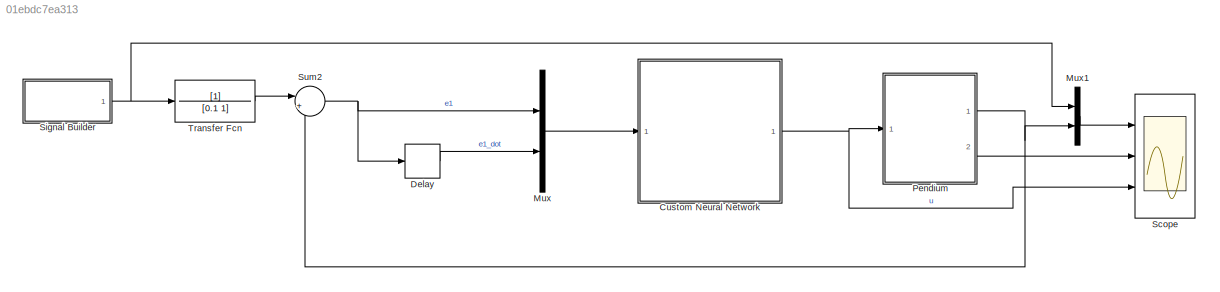
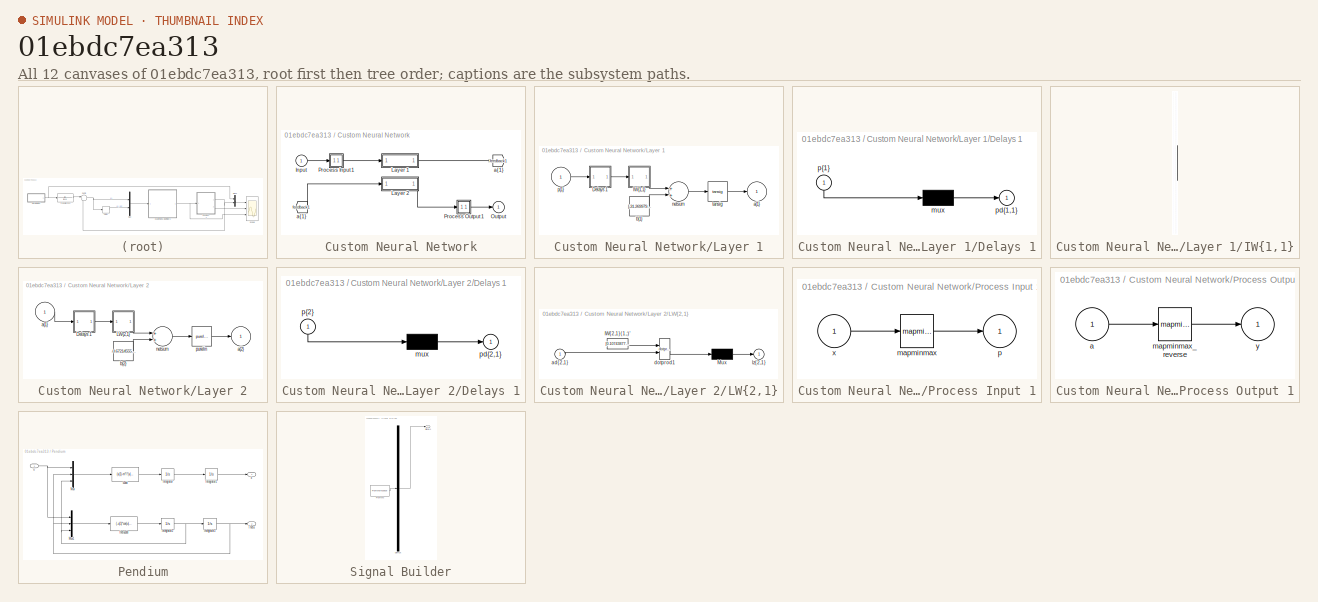
[diagram: thumbnail index - all 12 canvases of the model, root first then tree order]
MODEL slx_01ebdc7ea313
KIND model
CONFIG AbsTol = auto
CONFIG EnableMultiTasking = off
CONFIG FixedStep = 0.01
CONFIG MaxStep = auto
CONFIG MinStep = auto
CONFIG RelTol = 1e-3
CONFIG SampleTimeConstraint = Unconstrained
CONFIG Solver = ode5
CONFIG SolverName = ode5
CONFIG StartTime = 0.0
CONFIG StopTime = 60
BLOCK [SubSystem] Custom Neural Network
  Ports = [1, 1]
  RequestExecContextInheritance = off
  Variant = off
BLOCK [From] Custom Neural Network/ a{1} 
  GotoTag = feedback1
BLOCK [Inport] Custom Neural Network/Input
  IconDisplay = Port number
  PortDimensions = 2
BLOCK [SubSystem] Custom Neural Network/Layer 1
  Ports = [1, 1]
  RequestExecContextInheritance = off
  Variant = off
BLOCK [SubSystem] Custom Neural Network/Layer 1/Delays 1
  Ports = [1, 1]
  RequestExecContextInheritance = off
  Variant = off
BLOCK [Mux] Custom Neural Network/Layer 1/Delays 1/mux
  Inputs = 1
  Ports = [1, 1]
BLOCK [Outport] Custom Neural Network/Layer 1/Delays 1/pd{1,1}
  IconDisplay = Port number
BLOCK [Inport] Custom Neural Network/Layer 1/Delays 1/p{1}
  IconDisplay = Port number
  PortDimensions = 2
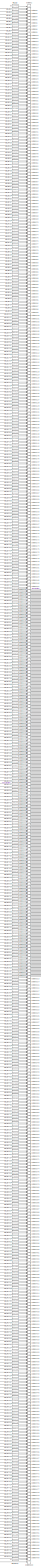
[diagram: Custom Neural Network/Layer 1/IW{1,1} - part 1/4, center side, full height]
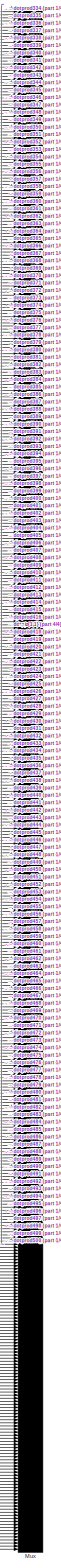
[diagram: Custom Neural Network/Layer 1/IW{1,1} - part 2/4, middle right region]
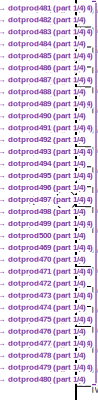
[diagram: Custom Neural Network/Layer 1/IW{1,1} - part 3/4, middle left region]
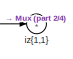
[diagram: Custom Neural Network/Layer 1/IW{1,1} - part 4/4, middle right region]
BLOCK [SubSystem] Custom Neural Network/Layer 1/IW{1,1}
  Ports = [1, 1]
  RequestExecContextInheritance = off
  Variant = off
BLOCK [Constant] Custom Neural Network/Layer 1/IW{1,1}/IW{1,1}(1,:)'
  Value = [30.3144966445753851758126984350383281707763671875;7.94154475885985444705283953226171433925628662109375]
BLOCK [Constant] Custom Neural Network/Layer 1/IW{1,1}/IW{1,1}(10,:)'
  Value = [30.0131730152194649008379201404750347137451171875;9.01253459711163174006287590600550174713134765625]
BLOCK [Constant] Custom Neural Network/Layer 1/IW{1,1}/IW{1,1}(100,:)'
  Value = [-10.705654122752353174519157619215548038482666015625;-29.343769585188255177854443900287151336669921875]
BLOCK [Constant] Custom Neural Network/Layer 1/IW{1,1}/IW{1,1}(101,:)'
  Value = [-21.71756783934690560045055462978780269622802734375;22.546557884284506911853895871900022029876708984375]
BLOCK [Constant] Custom Neural Network/Layer 1/IW{1,1}/IW{1,1}(102,:)'
  Value = [30.645817929283357017311573144979774951934814453125;6.2931366167101305819642220740206539630889892578125]
BLOCK [Constant] Custom Neural Network/Layer 1/IW{1,1}/IW{1,1}(103,:)'
  Value = [-12.5987048977960665041564425337128341197967529296875;28.650509645431259997394590754993259906768798828125]
BLOCK [Constant] Custom Neural Network/Layer 1/IW{1,1}/IW{1,1}(104,:)'
  Value = [4.400545729455981103228623396717011928558349609375;30.88569588978058533257353701628744602203369140625]
BLOCK [Constant] Custom Neural Network/Layer 1/IW{1,1}/IW{1,1}(105,:)'
  Value = [-30.26375715869958327175481826998293399810791015625;7.6347287495190858663818289642222225666046142578125]
BLOCK [Constant] Custom Neural Network/Layer 1/IW{1,1}/IW{1,1}(106,:)'
  Value = [9.6980787110834523190305844764225184917449951171875;29.853568132838514515015049255453050136566162109375]
BLOCK [Constant] Custom Neural Network/Layer 1/IW{1,1}/IW{1,1}(107,:)'
  Value = [-16.597620591847441318122946540825068950653076171875;26.541798493598246722058320301584899425506591796875]
BLOCK [Constant] Custom Neural Network/Layer 1/IW{1,1}/IW{1,1}(108,:)'
  Value = [9.3987080630483550436338191502727568149566650390625;29.846575466649003516295124427415430545806884765625]
BLOCK [Constant] Custom Neural Network/Layer 1/IW{1,1}/IW{1,1}(109,:)'
  Value = [11.119453834399561031887060380540788173675537109375;-29.245363099089043856793068698607385158538818359375]
BLOCK [Constant] Custom Neural Network/Layer 1/IW{1,1}/IW{1,1}(11,:)'
  Value = [-31.04363698542787375345142208971083164215087890625;4.047162122354446722738430253230035305023193359375]
BLOCK [Constant] Custom Neural Network/Layer 1/IW{1,1}/IW{1,1}(110,:)'
  Value = [17.548394206475524725874493014998733997344970703125;25.8589661605124518928278121165931224822998046875]
BLOCK [Constant] Custom Neural Network/Layer 1/IW{1,1}/IW{1,1}(111,:)'
  Value = [-12.611154139227604531470205984078347682952880859375;28.628702127413799161104179802350699901580810546875]
BLOCK [Constant] Custom Neural Network/Layer 1/IW{1,1}/IW{1,1}(112,:)'
  Value = [-20.26671199508661658228447777219116687774658203125;23.859177976994789815989861381240189075469970703125]
BLOCK [Constant] Custom Neural Network/Layer 1/IW{1,1}/IW{1,1}(113,:)'
  Value = [-31.118202377593323859628071659244596958160400390625;3.204336279534766074306162408902309834957122802734375]
BLOCK [Constant] Custom Neural Network/Layer 1/IW{1,1}/IW{1,1}(114,:)'
  Value = [31.256978922410691978939212276600301265716552734375;-1.558746834198675657034982577897608280181884765625]
BLOCK [Constant] Custom Neural Network/Layer 1/IW{1,1}/IW{1,1}(115,:)'
  Value = [-23.65427675192746193033599411137402057647705078125;20.50549173656707324653325485996901988983154296875]
BLOCK [Constant] Custom Neural Network/Layer 1/IW{1,1}/IW{1,1}(116,:)'
  Value = [24.02579798184182635623074020259082317352294921875;-20.068907079050251951457539689727127552032470703125]
BLOCK [Constant] Custom Neural Network/Layer 1/IW{1,1}/IW{1,1}(117,:)'
  Value = [31.29408641411803415621761814691126346588134765625;-1.5257858557117647269052440606174059212207794189453125]
BLOCK [Constant] Custom Neural Network/Layer 1/IW{1,1}/IW{1,1}(118,:)'
  Value = [24.37807330449607690070479293353855609893798828125;19.69215293623810936196605325676500797271728515625]
BLOCK [Constant] Custom Neural Network/Layer 1/IW{1,1}/IW{1,1}(119,:)'
  Value = [-30.85506460445301257777828141115605831146240234375;5.423352835738359800643593189306557178497314453125]
BLOCK [Constant] Custom Neural Network/Layer 1/IW{1,1}/IW{1,1}(12,:)'
  Value = [29.763969968646652120014550746418535709381103515625;9.2394039254821649365112534724175930023193359375]
BLOCK [Constant] Custom Neural Network/Layer 1/IW{1,1}/IW{1,1}(120,:)'
  Value = [-5.17581248044064778923711855895817279815673828125;30.821922715574583406805686536245048046112060546875]
BLOCK [Constant] Custom Neural Network/Layer 1/IW{1,1}/IW{1,1}(121,:)'
  Value = [-26.76446425153675789943008567206561565399169921875;16.237730739798347912028475548140704631805419921875]
BLOCK [Constant] Custom Neural Network/Layer 1/IW{1,1}/IW{1,1}(122,:)'
  Value = [30.830118514151916286891719209961593151092529296875;5.783933622808678620685896021313965320587158203125]
BLOCK [Constant] Custom Neural Network/Layer 1/IW{1,1}/IW{1,1}(123,:)'
  Value = [-27.893131671122983306077003362588584423065185546875;-14.2578444947595652791960674221627414226531982421875]
BLOCK [Constant] Custom Neural Network/Layer 1/IW{1,1}/IW{1,1}(124,:)'
  Value = [26.759779849234501369892313960008323192596435546875;16.194846284442878214804295566864311695098876953125]
BLOCK [Constant] Custom Neural Network/Layer 1/IW{1,1}/IW{1,1}(125,:)'
  Value = [18.9705192684294701166436425410211086273193359375;-24.902196812087115773692858056165277957916259765625]
BLOCK [Constant] Custom Neural Network/Layer 1/IW{1,1}/IW{1,1}(126,:)'
  Value = [29.58438161630716223271519993431866168975830078125;10.0740770805402615195589532959274947643280029296875]
BLOCK [Constant] Custom Neural Network/Layer 1/IW{1,1}/IW{1,1}(127,:)'
  Value = [-29.190422357096668548592788283713161945343017578125;11.3260166387467986481851767166517674922943115234375]
BLOCK [Constant] Custom Neural Network/Layer 1/IW{1,1}/IW{1,1}(128,:)'
  Value = [-12.4126174590590974133874624385498464107513427734375;28.789443844697505170415752218104898929595947265625]
BLOCK [Constant] Custom Neural Network/Layer 1/IW{1,1}/IW{1,1}(129,:)'
  Value = [-16.39034061510269424388752668164670467376708984375;26.6712746741859945132091525010764598846435546875]
BLOCK [Constant] Custom Neural Network/Layer 1/IW{1,1}/IW{1,1}(13,:)'
  Value = [31.14709900729254599127671099267899990081787109375;2.97173272498425067311700331629253923892974853515625]
BLOCK [Constant] Custom Neural Network/Layer 1/IW{1,1}/IW{1,1}(130,:)'
  Value = [16.622296983629777145097250468097627162933349609375;26.64856411037947481190713006071746349334716796875]
BLOCK [Constant] Custom Neural Network/Layer 1/IW{1,1}/IW{1,1}(131,:)'
  Value = [-7.66087605340563726485925144515931606292724609375;30.41288817749977368976033176295459270477294921875]
BLOCK [Constant] Custom Neural Network/Layer 1/IW{1,1}/IW{1,1}(132,:)'
  Value = [30.71167047581408127143731690011918544769287109375;6.10036642172216136970064326305873692035675048828125]
BLOCK [Constant] Custom Neural Network/Layer 1/IW{1,1}/IW{1,1}(133,:)'
  Value = [-18.6670453774640918709337711334228515625;25.13048778241489600304703344590961933135986328125]
BLOCK [Constant] Custom Neural Network/Layer 1/IW{1,1}/IW{1,1}(134,:)'
  Value = [-29.5761544796014277380891144275665283203125;10.1342573893599574574864163878373801708221435546875]
BLOCK [Constant] Custom Neural Network/Layer 1/IW{1,1}/IW{1,1}(135,:)'
  Value = [-18.522225589241532617279517580755054950714111328125;-25.238817157578505856463380041532218456268310546875]
BLOCK [Constant] Custom Neural Network/Layer 1/IW{1,1}/IW{1,1}(136,:)'
  Value = [-21.7517804125289586636426975019276142120361328125;-22.667279660488912185201115789823234081268310546875]
BLOCK [Constant] Custom Neural Network/Layer 1/IW{1,1}/IW{1,1}(137,:)'
  Value = [22.30981116530544028364602127112448215484619140625;21.9079973107492378403549082577228546142578125]
BLOCK [Constant] Custom Neural Network/Layer 1/IW{1,1}/IW{1,1}(138,:)'
  Value = [30.71271232571234577335417270660400390625;-6.05236004373943448086947682895697653293609619140625]
BLOCK [Constant] Custom Neural Network/Layer 1/IW{1,1}/IW{1,1}(139,:)'
  Value = [4.5548800261894175633869963348843157291412353515625;31.0639222144762214838920044712722301483154296875]
BLOCK [Constant] Custom Neural Network/Layer 1/IW{1,1}/IW{1,1}(14,:)'
  Value = [-2.036165743049217713434018151019699871540069580078125;31.26484279715391068066310253925621509552001953125]
BLOCK [Constant] Custom Neural Network/Layer 1/IW{1,1}/IW{1,1}(140,:)'
  Value = [-24.217936919431746645159364561550319194793701171875;-19.818179266192029075455138809047639369964599609375]
BLOCK [Constant] Custom Neural Network/Layer 1/IW{1,1}/IW{1,1}(141,:)'
  Value = [30.96149305556492237201382522471249103546142578125;4.58294751389005394770492785028181970119476318359375]
BLOCK [Constant] Custom Neural Network/Layer 1/IW{1,1}/IW{1,1}(142,:)'
  Value = [21.416612055940706937917639152146875858306884765625;22.790262652044578572940736194141209125518798828125]
BLOCK [Constant] Custom Neural Network/Layer 1/IW{1,1}/IW{1,1}(143,:)'
  Value = [-9.3992988666250827378689791657961905002593994140625;-29.768329381702702818301986553706228733062744140625]
BLOCK [Constant] Custom Neural Network/Layer 1/IW{1,1}/IW{1,1}(144,:)'
  Value = [3.5296681867661323650509075378067791461944580078125;31.02819914718264016073590028099715709686279296875]
BLOCK [Constant] Custom Neural Network/Layer 1/IW{1,1}/IW{1,1}(145,:)'
  Value = [-18.193148232678918674309898051433265209197998046875;-25.4918005079816936131464899517595767974853515625]
BLOCK [Constant] Custom Neural Network/Layer 1/IW{1,1}/IW{1,1}(146,:)'
  Value = [-21.325442087079029107599126291461288928985595703125;-22.65686991386078119603553204797208309173583984375]
BLOCK [Constant] Custom Neural Network/Layer 1/IW{1,1}/IW{1,1}(147,:)'
  Value = [-31.27361612083985420440512825734913349151611328125;-1.2409709753599382775490767016890458762645721435546875]
BLOCK [Constant] Custom Neural Network/Layer 1/IW{1,1}/IW{1,1}(148,:)'
  Value = [-24.255451386086438247957630665041506290435791015625;-19.80830878477768663969982299022376537322998046875]
BLOCK [Constant] Custom Neural Network/Layer 1/IW{1,1}/IW{1,1}(149,:)'
  Value = [-20.05902920178010617746622301638126373291015625;-23.922250989682563471205867244862020015716552734375]
BLOCK [Constant] Custom Neural Network/Layer 1/IW{1,1}/IW{1,1}(15,:)'
  Value = [31.206409402350924864322223584167659282684326171875;2.326837656324601599777679439284838736057281494140625]
BLOCK [Constant] Custom Neural Network/Layer 1/IW{1,1}/IW{1,1}(150,:)'
  Value = [-20.7020076984231451433515758253633975982666015625;-23.43969310835034747242389130406081676483154296875]
BLOCK [Constant] Custom Neural Network/Layer 1/IW{1,1}/IW{1,1}(151,:)'
  Value = [-7.08052398504052948879916584701277315616607666015625;-30.443360762249913165078396559692919254302978515625]
BLOCK [Constant] Custom Neural Network/Layer 1/IW{1,1}/IW{1,1}(152,:)'
  Value = [-25.752014550486830302133967052213847637176513671875;-17.7779547217445497153676114976406097412109375]
BLOCK [Constant] Custom Neural Network/Layer 1/IW{1,1}/IW{1,1}(153,:)'
  Value = [20.68816793510473672768057440407574176788330078125;-23.494674023636651583046841551549732685089111328125]
BLOCK [Constant] Custom Neural Network/Layer 1/IW{1,1}/IW{1,1}(154,:)'
  Value = [29.9393676618900457242489210329949855804443359375;9.0940150970496915761032141745090484619140625]
BLOCK [Constant] Custom Neural Network/Layer 1/IW{1,1}/IW{1,1}(155,:)'
  Value = [-1.3679764826602529570465094366227276623249053955078125;-31.319496433095206811003663460724055767059326171875]
BLOCK [Constant] Custom Neural Network/Layer 1/IW{1,1}/IW{1,1}(156,:)'
  Value = [-8.391613508509504271160039934329688549041748046875;30.16582357699444827403567614965140819549560546875]
BLOCK [Constant] Custom Neural Network/Layer 1/IW{1,1}/IW{1,1}(157,:)'
  Value = [-20.015070087770549633887640084140002727508544921875;24.0706661571410478472898830659687519073486328125]
BLOCK [Constant] Custom Neural Network/Layer 1/IW{1,1}/IW{1,1}(158,:)'
  Value = [31.457085333302440943725741817615926265716552734375;0.058667990041568786330206108914353535510599613189697265625]
BLOCK [Constant] Custom Neural Network/Layer 1/IW{1,1}/IW{1,1}(159,:)'
  Value = [-30.17443755280749684288821299560368061065673828125;8.286617244853374586455174721777439117431640625]
BLOCK [Constant] Custom Neural Network/Layer 1/IW{1,1}/IW{1,1}(16,:)'
  Value = [-18.380973059874516906120334169827401638031005859375;25.34047809132729156544883153401315212249755859375]
BLOCK [Constant] Custom Neural Network/Layer 1/IW{1,1}/IW{1,1}(160,:)'
  Value = [-31.074133353594699968880377127788960933685302734375;-4.45162823614326175203359525767154991626739501953125]
BLOCK [Constant] Custom Neural Network/Layer 1/IW{1,1}/IW{1,1}(161,:)'
  Value = [18.706061926007038209718302823603153228759765625;-25.101454984190308294955684687010943889617919921875]
BLOCK [Constant] Custom Neural Network/Layer 1/IW{1,1}/IW{1,1}(162,:)'
  Value = [-31.111976120370204768050825805403292179107666015625;-2.63777132536360436887434843811206519603729248046875]
BLOCK [Constant] Custom Neural Network/Layer 1/IW{1,1}/IW{1,1}(163,:)'
  Value = [-18.486689285915968383733343216590583324432373046875;25.26345976798575776456345920450985431671142578125]
BLOCK [Constant] Custom Neural Network/Layer 1/IW{1,1}/IW{1,1}(164,:)'
  Value = [-7.69552296201754781890258527710102498531341552734375;30.410937287702751063989126123487949371337890625]
BLOCK [Constant] Custom Neural Network/Layer 1/IW{1,1}/IW{1,1}(165,:)'
  Value = [-27.209912179276461330346137401647865772247314453125;-15.48865992594871698884162469767034053802490234375]
BLOCK [Constant] Custom Neural Network/Layer 1/IW{1,1}/IW{1,1}(166,:)'
  Value = [-24.5242104182705276116394088603556156158447265625;-19.4311757552750776767425122670829296112060546875]
BLOCK [Constant] Custom Neural Network/Layer 1/IW{1,1}/IW{1,1}(167,:)'
  Value = [30.9710405049145975908686523325741291046142578125;4.55681091209838573519164128811098635196685791015625]
BLOCK [Constant] Custom Neural Network/Layer 1/IW{1,1}/IW{1,1}(168,:)'
  Value = [29.93429747739600799150139209814369678497314453125;9.2129583470163698422084053163416683673858642578125]
BLOCK [Constant] Custom Neural Network/Layer 1/IW{1,1}/IW{1,1}(169,:)'
  Value = [21.02435146759925288506565266288816928863525390625;-23.1943235656610937667210237123072147369384765625]
BLOCK [Constant] Custom Neural Network/Layer 1/IW{1,1}/IW{1,1}(17,:)'
  Value = [-8.3533873583879909574534394778311252593994140625;-30.12046948590781170196351013146340847015380859375]
BLOCK [Constant] Custom Neural Network/Layer 1/IW{1,1}/IW{1,1}(170,:)'
  Value = [-26.0327208614224474558795918710529804229736328125;-17.39012160877319956853170879185199737548828125]
BLOCK [Constant] Custom Neural Network/Layer 1/IW{1,1}/IW{1,1}(171,:)'
  Value = [-15.9415929309181336748224566690623760223388671875;26.944953493697720858790489728562533855438232421875]
BLOCK [Constant] Custom Neural Network/Layer 1/IW{1,1}/IW{1,1}(172,:)'
  Value = [-10.39482738364315395074299885891377925872802734375;-29.549011391944699056466561160050332546234130859375]
BLOCK [Constant] Custom Neural Network/Layer 1/IW{1,1}/IW{1,1}(173,:)'
  Value = [19.7715434196813504286183160729706287384033203125;-24.271095186957435174690544954501092433929443359375]
BLOCK [Constant] Custom Neural Network/Layer 1/IW{1,1}/IW{1,1}(174,:)'
  Value = [-25.17738489986152927713192184455692768096923828125;-18.60136143771079986208860646001994609832763671875]
BLOCK [Constant] Custom Neural Network/Layer 1/IW{1,1}/IW{1,1}(175,:)'
  Value = [-25.300639115804568035628108191303908824920654296875;-18.463540977115410868236722308211028575897216796875]
BLOCK [Constant] Custom Neural Network/Layer 1/IW{1,1}/IW{1,1}(176,:)'
  Value = [-29.420521944775401834704098291695117950439453125;10.7266391978098400983299143263138830661773681640625]
BLOCK [Constant] Custom Neural Network/Layer 1/IW{1,1}/IW{1,1}(177,:)'
  Value = [28.06926416237144650267509859986603260040283203125;13.8899825126603975178340988350100815296173095703125]
BLOCK [Constant] Custom Neural Network/Layer 1/IW{1,1}/IW{1,1}(178,:)'
  Value = [14.5416377637474436568254532176069915294647216796875;-27.637859984976078209228944615460932254791259765625]
BLOCK [Constant] Custom Neural Network/Layer 1/IW{1,1}/IW{1,1}(179,:)'
  Value = [10.15482971711201543030256289057433605194091796875;29.6201893374026070659965625964105129241943359375]
BLOCK [Constant] Custom Neural Network/Layer 1/IW{1,1}/IW{1,1}(18,:)'
  Value = [22.716258930912346158947912044823169708251953125;-21.5397773077005894037938560359179973602294921875]
BLOCK [Constant] Custom Neural Network/Layer 1/IW{1,1}/IW{1,1}(180,:)'
  Value = [-6.53188607905311702239714577444829046726226806640625;30.6397035797133838741501676850020885467529296875]
BLOCK [Constant] Custom Neural Network/Layer 1/IW{1,1}/IW{1,1}(181,:)'
  Value = [6.08517946854544078405524487607181072235107421875;30.7215693839446402080284315161406993865966796875]
BLOCK [Constant] Custom Neural Network/Layer 1/IW{1,1}/IW{1,1}(182,:)'
  Value = [-13.1862345410931762756945317960344254970550537109375;-28.345172526511458244158347952179610729217529296875]
BLOCK [Constant] Custom Neural Network/Layer 1/IW{1,1}/IW{1,1}(183,:)'
  Value = [17.580248896006455794349676580168306827545166015625;25.897135164770165971503956825472414493560791015625]
BLOCK [Constant] Custom Neural Network/Layer 1/IW{1,1}/IW{1,1}(184,:)'
  Value = [-18.215519489657619800482279970310628414154052734375;25.461994622606678007059599622152745723724365234375]
BLOCK [Constant] Custom Neural Network/Layer 1/IW{1,1}/IW{1,1}(185,:)'
  Value = [11.2519803137927052461009225226007401943206787109375;29.201197041195730008666942012496292591094970703125]
BLOCK [Constant] Custom Neural Network/Layer 1/IW{1,1}/IW{1,1}(186,:)'
  Value = [-20.703876754090163814225888927467167377471923828125;23.480831340344689550647672149352729320526123046875]
BLOCK [Constant] Custom Neural Network/Layer 1/IW{1,1}/IW{1,1}(187,:)'
  Value = [-13.2189524372575899491266682161949574947357177734375;28.335313748615003959230307373218238353729248046875]
BLOCK [Constant] Custom Neural Network/Layer 1/IW{1,1}/IW{1,1}(188,:)'
  Value = [31.11571262455618125386536121368408203125;3.292695853557022100943640907644294202327728271484375]
BLOCK [Constant] Custom Neural Network/Layer 1/IW{1,1}/IW{1,1}(189,:)'
  Value = [20.5367158182146880562868318520486354827880859375;-23.627171441640864912869801628403365612030029296875]
BLOCK [Constant] Custom Neural Network/Layer 1/IW{1,1}/IW{1,1}(19,:)'
  Value = [18.7616139831302604079610318876802921295166015625;-25.059965023900932834521881886757910251617431640625]
BLOCK [Constant] Custom Neural Network/Layer 1/IW{1,1}/IW{1,1}(190,:)'
  Value = [-30.428657379797510174057606491260230541229248046875;-7.3706310865996638170827282010577619075775146484375]
BLOCK [Constant] Custom Neural Network/Layer 1/IW{1,1}/IW{1,1}(191,:)'
  Value = [23.823029837622211601910748868249356746673583984375;-20.30927677989804891467429115436971187591552734375]
BLOCK [Constant] Custom Neural Network/Layer 1/IW{1,1}/IW{1,1}(192,:)'
  Value = [15.76599468988400332136734505183994770050048828125;-27.111740420363300785311366780661046504974365234375]
BLOCK [Constant] Custom Neural Network/Layer 1/IW{1,1}/IW{1,1}(193,:)'
  Value = [-0.92601807920423340192428440786898136138916015625;31.306705413006472582537753623910248279571533203125]
BLOCK [Constant] Custom Neural Network/Layer 1/IW{1,1}/IW{1,1}(194,:)'
  Value = [-9.5958617976118976145016858936287462711334228515625;-29.769168100990082592716134968213737010955810546875]
BLOCK [Constant] Custom Neural Network/Layer 1/IW{1,1}/IW{1,1}(195,:)'
  Value = [-7.93450700118461238474765195860527455806732177734375;-30.343342239806755600284304819069802761077880859375]
BLOCK [Constant] Custom Neural Network/Layer 1/IW{1,1}/IW{1,1}(196,:)'
  Value = [-23.7395999970261328826381941325962543487548828125;-20.481889191735429989194017252884805202484130859375]
BLOCK [Constant] Custom Neural Network/Layer 1/IW{1,1}/IW{1,1}(197,:)'
  Value = [7.78925289049123481532888035872019827365875244140625;-30.344083542777145368063429486937820911407470703125]
BLOCK [Constant] Custom Neural Network/Layer 1/IW{1,1}/IW{1,1}(198,:)'
  Value = [2.26121989065961326303977330098859965801239013671875;31.214402912779434018375468440353870391845703125]
BLOCK [Constant] Custom Neural Network/Layer 1/IW{1,1}/IW{1,1}(199,:)'
  Value = [17.44304491311600457947861286811530590057373046875;-25.981464051409101756462405319325625896453857421875]
BLOCK [Constant] Custom Neural Network/Layer 1/IW{1,1}/IW{1,1}(2,:)'
  Value = [31.1948678214853174495146959088742733001708984375;3.1598619065064230682082779821939766407012939453125]
BLOCK [Constant] Custom Neural Network/Layer 1/IW{1,1}/IW{1,1}(20,:)'
  Value = [22.698490423393298698329090257175266742706298828125;-21.55839438646346906125472742132842540740966796875]
BLOCK [Constant] Custom Neural Network/Layer 1/IW{1,1}/IW{1,1}(200,:)'
  Value = [20.433322590185948541829930036328732967376708984375;23.727799617671497145465764333494007587432861328125]
BLOCK [Constant] Custom Neural Network/Layer 1/IW{1,1}/IW{1,1}(201,:)'
  Value = [28.969430697968096666272685979492962360382080078125;11.8475907320657061205793070257641375064849853515625]
BLOCK [Constant] Custom Neural Network/Layer 1/IW{1,1}/IW{1,1}(202,:)'
  Value = [-10.140851798837072550441007479093968868255615234375;29.621807530201127889313283958472311496734619140625]
BLOCK [Constant] Custom Neural Network/Layer 1/IW{1,1}/IW{1,1}(203,:)'
  Value = [28.26413560736941832374213845469057559967041015625;-13.6246001327786387946616741828620433807373046875]
BLOCK [Constant] Custom Neural Network/Layer 1/IW{1,1}/IW{1,1}(204,:)'
  Value = [16.2506000557209944190617534331977367401123046875;-26.762770333165196490199377876706421375274658203125]
BLOCK [Constant] Custom Neural Network/Layer 1/IW{1,1}/IW{1,1}(205,:)'
  Value = [-9.9353402229702485470852479920722544193267822265625;-29.697098782024180962935133720748126506805419921875]
BLOCK [Constant] Custom Neural Network/Layer 1/IW{1,1}/IW{1,1}(206,:)'
  Value = [25.18297185523763204173519625328481197357177734375;-18.63725779849371377849820419214665889739990234375]
BLOCK [Constant] Custom Neural Network/Layer 1/IW{1,1}/IW{1,1}(207,:)'
  Value = [28.742105237940297257637212169356644153594970703125;12.4365288482412861270631765364669263362884521484375]
BLOCK [Constant] Custom Neural Network/Layer 1/IW{1,1}/IW{1,1}(208,:)'
  Value = [8.8856245245654275066726768272928893566131591796875;-30.03770870112706603549668216146528720855712890625]
BLOCK [Constant] Custom Neural Network/Layer 1/IW{1,1}/IW{1,1}(209,:)'
  Value = [9.2342979204732333897709395387209951877593994140625;29.926655444381964343847357667982578277587890625]
BLOCK [Constant] Custom Neural Network/Layer 1/IW{1,1}/IW{1,1}(21,:)'
  Value = [26.719703241593816045451603713445365428924560546875;-16.358328214561137059490647516213357448577880859375]
BLOCK [Constant] Custom Neural Network/Layer 1/IW{1,1}/IW{1,1}(210,:)'
  Value = [6.92252725756336229068210741388611495494842529296875;-30.5685513345241588467615656554698944091796875]
BLOCK [Constant] Custom Neural Network/Layer 1/IW{1,1}/IW{1,1}(211,:)'
  Value = [-16.027640461506930336099685519002377986907958984375;26.907879523363593676776872598566114902496337890625]
BLOCK [Constant] Custom Neural Network/Layer 1/IW{1,1}/IW{1,1}(212,:)'
  Value = [-30.64371421052505439774904516525566577911376953125;6.22673287873220981936128737288527190685272216796875]
BLOCK [Constant] Custom Neural Network/Layer 1/IW{1,1}/IW{1,1}(213,:)'
  Value = [-4.36864094040909822780349713866598904132843017578125;31.006171501585026106795339728705585002899169921875]
BLOCK [Constant] Custom Neural Network/Layer 1/IW{1,1}/IW{1,1}(214,:)'
  Value = [-14.8229346569621380780290564871393144130706787109375;27.584592643230706698886933736503124237060546875]
BLOCK [Constant] Custom Neural Network/Layer 1/IW{1,1}/IW{1,1}(215,:)'
  Value = [26.74874753273542182796518318355083465576171875;-16.3434233650882134725179639644920825958251953125]
BLOCK [Constant] Custom Neural Network/Layer 1/IW{1,1}/IW{1,1}(216,:)'
  Value = [-30.095561208579315604083603830076754093170166015625;-8.404226518762385467198328115046024322509765625]
BLOCK [Constant] Custom Neural Network/Layer 1/IW{1,1}/IW{1,1}(217,:)'
  Value = [-31.01675807303262644154528970830142498016357421875;-3.96137225312667595744642312638461589813232421875]
BLOCK [Constant] Custom Neural Network/Layer 1/IW{1,1}/IW{1,1}(218,:)'
  Value = [-24.2914266434515724313314422033727169036865234375;19.69033330494409028688096441328525543212890625]
BLOCK [Constant] Custom Neural Network/Layer 1/IW{1,1}/IW{1,1}(219,:)'
  Value = [-20.38203904740790761707103229127824306488037109375;23.754818218613220182078293873928487300872802734375]
BLOCK [Constant] Custom Neural Network/Layer 1/IW{1,1}/IW{1,1}(22,:)'
  Value = [-31.10555220248507879432509071193635463714599609375;-3.451428348755369857059349669725634157657623291015625]
BLOCK [Constant] Custom Neural Network/Layer 1/IW{1,1}/IW{1,1}(220,:)'
  Value = [-4.9274835828949790084152482450008392333984375;-30.86866708380964752223007963038980960845947265625]
BLOCK [Constant] Custom Neural Network/Layer 1/IW{1,1}/IW{1,1}(221,:)'
  Value = [-15.842542505145008391309602302499115467071533203125;-26.995566741542955213617460685782134532928466796875]
BLOCK [Constant] Custom Neural Network/Layer 1/IW{1,1}/IW{1,1}(222,:)'
  Value = [29.650566356690138292151459609158337116241455078125;-9.927325191678509241910433047451078891754150390625]
BLOCK [Constant] Custom Neural Network/Layer 1/IW{1,1}/IW{1,1}(223,:)'
  Value = [-4.869107469561441803307388909161090850830078125;-30.92612629853584849115577526390552520751953125]
BLOCK [Constant] Custom Neural Network/Layer 1/IW{1,1}/IW{1,1}(224,:)'
  Value = [-31.213148151859325452051052707247436046600341796875;2.182679214189173766413887278758920729160308837890625]
BLOCK [Constant] Custom Neural Network/Layer 1/IW{1,1}/IW{1,1}(225,:)'
  Value = [28.961456042261573884388781152665615081787109375;-11.822097969285788821025562356226146221160888671875]
BLOCK [Constant] Custom Neural Network/Layer 1/IW{1,1}/IW{1,1}(226,:)'
  Value = [25.882357953467600708563622902147471904754638671875;-17.5644784750069931078542140312492847442626953125]
BLOCK [Constant] Custom Neural Network/Layer 1/IW{1,1}/IW{1,1}(227,:)'
  Value = [-6.43571775314584026972397623467259109020233154296875;-30.64190588339526044592275866307318210601806640625]
BLOCK [Constant] Custom Neural Network/Layer 1/IW{1,1}/IW{1,1}(228,:)'
  Value = [-21.620194549638394931889706640504300594329833984375;22.64659129043000262981877312995493412017822265625]
BLOCK [Constant] Custom Neural Network/Layer 1/IW{1,1}/IW{1,1}(229,:)'
  Value = [-25.2672140757051266746202600188553333282470703125;18.4298061154724024390816339291632175445556640625]
BLOCK [Constant] Custom Neural Network/Layer 1/IW{1,1}/IW{1,1}(23,:)'
  Value = [29.222740035054897589361644349992275238037109375;-11.2310149346770220546432028640992939472198486328125]
BLOCK [Constant] Custom Neural Network/Layer 1/IW{1,1}/IW{1,1}(230,:)'
  Value = [-29.5988075742000233958606258966028690338134765625;-10.238901852407831682967298547737300395965576171875]
BLOCK [Constant] Custom Neural Network/Layer 1/IW{1,1}/IW{1,1}(231,:)'
  Value = [7.00396598241979351229247185983695089817047119140625;30.530153197447628343752512591890990734100341796875]
BLOCK [Constant] Custom Neural Network/Layer 1/IW{1,1}/IW{1,1}(232,:)'
  Value = [-16.12210005593919248667589272372424602508544921875;-26.848023921937798519365969696082174777984619140625]
BLOCK [Constant] Custom Neural Network/Layer 1/IW{1,1}/IW{1,1}(233,:)'
  Value = [12.093805018166793985301410430110991001129150390625;28.862264856672187107733407174237072467803955078125]
BLOCK [Constant] Custom Neural Network/Layer 1/IW{1,1}/IW{1,1}(234,:)'
  Value = [20.85702610426904612950238515622913837432861328125;23.329200191656536134132693405263125896453857421875]
BLOCK [Constant] Custom Neural Network/Layer 1/IW{1,1}/IW{1,1}(235,:)'
  Value = [-30.5464635404808859675540588796138763427734375;6.82145522546047811118796744267456233501434326171875]
BLOCK [Constant] Custom Neural Network/Layer 1/IW{1,1}/IW{1,1}(236,:)'
  Value = [-24.135699116081951842716080136597156524658203125;-19.917050225139139030261503648944199085235595703125]
BLOCK [Constant] Custom Neural Network/Layer 1/IW{1,1}/IW{1,1}(237,:)'
  Value = [-28.25283649471078462056539137847721576690673828125;13.5049947515431743028102573589421808719635009765625]
BLOCK [Constant] Custom Neural Network/Layer 1/IW{1,1}/IW{1,1}(238,:)'
  Value = [-21.019859474681570787879536510445177555084228515625;-23.203557435179703816174878738820552825927734375]
BLOCK [Constant] Custom Neural Network/Layer 1/IW{1,1}/IW{1,1}(239,:)'
  Value = [-6.38001968845787370554489825735799968242645263671875;-30.649288886080793048449777415953576564788818359375]
BLOCK [Constant] Custom Neural Network/Layer 1/IW{1,1}/IW{1,1}(24,:)'
  Value = [26.75474241702881528226498630829155445098876953125;16.24217288427825423013928229920566082000732421875]
BLOCK [Constant] Custom Neural Network/Layer 1/IW{1,1}/IW{1,1}(240,:)'
  Value = [0.8416235074263835880259421173832379281520843505859375;-31.2963810835104965235586860217154026031494140625]
BLOCK [Constant] Custom Neural Network/Layer 1/IW{1,1}/IW{1,1}(241,:)'
  Value = [-22.284805929671133384317727177403867244720458984375;22.207005850629467857970666955225169658660888671875]
BLOCK [Constant] Custom Neural Network/Layer 1/IW{1,1}/IW{1,1}(242,:)'
  Value = [-15.15687484126176087784187984652817249298095703125;-27.3635502208949361602208227850496768951416015625]
BLOCK [Constant] Custom Neural Network/Layer 1/IW{1,1}/IW{1,1}(243,:)'
  Value = [23.67106432689748629627501941286027431488037109375;-20.440066183742288785651908256113529205322265625]
BLOCK [Constant] Custom Neural Network/Layer 1/IW{1,1}/IW{1,1}(244,:)'
  Value = [-22.72219060805927171031726174987852573394775390625;-21.5389408176653347481988021172583103179931640625]
BLOCK [Constant] Custom Neural Network/Layer 1/IW{1,1}/IW{1,1}(245,:)'
  Value = [31.03283763128670358355520875193178653717041015625;-4.20465540920862768103916096151806414127349853515625]
BLOCK [Constant] Custom Neural Network/Layer 1/IW{1,1}/IW{1,1}(246,:)'
  Value = [13.452288006867437530900133424438536167144775390625;-28.2669051727277889085598872043192386627197265625]
BLOCK [Constant] Custom Neural Network/Layer 1/IW{1,1}/IW{1,1}(247,:)'
  Value = [-0.8951133508903825752867078335839323699474334716796875;31.2926032093529187250169343315064907073974609375]
BLOCK [Constant] Custom Neural Network/Layer 1/IW{1,1}/IW{1,1}(248,:)'
  Value = [7.88977226694931577100078357034362852573394775390625;-30.290649813139101098613537033088505268096923828125]
BLOCK [Constant] Custom Neural Network/Layer 1/IW{1,1}/IW{1,1}(249,:)'
  Value = [-16.968931004940419171589383040554821491241455078125;-26.285298552254186432719507138244807720184326171875]
BLOCK [Constant] Custom Neural Network/Layer 1/IW{1,1}/IW{1,1}(25,:)'
  Value = [25.42119713933096392111110617406666278839111328125;18.1821602017791263961044023744761943817138671875]
BLOCK [Constant] Custom Neural Network/Layer 1/IW{1,1}/IW{1,1}(250,:)'
  Value = [-6.5257014661546239864264862262643873691558837890625;-30.609975471033070704152123653329908847808837890625]
BLOCK [Constant] Custom Neural Network/Layer 1/IW{1,1}/IW{1,1}(251,:)'
  Value = [31.162019030784112061382984393276274204254150390625;-2.95570010257902904271531951962970197200775146484375]
BLOCK [Constant] Custom Neural Network/Layer 1/IW{1,1}/IW{1,1}(252,:)'
  Value = [3.652860821227151166823432504315860569477081298828125;-31.091937536546449649677015258930623531341552734375]
BLOCK [Constant] Custom Neural Network/Layer 1/IW{1,1}/IW{1,1}(253,:)'
  Value = [1.3566817689289167869759467066614888608455657958984375;31.279630202871697264299655216746032238006591796875]
BLOCK [Constant] Custom Neural Network/Layer 1/IW{1,1}/IW{1,1}(254,:)'
  Value = [-26.535294272392338399413347360678017139434814453125;-16.6045797656945950393492239527404308319091796875]
BLOCK [Constant] Custom Neural Network/Layer 1/IW{1,1}/IW{1,1}(255,:)'
  Value = [-1.7035880811336718831938696894212625920772552490234375;-31.263943246947885512554421438835561275482177734375]
BLOCK [Constant] Custom Neural Network/Layer 1/IW{1,1}/IW{1,1}(256,:)'
  Value = [8.561722607203218871063654660247266292572021484375;-30.113395159608703721687561483122408390045166015625]
BLOCK [Constant] Custom Neural Network/Layer 1/IW{1,1}/IW{1,1}(257,:)'
  Value = [21.288159948355996675672940909862518310546875;-22.953924286980754487785816309042274951934814453125]
BLOCK [Constant] Custom Neural Network/Layer 1/IW{1,1}/IW{1,1}(258,:)'
  Value = [-7.02504107886607531696654405095614492893218994140625;-30.5099548591615388204445480369031429290771484375]
BLOCK [Constant] Custom Neural Network/Layer 1/IW{1,1}/IW{1,1}(259,:)'
  Value = [-31.283564353373236599509255029261112213134765625;1.28868948800307947522014728747308254241943359375]
BLOCK [Constant] Custom Neural Network/Layer 1/IW{1,1}/IW{1,1}(26,:)'
  Value = [21.672867846340633235513450927101075649261474609375;22.86520337002968261685964534990489482879638671875]
BLOCK [Constant] Custom Neural Network/Layer 1/IW{1,1}/IW{1,1}(260,:)'
  Value = [27.594198308364180860507985926233232021331787109375;14.7744313661068158438638420193456113338470458984375]
BLOCK [Constant] Custom Neural Network/Layer 1/IW{1,1}/IW{1,1}(261,:)'
  Value = [-30.1155808307926378120100707747042179107666015625;8.54601556579493859544527367688715457916259765625]
BLOCK [Constant] Custom Neural Network/Layer 1/IW{1,1}/IW{1,1}(262,:)'
  Value = [22.090275666040948721047243452630937099456787109375;-22.22291010593421134444724884815514087677001953125]
BLOCK [Constant] Custom Neural Network/Layer 1/IW{1,1}/IW{1,1}(263,:)'
  Value = [22.024566507063827458523519453592598438262939453125;-22.238055422988157516783758183009922504425048828125]
BLOCK [Constant] Custom Neural Network/Layer 1/IW{1,1}/IW{1,1}(264,:)'
  Value = [22.847216649151103950998731306754052639007568359375;21.39554530108323859849406289868056774139404296875]
BLOCK [Constant] Custom Neural Network/Layer 1/IW{1,1}/IW{1,1}(265,:)'
  Value = [-22.023426212130658541354932822287082672119140625;22.24963850384967400941604864783585071563720703125]
BLOCK [Constant] Custom Neural Network/Layer 1/IW{1,1}/IW{1,1}(266,:)'
  Value = [-30.983455977176159734653992927633225917816162109375;4.413963370303608968470143736340105533599853515625]
BLOCK [Constant] Custom Neural Network/Layer 1/IW{1,1}/IW{1,1}(267,:)'
  Value = [-12.1354552205387005159309410373680293560028076171875;-28.840191345523461308175683370791375637054443359375]
BLOCK [Constant] Custom Neural Network/Layer 1/IW{1,1}/IW{1,1}(268,:)'
  Value = [15.133078688945300172008501249365508556365966796875;27.418222415777648848234093748033046722412109375]
BLOCK [Constant] Custom Neural Network/Layer 1/IW{1,1}/IW{1,1}(269,:)'
  Value = [-28.58332603666857352209262899123132228851318359375;-12.730588823321706826163790537975728511810302734375]
BLOCK [Constant] Custom Neural Network/Layer 1/IW{1,1}/IW{1,1}(27,:)'
  Value = [15.343065618318629361738203442655503749847412109375;27.3049392085454059042604058049619197845458984375]
BLOCK [Constant] Custom Neural Network/Layer 1/IW{1,1}/IW{1,1}(270,:)'
  Value = [22.749668013333991467561645549722015857696533203125;-21.48678494104587599622391280718147754669189453125]
BLOCK [Constant] Custom Neural Network/Layer 1/IW{1,1}/IW{1,1}(271,:)'
  Value = [-26.659725655036847768997176899574697017669677734375;16.59647590191998034470088896341621875762939453125]
BLOCK [Constant] Custom Neural Network/Layer 1/IW{1,1}/IW{1,1}(272,:)'
  Value = [9.374967210655984928280304302461445331573486328125;-29.873401378386883919802130549214780330657958984375]
BLOCK [Constant] Custom Neural Network/Layer 1/IW{1,1}/IW{1,1}(273,:)'
  Value = [-0.393205397589906302524553893817937932908535003662109375;-31.294040584104134694598542409949004650115966796875]
BLOCK [Constant] Custom Neural Network/Layer 1/IW{1,1}/IW{1,1}(274,:)'
  Value = [26.82785836788599453939241357147693634033203125;16.13946153809829553438248694874346256256103515625]
BLOCK [Constant] Custom Neural Network/Layer 1/IW{1,1}/IW{1,1}(275,:)'
  Value = [28.1783727146815436981341917999088764190673828125;13.535091716162096275866133510135114192962646484375]
BLOCK [Constant] Custom Neural Network/Layer 1/IW{1,1}/IW{1,1}(276,:)'
  Value = [31.258638100541705995283336960710585117340087890625;2.0445952954456618755330055137164890766143798828125]
BLOCK [Constant] Custom Neural Network/Layer 1/IW{1,1}/IW{1,1}(277,:)'
  Value = [26.96369393360824773253625608049333095550537109375;15.829148046992923326570235076360404491424560546875]
BLOCK [Constant] Custom Neural Network/Layer 1/IW{1,1}/IW{1,1}(278,:)'
  Value = [-19.214334941590845318160063470713794231414794921875;24.7677660336481295644261990673840045928955078125]
BLOCK [Constant] Custom Neural Network/Layer 1/IW{1,1}/IW{1,1}(279,:)'
  Value = [18.055578106917465674996492452919483184814453125;25.564735412949335824350782786495983600616455078125]
BLOCK [Constant] Custom Neural Network/Layer 1/IW{1,1}/IW{1,1}(28,:)'
  Value = [-6.95829854856939977736374203232116997241973876953125;30.521762528961648541780959931202232837677001953125]
BLOCK [Constant] Custom Neural Network/Layer 1/IW{1,1}/IW{1,1}(280,:)'
  Value = [-25.66406340204783731451243511401116847991943359375;-18.02664719718621455513130058534443378448486328125]
BLOCK [Constant] Custom Neural Network/Layer 1/IW{1,1}/IW{1,1}(281,:)'
  Value = [-28.898783948729718673575916909612715244293212890625;11.9251405234891745266168072703294456005096435546875]
BLOCK [Constant] Custom Neural Network/Layer 1/IW{1,1}/IW{1,1}(282,:)'
  Value = [30.48614854206852697870999691076576709747314453125;7.0664790944333528699417001917026937007904052734375]
BLOCK [Constant] Custom Neural Network/Layer 1/IW{1,1}/IW{1,1}(283,:)'
  Value = [-0.0155916461358417100802054022778975195251405239105224609375;-31.321620327505389269617808167822659015655517578125]
BLOCK [Constant] Custom Neural Network/Layer 1/IW{1,1}/IW{1,1}(284,:)'
  Value = [-1.4338396231324945784280089355888776481151580810546875;-31.27169663784751918456095154397189617156982421875]
BLOCK [Constant] Custom Neural Network/Layer 1/IW{1,1}/IW{1,1}(285,:)'
  Value = [25.7276160487279952349126688204705715179443359375;17.821131297449252173237255192361772060394287109375]
BLOCK [Constant] Custom Neural Network/Layer 1/IW{1,1}/IW{1,1}(286,:)'
  Value = [17.518556561620005851409587194211781024932861328125;-25.94966946609572033821677905507385730743408203125]
BLOCK [Constant] Custom Neural Network/Layer 1/IW{1,1}/IW{1,1}(287,:)'
  Value = [23.080396837769189488653864827938377857208251953125;21.152525087802455772134635481052100658416748046875]
BLOCK [Constant] Custom Neural Network/Layer 1/IW{1,1}/IW{1,1}(288,:)'
  Value = [25.989245777094506451021516113542020320892333984375;17.4399603684504285183720639906823635101318359375]
BLOCK [Constant] Custom Neural Network/Layer 1/IW{1,1}/IW{1,1}(289,:)'
  Value = [19.1803902776789101380927604623138904571533203125;-24.728679642733016663669332046993076801300048828125]
BLOCK [Constant] Custom Neural Network/Layer 1/IW{1,1}/IW{1,1}(29,:)'
  Value = [14.108208336473747834816094837151467800140380859375;-27.94563396181117553851436241529881954193115234375]
BLOCK [Constant] Custom Neural Network/Layer 1/IW{1,1}/IW{1,1}(290,:)'
  Value = [6.26381212528296682506834258674643933773040771484375;-30.711767966165592014249341445975005626678466796875]
BLOCK [Constant] Custom Neural Network/Layer 1/IW{1,1}/IW{1,1}(291,:)'
  Value = [-30.914778331421405965784288127906620502471923828125;4.83164498305301837177694324054755270481109619140625]
BLOCK [Constant] Custom Neural Network/Layer 1/IW{1,1}/IW{1,1}(292,:)'
  Value = [-31.209182802141423707098510931245982646942138671875;-1.746482070135616293526936715352348983287811279296875]
BLOCK [Constant] Custom Neural Network/Layer 1/IW{1,1}/IW{1,1}(293,:)'
  Value = [22.02791205639058347287573269568383693695068359375;22.25428571031403635060996748507022857666015625]
BLOCK [Constant] Custom Neural Network/Layer 1/IW{1,1}/IW{1,1}(294,:)'
  Value = [-26.4230172695190930198805290274322032928466796875;16.778792309360799350770321325398981571197509765625]
BLOCK [Constant] Custom Neural Network/Layer 1/IW{1,1}/IW{1,1}(295,:)'
  Value = [-1.3355437821927740316141353105194866657257080078125;31.288564551173379868487245403230190277099609375]
BLOCK [Constant] Custom Neural Network/Layer 1/IW{1,1}/IW{1,1}(296,:)'
  Value = [-18.672642753345837007827867637388408184051513671875;-25.224291840559981636715747299604117870330810546875]
BLOCK [Constant] Custom Neural Network/Layer 1/IW{1,1}/IW{1,1}(297,:)'
  Value = [23.35846939903215258027557865716516971588134765625;-20.841854448960315693284428562037646770477294921875]
BLOCK [Constant] Custom Neural Network/Layer 1/IW{1,1}/IW{1,1}(298,:)'
  Value = [14.501142181012919962768137338571250438690185546875;-27.694545878728792587253337842412292957305908203125]
BLOCK [Constant] Custom Neural Network/Layer 1/IW{1,1}/IW{1,1}(299,:)'
  Value = [0.03576478175881948884384797793245525099337100982666015625;31.28902659307296829638289636932313442230224609375]
BLOCK [Constant] Custom Neural Network/Layer 1/IW{1,1}/IW{1,1}(3,:)'
  Value = [-22.227288999289815052406993345357477664947509765625;22.044222286120525922115120920352637767791748046875]
BLOCK [Constant] Custom Neural Network/Layer 1/IW{1,1}/IW{1,1}(30,:)'
  Value = [-21.054660317088742971236570156179368495941162109375;-23.125559358900343198683913215063512325286865234375]
BLOCK [Constant] Custom Neural Network/Layer 1/IW{1,1}/IW{1,1}(300,:)'
  Value = [-1.9685814969531938434244011659757234156131744384765625;31.303389704098496082451674737967550754547119140625]
BLOCK [Constant] Custom Neural Network/Layer 1/IW{1,1}/IW{1,1}(301,:)'
  Value = [-28.8912139953625199950693058781325817108154296875;12.058183685751149738507592701353132724761962890625]
BLOCK [Constant] Custom Neural Network/Layer 1/IW{1,1}/IW{1,1}(302,:)'
  Value = [13.8123240348752585049396657268516719341278076171875;-28.126009490023903936162241734564304351806640625]
BLOCK [Constant] Custom Neural Network/Layer 1/IW{1,1}/IW{1,1}(303,:)'
  Value = [-28.13197691437034819728069123812019824981689453125;13.6970966002065974720380836515687406063079833984375]
BLOCK [Constant] Custom Neural Network/Layer 1/IW{1,1}/IW{1,1}(304,:)'
  Value = [-23.103187841509079447632757364772260189056396484375;-21.016626711389516657391141052357852458953857421875]
BLOCK [Constant] Custom Neural Network/Layer 1/IW{1,1}/IW{1,1}(305,:)'
  Value = [1.7989250265652056981480200192891061305999755859375;-31.2315971663266935820502112619578838348388671875]
BLOCK [Constant] Custom Neural Network/Layer 1/IW{1,1}/IW{1,1}(306,:)'
  Value = [-29.564760739149249957335996441543102264404296875;10.3005450052090790080683291307650506496429443359375]
BLOCK [Constant] Custom Neural Network/Layer 1/IW{1,1}/IW{1,1}(307,:)'
  Value = [27.566531495931879902627770206891000270843505859375;-14.8315934135749696309858336462639272212982177734375]
BLOCK [Constant] Custom Neural Network/Layer 1/IW{1,1}/IW{1,1}(308,:)'
  Value = [28.160433054578870581963201402686536312103271484375;13.6053332638503690077413921244442462921142578125]
BLOCK [Constant] Custom Neural Network/Layer 1/IW{1,1}/IW{1,1}(309,:)'
  Value = [20.873743411403690828365142806433141231536865234375;23.3526663008301653690068633295595645904541015625]
BLOCK [Constant] Custom Neural Network/Layer 1/IW{1,1}/IW{1,1}(31,:)'
  Value = [22.654245716850159197974790004082024097442626953125;21.578178571296316334837683825753629207611083984375]
BLOCK [Constant] Custom Neural Network/Layer 1/IW{1,1}/IW{1,1}(310,:)'
  Value = [-30.498885102426999793578943354077637195587158203125;7.18770576061339827589335982338525354862213134765625]
BLOCK [Constant] Custom Neural Network/Layer 1/IW{1,1}/IW{1,1}(311,:)'
  Value = [17.33370568825845481342184939421713352203369140625;26.08142899715371498814420192502439022064208984375]
BLOCK [Constant] Custom Neural Network/Layer 1/IW{1,1}/IW{1,1}(312,:)'
  Value = [2.21100257504452457624211092479526996612548828125;-31.223480896388796423934763879515230655670166015625]
BLOCK [Constant] Custom Neural Network/Layer 1/IW{1,1}/IW{1,1}(313,:)'
  Value = [28.045252638031545444619041518308222293853759765625;13.952461168881630015903283492662012577056884765625]
BLOCK [Constant] Custom Neural Network/Layer 1/IW{1,1}/IW{1,1}(314,:)'
  Value = [9.434757522915102612159898853860795497894287109375;29.82379685434051452830317430198192596435546875]
BLOCK [Constant] Custom Neural Network/Layer 1/IW{1,1}/IW{1,1}(315,:)'
  Value = [19.80836216017821271861976129002869129180908203125;24.18601439927328300427689100615680217742919921875]
BLOCK [Constant] Custom Neural Network/Layer 1/IW{1,1}/IW{1,1}(316,:)'
  Value = [-3.51876038442185024024411177379079163074493408203125;-31.142499711556041575022391043603420257568359375]
BLOCK [Constant] Custom Neural Network/Layer 1/IW{1,1}/IW{1,1}(317,:)'
  Value = [-14.1315912803369965189403956173919141292572021484375;-27.9335990466702099865869968198239803314208984375]
BLOCK [Constant] Custom Neural Network/Layer 1/IW{1,1}/IW{1,1}(318,:)'
  Value = [29.06404300201529622427187860012054443359375;-11.6629514714439466160911251790821552276611328125]
BLOCK [Constant] Custom Neural Network/Layer 1/IW{1,1}/IW{1,1}(319,:)'
  Value = [-28.5322991181362084489592234604060649871826171875;12.802425154541811735953160678036510944366455078125]
BLOCK [Constant] Custom Neural Network/Layer 1/IW{1,1}/IW{1,1}(32,:)'
  Value = [-23.580723891593297736335443914867937564849853515625;-20.448280863567578791162304696626961231231689453125]
BLOCK [Constant] Custom Neural Network/Layer 1/IW{1,1}/IW{1,1}(320,:)'
  Value = [-30.225603724629646507082725293003022670745849609375;8.0857788108582102637456046068109571933746337890625]
BLOCK [Constant] Custom Neural Network/Layer 1/IW{1,1}/IW{1,1}(321,:)'
  Value = [-23.431852223920049738126181182451546192169189453125;20.759446803830503114340899628587067127227783203125]
BLOCK [Constant] Custom Neural Network/Layer 1/IW{1,1}/IW{1,1}(322,:)'
  Value = [-19.917590911691849697717771050520241260528564453125;-24.15680083826553214976229355670511722564697265625]
BLOCK [Constant] Custom Neural Network/Layer 1/IW{1,1}/IW{1,1}(323,:)'
  Value = [23.4155442767807784321121289394795894622802734375;-20.775286028748137567845333251170814037322998046875]
BLOCK [Constant] Custom Neural Network/Layer 1/IW{1,1}/IW{1,1}(324,:)'
  Value = [18.503996066694551103637422784231603145599365234375;-25.243290379804175671552002313546836376190185546875]
BLOCK [Constant] Custom Neural Network/Layer 1/IW{1,1}/IW{1,1}(325,:)'
  Value = [-26.777246042760051381037555984221398830413818359375;16.3139001247287751539261080324649810791015625]
BLOCK [Constant] Custom Neural Network/Layer 1/IW{1,1}/IW{1,1}(326,:)'
  Value = [-10.113134720749723527433161507360637187957763671875;-29.615608772681927263192847021855413913726806640625]
BLOCK [Constant] Custom Neural Network/Layer 1/IW{1,1}/IW{1,1}(327,:)'
  Value = [7.2244791794084601832537373411469161510467529296875;-30.540183319388251703685455140657722949981689453125]
BLOCK [Constant] Custom Neural Network/Layer 1/IW{1,1}/IW{1,1}(328,:)'
  Value = [-26.589252635290716142435485380701720714569091796875;16.528641953856851642967740190215408802032470703125]
BLOCK [Constant] Custom Neural Network/Layer 1/IW{1,1}/IW{1,1}(329,:)'
  Value = [15.7261334147925619930674656643532216548919677734375;-27.038187902970417297865424188785254955291748046875]
BLOCK [Constant] Custom Neural Network/Layer 1/IW{1,1}/IW{1,1}(33,:)'
  Value = [-31.250354388283302142781394650228321552276611328125;3.393277922395064205574044535751454532146453857421875]
BLOCK [Constant] Custom Neural Network/Layer 1/IW{1,1}/IW{1,1}(330,:)'
  Value = [20.979281733953204280851423391140997409820556640625;23.267604420469137238569601322524249553680419921875]
BLOCK [Constant] Custom Neural Network/Layer 1/IW{1,1}/IW{1,1}(331,:)'
  Value = [-31.205650417562193155163186020217835903167724609375;-2.315328153069149408338489593006670475006103515625]
BLOCK [Constant] Custom Neural Network/Layer 1/IW{1,1}/IW{1,1}(332,:)'
  Value = [-5.98026742331510963168739181128330528736114501953125;-30.66294296013156639446606277488172054290771484375]
BLOCK [Constant] Custom Neural Network/Layer 1/IW{1,1}/IW{1,1}(333,:)'
  Value = [-26.957843876915983827302625286392867565155029296875;15.84463052533524063392178504727780818939208984375]
BLOCK [Constant] Custom Neural Network/Layer 1/IW{1,1}/IW{1,1}(334,:)'
  Value = [24.13397040758917455605114810168743133544921875;-19.92611540053267304983819485642015933990478515625]
BLOCK [Constant] Custom Neural Network/Layer 1/IW{1,1}/IW{1,1}(335,:)'
  Value = [-26.63123374448724689500522799789905548095703125;-16.482922702862030206460985937155783176422119140625]
BLOCK [Constant] Custom Neural Network/Layer 1/IW{1,1}/IW{1,1}(336,:)'
  Value = [-26.021925318427204132376573397777974605560302734375;-17.3461356173192626783929881639778614044189453125]
BLOCK [Constant] Custom Neural Network/Layer 1/IW{1,1}/IW{1,1}(337,:)'
  Value = [-30.4288141259761459878063760697841644287109375;7.359036195542810077085960074327886104583740234375]
BLOCK [Constant] Custom Neural Network/Layer 1/IW{1,1}/IW{1,1}(338,:)'
  Value = [-18.6135046690972245642115012742578983306884765625;-25.18506733622558613205910660326480865478515625]
BLOCK [Constant] Custom Neural Network/Layer 1/IW{1,1}/IW{1,1}(339,:)'
  Value = [-3.409338460575496387860994218499399721622467041015625;-31.14324837091873376948569784872233867645263671875]
BLOCK [Constant] Custom Neural Network/Layer 1/IW{1,1}/IW{1,1}(34,:)'
  Value = [-31.377390874988972058190483949147164821624755859375;1.9394506366375241501742721084156073629856109619140625]
BLOCK [Constant] Custom Neural Network/Layer 1/IW{1,1}/IW{1,1}(340,:)'
  Value = [-11.767232744218727447105266037397086620330810546875;-28.976635723796942301078161108307540416717529296875]
BLOCK [Constant] Custom Neural Network/Layer 1/IW{1,1}/IW{1,1}(341,:)'
  Value = [23.748839326038659436335365171544253826141357421875;-20.392215075525651712951002991758286952972412109375]
BLOCK [Constant] Custom Neural Network/Layer 1/IW{1,1}/IW{1,1}(342,:)'
  Value = [25.901803144974724801841148291714489459991455078125;17.519103730865172252606498659588396549224853515625]
BLOCK [Constant] Custom Neural Network/Layer 1/IW{1,1}/IW{1,1}(343,:)'
  Value = [-28.39005954479498683440397144295275211334228515625;-13.2358622236793994630943416268564760684967041015625]
BLOCK [Constant] Custom Neural Network/Layer 1/IW{1,1}/IW{1,1}(344,:)'
  Value = [28.76151302797786257769985240884125232696533203125;12.5512726444024860228410034324042499065399169921875]
BLOCK [Constant] Custom Neural Network/Layer 1/IW{1,1}/IW{1,1}(345,:)'
  Value = [-13.879578244108788709354485035873949527740478515625;28.078641925519246314024712773971259593963623046875]
BLOCK [Constant] Custom Neural Network/Layer 1/IW{1,1}/IW{1,1}(346,:)'
  Value = [-23.494248947374327229908885783515870571136474609375;-20.5486406764348004116982338018715381622314453125]
BLOCK [Constant] Custom Neural Network/Layer 1/IW{1,1}/IW{1,1}(347,:)'
  Value = [7.53278897509366185403223425964824855327606201171875;30.448143450556177214139097486622631549835205078125]
BLOCK [Constant] Custom Neural Network/Layer 1/IW{1,1}/IW{1,1}(348,:)'
  Value = [27.0874223254136978766837273724377155303955078125;15.80843799802394045173059566877782344818115234375]
BLOCK [Constant] Custom Neural Network/Layer 1/IW{1,1}/IW{1,1}(349,:)'
  Value = [-24.24028649629611464888512273319065570831298828125;-19.853463528277689675860528950579464435577392578125]
BLOCK [Constant] Custom Neural Network/Layer 1/IW{1,1}/IW{1,1}(35,:)'
  Value = [-23.325319680351075390944970422424376010894775390625;20.89794161793685844941137474961578845977783203125]
BLOCK [Constant] Custom Neural Network/Layer 1/IW{1,1}/IW{1,1}(350,:)'
  Value = [29.809869840526335593722251360304653644561767578125;9.6045750819064874548303123447112739086151123046875]
BLOCK [Constant] Custom Neural Network/Layer 1/IW{1,1}/IW{1,1}(351,:)'
  Value = [-14.0653071784740983929395952145569026470184326171875;-27.838919196428211222382742562331259250640869140625]
BLOCK [Constant] Custom Neural Network/Layer 1/IW{1,1}/IW{1,1}(352,:)'
  Value = [13.0427916302226147848841719678603112697601318359375;28.316272715230493162152924924157559871673583984375]
BLOCK [Constant] Custom Neural Network/Layer 1/IW{1,1}/IW{1,1}(353,:)'
  Value = [14.7944395817996081632372806780040264129638671875;-27.545058056909699217840170604176819324493408203125]
BLOCK [Constant] Custom Neural Network/Layer 1/IW{1,1}/IW{1,1}(354,:)'
  Value = [5.18716598646247906145845263381488621234893798828125;-30.85478889755183473653232795186340808868408203125]
BLOCK [Constant] Custom Neural Network/Layer 1/IW{1,1}/IW{1,1}(355,:)'
  Value = [17.35868000972343594412450329400599002838134765625;26.077967364611396305917878635227680206298828125]
BLOCK [Constant] Custom Neural Network/Layer 1/IW{1,1}/IW{1,1}(356,:)'
  Value = [31.208275817024439646729661035351455211639404296875;-2.329588067291295860883337809354998171329498291015625]
BLOCK [Constant] Custom Neural Network/Layer 1/IW{1,1}/IW{1,1}(357,:)'
  Value = [-24.02518736001106702815377502702176570892333984375;20.072602916264230543674784712493419647216796875]
BLOCK [Constant] Custom Neural Network/Layer 1/IW{1,1}/IW{1,1}(358,:)'
  Value = [-30.164357482577091928988011204637587070465087890625;-8.4443018862965146809074212796986103057861328125]
BLOCK [Constant] Custom Neural Network/Layer 1/IW{1,1}/IW{1,1}(359,:)'
  Value = [28.558289313233398587499323184601962566375732421875;-12.90178919076883090610863291658461093902587890625]
BLOCK [Constant] Custom Neural Network/Layer 1/IW{1,1}/IW{1,1}(36,:)'
  Value = [31.218974959909818522874047630466520786285400390625;-1.5233712522279010403991605926421470940113067626953125]
BLOCK [Constant] Custom Neural Network/Layer 1/IW{1,1}/IW{1,1}(360,:)'
  Value = [-18.112776290536970691391616128385066986083984375;-25.500485742687875045930923079140484333038330078125]
BLOCK [Constant] Custom Neural Network/Layer 1/IW{1,1}/IW{1,1}(361,:)'
  Value = [-29.361842569397783364593124133534729480743408203125;10.8735570895199220586846422520466148853302001953125]
BLOCK [Constant] Custom Neural Network/Layer 1/IW{1,1}/IW{1,1}(362,:)'
  Value = [20.532306360295546454608484054915606975555419921875;-23.6309564464315968734808848239481449127197265625]
BLOCK [Constant] Custom Neural Network/Layer 1/IW{1,1}/IW{1,1}(363,:)'
  Value = [31.043328803661577097727786167524755001068115234375;-3.948994065164991962291196614387445151805877685546875]
BLOCK [Constant] Custom Neural Network/Layer 1/IW{1,1}/IW{1,1}(364,:)'
  Value = [26.276346718773215371811602381058037281036376953125;17.06903528486544274755942751653492450714111328125]
BLOCK [Constant] Custom Neural Network/Layer 1/IW{1,1}/IW{1,1}(365,:)'
  Value = [-17.98919234806975708806930924765765666961669921875;-25.622320507666184852268997929058969020843505859375]
BLOCK [Constant] Custom Neural Network/Layer 1/IW{1,1}/IW{1,1}(366,:)'
  Value = [-18.170995238503991231482359580695629119873046875;-25.46676272217229808347838115878403186798095703125]
BLOCK [Constant] Custom Neural Network/Layer 1/IW{1,1}/IW{1,1}(367,:)'
  Value = [-4.42534935338210555499927068012766540050506591796875;31.022615559952402719545716536231338977813720703125]
BLOCK [Constant] Custom Neural Network/Layer 1/IW{1,1}/IW{1,1}(368,:)'
  Value = [28.999638470783526855711897951550781726837158203125;11.8393929921462817134170109056867659091949462890625]
BLOCK [Constant] Custom Neural Network/Layer 1/IW{1,1}/IW{1,1}(369,:)'
  Value = [-21.068319061088477184284784016199409961700439453125;-22.994922042678741291865662788040935993194580078125]
BLOCK [Constant] Custom Neural Network/Layer 1/IW{1,1}/IW{1,1}(37,:)'
  Value = [27.4664563133028565289350808598101139068603515625;-15.02017670328394416401351918466389179229736328125]
BLOCK [Constant] Custom Neural Network/Layer 1/IW{1,1}/IW{1,1}(370,:)'
  Value = [21.69461999942280527875482221134006977081298828125;-22.56870328130246861064733820967376232147216796875]
BLOCK [Constant] Custom Neural Network/Layer 1/IW{1,1}/IW{1,1}(371,:)'
  Value = [10.458504114415323016373804421164095401763916015625;-29.515389409665754527622993919067084789276123046875]
BLOCK [Constant] Custom Neural Network/Layer 1/IW{1,1}/IW{1,1}(372,:)'
  Value = [-7.64014384526439993550184226478450000286102294921875;-30.3635905318639061079011298716068267822265625]
BLOCK [Constant] Custom Neural Network/Layer 1/IW{1,1}/IW{1,1}(373,:)'
  Value = [-30.37794579565834141021696268580853939056396484375;-7.5497979998140376522997030406259000301361083984375]
BLOCK [Constant] Custom Neural Network/Layer 1/IW{1,1}/IW{1,1}(374,:)'
  Value = [-13.128615139679599366218099021352827548980712890625;28.407901294483071552576802787370979785919189453125]
BLOCK [Constant] Custom Neural Network/Layer 1/IW{1,1}/IW{1,1}(375,:)'
  Value = [-2.4584914831297428605694221914745867252349853515625;31.262220242026661054524083738215267658233642578125]
BLOCK [Constant] Custom Neural Network/Layer 1/IW{1,1}/IW{1,1}(376,:)'
  Value = [-31.18706246427797879050558549351990222930908203125;2.58562638473830919139118122984655201435089111328125]
BLOCK [Constant] Custom Neural Network/Layer 1/IW{1,1}/IW{1,1}(377,:)'
  Value = [6.9778050866058602963448720402084290981292724609375;-30.523760534530477883663479587994515895843505859375]
BLOCK [Constant] Custom Neural Network/Layer 1/IW{1,1}/IW{1,1}(378,:)'
  Value = [-28.218130498347409940151919727213680744171142578125;13.629714544905464634894087794236838817596435546875]
BLOCK [Constant] Custom Neural Network/Layer 1/IW{1,1}/IW{1,1}(379,:)'
  Value = [-9.2500836371051544659849241725169122219085693359375;-29.92498934649751873848799732513725757598876953125]
BLOCK [Constant] Custom Neural Network/Layer 1/IW{1,1}/IW{1,1}(38,:)'
  Value = [-22.84813535244603599494439549744129180908203125;21.409302409948626433333629393018782138824462890625]
BLOCK [Constant] Custom Neural Network/Layer 1/IW{1,1}/IW{1,1}(380,:)'
  Value = [6.923332954629042745864353491924703121185302734375;-30.53512258763230846625447156839072704315185546875]
BLOCK [Constant] Custom Neural Network/Layer 1/IW{1,1}/IW{1,1}(381,:)'
  Value = [-16.4304021703948848198706400580704212188720703125;-26.595287893762399988872857647947967052459716796875]
BLOCK [Constant] Custom Neural Network/Layer 1/IW{1,1}/IW{1,1}(382,:)'
  Value = [-15.7992014180067794626438626437447965145111083984375;-26.999032342236130688206685590557754039764404296875]
BLOCK [Constant] Custom Neural Network/Layer 1/IW{1,1}/IW{1,1}(383,:)'
  Value = [10.4599564956338060284224411589093506336212158203125;-29.488535526728565372422963264398276805877685546875]
BLOCK [Constant] Custom Neural Network/Layer 1/IW{1,1}/IW{1,1}(384,:)'
  Value = [-19.212446537362385612368598231114447116851806640625;-24.853847931053241637755490955896675586700439453125]
BLOCK [Constant] Custom Neural Network/Layer 1/IW{1,1}/IW{1,1}(385,:)'
  Value = [27.283433665652960797842752072028815746307373046875;-15.351145976194001008252598694525659084320068359375]
BLOCK [Constant] Custom Neural Network/Layer 1/IW{1,1}/IW{1,1}(386,:)'
  Value = [29.24560788731099592041573487222194671630859375;-11.1363480776631984525693042087368667125701904296875]
BLOCK [Constant] Custom Neural Network/Layer 1/IW{1,1}/IW{1,1}(387,:)'
  Value = [19.790686734190064299809819203801453113555908203125;-24.262382880762348946745987632311880588531494140625]
BLOCK [Constant] Custom Neural Network/Layer 1/IW{1,1}/IW{1,1}(388,:)'
  Value = [-16.631689135588079153649232466705143451690673828125;-26.524087145991178005033361841924488544464111328125]
BLOCK [Constant] Custom Neural Network/Layer 1/IW{1,1}/IW{1,1}(389,:)'
  Value = [6.508302851079502460152070852927863597869873046875;30.57951420072784998183124116621911525726318359375]
BLOCK [Constant] Custom Neural Network/Layer 1/IW{1,1}/IW{1,1}(39,:)'
  Value = [27.582737197924448224739535362459719181060791015625;14.7761967472638513498850443284027278423309326171875]
BLOCK [Constant] Custom Neural Network/Layer 1/IW{1,1}/IW{1,1}(390,:)'
  Value = [-27.79502338623016299834489473141729831695556640625;14.401592657461161905985136399976909160614013671875]
BLOCK [Constant] Custom Neural Network/Layer 1/IW{1,1}/IW{1,1}(391,:)'
  Value = [31.04497815776179692193181836046278476715087890625;4.2832005823290071333531159325502812862396240234375]
BLOCK [Constant] Custom Neural Network/Layer 1/IW{1,1}/IW{1,1}(392,:)'
  Value = [24.074445034442899071791543974541127681732177734375;-20.0105439034956447130753076635301113128662109375]
BLOCK [Constant] Custom Neural Network/Layer 1/IW{1,1}/IW{1,1}(393,:)'
  Value = [23.19640033734564354972462751902639865875244140625;-21.021858996636257899126576376147568225860595703125]
BLOCK [Constant] Custom Neural Network/Layer 1/IW{1,1}/IW{1,1}(394,:)'
  Value = [-15.4279304906077694425903246155939996242523193359375;-27.248532033545291852760783513076603412628173828125]
BLOCK [Constant] Custom Neural Network/Layer 1/IW{1,1}/IW{1,1}(395,:)'
  Value = [7.00680946890465339293996294145472347736358642578125;30.560099927794084351262426935136318206787109375]
BLOCK [Constant] Custom Neural Network/Layer 1/IW{1,1}/IW{1,1}(396,:)'
  Value = [-28.703446126679917682622544816695153713226318359375;12.4657444015937937109583799610845744609832763671875]
BLOCK [Constant] Custom Neural Network/Layer 1/IW{1,1}/IW{1,1}(397,:)'
  Value = [-24.765516095037636290498994640074670314788818359375;19.14856095237031041733644087798893451690673828125]
BLOCK [Constant] Custom Neural Network/Layer 1/IW{1,1}/IW{1,1}(398,:)'
  Value = [-22.14925339027622186449661967344582080841064453125;-22.06933932243112650439798017032444477081298828125]
BLOCK [Constant] Custom Neural Network/Layer 1/IW{1,1}/IW{1,1}(399,:)'
  Value = [-22.317974658486118499922667979262769222259521484375;-22.001633207172432094012037850916385650634765625]
BLOCK [Constant] Custom Neural Network/Layer 1/IW{1,1}/IW{1,1}(4,:)'
  Value = [27.213316226118305252157369977794587612152099609375;-15.4829655235199492580022706533782184123992919921875]
BLOCK [Constant] Custom Neural Network/Layer 1/IW{1,1}/IW{1,1}(40,:)'
  Value = [-31.278163549813701393986775656230747699737548828125;1.341353753757563271875596910831518471240997314453125]
BLOCK [Constant] Custom Neural Network/Layer 1/IW{1,1}/IW{1,1}(400,:)'
  Value = [-29.22034603895070148382728802971541881561279296875;11.1846242507048057035490273847244679927825927734375]
BLOCK [Constant] Custom Neural Network/Layer 1/IW{1,1}/IW{1,1}(401,:)'
  Value = [-4.887234265705327374007538310252130031585693359375;30.9212964409443884505890309810638427734375]
BLOCK [Constant] Custom Neural Network/Layer 1/IW{1,1}/IW{1,1}(402,:)'
  Value = [-24.2940935897067902260459959506988525390625;-19.727819475759599043840353260748088359832763671875]
BLOCK [Constant] Custom Neural Network/Layer 1/IW{1,1}/IW{1,1}(403,:)'
  Value = [11.821754732234950324709643609821796417236328125;-28.971647103833081615675837383605539798736572265625]
BLOCK [Constant] Custom Neural Network/Layer 1/IW{1,1}/IW{1,1}(404,:)'
  Value = [-8.4754030816214740440273089916445314884185791015625;-30.11952305550556729940581135451793670654296875]
BLOCK [Constant] Custom Neural Network/Layer 1/IW{1,1}/IW{1,1}(405,:)'
  Value = [13.081461810379241939017447293736040592193603515625;-28.440909760179206244856686680577695369720458984375]
BLOCK [Constant] Custom Neural Network/Layer 1/IW{1,1}/IW{1,1}(406,:)'
  Value = [23.01708300663512574146807310171425342559814453125;21.19698906128129323178654885850846767425537109375]
BLOCK [Constant] Custom Neural Network/Layer 1/IW{1,1}/IW{1,1}(407,:)'
  Value = [25.590352466963931732379933237098157405853271484375;-18.031485738863924694896923028863966464996337890625]
BLOCK [Constant] Custom Neural Network/Layer 1/IW{1,1}/IW{1,1}(408,:)'
  Value = [-21.75519912079291628970167948864400386810302734375;22.515084449302502633827316458337008953094482421875]
BLOCK [Constant] Custom Neural Network/Layer 1/IW{1,1}/IW{1,1}(409,:)'
  Value = [-30.5636673788564650067201000638306140899658203125;-6.93274995001605365274599535041488707065582275390625]
BLOCK [Constant] Custom Neural Network/Layer 1/IW{1,1}/IW{1,1}(41,:)'
  Value = [-11.70844285697021547321128309704363346099853515625;-29.068469391548656943768946803174912929534912109375]
BLOCK [Constant] Custom Neural Network/Layer 1/IW{1,1}/IW{1,1}(410,:)'
  Value = [-26.020324556257964587757669505663216114044189453125;17.4052896663079792460848693735897541046142578125]
BLOCK [Constant] Custom Neural Network/Layer 1/IW{1,1}/IW{1,1}(411,:)'
  Value = [2.770569958152527600958592302049510180950164794921875;-31.198236927385185168759562657214701175689697265625]
BLOCK [Constant] Custom Neural Network/Layer 1/IW{1,1}/IW{1,1}(412,:)'
  Value = [24.82529424564278741627276758663356304168701171875;-19.07176704419106272325734607875347137451171875]
BLOCK [Constant] Custom Neural Network/Layer 1/IW{1,1}/IW{1,1}(413,:)'
  Value = [-8.2344031059049047627240724978037178516387939453125;-30.2038771441811064732974045909941196441650390625]
BLOCK [Constant] Custom Neural Network/Layer 1/IW{1,1}/IW{1,1}(414,:)'
  Value = [24.370674882464125943215549341402947902679443359375;19.657874941967623527716568787582218647003173828125]
BLOCK [Constant] Custom Neural Network/Layer 1/IW{1,1}/IW{1,1}(415,:)'
  Value = [15.8130784414737401988304554834030568599700927734375;26.920172003731718035623998730443418025970458984375]
BLOCK [Constant] Custom Neural Network/Layer 1/IW{1,1}/IW{1,1}(416,:)'
  Value = [29.863979036647204878818229190073907375335693359375;-9.4639625221059180404381550033576786518096923828125]
BLOCK [Constant] Custom Neural Network/Layer 1/IW{1,1}/IW{1,1}(417,:)'
  Value = [5.20351848065725608449838546221144497394561767578125;30.85432697894992770670796744525432586669921875]
BLOCK [Constant] Custom Neural Network/Layer 1/IW{1,1}/IW{1,1}(418,:)'
  Value = [-20.261648352783492299522549728862941265106201171875;-23.852285088652511291229529888369143009185791015625]
BLOCK [Constant] Custom Neural Network/Layer 1/IW{1,1}/IW{1,1}(419,:)'
  Value = [-31.23944549954484273257548920810222625732421875;2.399642962072452423427648682263679802417755126953125]
BLOCK [Constant] Custom Neural Network/Layer 1/IW{1,1}/IW{1,1}(42,:)'
  Value = [-10.0397211049125143489391120965592563152313232421875;-29.656616848993582635785060119815170764923095703125]
BLOCK [Constant] Custom Neural Network/Layer 1/IW{1,1}/IW{1,1}(420,:)'
  Value = [9.9299245808716261052495610783807933330535888671875;29.709869308256859454786535934545099735260009765625]
BLOCK [Constant] Custom Neural Network/Layer 1/IW{1,1}/IW{1,1}(421,:)'
  Value = [29.544723140456273569043332827277481555938720703125;10.3255425222571783905323172803036868572235107421875]
BLOCK [Constant] Custom Neural Network/Layer 1/IW{1,1}/IW{1,1}(422,:)'
  Value = [-13.1857039356811949204484335496090352535247802734375;-28.3788037534154256036345032043755054473876953125]
BLOCK [Constant] Custom Neural Network/Layer 1/IW{1,1}/IW{1,1}(423,:)'
  Value = [-28.0724126229622896744331228546798229217529296875;-13.75776438946748925218344083987176418304443359375]
BLOCK [Constant] Custom Neural Network/Layer 1/IW{1,1}/IW{1,1}(424,:)'
  Value = [-30.7215248920221171147204586304724216461181640625;-6.2714691723769444564595687552355229854583740234375]
BLOCK [Constant] Custom Neural Network/Layer 1/IW{1,1}/IW{1,1}(425,:)'
  Value = [-30.59872018293503259656063164584338665008544921875;-6.8715041265052061447704545571468770503997802734375]
BLOCK [Constant] Custom Neural Network/Layer 1/IW{1,1}/IW{1,1}(426,:)'
  Value = [-26.344324266410541923733035218901932239532470703125;-16.8847739787902497710092575289309024810791015625]
BLOCK [Constant] Custom Neural Network/Layer 1/IW{1,1}/IW{1,1}(427,:)'
  Value = [-22.432750413071783412988224881701171398162841796875;21.835197959015854252129429369233548641204833984375]
BLOCK [Constant] Custom Neural Network/Layer 1/IW{1,1}/IW{1,1}(428,:)'
  Value = [3.459104020677136848149757497594691812992095947265625;31.08059894984759097269488847814500331878662109375]
BLOCK [Constant] Custom Neural Network/Layer 1/IW{1,1}/IW{1,1}(429,:)'
  Value = [-15.40810890508239339169449522159993648529052734375;-27.34356206866436167501888121478259563446044921875]
BLOCK [Constant] Custom Neural Network/Layer 1/IW{1,1}/IW{1,1}(43,:)'
  Value = [29.7980420827123992921769968234002590179443359375;9.675596875294278476076215156354010105133056640625]
BLOCK [Constant] Custom Neural Network/Layer 1/IW{1,1}/IW{1,1}(430,:)'
  Value = [30.6888531084905622492442489601671695709228515625;-5.8662668397595414404577240929938852787017822265625]
BLOCK [Constant] Custom Neural Network/Layer 1/IW{1,1}/IW{1,1}(431,:)'
  Value = [1.491239956471190897246970052947290241718292236328125;-31.274352393120874893384097958914935588836669921875]
BLOCK [Constant] Custom Neural Network/Layer 1/IW{1,1}/IW{1,1}(432,:)'
  Value = [21.35379312148084096634192974306643009185791015625;-22.89138635367537943920979159884154796600341796875]
BLOCK [Constant] Custom Neural Network/Layer 1/IW{1,1}/IW{1,1}(433,:)'
  Value = [17.177248279158060739746360923163592815399169921875;-26.17139930444997020231312490068376064300537109375]
BLOCK [Constant] Custom Neural Network/Layer 1/IW{1,1}/IW{1,1}(434,:)'
  Value = [29.079002603086479439298273064196109771728515625;-11.59360060000941672342378296889364719390869140625]
BLOCK [Constant] Custom Neural Network/Layer 1/IW{1,1}/IW{1,1}(435,:)'
  Value = [-26.926063389810412473934775334782898426055908203125;15.962564956369252655576929100789129734039306640625]
BLOCK [Constant] Custom Neural Network/Layer 1/IW{1,1}/IW{1,1}(436,:)'
  Value = [11.3350983858487541766635331441648304462432861328125;29.290939071048573083544397377409040927886962890625]
BLOCK [Constant] Custom Neural Network/Layer 1/IW{1,1}/IW{1,1}(437,:)'
  Value = [-13.6403438085948014446557863266207277774810791015625;28.176959051380311649381837924011051654815673828125]
BLOCK [Constant] Custom Neural Network/Layer 1/IW{1,1}/IW{1,1}(438,:)'
  Value = [30.170715953660391051016631536185741424560546875;-7.68638455372413265109798885532654821872711181640625]
BLOCK [Constant] Custom Neural Network/Layer 1/IW{1,1}/IW{1,1}(439,:)'
  Value = [18.813765070758488917590511846356093883514404296875;-25.02083619225032862232183106243610382080078125]
BLOCK [Constant] Custom Neural Network/Layer 1/IW{1,1}/IW{1,1}(44,:)'
  Value = [24.38423963630708612981834448873996734619140625;-19.6423482558110578111154609359800815582275390625]
BLOCK [Constant] Custom Neural Network/Layer 1/IW{1,1}/IW{1,1}(440,:)'
  Value = [-26.701027547197934808309582876972854137420654296875;16.321151446872459445103231701068580150604248046875]
BLOCK [Constant] Custom Neural Network/Layer 1/IW{1,1}/IW{1,1}(441,:)'
  Value = [-21.5081362487332370392323355190455913543701171875;22.746430212221074640410733991302549839019775390625]
BLOCK [Constant] Custom Neural Network/Layer 1/IW{1,1}/IW{1,1}(442,:)'
  Value = [-23.593952827279228046108983107842504978179931640625;20.574868879455042502968353801406919956207275390625]
BLOCK [Constant] Custom Neural Network/Layer 1/IW{1,1}/IW{1,1}(443,:)'
  Value = [17.71516180412578478353680111467838287353515625;25.744143115788887143935426138341426849365234375]
BLOCK [Constant] Custom Neural Network/Layer 1/IW{1,1}/IW{1,1}(444,:)'
  Value = [20.59996899617807031290794839151203632354736328125;-23.572044394457638105677688145078718662261962890625]
BLOCK [Constant] Custom Neural Network/Layer 1/IW{1,1}/IW{1,1}(445,:)'
  Value = [-20.36652741228510166138221393339335918426513671875;23.77403121737186353357174084521830081939697265625]
BLOCK [Constant] Custom Neural Network/Layer 1/IW{1,1}/IW{1,1}(446,:)'
  Value = [30.961617139051011093897614045999944210052490234375;-4.14391825338783892362926053465344011783599853515625]
BLOCK [Constant] Custom Neural Network/Layer 1/IW{1,1}/IW{1,1}(447,:)'
  Value = [16.28552448854872380934466491453349590301513671875;-26.735401476934296027820892049930989742279052734375]
BLOCK [Constant] Custom Neural Network/Layer 1/IW{1,1}/IW{1,1}(448,:)'
  Value = [-24.22310831940422559682701830752193927764892578125;-19.699599685333428311651005060411989688873291015625]
BLOCK [Constant] Custom Neural Network/Layer 1/IW{1,1}/IW{1,1}(449,:)'
  Value = [9.467683962210632131473175832070410251617431640625;29.909926305219102005139575339853763580322265625]
BLOCK [Constant] Custom Neural Network/Layer 1/IW{1,1}/IW{1,1}(45,:)'
  Value = [-17.55465957451725245164197986014187335968017578125;-25.619511402130594746040515019558370113372802734375]
BLOCK [Constant] Custom Neural Network/Layer 1/IW{1,1}/IW{1,1}(450,:)'
  Value = [-10.349015441191522057806650991551578044891357421875;-29.59992962489922518898310954682528972625732421875]
BLOCK [Constant] Custom Neural Network/Layer 1/IW{1,1}/IW{1,1}(451,:)'
  Value = [24.34096069720657595780721749179065227508544921875;-19.6855311304740325795137323439121246337890625]
BLOCK [Constant] Custom Neural Network/Layer 1/IW{1,1}/IW{1,1}(452,:)'
  Value = [-29.703737850099429351757862605154514312744140625;9.8836423965247917067244998179376125335693359375]
BLOCK [Constant] Custom Neural Network/Layer 1/IW{1,1}/IW{1,1}(453,:)'
  Value = [-3.088473109981098474463578895665705204010009765625;31.0373750524247640214525745250284671783447265625]
BLOCK [Constant] Custom Neural Network/Layer 1/IW{1,1}/IW{1,1}(454,:)'
  Value = [-30.564244458049014241396434954367578029632568359375;6.7101651630853069718796177767217159271240234375]
BLOCK [Constant] Custom Neural Network/Layer 1/IW{1,1}/IW{1,1}(455,:)'
  Value = [-5.89747729019689170826268309610895812511444091796875;30.767724323677693831768920063041150569915771484375]
BLOCK [Constant] Custom Neural Network/Layer 1/IW{1,1}/IW{1,1}(456,:)'
  Value = [19.251778331888345974221010692417621612548828125;-24.68540117267476574625106877647340297698974609375]
BLOCK [Constant] Custom Neural Network/Layer 1/IW{1,1}/IW{1,1}(457,:)'
  Value = [-11.41243609239227652096815290860831737518310546875;29.150579703871667192061067908070981502532958984375]
BLOCK [Constant] Custom Neural Network/Layer 1/IW{1,1}/IW{1,1}(458,:)'
  Value = [30.965972197467753090904807322658598423004150390625;4.428021462374903904901657369919121265411376953125]
BLOCK [Constant] Custom Neural Network/Layer 1/IW{1,1}/IW{1,1}(459,:)'
  Value = [-5.158892131838907602059407508932054042816162109375;30.6841623745306861792414565570652484893798828125]
BLOCK [Constant] Custom Neural Network/Layer 1/IW{1,1}/IW{1,1}(46,:)'
  Value = [-1.3960399387696098560951440958888269960880279541015625;31.13979149401415469355924869887530803680419921875]
BLOCK [Constant] Custom Neural Network/Layer 1/IW{1,1}/IW{1,1}(460,:)'
  Value = [-22.16794088382749094989776494912803173065185546875;-22.129550904452184312276585842482745647430419921875]
BLOCK [Constant] Custom Neural Network/Layer 1/IW{1,1}/IW{1,1}(461,:)'
  Value = [-22.651197473770562140771289705298840999603271484375;21.608406929707793864281484275124967098236083984375]
BLOCK [Constant] Custom Neural Network/Layer 1/IW{1,1}/IW{1,1}(462,:)'
  Value = [20.80437770709057332396696438081562519073486328125;23.3241807587639158327874611131846904754638671875]
BLOCK [Constant] Custom Neural Network/Layer 1/IW{1,1}/IW{1,1}(463,:)'
  Value = [-2.136954723158414726214004986104555428028106689453125;-31.18579499781325381491114967502653598785400390625]
BLOCK [Constant] Custom Neural Network/Layer 1/IW{1,1}/IW{1,1}(464,:)'
  Value = [-31.29038421199562236552083049900829792022705078125;2.184989181504523259036432136781513690948486328125]
BLOCK [Constant] Custom Neural Network/Layer 1/IW{1,1}/IW{1,1}(465,:)'
  Value = [-21.014656566526536352057519252412021160125732421875;-23.0563205406872242519966675899922847747802734375]
BLOCK [Constant] Custom Neural Network/Layer 1/IW{1,1}/IW{1,1}(466,:)'
  Value = [28.86591461897733523755960050038993358612060546875;12.5585087026918955643850495107471942901611328125]
BLOCK [Constant] Custom Neural Network/Layer 1/IW{1,1}/IW{1,1}(467,:)'
  Value = [-29.7664954006837518818429089151322841644287109375;-9.7792075154294604288907066802494227886199951171875]
BLOCK [Constant] Custom Neural Network/Layer 1/IW{1,1}/IW{1,1}(468,:)'
  Value = [29.4903617490866594152976176701486110687255859375;-10.502086600717095876689199940301477909088134765625]
BLOCK [Constant] Custom Neural Network/Layer 1/IW{1,1}/IW{1,1}(469,:)'
  Value = [-19.707280726308425755632924847304821014404296875;-24.4411106317831325895895133726298809051513671875]
BLOCK [Constant] Custom Neural Network/Layer 1/IW{1,1}/IW{1,1}(47,:)'
  Value = [-6.43708498107248860975460047484375536441802978515625;-30.5801427962172738261870108544826507568359375]
BLOCK [Constant] Custom Neural Network/Layer 1/IW{1,1}/IW{1,1}(470,:)'
  Value = [27.00933605657346703310395241715013980865478515625;-15.8274541818819702854170827777124941349029541015625]
BLOCK [Constant] Custom Neural Network/Layer 1/IW{1,1}/IW{1,1}(471,:)'
  Value = [-13.5854743186074760075143785797990858554840087890625;-28.204966531907306404036717140115797519683837890625]
BLOCK [Constant] Custom Neural Network/Layer 1/IW{1,1}/IW{1,1}(472,:)'
  Value = [16.624919854698902099698898382484912872314453125;26.527766072378472728132692282088100910186767578125]
BLOCK [Constant] Custom Neural Network/Layer 1/IW{1,1}/IW{1,1}(473,:)'
  Value = [-28.071733217418451289404401904903352260589599609375;13.857634896393097534428306971676647663116455078125]
BLOCK [Constant] Custom Neural Network/Layer 1/IW{1,1}/IW{1,1}(474,:)'
  Value = [-13.801946010430693689841064042411744594573974609375;28.098154500342456429962112451903522014617919921875]
BLOCK [Constant] Custom Neural Network/Layer 1/IW{1,1}/IW{1,1}(475,:)'
  Value = [-24.161391413440849618154970812611281871795654296875;-19.882394941786589726007150602526962757110595703125]
BLOCK [Constant] Custom Neural Network/Layer 1/IW{1,1}/IW{1,1}(476,:)'
  Value = [5.57816700320250635769525615614838898181915283203125;30.807770354347635333169819205068051815032958984375]
BLOCK [Constant] Custom Neural Network/Layer 1/IW{1,1}/IW{1,1}(477,:)'
  Value = [16.515045447181165627625887282192707061767578125;26.55562734012119108228944242000579833984375]
BLOCK [Constant] Custom Neural Network/Layer 1/IW{1,1}/IW{1,1}(478,:)'
  Value = [16.12193015305800969372285180725157260894775390625;26.794353440304224278634137590415775775909423828125]
BLOCK [Constant] Custom Neural Network/Layer 1/IW{1,1}/IW{1,1}(479,:)'
  Value = [-24.315282119660448501008431776426732540130615234375;-19.623343781691520604226752766408026218414306640625]
BLOCK [Constant] Custom Neural Network/Layer 1/IW{1,1}/IW{1,1}(48,:)'
  Value = [29.12915706759140022086285171099007129669189453125;-11.467005336861621600519356434233486652374267578125]
BLOCK [Constant] Custom Neural Network/Layer 1/IW{1,1}/IW{1,1}(480,:)'
  Value = [16.02551252625821831543362350203096866607666015625;-26.892061064015546634209385956637561321258544921875]
BLOCK [Constant] Custom Neural Network/Layer 1/IW{1,1}/IW{1,1}(481,:)'
  Value = [15.7400445119482217393169776187278330326080322265625;26.92406492428508357761529623530805110931396484375]
BLOCK [Constant] Custom Neural Network/Layer 1/IW{1,1}/IW{1,1}(482,:)'
  Value = [17.239970460700835275247300160117447376251220703125;-26.130124732081984717524392181076109409332275390625]
BLOCK [Constant] Custom Neural Network/Layer 1/IW{1,1}/IW{1,1}(483,:)'
  Value = [9.3121882019301409627587418071925640106201171875;-29.887842866052903190166034619323909282684326171875]
BLOCK [Constant] Custom Neural Network/Layer 1/IW{1,1}/IW{1,1}(484,:)'
  Value = [26.802490905444653179756642202846705913543701171875;16.091459081007055686995954602025449275970458984375]
BLOCK [Constant] Custom Neural Network/Layer 1/IW{1,1}/IW{1,1}(485,:)'
  Value = [-26.98331825399736061399380560033023357391357421875;15.8713750504359243365115617052651941776275634765625]
BLOCK [Constant] Custom Neural Network/Layer 1/IW{1,1}/IW{1,1}(486,:)'
  Value = [21.8276767210722795198307721875607967376708984375;22.44618786642518415419544908218085765838623046875]
BLOCK [Constant] Custom Neural Network/Layer 1/IW{1,1}/IW{1,1}(487,:)'
  Value = [-27.561752967127180369288907968439161777496337890625;14.8441935532218689530736810411326587200164794921875]
BLOCK [Constant] Custom Neural Network/Layer 1/IW{1,1}/IW{1,1}(488,:)'
  Value = [-30.594232233196247960904656792990863323211669921875;-6.48736350887329482617360554286278784275054931640625]
BLOCK [Constant] Custom Neural Network/Layer 1/IW{1,1}/IW{1,1}(489,:)'
  Value = [21.9373683256818594600190408527851104736328125;-22.3327533220533922531103598885238170623779296875]
BLOCK [Constant] Custom Neural Network/Layer 1/IW{1,1}/IW{1,1}(49,:)'
  Value = [23.394716478433412731874341261573135852813720703125;20.994673811746121572241463582031428813934326171875]
BLOCK [Constant] Custom Neural Network/Layer 1/IW{1,1}/IW{1,1}(490,:)'
  Value = [-4.87702021000857843802123170462436974048614501953125;30.922867128307888862082108971662819385528564453125]
BLOCK [Constant] Custom Neural Network/Layer 1/IW{1,1}/IW{1,1}(491,:)'
  Value = [-6.941374409375288934143100050278007984161376953125;-30.572875995922498049139903741888701915740966796875]
BLOCK [Constant] Custom Neural Network/Layer 1/IW{1,1}/IW{1,1}(492,:)'
  Value = [14.33778820360176808890173560939729213714599609375;27.840445671502255464702102472074329853057861328125]
BLOCK [Constant] Custom Neural Network/Layer 1/IW{1,1}/IW{1,1}(493,:)'
  Value = [21.40998111942514015026972629129886627197265625;22.89645542245998655062066973187029361724853515625]
BLOCK [Constant] Custom Neural Network/Layer 1/IW{1,1}/IW{1,1}(494,:)'
  Value = [-12.2494760271253664285495688091032207012176513671875;28.808858655991144814834115095436573028564453125]
BLOCK [Constant] Custom Neural Network/Layer 1/IW{1,1}/IW{1,1}(495,:)'
  Value = [31.295298988846806054198168567381799221038818359375;1.097037943653432545687564925174228847026824951171875]
BLOCK [Constant] Custom Neural Network/Layer 1/IW{1,1}/IW{1,1}(496,:)'
  Value = [-16.4577116108376486636188928969204425811767578125;26.62975269382912557603049208410084247589111328125]
BLOCK [Constant] Custom Neural Network/Layer 1/IW{1,1}/IW{1,1}(497,:)'
  Value = [18.95454981751134937439928762614727020263671875;24.9826899365986179191168048419058322906494140625]
BLOCK [Constant] Custom Neural Network/Layer 1/IW{1,1}/IW{1,1}(498,:)'
  Value = [30.872359058211571891661151312291622161865234375;-5.195863767798247323526084073819220066070556640625]
BLOCK [Constant] Custom Neural Network/Layer 1/IW{1,1}/IW{1,1}(499,:)'
  Value = [-15.1716196563714422751445454196073114871978759765625;-27.398806057401809965767824905924499034881591796875]
BLOCK [Constant] Custom Neural Network/Layer 1/IW{1,1}/IW{1,1}(5,:)'
  Value = [18.41718966167686488688559620641171932220458984375;-25.314168461837624590771156363189220428466796875]
BLOCK [Constant] Custom Neural Network/Layer 1/IW{1,1}/IW{1,1}(50,:)'
  Value = [27.39829180771992156451233313418924808502197265625;-15.14373672694595285292962216772139072418212890625]
BLOCK [Constant] Custom Neural Network/Layer 1/IW{1,1}/IW{1,1}(500,:)'
  Value = [9.2566888786027892166430319775827229022979736328125;29.911063927761659897441859357059001922607421875]
BLOCK [Constant] Custom Neural Network/Layer 1/IW{1,1}/IW{1,1}(51,:)'
  Value = [-21.5787959403420614989954628981649875640869140625;22.728834327768819179027559584937989711761474609375]
BLOCK [Constant] Custom Neural Network/Layer 1/IW{1,1}/IW{1,1}(52,:)'
  Value = [27.010052249027324933194904588162899017333984375;-15.8258875875150391010492967325262725353240966796875]
BLOCK [Constant] Custom Neural Network/Layer 1/IW{1,1}/IW{1,1}(53,:)'
  Value = [20.092659815119315425135937402956187725067138671875;23.78221545934774638908493216149508953094482421875]
BLOCK [Constant] Custom Neural Network/Layer 1/IW{1,1}/IW{1,1}(54,:)'
  Value = [-26.787036306657949324971923488192260265350341796875;16.200413439907737966905187931843101978302001953125]
BLOCK [Constant] Custom Neural Network/Layer 1/IW{1,1}/IW{1,1}(55,:)'
  Value = [-30.973890459004504549511693767271935939788818359375;-4.7110437583514279680230174562893807888031005859375]
BLOCK [Constant] Custom Neural Network/Layer 1/IW{1,1}/IW{1,1}(56,:)'
  Value = [-0.14423198426651506753870535249006934463977813720703125;-31.3516684875654192410365794785320758819580078125]
BLOCK [Constant] Custom Neural Network/Layer 1/IW{1,1}/IW{1,1}(57,:)'
  Value = [29.37970121550761604112267377786338329315185546875;-10.808939534148354510989520349539816379547119140625]
BLOCK [Constant] Custom Neural Network/Layer 1/IW{1,1}/IW{1,1}(58,:)'
  Value = [-28.3561643143135597711079753935337066650390625;-13.4834229242855627717290190048515796661376953125]
BLOCK [Constant] Custom Neural Network/Layer 1/IW{1,1}/IW{1,1}(59,:)'
  Value = [10.8932002047398963640034708078019320964813232421875;-29.348553537976076910354095161892473697662353515625]
BLOCK [Constant] Custom Neural Network/Layer 1/IW{1,1}/IW{1,1}(6,:)'
  Value = [-22.74673954321017532720361487008631229400634765625;-21.5230312208087326553140883333981037139892578125]
BLOCK [Constant] Custom Neural Network/Layer 1/IW{1,1}/IW{1,1}(60,:)'
  Value = [-21.0980145207752940450518508441746234893798828125;-23.141407971483918259991696686483919620513916015625]
BLOCK [Constant] Custom Neural Network/Layer 1/IW{1,1}/IW{1,1}(61,:)'
  Value = [19.29854697396996243696776218712329864501953125;24.7017833046055557133513502776622772216796875]
BLOCK [Constant] Custom Neural Network/Layer 1/IW{1,1}/IW{1,1}(62,:)'
  Value = [-30.244878874878903474154867581091821193695068359375;-8.7601724838385859328582228044979274272918701171875]
BLOCK [Constant] Custom Neural Network/Layer 1/IW{1,1}/IW{1,1}(63,:)'
  Value = [0.337333620721183724544545157186803407967090606689453125;31.163975210822702166524322819896042346954345703125]
BLOCK [Constant] Custom Neural Network/Layer 1/IW{1,1}/IW{1,1}(64,:)'
  Value = [27.4691444399257278519144165329635143280029296875;-15.014864203046773383221079711802303791046142578125]
BLOCK [Constant] Custom Neural Network/Layer 1/IW{1,1}/IW{1,1}(65,:)'
  Value = [25.916091908074864846867058076895773410797119140625;17.850315322465036160792806185781955718994140625]
BLOCK [Constant] Custom Neural Network/Layer 1/IW{1,1}/IW{1,1}(66,:)'
  Value = [30.32151618405907100850527058355510234832763671875;-7.08799642051084077820632955990731716156005859375]
BLOCK [Constant] Custom Neural Network/Layer 1/IW{1,1}/IW{1,1}(67,:)'
  Value = [4.7693457277788287029807179351337254047393798828125;30.97552694271096385136843309737741947174072265625]
BLOCK [Constant] Custom Neural Network/Layer 1/IW{1,1}/IW{1,1}(68,:)'
  Value = [-25.575522872346777347729585017077624797821044921875;18.05249487050849666047724895179271697998046875]
BLOCK [Constant] Custom Neural Network/Layer 1/IW{1,1}/IW{1,1}(69,:)'
  Value = [-29.486297877962186930744792334735393524169921875;-10.265451786531404110291987308301031589508056640625]
BLOCK [Constant] Custom Neural Network/Layer 1/IW{1,1}/IW{1,1}(7,:)'
  Value = [-14.0806514054184521711476918426342308521270751953125;27.95952889444082956060810829512774944305419921875]
BLOCK [Constant] Custom Neural Network/Layer 1/IW{1,1}/IW{1,1}(70,:)'
  Value = [-20.38115131168074611878182622604072093963623046875;-23.85969342333510212483815848827362060546875]
BLOCK [Constant] Custom Neural Network/Layer 1/IW{1,1}/IW{1,1}(71,:)'
  Value = [23.75990812161574439187461393885314464569091796875;20.246076956707550920100402436219155788421630859375]
BLOCK [Constant] Custom Neural Network/Layer 1/IW{1,1}/IW{1,1}(72,:)'
  Value = [-15.0207975589883400147073189145885407924652099609375;27.4659493490385813174725626595318317413330078125]
BLOCK [Constant] Custom Neural Network/Layer 1/IW{1,1}/IW{1,1}(73,:)'
  Value = [27.445446528366435501311570988036692142486572265625;-15.0581360342730388168774879886768758296966552734375]
BLOCK [Constant] Custom Neural Network/Layer 1/IW{1,1}/IW{1,1}(74,:)'
  Value = [-26.034121611044014343860908411443233489990234375;17.38460614111520641245078877545893192291259765625]
BLOCK [Constant] Custom Neural Network/Layer 1/IW{1,1}/IW{1,1}(75,:)'
  Value = [31.002135142928498368064538226462900638580322265625;-4.41204736340411596273725081118755042552947998046875]
BLOCK [Constant] Custom Neural Network/Layer 1/IW{1,1}/IW{1,1}(76,:)'
  Value = [-12.842245087566485750585343339480459690093994140625;28.549551717238518477870456990785896778106689453125]
BLOCK [Constant] Custom Neural Network/Layer 1/IW{1,1}/IW{1,1}(77,:)'
  Value = [-23.4297431846620014539439580403268337249755859375;20.7616650631867258880447479896247386932373046875]
BLOCK [Constant] Custom Neural Network/Layer 1/IW{1,1}/IW{1,1}(78,:)'
  Value = [-18.75240804240610970055058714933693408966064453125;-25.067679044697545265307780937291681766510009765625]
BLOCK [Constant] Custom Neural Network/Layer 1/IW{1,1}/IW{1,1}(79,:)'
  Value = [9.5707893103906638287980968016199767589569091796875;29.82447944219233448848171974532306194305419921875]
BLOCK [Constant] Custom Neural Network/Layer 1/IW{1,1}/IW{1,1}(8,:)'
  Value = [9.6829161416196836142944448511116206645965576171875;29.891219045788414376829678076319396495819091796875]
BLOCK [Constant] Custom Neural Network/Layer 1/IW{1,1}/IW{1,1}(80,:)'
  Value = [-1.70299948737200690374038458685390651226043701171875;31.2599509449835721852650749497115612030029296875]
BLOCK [Constant] Custom Neural Network/Layer 1/IW{1,1}/IW{1,1}(81,:)'
  Value = [-31.134757634679207427552682929672300815582275390625;3.05526934881011680289475407334975898265838623046875]
BLOCK [Constant] Custom Neural Network/Layer 1/IW{1,1}/IW{1,1}(82,:)'
  Value = [20.44540575785126890195897431112825870513916015625;23.74551454962642083046375773847103118896484375]
BLOCK [Constant] Custom Neural Network/Layer 1/IW{1,1}/IW{1,1}(83,:)'
  Value = [21.843849129253133156680632964707911014556884765625;22.5508070195282783743095933459699153900146484375]
BLOCK [Constant] Custom Neural Network/Layer 1/IW{1,1}/IW{1,1}(84,:)'
  Value = [4.47167501345236839682684149011038243770599365234375;-30.976135495176027490060732816345989704132080078125]
BLOCK [Constant] Custom Neural Network/Layer 1/IW{1,1}/IW{1,1}(85,:)'
  Value = [25.4120388016609553005764610134065151214599609375;-18.281911383394966463811215362511575222015380859375]
BLOCK [Constant] Custom Neural Network/Layer 1/IW{1,1}/IW{1,1}(86,:)'
  Value = [-28.71729876223469801743704010732471942901611328125;-12.4795885841629168311328612617217004299163818359375]
BLOCK [Constant] Custom Neural Network/Layer 1/IW{1,1}/IW{1,1}(87,:)'
  Value = [22.509968927424079510046794894151389598846435546875;21.769578797598793329370892024599015712738037109375]
BLOCK [Constant] Custom Neural Network/Layer 1/IW{1,1}/IW{1,1}(88,:)'
  Value = [19.145039576739247166869972716085612773895263671875;24.5940236389565853869498823769390583038330078125]
BLOCK [Constant] Custom Neural Network/Layer 1/IW{1,1}/IW{1,1}(89,:)'
  Value = [-11.9319304142603552776336073293350636959075927734375;28.94235064582769467733669443987309932708740234375]
BLOCK [Constant] Custom Neural Network/Layer 1/IW{1,1}/IW{1,1}(9,:)'
  Value = [30.898906254815745597852583159692585468292236328125;-1.8045510422231292313455242037889547646045684814453125]
BLOCK [Constant] Custom Neural Network/Layer 1/IW{1,1}/IW{1,1}(90,:)'
  Value = [10.99358257974838437576181604526937007904052734375;-29.28970860955327992769525735639035701751708984375]
BLOCK [Constant] Custom Neural Network/Layer 1/IW{1,1}/IW{1,1}(91,:)'
  Value = [-31.181652831808246872924428316764533519744873046875;2.53111111876428918066039841505698859691619873046875]
BLOCK [Constant] Custom Neural Network/Layer 1/IW{1,1}/IW{1,1}(92,:)'
  Value = [-23.063288835446702051967804436571896076202392578125;-21.165564984366238121538117411546409130096435546875]
BLOCK [Constant] Custom Neural Network/Layer 1/IW{1,1}/IW{1,1}(93,:)'
  Value = [2.48795318241861362906774957082234323024749755859375;-31.19378282456273865363982622511684894561767578125]
BLOCK [Constant] Custom Neural Network/Layer 1/IW{1,1}/IW{1,1}(94,:)'
  Value = [19.06055625542118292514714994467794895172119140625;-24.833047960070810944444019696675240993499755859375]
BLOCK [Constant] Custom Neural Network/Layer 1/IW{1,1}/IW{1,1}(95,:)'
  Value = [28.9388245439374287570899468846619129180908203125;11.906470784641864923969478695653378963470458984375]
BLOCK [Constant] Custom Neural Network/Layer 1/IW{1,1}/IW{1,1}(96,:)'
  Value = [-31.331000781696094037442890112288296222686767578125;-0.436569292259832486546855534470523707568645477294921875]
BLOCK [Constant] Custom Neural Network/Layer 1/IW{1,1}/IW{1,1}(97,:)'
  Value = [6.73405810869440824006915136124007403850555419921875;-30.60705788297479301718340138904750347137451171875]
BLOCK [Constant] Custom Neural Network/Layer 1/IW{1,1}/IW{1,1}(98,:)'
  Value = [-30.822997400877834905941199394874274730682373046875;-4.96692633136890027145682324771769344806671142578125]
BLOCK [Constant] Custom Neural Network/Layer 1/IW{1,1}/IW{1,1}(99,:)'
  Value = [-25.32001216230339224466661107726395130157470703125;-18.26277471794826823270341265015304088592529296875]
BLOCK [Mux] Custom Neural Network/Layer 1/IW{1,1}/Mux
  Inputs = 500
  Ports = [500, 1]
BLOCK [Reference] Custom Neural Network/Layer 1/IW{1,1}/dotprod1  REF=neural/Weight Functions/dotprod
  Ports = [2, 1]
  SourceBlock = neural/Weight Functions/dotprod
  SourceProductBaseCode = NN
  SourceProductName = Neural Network Toolbox
  SourceType = DOTPROD
BLOCK [Reference] Custom Neural Network/Layer 1/IW{1,1}/dotprod10  REF=neural/Weight Functions/dotprod
  Ports = [2, 1]
  SourceBlock = neural/Weight Functions/dotprod
  SourceProductBaseCode = NN
  SourceProductName = Neural Network Toolbox
  SourceType = DOTPROD
BLOCK [Reference] Custom Neural Network/Layer 1/IW{1,1}/dotprod100  REF=neural/Weight Functions/dotprod
  Ports = [2, 1]
  SourceBlock = neural/Weight Functions/dotprod
  SourceProductBaseCode = NN
  SourceProductName = Neural Network Toolbox
  SourceType = DOTPROD
BLOCK [Reference] Custom Neural Network/Layer 1/IW{1,1}/dotprod101  REF=neural/Weight Functions/dotprod
  Ports = [2, 1]
  SourceBlock = neural/Weight Functions/dotprod
  SourceProductBaseCode = NN
  SourceProductName = Neural Network Toolbox
  SourceType = DOTPROD
BLOCK [Reference] Custom Neural Network/Layer 1/IW{1,1}/dotprod102  REF=neural/Weight Functions/dotprod
  Ports = [2, 1]
  SourceBlock = neural/Weight Functions/dotprod
  SourceProductBaseCode = NN
  SourceProductName = Neural Network Toolbox
  SourceType = DOTPROD
BLOCK [Reference] Custom Neural Network/Layer 1/IW{1,1}/dotprod103  REF=neural/Weight Functions/dotprod
  Ports = [2, 1]
  SourceBlock = neural/Weight Functions/dotprod
  SourceProductBaseCode = NN
  SourceProductName = Neural Network Toolbox
  SourceType = DOTPROD
BLOCK [Reference] Custom Neural Network/Layer 1/IW{1,1}/dotprod104  REF=neural/Weight Functions/dotprod
  Ports = [2, 1]
  SourceBlock = neural/Weight Functions/dotprod
  SourceProductBaseCode = NN
  SourceProductName = Neural Network Toolbox
  SourceType = DOTPROD
BLOCK [Reference] Custom Neural Network/Layer 1/IW{1,1}/dotprod105  REF=neural/Weight Functions/dotprod
  Ports = [2, 1]
  SourceBlock = neural/Weight Functions/dotprod
  SourceProductBaseCode = NN
  SourceProductName = Neural Network Toolbox
  SourceType = DOTPROD
BLOCK [Reference] Custom Neural Network/Layer 1/IW{1,1}/dotprod106  REF=neural/Weight Functions/dotprod
  Ports = [2, 1]
  SourceBlock = neural/Weight Functions/dotprod
  SourceProductBaseCode = NN
  SourceProductName = Neural Network Toolbox
  SourceType = DOTPROD
BLOCK [Reference] Custom Neural Network/Layer 1/IW{1,1}/dotprod107  REF=neural/Weight Functions/dotprod
  Ports = [2, 1]
  SourceBlock = neural/Weight Functions/dotprod
  SourceProductBaseCode = NN
  SourceProductName = Neural Network Toolbox
  SourceType = DOTPROD
BLOCK [Reference] Custom Neural Network/Layer 1/IW{1,1}/dotprod108  REF=neural/Weight Functions/dotprod
  Ports = [2, 1]
  SourceBlock = neural/Weight Functions/dotprod
  SourceProductBaseCode = NN
  SourceProductName = Neural Network Toolbox
  SourceType = DOTPROD
BLOCK [Reference] Custom Neural Network/Layer 1/IW{1,1}/dotprod109  REF=neural/Weight Functions/dotprod
  Ports = [2, 1]
  SourceBlock = neural/Weight Functions/dotprod
  SourceProductBaseCode = NN
  SourceProductName = Neural Network Toolbox
  SourceType = DOTPROD
BLOCK [Reference] Custom Neural Network/Layer 1/IW{1,1}/dotprod11  REF=neural/Weight Functions/dotprod
  Ports = [2, 1]
  SourceBlock = neural/Weight Functions/dotprod
  SourceProductBaseCode = NN
  SourceProductName = Neural Network Toolbox
  SourceType = DOTPROD
BLOCK [Reference] Custom Neural Network/Layer 1/IW{1,1}/dotprod110  REF=neural/Weight Functions/dotprod
  Ports = [2, 1]
  SourceBlock = neural/Weight Functions/dotprod
  SourceProductBaseCode = NN
  SourceProductName = Neural Network Toolbox
  SourceType = DOTPROD
BLOCK [Reference] Custom Neural Network/Layer 1/IW{1,1}/dotprod111  REF=neural/Weight Functions/dotprod
  Ports = [2, 1]
  SourceBlock = neural/Weight Functions/dotprod
  SourceProductBaseCode = NN
  SourceProductName = Neural Network Toolbox
  SourceType = DOTPROD
BLOCK [Reference] Custom Neural Network/Layer 1/IW{1,1}/dotprod112  REF=neural/Weight Functions/dotprod
  Ports = [2, 1]
  SourceBlock = neural/Weight Functions/dotprod
  SourceProductBaseCode = NN
  SourceProductName = Neural Network Toolbox
  SourceType = DOTPROD
BLOCK [Reference] Custom Neural Network/Layer 1/IW{1,1}/dotprod113  REF=neural/Weight Functions/dotprod
  Ports = [2, 1]
  SourceBlock = neural/Weight Functions/dotprod
  SourceProductBaseCode = NN
  SourceProductName = Neural Network Toolbox
  SourceType = DOTPROD
BLOCK [Reference] Custom Neural Network/Layer 1/IW{1,1}/dotprod114  REF=neural/Weight Functions/dotprod
  Ports = [2, 1]
  SourceBlock = neural/Weight Functions/dotprod
  SourceProductBaseCode = NN
  SourceProductName = Neural Network Toolbox
  SourceType = DOTPROD
BLOCK [Reference] Custom Neural Network/Layer 1/IW{1,1}/dotprod115  REF=neural/Weight Functions/dotprod
  Ports = [2, 1]
  SourceBlock = neural/Weight Functions/dotprod
  SourceProductBaseCode = NN
  SourceProductName = Neural Network Toolbox
  SourceType = DOTPROD
BLOCK [Reference] Custom Neural Network/Layer 1/IW{1,1}/dotprod116  REF=neural/Weight Functions/dotprod
  Ports = [2, 1]
  SourceBlock = neural/Weight Functions/dotprod
  SourceProductBaseCode = NN
  SourceProductName = Neural Network Toolbox
  SourceType = DOTPROD
BLOCK [Reference] Custom Neural Network/Layer 1/IW{1,1}/dotprod117  REF=neural/Weight Functions/dotprod
  Ports = [2, 1]
  SourceBlock = neural/Weight Functions/dotprod
  SourceProductBaseCode = NN
  SourceProductName = Neural Network Toolbox
  SourceType = DOTPROD
BLOCK [Reference] Custom Neural Network/Layer 1/IW{1,1}/dotprod118  REF=neural/Weight Functions/dotprod
  Ports = [2, 1]
  SourceBlock = neural/Weight Functions/dotprod
  SourceProductBaseCode = NN
  SourceProductName = Neural Network Toolbox
  SourceType = DOTPROD
BLOCK [Reference] Custom Neural Network/Layer 1/IW{1,1}/dotprod119  REF=neural/Weight Functions/dotprod
  Ports = [2, 1]
  SourceBlock = neural/Weight Functions/dotprod
  SourceProductBaseCode = NN
  SourceProductName = Neural Network Toolbox
  SourceType = DOTPROD
BLOCK [Reference] Custom Neural Network/Layer 1/IW{1,1}/dotprod12  REF=neural/Weight Functions/dotprod
  Ports = [2, 1]
  SourceBlock = neural/Weight Functions/dotprod
  SourceProductBaseCode = NN
  SourceProductName = Neural Network Toolbox
  SourceType = DOTPROD
BLOCK [Reference] Custom Neural Network/Layer 1/IW{1,1}/dotprod120  REF=neural/Weight Functions/dotprod
  Ports = [2, 1]
  SourceBlock = neural/Weight Functions/dotprod
  SourceProductBaseCode = NN
  SourceProductName = Neural Network Toolbox
  SourceType = DOTPROD
BLOCK [Reference] Custom Neural Network/Layer 1/IW{1,1}/dotprod121  REF=neural/Weight Functions/dotprod
  Ports = [2, 1]
  SourceBlock = neural/Weight Functions/dotprod
  SourceProductBaseCode = NN
  SourceProductName = Neural Network Toolbox
  SourceType = DOTPROD
BLOCK [Reference] Custom Neural Network/Layer 1/IW{1,1}/dotprod122  REF=neural/Weight Functions/dotprod
  Ports = [2, 1]
  SourceBlock = neural/Weight Functions/dotprod
  SourceProductBaseCode = NN
  SourceProductName = Neural Network Toolbox
  SourceType = DOTPROD
BLOCK [Reference] Custom Neural Network/Layer 1/IW{1,1}/dotprod123  REF=neural/Weight Functions/dotprod
  Ports = [2, 1]
  SourceBlock = neural/Weight Functions/dotprod
  SourceProductBaseCode = NN
  SourceProductName = Neural Network Toolbox
  SourceType = DOTPROD
BLOCK [Reference] Custom Neural Network/Layer 1/IW{1,1}/dotprod124  REF=neural/Weight Functions/dotprod
  Ports = [2, 1]
  SourceBlock = neural/Weight Functions/dotprod
  SourceProductBaseCode = NN
  SourceProductName = Neural Network Toolbox
  SourceType = DOTPROD
BLOCK [Reference] Custom Neural Network/Layer 1/IW{1,1}/dotprod125  REF=neural/Weight Functions/dotprod
  Ports = [2, 1]
  SourceBlock = neural/Weight Functions/dotprod
  SourceProductBaseCode = NN
  SourceProductName = Neural Network Toolbox
  SourceType = DOTPROD
BLOCK [Reference] Custom Neural Network/Layer 1/IW{1,1}/dotprod126  REF=neural/Weight Functions/dotprod
  Ports = [2, 1]
  SourceBlock = neural/Weight Functions/dotprod
  SourceProductBaseCode = NN
  SourceProductName = Neural Network Toolbox
  SourceType = DOTPROD
BLOCK [Reference] Custom Neural Network/Layer 1/IW{1,1}/dotprod127  REF=neural/Weight Functions/dotprod
  Ports = [2, 1]
  SourceBlock = neural/Weight Functions/dotprod
  SourceProductBaseCode = NN
  SourceProductName = Neural Network Toolbox
  SourceType = DOTPROD
BLOCK [Reference] Custom Neural Network/Layer 1/IW{1,1}/dotprod128  REF=neural/Weight Functions/dotprod
  Ports = [2, 1]
  SourceBlock = neural/Weight Functions/dotprod
  SourceProductBaseCode = NN
  SourceProductName = Neural Network Toolbox
  SourceType = DOTPROD
BLOCK [Reference] Custom Neural Network/Layer 1/IW{1,1}/dotprod129  REF=neural/Weight Functions/dotprod
  Ports = [2, 1]
  SourceBlock = neural/Weight Functions/dotprod
  SourceProductBaseCode = NN
  SourceProductName = Neural Network Toolbox
  SourceType = DOTPROD
BLOCK [Reference] Custom Neural Network/Layer 1/IW{1,1}/dotprod13  REF=neural/Weight Functions/dotprod
  Ports = [2, 1]
  SourceBlock = neural/Weight Functions/dotprod
  SourceProductBaseCode = NN
  SourceProductName = Neural Network Toolbox
  SourceType = DOTPROD
BLOCK [Reference] Custom Neural Network/Layer 1/IW{1,1}/dotprod130  REF=neural/Weight Functions/dotprod
  Ports = [2, 1]
  SourceBlock = neural/Weight Functions/dotprod
  SourceProductBaseCode = NN
  SourceProductName = Neural Network Toolbox
  SourceType = DOTPROD
BLOCK [Reference] Custom Neural Network/Layer 1/IW{1,1}/dotprod131  REF=neural/Weight Functions/dotprod
  Ports = [2, 1]
  SourceBlock = neural/Weight Functions/dotprod
  SourceProductBaseCode = NN
  SourceProductName = Neural Network Toolbox
  SourceType = DOTPROD
BLOCK [Reference] Custom Neural Network/Layer 1/IW{1,1}/dotprod132  REF=neural/Weight Functions/dotprod
  Ports = [2, 1]
  SourceBlock = neural/Weight Functions/dotprod
  SourceProductBaseCode = NN
  SourceProductName = Neural Network Toolbox
  SourceType = DOTPROD
BLOCK [Reference] Custom Neural Network/Layer 1/IW{1,1}/dotprod133  REF=neural/Weight Functions/dotprod
  Ports = [2, 1]
  SourceBlock = neural/Weight Functions/dotprod
  SourceProductBaseCode = NN
  SourceProductName = Neural Network Toolbox
  SourceType = DOTPROD
BLOCK [Reference] Custom Neural Network/Layer 1/IW{1,1}/dotprod134  REF=neural/Weight Functions/dotprod
  Ports = [2, 1]
  SourceBlock = neural/Weight Functions/dotprod
  SourceProductBaseCode = NN
  SourceProductName = Neural Network Toolbox
  SourceType = DOTPROD
BLOCK [Reference] Custom Neural Network/Layer 1/IW{1,1}/dotprod135  REF=neural/Weight Functions/dotprod
  Ports = [2, 1]
  SourceBlock = neural/Weight Functions/dotprod
  SourceProductBaseCode = NN
  SourceProductName = Neural Network Toolbox
  SourceType = DOTPROD
BLOCK [Reference] Custom Neural Network/Layer 1/IW{1,1}/dotprod136  REF=neural/Weight Functions/dotprod
  Ports = [2, 1]
  SourceBlock = neural/Weight Functions/dotprod
  SourceProductBaseCode = NN
  SourceProductName = Neural Network Toolbox
  SourceType = DOTPROD
BLOCK [Reference] Custom Neural Network/Layer 1/IW{1,1}/dotprod137  REF=neural/Weight Functions/dotprod
  Ports = [2, 1]
  SourceBlock = neural/Weight Functions/dotprod
  SourceProductBaseCode = NN
  SourceProductName = Neural Network Toolbox
  SourceType = DOTPROD
BLOCK [Reference] Custom Neural Network/Layer 1/IW{1,1}/dotprod138  REF=neural/Weight Functions/dotprod
  Ports = [2, 1]
  SourceBlock = neural/Weight Functions/dotprod
  SourceProductBaseCode = NN
  SourceProductName = Neural Network Toolbox
  SourceType = DOTPROD
BLOCK [Reference] Custom Neural Network/Layer 1/IW{1,1}/dotprod139  REF=neural/Weight Functions/dotprod
  Ports = [2, 1]
  SourceBlock = neural/Weight Functions/dotprod
  SourceProductBaseCode = NN
  SourceProductName = Neural Network Toolbox
  SourceType = DOTPROD
BLOCK [Reference] Custom Neural Network/Layer 1/IW{1,1}/dotprod14  REF=neural/Weight Functions/dotprod
  Ports = [2, 1]
  SourceBlock = neural/Weight Functions/dotprod
  SourceProductBaseCode = NN
  SourceProductName = Neural Network Toolbox
  SourceType = DOTPROD
BLOCK [Reference] Custom Neural Network/Layer 1/IW{1,1}/dotprod140  REF=neural/Weight Functions/dotprod
  Ports = [2, 1]
  SourceBlock = neural/Weight Functions/dotprod
  SourceProductBaseCode = NN
  SourceProductName = Neural Network Toolbox
  SourceType = DOTPROD
BLOCK [Reference] Custom Neural Network/Layer 1/IW{1,1}/dotprod141  REF=neural/Weight Functions/dotprod
  Ports = [2, 1]
  SourceBlock = neural/Weight Functions/dotprod
  SourceProductBaseCode = NN
  SourceProductName = Neural Network Toolbox
  SourceType = DOTPROD
BLOCK [Reference] Custom Neural Network/Layer 1/IW{1,1}/dotprod142  REF=neural/Weight Functions/dotprod
  Ports = [2, 1]
  SourceBlock = neural/Weight Functions/dotprod
  SourceProductBaseCode = NN
  SourceProductName = Neural Network Toolbox
  SourceType = DOTPROD
BLOCK [Reference] Custom Neural Network/Layer 1/IW{1,1}/dotprod143  REF=neural/Weight Functions/dotprod
  Ports = [2, 1]
  SourceBlock = neural/Weight Functions/dotprod
  SourceProductBaseCode = NN
  SourceProductName = Neural Network Toolbox
  SourceType = DOTPROD
BLOCK [Reference] Custom Neural Network/Layer 1/IW{1,1}/dotprod144  REF=neural/Weight Functions/dotprod
  Ports = [2, 1]
  SourceBlock = neural/Weight Functions/dotprod
  SourceProductBaseCode = NN
  SourceProductName = Neural Network Toolbox
  SourceType = DOTPROD
BLOCK [Reference] Custom Neural Network/Layer 1/IW{1,1}/dotprod145  REF=neural/Weight Functions/dotprod
  Ports = [2, 1]
  SourceBlock = neural/Weight Functions/dotprod
  SourceProductBaseCode = NN
  SourceProductName = Neural Network Toolbox
  SourceType = DOTPROD
BLOCK [Reference] Custom Neural Network/Layer 1/IW{1,1}/dotprod146  REF=neural/Weight Functions/dotprod
  Ports = [2, 1]
  SourceBlock = neural/Weight Functions/dotprod
  SourceProductBaseCode = NN
  SourceProductName = Neural Network Toolbox
  SourceType = DOTPROD
BLOCK [Reference] Custom Neural Network/Layer 1/IW{1,1}/dotprod147  REF=neural/Weight Functions/dotprod
  Ports = [2, 1]
  SourceBlock = neural/Weight Functions/dotprod
  SourceProductBaseCode = NN
  SourceProductName = Neural Network Toolbox
  SourceType = DOTPROD
BLOCK [Reference] Custom Neural Network/Layer 1/IW{1,1}/dotprod148  REF=neural/Weight Functions/dotprod
  Ports = [2, 1]
  SourceBlock = neural/Weight Functions/dotprod
  SourceProductBaseCode = NN
  SourceProductName = Neural Network Toolbox
  SourceType = DOTPROD
BLOCK [Reference] Custom Neural Network/Layer 1/IW{1,1}/dotprod149  REF=neural/Weight Functions/dotprod
  Ports = [2, 1]
  SourceBlock = neural/Weight Functions/dotprod
  SourceProductBaseCode = NN
  SourceProductName = Neural Network Toolbox
  SourceType = DOTPROD
BLOCK [Reference] Custom Neural Network/Layer 1/IW{1,1}/dotprod15  REF=neural/Weight Functions/dotprod
  Ports = [2, 1]
  SourceBlock = neural/Weight Functions/dotprod
  SourceProductBaseCode = NN
  SourceProductName = Neural Network Toolbox
  SourceType = DOTPROD
BLOCK [Reference] Custom Neural Network/Layer 1/IW{1,1}/dotprod150  REF=neural/Weight Functions/dotprod
  Ports = [2, 1]
  SourceBlock = neural/Weight Functions/dotprod
  SourceProductBaseCode = NN
  SourceProductName = Neural Network Toolbox
  SourceType = DOTPROD
BLOCK [Reference] Custom Neural Network/Layer 1/IW{1,1}/dotprod151  REF=neural/Weight Functions/dotprod
  Ports = [2, 1]
  SourceBlock = neural/Weight Functions/dotprod
  SourceProductBaseCode = NN
  SourceProductName = Neural Network Toolbox
  SourceType = DOTPROD
BLOCK [Reference] Custom Neural Network/Layer 1/IW{1,1}/dotprod152  REF=neural/Weight Functions/dotprod
  Ports = [2, 1]
  SourceBlock = neural/Weight Functions/dotprod
  SourceProductBaseCode = NN
  SourceProductName = Neural Network Toolbox
  SourceType = DOTPROD
BLOCK [Reference] Custom Neural Network/Layer 1/IW{1,1}/dotprod153  REF=neural/Weight Functions/dotprod
  Ports = [2, 1]
  SourceBlock = neural/Weight Functions/dotprod
  SourceProductBaseCode = NN
  SourceProductName = Neural Network Toolbox
  SourceType = DOTPROD
BLOCK [Reference] Custom Neural Network/Layer 1/IW{1,1}/dotprod154  REF=neural/Weight Functions/dotprod
  Ports = [2, 1]
  SourceBlock = neural/Weight Functions/dotprod
  SourceProductBaseCode = NN
  SourceProductName = Neural Network Toolbox
  SourceType = DOTPROD
BLOCK [Reference] Custom Neural Network/Layer 1/IW{1,1}/dotprod155  REF=neural/Weight Functions/dotprod
  Ports = [2, 1]
  SourceBlock = neural/Weight Functions/dotprod
  SourceProductBaseCode = NN
  SourceProductName = Neural Network Toolbox
  SourceType = DOTPROD
BLOCK [Reference] Custom Neural Network/Layer 1/IW{1,1}/dotprod156  REF=neural/Weight Functions/dotprod
  Ports = [2, 1]
  SourceBlock = neural/Weight Functions/dotprod
  SourceProductBaseCode = NN
  SourceProductName = Neural Network Toolbox
  SourceType = DOTPROD
BLOCK [Reference] Custom Neural Network/Layer 1/IW{1,1}/dotprod157  REF=neural/Weight Functions/dotprod
  Ports = [2, 1]
  SourceBlock = neural/Weight Functions/dotprod
  SourceProductBaseCode = NN
  SourceProductName = Neural Network Toolbox
  SourceType = DOTPROD
BLOCK [Reference] Custom Neural Network/Layer 1/IW{1,1}/dotprod158  REF=neural/Weight Functions/dotprod
  Ports = [2, 1]
  SourceBlock = neural/Weight Functions/dotprod
  SourceProductBaseCode = NN
  SourceProductName = Neural Network Toolbox
  SourceType = DOTPROD
BLOCK [Reference] Custom Neural Network/Layer 1/IW{1,1}/dotprod159  REF=neural/Weight Functions/dotprod
  Ports = [2, 1]
  SourceBlock = neural/Weight Functions/dotprod
  SourceProductBaseCode = NN
  SourceProductName = Neural Network Toolbox
  SourceType = DOTPROD
BLOCK [Reference] Custom Neural Network/Layer 1/IW{1,1}/dotprod16  REF=neural/Weight Functions/dotprod
  Ports = [2, 1]
  SourceBlock = neural/Weight Functions/dotprod
  SourceProductBaseCode = NN
  SourceProductName = Neural Network Toolbox
  SourceType = DOTPROD
BLOCK [Reference] Custom Neural Network/Layer 1/IW{1,1}/dotprod160  REF=neural/Weight Functions/dotprod
  Ports = [2, 1]
  SourceBlock = neural/Weight Functions/dotprod
  SourceProductBaseCode = NN
  SourceProductName = Neural Network Toolbox
  SourceType = DOTPROD
BLOCK [Reference] Custom Neural Network/Layer 1/IW{1,1}/dotprod161  REF=neural/Weight Functions/dotprod
  Ports = [2, 1]
  SourceBlock = neural/Weight Functions/dotprod
  SourceProductBaseCode = NN
  SourceProductName = Neural Network Toolbox
  SourceType = DOTPROD
BLOCK [Reference] Custom Neural Network/Layer 1/IW{1,1}/dotprod162  REF=neural/Weight Functions/dotprod
  Ports = [2, 1]
  SourceBlock = neural/Weight Functions/dotprod
  SourceProductBaseCode = NN
  SourceProductName = Neural Network Toolbox
  SourceType = DOTPROD
BLOCK [Reference] Custom Neural Network/Layer 1/IW{1,1}/dotprod163  REF=neural/Weight Functions/dotprod
  Ports = [2, 1]
  SourceBlock = neural/Weight Functions/dotprod
  SourceProductBaseCode = NN
  SourceProductName = Neural Network Toolbox
  SourceType = DOTPROD
BLOCK [Reference] Custom Neural Network/Layer 1/IW{1,1}/dotprod164  REF=neural/Weight Functions/dotprod
  Ports = [2, 1]
  SourceBlock = neural/Weight Functions/dotprod
  SourceProductBaseCode = NN
  SourceProductName = Neural Network Toolbox
  SourceType = DOTPROD
BLOCK [Reference] Custom Neural Network/Layer 1/IW{1,1}/dotprod165  REF=neural/Weight Functions/dotprod
  Ports = [2, 1]
  SourceBlock = neural/Weight Functions/dotprod
  SourceProductBaseCode = NN
  SourceProductName = Neural Network Toolbox
  SourceType = DOTPROD
BLOCK [Reference] Custom Neural Network/Layer 1/IW{1,1}/dotprod166  REF=neural/Weight Functions/dotprod
  Ports = [2, 1]
  SourceBlock = neural/Weight Functions/dotprod
  SourceProductBaseCode = NN
  SourceProductName = Neural Network Toolbox
  SourceType = DOTPROD
BLOCK [Reference] Custom Neural Network/Layer 1/IW{1,1}/dotprod167  REF=neural/Weight Functions/dotprod
  Ports = [2, 1]
  SourceBlock = neural/Weight Functions/dotprod
  SourceProductBaseCode = NN
  SourceProductName = Neural Network Toolbox
  SourceType = DOTPROD
BLOCK [Reference] Custom Neural Network/Layer 1/IW{1,1}/dotprod168  REF=neural/Weight Functions/dotprod
  Ports = [2, 1]
  SourceBlock = neural/Weight Functions/dotprod
  SourceProductBaseCode = NN
  SourceProductName = Neural Network Toolbox
  SourceType = DOTPROD
BLOCK [Reference] Custom Neural Network/Layer 1/IW{1,1}/dotprod169  REF=neural/Weight Functions/dotprod
  Ports = [2, 1]
  SourceBlock = neural/Weight Functions/dotprod
  SourceProductBaseCode = NN
  SourceProductName = Neural Network Toolbox
  SourceType = DOTPROD
BLOCK [Reference] Custom Neural Network/Layer 1/IW{1,1}/dotprod17  REF=neural/Weight Functions/dotprod
  Ports = [2, 1]
  SourceBlock = neural/Weight Functions/dotprod
  SourceProductBaseCode = NN
  SourceProductName = Neural Network Toolbox
  SourceType = DOTPROD
BLOCK [Reference] Custom Neural Network/Layer 1/IW{1,1}/dotprod170  REF=neural/Weight Functions/dotprod
  Ports = [2, 1]
  SourceBlock = neural/Weight Functions/dotprod
  SourceProductBaseCode = NN
  SourceProductName = Neural Network Toolbox
  SourceType = DOTPROD
BLOCK [Reference] Custom Neural Network/Layer 1/IW{1,1}/dotprod171  REF=neural/Weight Functions/dotprod
  Ports = [2, 1]
  SourceBlock = neural/Weight Functions/dotprod
  SourceProductBaseCode = NN
  SourceProductName = Neural Network Toolbox
  SourceType = DOTPROD
BLOCK [Reference] Custom Neural Network/Layer 1/IW{1,1}/dotprod172  REF=neural/Weight Functions/dotprod
  Ports = [2, 1]
  SourceBlock = neural/Weight Functions/dotprod
  SourceProductBaseCode = NN
  SourceProductName = Neural Network Toolbox
  SourceType = DOTPROD
BLOCK [Reference] Custom Neural Network/Layer 1/IW{1,1}/dotprod173  REF=neural/Weight Functions/dotprod
  Ports = [2, 1]
  SourceBlock = neural/Weight Functions/dotprod
  SourceProductBaseCode = NN
  SourceProductName = Neural Network Toolbox
  SourceType = DOTPROD
BLOCK [Reference] Custom Neural Network/Layer 1/IW{1,1}/dotprod174  REF=neural/Weight Functions/dotprod
  Ports = [2, 1]
  SourceBlock = neural/Weight Functions/dotprod
  SourceProductBaseCode = NN
  SourceProductName = Neural Network Toolbox
  SourceType = DOTPROD
BLOCK [Reference] Custom Neural Network/Layer 1/IW{1,1}/dotprod175  REF=neural/Weight Functions/dotprod
  Ports = [2, 1]
  SourceBlock = neural/Weight Functions/dotprod
  SourceProductBaseCode = NN
  SourceProductName = Neural Network Toolbox
  SourceType = DOTPROD
BLOCK [Reference] Custom Neural Network/Layer 1/IW{1,1}/dotprod176  REF=neural/Weight Functions/dotprod
  Ports = [2, 1]
  SourceBlock = neural/Weight Functions/dotprod
  SourceProductBaseCode = NN
  SourceProductName = Neural Network Toolbox
  SourceType = DOTPROD
BLOCK [Reference] Custom Neural Network/Layer 1/IW{1,1}/dotprod177  REF=neural/Weight Functions/dotprod
  Ports = [2, 1]
  SourceBlock = neural/Weight Functions/dotprod
  SourceProductBaseCode = NN
  SourceProductName = Neural Network Toolbox
  SourceType = DOTPROD
BLOCK [Reference] Custom Neural Network/Layer 1/IW{1,1}/dotprod178  REF=neural/Weight Functions/dotprod
  Ports = [2, 1]
  SourceBlock = neural/Weight Functions/dotprod
  SourceProductBaseCode = NN
  SourceProductName = Neural Network Toolbox
  SourceType = DOTPROD
BLOCK [Reference] Custom Neural Network/Layer 1/IW{1,1}/dotprod179  REF=neural/Weight Functions/dotprod
  Ports = [2, 1]
  SourceBlock = neural/Weight Functions/dotprod
  SourceProductBaseCode = NN
  SourceProductName = Neural Network Toolbox
  SourceType = DOTPROD
BLOCK [Reference] Custom Neural Network/Layer 1/IW{1,1}/dotprod18  REF=neural/Weight Functions/dotprod
  Ports = [2, 1]
  SourceBlock = neural/Weight Functions/dotprod
  SourceProductBaseCode = NN
  SourceProductName = Neural Network Toolbox
  SourceType = DOTPROD
BLOCK [Reference] Custom Neural Network/Layer 1/IW{1,1}/dotprod180  REF=neural/Weight Functions/dotprod
  Ports = [2, 1]
  SourceBlock = neural/Weight Functions/dotprod
  SourceProductBaseCode = NN
  SourceProductName = Neural Network Toolbox
  SourceType = DOTPROD
BLOCK [Reference] Custom Neural Network/Layer 1/IW{1,1}/dotprod181  REF=neural/Weight Functions/dotprod
  Ports = [2, 1]
  SourceBlock = neural/Weight Functions/dotprod
  SourceProductBaseCode = NN
  SourceProductName = Neural Network Toolbox
  SourceType = DOTPROD
BLOCK [Reference] Custom Neural Network/Layer 1/IW{1,1}/dotprod182  REF=neural/Weight Functions/dotprod
  Ports = [2, 1]
  SourceBlock = neural/Weight Functions/dotprod
  SourceProductBaseCode = NN
  SourceProductName = Neural Network Toolbox
  SourceType = DOTPROD
BLOCK [Reference] Custom Neural Network/Layer 1/IW{1,1}/dotprod183  REF=neural/Weight Functions/dotprod
  Ports = [2, 1]
  SourceBlock = neural/Weight Functions/dotprod
  SourceProductBaseCode = NN
  SourceProductName = Neural Network Toolbox
  SourceType = DOTPROD
BLOCK [Reference] Custom Neural Network/Layer 1/IW{1,1}/dotprod184  REF=neural/Weight Functions/dotprod
  Ports = [2, 1]
  SourceBlock = neural/Weight Functions/dotprod
  SourceProductBaseCode = NN
  SourceProductName = Neural Network Toolbox
  SourceType = DOTPROD
BLOCK [Reference] Custom Neural Network/Layer 1/IW{1,1}/dotprod185  REF=neural/Weight Functions/dotprod
  Ports = [2, 1]
  SourceBlock = neural/Weight Functions/dotprod
  SourceProductBaseCode = NN
  SourceProductName = Neural Network Toolbox
  SourceType = DOTPROD
BLOCK [Reference] Custom Neural Network/Layer 1/IW{1,1}/dotprod186  REF=neural/Weight Functions/dotprod
  Ports = [2, 1]
  SourceBlock = neural/Weight Functions/dotprod
  SourceProductBaseCode = NN
  SourceProductName = Neural Network Toolbox
  SourceType = DOTPROD
BLOCK [Reference] Custom Neural Network/Layer 1/IW{1,1}/dotprod187  REF=neural/Weight Functions/dotprod
  Ports = [2, 1]
  SourceBlock = neural/Weight Functions/dotprod
  SourceProductBaseCode = NN
  SourceProductName = Neural Network Toolbox
  SourceType = DOTPROD
BLOCK [Reference] Custom Neural Network/Layer 1/IW{1,1}/dotprod188  REF=neural/Weight Functions/dotprod
  Ports = [2, 1]
  SourceBlock = neural/Weight Functions/dotprod
  SourceProductBaseCode = NN
  SourceProductName = Neural Network Toolbox
  SourceType = DOTPROD
BLOCK [Reference] Custom Neural Network/Layer 1/IW{1,1}/dotprod189  REF=neural/Weight Functions/dotprod
  Ports = [2, 1]
  SourceBlock = neural/Weight Functions/dotprod
  SourceProductBaseCode = NN
  SourceProductName = Neural Network Toolbox
  SourceType = DOTPROD
BLOCK [Reference] Custom Neural Network/Layer 1/IW{1,1}/dotprod19  REF=neural/Weight Functions/dotprod
  Ports = [2, 1]
  SourceBlock = neural/Weight Functions/dotprod
  SourceProductBaseCode = NN
  SourceProductName = Neural Network Toolbox
  SourceType = DOTPROD
BLOCK [Reference] Custom Neural Network/Layer 1/IW{1,1}/dotprod190  REF=neural/Weight Functions/dotprod
  Ports = [2, 1]
  SourceBlock = neural/Weight Functions/dotprod
  SourceProductBaseCode = NN
  SourceProductName = Neural Network Toolbox
  SourceType = DOTPROD
BLOCK [Reference] Custom Neural Network/Layer 1/IW{1,1}/dotprod191  REF=neural/Weight Functions/dotprod
  Ports = [2, 1]
  SourceBlock = neural/Weight Functions/dotprod
  SourceProductBaseCode = NN
  SourceProductName = Neural Network Toolbox
  SourceType = DOTPROD
BLOCK [Reference] Custom Neural Network/Layer 1/IW{1,1}/dotprod192  REF=neural/Weight Functions/dotprod
  Ports = [2, 1]
  SourceBlock = neural/Weight Functions/dotprod
  SourceProductBaseCode = NN
  SourceProductName = Neural Network Toolbox
  SourceType = DOTPROD
BLOCK [Reference] Custom Neural Network/Layer 1/IW{1,1}/dotprod193  REF=neural/Weight Functions/dotprod
  Ports = [2, 1]
  SourceBlock = neural/Weight Functions/dotprod
  SourceProductBaseCode = NN
  SourceProductName = Neural Network Toolbox
  SourceType = DOTPROD
BLOCK [Reference] Custom Neural Network/Layer 1/IW{1,1}/dotprod194  REF=neural/Weight Functions/dotprod
  Ports = [2, 1]
  SourceBlock = neural/Weight Functions/dotprod
  SourceProductBaseCode = NN
  SourceProductName = Neural Network Toolbox
  SourceType = DOTPROD
BLOCK [Reference] Custom Neural Network/Layer 1/IW{1,1}/dotprod195  REF=neural/Weight Functions/dotprod
  Ports = [2, 1]
  SourceBlock = neural/Weight Functions/dotprod
  SourceProductBaseCode = NN
  SourceProductName = Neural Network Toolbox
  SourceType = DOTPROD
BLOCK [Reference] Custom Neural Network/Layer 1/IW{1,1}/dotprod196  REF=neural/Weight Functions/dotprod
  Ports = [2, 1]
  SourceBlock = neural/Weight Functions/dotprod
  SourceProductBaseCode = NN
  SourceProductName = Neural Network Toolbox
  SourceType = DOTPROD
BLOCK [Reference] Custom Neural Network/Layer 1/IW{1,1}/dotprod197  REF=neural/Weight Functions/dotprod
  Ports = [2, 1]
  SourceBlock = neural/Weight Functions/dotprod
  SourceProductBaseCode = NN
  SourceProductName = Neural Network Toolbox
  SourceType = DOTPROD
BLOCK [Reference] Custom Neural Network/Layer 1/IW{1,1}/dotprod198  REF=neural/Weight Functions/dotprod
  Ports = [2, 1]
  SourceBlock = neural/Weight Functions/dotprod
  SourceProductBaseCode = NN
  SourceProductName = Neural Network Toolbox
  SourceType = DOTPROD
BLOCK [Reference] Custom Neural Network/Layer 1/IW{1,1}/dotprod199  REF=neural/Weight Functions/dotprod
  Ports = [2, 1]
  SourceBlock = neural/Weight Functions/dotprod
  SourceProductBaseCode = NN
  SourceProductName = Neural Network Toolbox
  SourceType = DOTPROD
BLOCK [Reference] Custom Neural Network/Layer 1/IW{1,1}/dotprod2  REF=neural/Weight Functions/dotprod
  Ports = [2, 1]
  SourceBlock = neural/Weight Functions/dotprod
  SourceProductBaseCode = NN
  SourceProductName = Neural Network Toolbox
  SourceType = DOTPROD
BLOCK [Reference] Custom Neural Network/Layer 1/IW{1,1}/dotprod20  REF=neural/Weight Functions/dotprod
  Ports = [2, 1]
  SourceBlock = neural/Weight Functions/dotprod
  SourceProductBaseCode = NN
  SourceProductName = Neural Network Toolbox
  SourceType = DOTPROD
BLOCK [Reference] Custom Neural Network/Layer 1/IW{1,1}/dotprod200  REF=neural/Weight Functions/dotprod
  Ports = [2, 1]
  SourceBlock = neural/Weight Functions/dotprod
  SourceProductBaseCode = NN
  SourceProductName = Neural Network Toolbox
  SourceType = DOTPROD
BLOCK [Reference] Custom Neural Network/Layer 1/IW{1,1}/dotprod201  REF=neural/Weight Functions/dotprod
  Ports = [2, 1]
  SourceBlock = neural/Weight Functions/dotprod
  SourceProductBaseCode = NN
  SourceProductName = Neural Network Toolbox
  SourceType = DOTPROD
BLOCK [Reference] Custom Neural Network/Layer 1/IW{1,1}/dotprod202  REF=neural/Weight Functions/dotprod
  Ports = [2, 1]
  SourceBlock = neural/Weight Functions/dotprod
  SourceProductBaseCode = NN
  SourceProductName = Neural Network Toolbox
  SourceType = DOTPROD
BLOCK [Reference] Custom Neural Network/Layer 1/IW{1,1}/dotprod203  REF=neural/Weight Functions/dotprod
  Ports = [2, 1]
  SourceBlock = neural/Weight Functions/dotprod
  SourceProductBaseCode = NN
  SourceProductName = Neural Network Toolbox
  SourceType = DOTPROD
BLOCK [Reference] Custom Neural Network/Layer 1/IW{1,1}/dotprod204  REF=neural/Weight Functions/dotprod
  Ports = [2, 1]
  SourceBlock = neural/Weight Functions/dotprod
  SourceProductBaseCode = NN
  SourceProductName = Neural Network Toolbox
  SourceType = DOTPROD
BLOCK [Reference] Custom Neural Network/Layer 1/IW{1,1}/dotprod205  REF=neural/Weight Functions/dotprod
  Ports = [2, 1]
  SourceBlock = neural/Weight Functions/dotprod
  SourceProductBaseCode = NN
  SourceProductName = Neural Network Toolbox
  SourceType = DOTPROD
BLOCK [Reference] Custom Neural Network/Layer 1/IW{1,1}/dotprod206  REF=neural/Weight Functions/dotprod
  Ports = [2, 1]
  SourceBlock = neural/Weight Functions/dotprod
  SourceProductBaseCode = NN
  SourceProductName = Neural Network Toolbox
  SourceType = DOTPROD
BLOCK [Reference] Custom Neural Network/Layer 1/IW{1,1}/dotprod207  REF=neural/Weight Functions/dotprod
  Ports = [2, 1]
  SourceBlock = neural/Weight Functions/dotprod
  SourceProductBaseCode = NN
  SourceProductName = Neural Network Toolbox
  SourceType = DOTPROD
BLOCK [Reference] Custom Neural Network/Layer 1/IW{1,1}/dotprod208  REF=neural/Weight Functions/dotprod
  Ports = [2, 1]
  SourceBlock = neural/Weight Functions/dotprod
  SourceProductBaseCode = NN
  SourceProductName = Neural Network Toolbox
  SourceType = DOTPROD
BLOCK [Reference] Custom Neural Network/Layer 1/IW{1,1}/dotprod209  REF=neural/Weight Functions/dotprod
  Ports = [2, 1]
  SourceBlock = neural/Weight Functions/dotprod
  SourceProductBaseCode = NN
  SourceProductName = Neural Network Toolbox
  SourceType = DOTPROD
BLOCK [Reference] Custom Neural Network/Layer 1/IW{1,1}/dotprod21  REF=neural/Weight Functions/dotprod
  Ports = [2, 1]
  SourceBlock = neural/Weight Functions/dotprod
  SourceProductBaseCode = NN
  SourceProductName = Neural Network Toolbox
  SourceType = DOTPROD
BLOCK [Reference] Custom Neural Network/Layer 1/IW{1,1}/dotprod210  REF=neural/Weight Functions/dotprod
  Ports = [2, 1]
  SourceBlock = neural/Weight Functions/dotprod
  SourceProductBaseCode = NN
  SourceProductName = Neural Network Toolbox
  SourceType = DOTPROD
BLOCK [Reference] Custom Neural Network/Layer 1/IW{1,1}/dotprod211  REF=neural/Weight Functions/dotprod
  Ports = [2, 1]
  SourceBlock = neural/Weight Functions/dotprod
  SourceProductBaseCode = NN
  SourceProductName = Neural Network Toolbox
  SourceType = DOTPROD
BLOCK [Reference] Custom Neural Network/Layer 1/IW{1,1}/dotprod212  REF=neural/Weight Functions/dotprod
  Ports = [2, 1]
  SourceBlock = neural/Weight Functions/dotprod
  SourceProductBaseCode = NN
  SourceProductName = Neural Network Toolbox
  SourceType = DOTPROD
BLOCK [Reference] Custom Neural Network/Layer 1/IW{1,1}/dotprod213  REF=neural/Weight Functions/dotprod
  Ports = [2, 1]
  SourceBlock = neural/Weight Functions/dotprod
  SourceProductBaseCode = NN
  SourceProductName = Neural Network Toolbox
  SourceType = DOTPROD
BLOCK [Reference] Custom Neural Network/Layer 1/IW{1,1}/dotprod214  REF=neural/Weight Functions/dotprod
  Ports = [2, 1]
  SourceBlock = neural/Weight Functions/dotprod
  SourceProductBaseCode = NN
  SourceProductName = Neural Network Toolbox
  SourceType = DOTPROD
BLOCK [Reference] Custom Neural Network/Layer 1/IW{1,1}/dotprod215  REF=neural/Weight Functions/dotprod
  Ports = [2, 1]
  SourceBlock = neural/Weight Functions/dotprod
  SourceProductBaseCode = NN
  SourceProductName = Neural Network Toolbox
  SourceType = DOTPROD
BLOCK [Reference] Custom Neural Network/Layer 1/IW{1,1}/dotprod216  REF=neural/Weight Functions/dotprod
  Ports = [2, 1]
  SourceBlock = neural/Weight Functions/dotprod
  SourceProductBaseCode = NN
  SourceProductName = Neural Network Toolbox
  SourceType = DOTPROD
BLOCK [Reference] Custom Neural Network/Layer 1/IW{1,1}/dotprod217  REF=neural/Weight Functions/dotprod
  Ports = [2, 1]
  SourceBlock = neural/Weight Functions/dotprod
  SourceProductBaseCode = NN
  SourceProductName = Neural Network Toolbox
  SourceType = DOTPROD
BLOCK [Reference] Custom Neural Network/Layer 1/IW{1,1}/dotprod218  REF=neural/Weight Functions/dotprod
  Ports = [2, 1]
  SourceBlock = neural/Weight Functions/dotprod
  SourceProductBaseCode = NN
  SourceProductName = Neural Network Toolbox
  SourceType = DOTPROD
BLOCK [Reference] Custom Neural Network/Layer 1/IW{1,1}/dotprod219  REF=neural/Weight Functions/dotprod
  Ports = [2, 1]
  SourceBlock = neural/Weight Functions/dotprod
  SourceProductBaseCode = NN
  SourceProductName = Neural Network Toolbox
  SourceType = DOTPROD
BLOCK [Reference] Custom Neural Network/Layer 1/IW{1,1}/dotprod22  REF=neural/Weight Functions/dotprod
  Ports = [2, 1]
  SourceBlock = neural/Weight Functions/dotprod
  SourceProductBaseCode = NN
  SourceProductName = Neural Network Toolbox
  SourceType = DOTPROD
BLOCK [Reference] Custom Neural Network/Layer 1/IW{1,1}/dotprod220  REF=neural/Weight Functions/dotprod
  Ports = [2, 1]
  SourceBlock = neural/Weight Functions/dotprod
  SourceProductBaseCode = NN
  SourceProductName = Neural Network Toolbox
  SourceType = DOTPROD
BLOCK [Reference] Custom Neural Network/Layer 1/IW{1,1}/dotprod221  REF=neural/Weight Functions/dotprod
  Ports = [2, 1]
  SourceBlock = neural/Weight Functions/dotprod
  SourceProductBaseCode = NN
  SourceProductName = Neural Network Toolbox
  SourceType = DOTPROD
BLOCK [Reference] Custom Neural Network/Layer 1/IW{1,1}/dotprod222  REF=neural/Weight Functions/dotprod
  Ports = [2, 1]
  SourceBlock = neural/Weight Functions/dotprod
  SourceProductBaseCode = NN
  SourceProductName = Neural Network Toolbox
  SourceType = DOTPROD
BLOCK [Reference] Custom Neural Network/Layer 1/IW{1,1}/dotprod223  REF=neural/Weight Functions/dotprod
  Ports = [2, 1]
  SourceBlock = neural/Weight Functions/dotprod
  SourceProductBaseCode = NN
  SourceProductName = Neural Network Toolbox
  SourceType = DOTPROD
BLOCK [Reference] Custom Neural Network/Layer 1/IW{1,1}/dotprod224  REF=neural/Weight Functions/dotprod
  Ports = [2, 1]
  SourceBlock = neural/Weight Functions/dotprod
  SourceProductBaseCode = NN
  SourceProductName = Neural Network Toolbox
  SourceType = DOTPROD
BLOCK [Reference] Custom Neural Network/Layer 1/IW{1,1}/dotprod225  REF=neural/Weight Functions/dotprod
  Ports = [2, 1]
  SourceBlock = neural/Weight Functions/dotprod
  SourceProductBaseCode = NN
  SourceProductName = Neural Network Toolbox
  SourceType = DOTPROD
BLOCK [Reference] Custom Neural Network/Layer 1/IW{1,1}/dotprod226  REF=neural/Weight Functions/dotprod
  Ports = [2, 1]
  SourceBlock = neural/Weight Functions/dotprod
  SourceProductBaseCode = NN
  SourceProductName = Neural Network Toolbox
  SourceType = DOTPROD
BLOCK [Reference] Custom Neural Network/Layer 1/IW{1,1}/dotprod227  REF=neural/Weight Functions/dotprod
  Ports = [2, 1]
  SourceBlock = neural/Weight Functions/dotprod
  SourceProductBaseCode = NN
  SourceProductName = Neural Network Toolbox
  SourceType = DOTPROD
BLOCK [Reference] Custom Neural Network/Layer 1/IW{1,1}/dotprod228  REF=neural/Weight Functions/dotprod
  Ports = [2, 1]
  SourceBlock = neural/Weight Functions/dotprod
  SourceProductBaseCode = NN
  SourceProductName = Neural Network Toolbox
  SourceType = DOTPROD
BLOCK [Reference] Custom Neural Network/Layer 1/IW{1,1}/dotprod229  REF=neural/Weight Functions/dotprod
  Ports = [2, 1]
  SourceBlock = neural/Weight Functions/dotprod
  SourceProductBaseCode = NN
  SourceProductName = Neural Network Toolbox
  SourceType = DOTPROD
BLOCK [Reference] Custom Neural Network/Layer 1/IW{1,1}/dotprod23  REF=neural/Weight Functions/dotprod
  Ports = [2, 1]
  SourceBlock = neural/Weight Functions/dotprod
  SourceProductBaseCode = NN
  SourceProductName = Neural Network Toolbox
  SourceType = DOTPROD
BLOCK [Reference] Custom Neural Network/Layer 1/IW{1,1}/dotprod230  REF=neural/Weight Functions/dotprod
  Ports = [2, 1]
  SourceBlock = neural/Weight Functions/dotprod
  SourceProductBaseCode = NN
  SourceProductName = Neural Network Toolbox
  SourceType = DOTPROD
BLOCK [Reference] Custom Neural Network/Layer 1/IW{1,1}/dotprod231  REF=neural/Weight Functions/dotprod
  Ports = [2, 1]
  SourceBlock = neural/Weight Functions/dotprod
  SourceProductBaseCode = NN
  SourceProductName = Neural Network Toolbox
  SourceType = DOTPROD
BLOCK [Reference] Custom Neural Network/Layer 1/IW{1,1}/dotprod232  REF=neural/Weight Functions/dotprod
  Ports = [2, 1]
  SourceBlock = neural/Weight Functions/dotprod
  SourceProductBaseCode = NN
  SourceProductName = Neural Network Toolbox
  SourceType = DOTPROD
BLOCK [Reference] Custom Neural Network/Layer 1/IW{1,1}/dotprod233  REF=neural/Weight Functions/dotprod
  Ports = [2, 1]
  SourceBlock = neural/Weight Functions/dotprod
  SourceProductBaseCode = NN
  SourceProductName = Neural Network Toolbox
  SourceType = DOTPROD
BLOCK [Reference] Custom Neural Network/Layer 1/IW{1,1}/dotprod234  REF=neural/Weight Functions/dotprod
  Ports = [2, 1]
  SourceBlock = neural/Weight Functions/dotprod
  SourceProductBaseCode = NN
  SourceProductName = Neural Network Toolbox
  SourceType = DOTPROD
BLOCK [Reference] Custom Neural Network/Layer 1/IW{1,1}/dotprod235  REF=neural/Weight Functions/dotprod
  Ports = [2, 1]
  SourceBlock = neural/Weight Functions/dotprod
  SourceProductBaseCode = NN
  SourceProductName = Neural Network Toolbox
  SourceType = DOTPROD
BLOCK [Reference] Custom Neural Network/Layer 1/IW{1,1}/dotprod236  REF=neural/Weight Functions/dotprod
  Ports = [2, 1]
  SourceBlock = neural/Weight Functions/dotprod
  SourceProductBaseCode = NN
  SourceProductName = Neural Network Toolbox
  SourceType = DOTPROD
BLOCK [Reference] Custom Neural Network/Layer 1/IW{1,1}/dotprod237  REF=neural/Weight Functions/dotprod
  Ports = [2, 1]
  SourceBlock = neural/Weight Functions/dotprod
  SourceProductBaseCode = NN
  SourceProductName = Neural Network Toolbox
  SourceType = DOTPROD
BLOCK [Reference] Custom Neural Network/Layer 1/IW{1,1}/dotprod238  REF=neural/Weight Functions/dotprod
  Ports = [2, 1]
  SourceBlock = neural/Weight Functions/dotprod
  SourceProductBaseCode = NN
  SourceProductName = Neural Network Toolbox
  SourceType = DOTPROD
BLOCK [Reference] Custom Neural Network/Layer 1/IW{1,1}/dotprod239  REF=neural/Weight Functions/dotprod
  Ports = [2, 1]
  SourceBlock = neural/Weight Functions/dotprod
  SourceProductBaseCode = NN
  SourceProductName = Neural Network Toolbox
  SourceType = DOTPROD
BLOCK [Reference] Custom Neural Network/Layer 1/IW{1,1}/dotprod24  REF=neural/Weight Functions/dotprod
  Ports = [2, 1]
  SourceBlock = neural/Weight Functions/dotprod
  SourceProductBaseCode = NN
  SourceProductName = Neural Network Toolbox
  SourceType = DOTPROD
BLOCK [Reference] Custom Neural Network/Layer 1/IW{1,1}/dotprod240  REF=neural/Weight Functions/dotprod
  Ports = [2, 1]
  SourceBlock = neural/Weight Functions/dotprod
  SourceProductBaseCode = NN
  SourceProductName = Neural Network Toolbox
  SourceType = DOTPROD
BLOCK [Reference] Custom Neural Network/Layer 1/IW{1,1}/dotprod241  REF=neural/Weight Functions/dotprod
  Ports = [2, 1]
  SourceBlock = neural/Weight Functions/dotprod
  SourceProductBaseCode = NN
  SourceProductName = Neural Network Toolbox
  SourceType = DOTPROD
BLOCK [Reference] Custom Neural Network/Layer 1/IW{1,1}/dotprod242  REF=neural/Weight Functions/dotprod
  Ports = [2, 1]
  SourceBlock = neural/Weight Functions/dotprod
  SourceProductBaseCode = NN
  SourceProductName = Neural Network Toolbox
  SourceType = DOTPROD
BLOCK [Reference] Custom Neural Network/Layer 1/IW{1,1}/dotprod243  REF=neural/Weight Functions/dotprod
  Ports = [2, 1]
  SourceBlock = neural/Weight Functions/dotprod
  SourceProductBaseCode = NN
  SourceProductName = Neural Network Toolbox
  SourceType = DOTPROD
BLOCK [Reference] Custom Neural Network/Layer 1/IW{1,1}/dotprod244  REF=neural/Weight Functions/dotprod
  Ports = [2, 1]
  SourceBlock = neural/Weight Functions/dotprod
  SourceProductBaseCode = NN
  SourceProductName = Neural Network Toolbox
  SourceType = DOTPROD
BLOCK [Reference] Custom Neural Network/Layer 1/IW{1,1}/dotprod245  REF=neural/Weight Functions/dotprod
  Ports = [2, 1]
  SourceBlock = neural/Weight Functions/dotprod
  SourceProductBaseCode = NN
  SourceProductName = Neural Network Toolbox
  SourceType = DOTPROD
BLOCK [Reference] Custom Neural Network/Layer 1/IW{1,1}/dotprod246  REF=neural/Weight Functions/dotprod
  Ports = [2, 1]
  SourceBlock = neural/Weight Functions/dotprod
  SourceProductBaseCode = NN
  SourceProductName = Neural Network Toolbox
  SourceType = DOTPROD
BLOCK [Reference] Custom Neural Network/Layer 1/IW{1,1}/dotprod247  REF=neural/Weight Functions/dotprod
  Ports = [2, 1]
  SourceBlock = neural/Weight Functions/dotprod
  SourceProductBaseCode = NN
  SourceProductName = Neural Network Toolbox
  SourceType = DOTPROD
BLOCK [Reference] Custom Neural Network/Layer 1/IW{1,1}/dotprod248  REF=neural/Weight Functions/dotprod
  Ports = [2, 1]
  SourceBlock = neural/Weight Functions/dotprod
  SourceProductBaseCode = NN
  SourceProductName = Neural Network Toolbox
  SourceType = DOTPROD
BLOCK [Reference] Custom Neural Network/Layer 1/IW{1,1}/dotprod249  REF=neural/Weight Functions/dotprod
  Ports = [2, 1]
  SourceBlock = neural/Weight Functions/dotprod
  SourceProductBaseCode = NN
  SourceProductName = Neural Network Toolbox
  SourceType = DOTPROD
BLOCK [Reference] Custom Neural Network/Layer 1/IW{1,1}/dotprod25  REF=neural/Weight Functions/dotprod
  Ports = [2, 1]
  SourceBlock = neural/Weight Functions/dotprod
  SourceProductBaseCode = NN
  SourceProductName = Neural Network Toolbox
  SourceType = DOTPROD
BLOCK [Reference] Custom Neural Network/Layer 1/IW{1,1}/dotprod250  REF=neural/Weight Functions/dotprod
  Ports = [2, 1]
  SourceBlock = neural/Weight Functions/dotprod
  SourceProductBaseCode = NN
  SourceProductName = Neural Network Toolbox
  SourceType = DOTPROD
BLOCK [Reference] Custom Neural Network/Layer 1/IW{1,1}/dotprod251  REF=neural/Weight Functions/dotprod
  Ports = [2, 1]
  SourceBlock = neural/Weight Functions/dotprod
  SourceProductBaseCode = NN
  SourceProductName = Neural Network Toolbox
  SourceType = DOTPROD
BLOCK [Reference] Custom Neural Network/Layer 1/IW{1,1}/dotprod252  REF=neural/Weight Functions/dotprod
  Ports = [2, 1]
  SourceBlock = neural/Weight Functions/dotprod
  SourceProductBaseCode = NN
  SourceProductName = Neural Network Toolbox
  SourceType = DOTPROD
BLOCK [Reference] Custom Neural Network/Layer 1/IW{1,1}/dotprod253  REF=neural/Weight Functions/dotprod
  Ports = [2, 1]
  SourceBlock = neural/Weight Functions/dotprod
  SourceProductBaseCode = NN
  SourceProductName = Neural Network Toolbox
  SourceType = DOTPROD
BLOCK [Reference] Custom Neural Network/Layer 1/IW{1,1}/dotprod254  REF=neural/Weight Functions/dotprod
  Ports = [2, 1]
  SourceBlock = neural/Weight Functions/dotprod
  SourceProductBaseCode = NN
  SourceProductName = Neural Network Toolbox
  SourceType = DOTPROD
BLOCK [Reference] Custom Neural Network/Layer 1/IW{1,1}/dotprod255  REF=neural/Weight Functions/dotprod
  Ports = [2, 1]
  SourceBlock = neural/Weight Functions/dotprod
  SourceProductBaseCode = NN
  SourceProductName = Neural Network Toolbox
  SourceType = DOTPROD
BLOCK [Reference] Custom Neural Network/Layer 1/IW{1,1}/dotprod256  REF=neural/Weight Functions/dotprod
  Ports = [2, 1]
  SourceBlock = neural/Weight Functions/dotprod
  SourceProductBaseCode = NN
  SourceProductName = Neural Network Toolbox
  SourceType = DOTPROD
BLOCK [Reference] Custom Neural Network/Layer 1/IW{1,1}/dotprod257  REF=neural/Weight Functions/dotprod
  Ports = [2, 1]
  SourceBlock = neural/Weight Functions/dotprod
  SourceProductBaseCode = NN
  SourceProductName = Neural Network Toolbox
  SourceType = DOTPROD
BLOCK [Reference] Custom Neural Network/Layer 1/IW{1,1}/dotprod258  REF=neural/Weight Functions/dotprod
  Ports = [2, 1]
  SourceBlock = neural/Weight Functions/dotprod
  SourceProductBaseCode = NN
  SourceProductName = Neural Network Toolbox
  SourceType = DOTPROD
BLOCK [Reference] Custom Neural Network/Layer 1/IW{1,1}/dotprod259  REF=neural/Weight Functions/dotprod
  Ports = [2, 1]
  SourceBlock = neural/Weight Functions/dotprod
  SourceProductBaseCode = NN
  SourceProductName = Neural Network Toolbox
  SourceType = DOTPROD
BLOCK [Reference] Custom Neural Network/Layer 1/IW{1,1}/dotprod26  REF=neural/Weight Functions/dotprod
  Ports = [2, 1]
  SourceBlock = neural/Weight Functions/dotprod
  SourceProductBaseCode = NN
  SourceProductName = Neural Network Toolbox
  SourceType = DOTPROD
BLOCK [Reference] Custom Neural Network/Layer 1/IW{1,1}/dotprod260  REF=neural/Weight Functions/dotprod
  Ports = [2, 1]
  SourceBlock = neural/Weight Functions/dotprod
  SourceProductBaseCode = NN
  SourceProductName = Neural Network Toolbox
  SourceType = DOTPROD
BLOCK [Reference] Custom Neural Network/Layer 1/IW{1,1}/dotprod261  REF=neural/Weight Functions/dotprod
  Ports = [2, 1]
  SourceBlock = neural/Weight Functions/dotprod
  SourceProductBaseCode = NN
  SourceProductName = Neural Network Toolbox
  SourceType = DOTPROD
BLOCK [Reference] Custom Neural Network/Layer 1/IW{1,1}/dotprod262  REF=neural/Weight Functions/dotprod
  Ports = [2, 1]
  SourceBlock = neural/Weight Functions/dotprod
  SourceProductBaseCode = NN
  SourceProductName = Neural Network Toolbox
  SourceType = DOTPROD
BLOCK [Reference] Custom Neural Network/Layer 1/IW{1,1}/dotprod263  REF=neural/Weight Functions/dotprod
  Ports = [2, 1]
  SourceBlock = neural/Weight Functions/dotprod
  SourceProductBaseCode = NN
  SourceProductName = Neural Network Toolbox
  SourceType = DOTPROD
BLOCK [Reference] Custom Neural Network/Layer 1/IW{1,1}/dotprod264  REF=neural/Weight Functions/dotprod
  Ports = [2, 1]
  SourceBlock = neural/Weight Functions/dotprod
  SourceProductBaseCode = NN
  SourceProductName = Neural Network Toolbox
  SourceType = DOTPROD
BLOCK [Reference] Custom Neural Network/Layer 1/IW{1,1}/dotprod265  REF=neural/Weight Functions/dotprod
  Ports = [2, 1]
  SourceBlock = neural/Weight Functions/dotprod
  SourceProductBaseCode = NN
  SourceProductName = Neural Network Toolbox
  SourceType = DOTPROD
BLOCK [Reference] Custom Neural Network/Layer 1/IW{1,1}/dotprod266  REF=neural/Weight Functions/dotprod
  Ports = [2, 1]
  SourceBlock = neural/Weight Functions/dotprod
  SourceProductBaseCode = NN
  SourceProductName = Neural Network Toolbox
  SourceType = DOTPROD
BLOCK [Reference] Custom Neural Network/Layer 1/IW{1,1}/dotprod267  REF=neural/Weight Functions/dotprod
  Ports = [2, 1]
  SourceBlock = neural/Weight Functions/dotprod
  SourceProductBaseCode = NN
  SourceProductName = Neural Network Toolbox
  SourceType = DOTPROD
BLOCK [Reference] Custom Neural Network/Layer 1/IW{1,1}/dotprod268  REF=neural/Weight Functions/dotprod
  Ports = [2, 1]
  SourceBlock = neural/Weight Functions/dotprod
  SourceProductBaseCode = NN
  SourceProductName = Neural Network Toolbox
  SourceType = DOTPROD
BLOCK [Reference] Custom Neural Network/Layer 1/IW{1,1}/dotprod269  REF=neural/Weight Functions/dotprod
  Ports = [2, 1]
  SourceBlock = neural/Weight Functions/dotprod
  SourceProductBaseCode = NN
  SourceProductName = Neural Network Toolbox
  SourceType = DOTPROD
BLOCK [Reference] Custom Neural Network/Layer 1/IW{1,1}/dotprod27  REF=neural/Weight Functions/dotprod
  Ports = [2, 1]
  SourceBlock = neural/Weight Functions/dotprod
  SourceProductBaseCode = NN
  SourceProductName = Neural Network Toolbox
  SourceType = DOTPROD
BLOCK [Reference] Custom Neural Network/Layer 1/IW{1,1}/dotprod270  REF=neural/Weight Functions/dotprod
  Ports = [2, 1]
  SourceBlock = neural/Weight Functions/dotprod
  SourceProductBaseCode = NN
  SourceProductName = Neural Network Toolbox
  SourceType = DOTPROD
BLOCK [Reference] Custom Neural Network/Layer 1/IW{1,1}/dotprod271  REF=neural/Weight Functions/dotprod
  Ports = [2, 1]
  SourceBlock = neural/Weight Functions/dotprod
  SourceProductBaseCode = NN
  SourceProductName = Neural Network Toolbox
  SourceType = DOTPROD
BLOCK [Reference] Custom Neural Network/Layer 1/IW{1,1}/dotprod272  REF=neural/Weight Functions/dotprod
  Ports = [2, 1]
  SourceBlock = neural/Weight Functions/dotprod
  SourceProductBaseCode = NN
  SourceProductName = Neural Network Toolbox
  SourceType = DOTPROD
BLOCK [Reference] Custom Neural Network/Layer 1/IW{1,1}/dotprod273  REF=neural/Weight Functions/dotprod
  Ports = [2, 1]
  SourceBlock = neural/Weight Functions/dotprod
  SourceProductBaseCode = NN
  SourceProductName = Neural Network Toolbox
  SourceType = DOTPROD
BLOCK [Reference] Custom Neural Network/Layer 1/IW{1,1}/dotprod274  REF=neural/Weight Functions/dotprod
  Ports = [2, 1]
  SourceBlock = neural/Weight Functions/dotprod
  SourceProductBaseCode = NN
  SourceProductName = Neural Network Toolbox
  SourceType = DOTPROD
BLOCK [Reference] Custom Neural Network/Layer 1/IW{1,1}/dotprod275  REF=neural/Weight Functions/dotprod
  Ports = [2, 1]
  SourceBlock = neural/Weight Functions/dotprod
  SourceProductBaseCode = NN
  SourceProductName = Neural Network Toolbox
  SourceType = DOTPROD
BLOCK [Reference] Custom Neural Network/Layer 1/IW{1,1}/dotprod276  REF=neural/Weight Functions/dotprod
  Ports = [2, 1]
  SourceBlock = neural/Weight Functions/dotprod
  SourceProductBaseCode = NN
  SourceProductName = Neural Network Toolbox
  SourceType = DOTPROD
BLOCK [Reference] Custom Neural Network/Layer 1/IW{1,1}/dotprod277  REF=neural/Weight Functions/dotprod
  Ports = [2, 1]
  SourceBlock = neural/Weight Functions/dotprod
  SourceProductBaseCode = NN
  SourceProductName = Neural Network Toolbox
  SourceType = DOTPROD
BLOCK [Reference] Custom Neural Network/Layer 1/IW{1,1}/dotprod278  REF=neural/Weight Functions/dotprod
  Ports = [2, 1]
  SourceBlock = neural/Weight Functions/dotprod
  SourceProductBaseCode = NN
  SourceProductName = Neural Network Toolbox
  SourceType = DOTPROD
BLOCK [Reference] Custom Neural Network/Layer 1/IW{1,1}/dotprod279  REF=neural/Weight Functions/dotprod
  Ports = [2, 1]
  SourceBlock = neural/Weight Functions/dotprod
  SourceProductBaseCode = NN
  SourceProductName = Neural Network Toolbox
  SourceType = DOTPROD
BLOCK [Reference] Custom Neural Network/Layer 1/IW{1,1}/dotprod28  REF=neural/Weight Functions/dotprod
  Ports = [2, 1]
  SourceBlock = neural/Weight Functions/dotprod
  SourceProductBaseCode = NN
  SourceProductName = Neural Network Toolbox
  SourceType = DOTPROD
BLOCK [Reference] Custom Neural Network/Layer 1/IW{1,1}/dotprod280  REF=neural/Weight Functions/dotprod
  Ports = [2, 1]
  SourceBlock = neural/Weight Functions/dotprod
  SourceProductBaseCode = NN
  SourceProductName = Neural Network Toolbox
  SourceType = DOTPROD
BLOCK [Reference] Custom Neural Network/Layer 1/IW{1,1}/dotprod281  REF=neural/Weight Functions/dotprod
  Ports = [2, 1]
  SourceBlock = neural/Weight Functions/dotprod
  SourceProductBaseCode = NN
  SourceProductName = Neural Network Toolbox
  SourceType = DOTPROD
BLOCK [Reference] Custom Neural Network/Layer 1/IW{1,1}/dotprod282  REF=neural/Weight Functions/dotprod
  Ports = [2, 1]
  SourceBlock = neural/Weight Functions/dotprod
  SourceProductBaseCode = NN
  SourceProductName = Neural Network Toolbox
  SourceType = DOTPROD
BLOCK [Reference] Custom Neural Network/Layer 1/IW{1,1}/dotprod283  REF=neural/Weight Functions/dotprod
  Ports = [2, 1]
  SourceBlock = neural/Weight Functions/dotprod
  SourceProductBaseCode = NN
  SourceProductName = Neural Network Toolbox
  SourceType = DOTPROD
BLOCK [Reference] Custom Neural Network/Layer 1/IW{1,1}/dotprod284  REF=neural/Weight Functions/dotprod
  Ports = [2, 1]
  SourceBlock = neural/Weight Functions/dotprod
  SourceProductBaseCode = NN
  SourceProductName = Neural Network Toolbox
  SourceType = DOTPROD
BLOCK [Reference] Custom Neural Network/Layer 1/IW{1,1}/dotprod285  REF=neural/Weight Functions/dotprod
  Ports = [2, 1]
  SourceBlock = neural/Weight Functions/dotprod
  SourceProductBaseCode = NN
  SourceProductName = Neural Network Toolbox
  SourceType = DOTPROD
BLOCK [Reference] Custom Neural Network/Layer 1/IW{1,1}/dotprod286  REF=neural/Weight Functions/dotprod
  Ports = [2, 1]
  SourceBlock = neural/Weight Functions/dotprod
  SourceProductBaseCode = NN
  SourceProductName = Neural Network Toolbox
  SourceType = DOTPROD
BLOCK [Reference] Custom Neural Network/Layer 1/IW{1,1}/dotprod287  REF=neural/Weight Functions/dotprod
  Ports = [2, 1]
  SourceBlock = neural/Weight Functions/dotprod
  SourceProductBaseCode = NN
  SourceProductName = Neural Network Toolbox
  SourceType = DOTPROD
BLOCK [Reference] Custom Neural Network/Layer 1/IW{1,1}/dotprod288  REF=neural/Weight Functions/dotprod
  Ports = [2, 1]
  SourceBlock = neural/Weight Functions/dotprod
  SourceProductBaseCode = NN
  SourceProductName = Neural Network Toolbox
  SourceType = DOTPROD
BLOCK [Reference] Custom Neural Network/Layer 1/IW{1,1}/dotprod289  REF=neural/Weight Functions/dotprod
  Ports = [2, 1]
  SourceBlock = neural/Weight Functions/dotprod
  SourceProductBaseCode = NN
  SourceProductName = Neural Network Toolbox
  SourceType = DOTPROD
BLOCK [Reference] Custom Neural Network/Layer 1/IW{1,1}/dotprod29  REF=neural/Weight Functions/dotprod
  Ports = [2, 1]
  SourceBlock = neural/Weight Functions/dotprod
  SourceProductBaseCode = NN
  SourceProductName = Neural Network Toolbox
  SourceType = DOTPROD
BLOCK [Reference] Custom Neural Network/Layer 1/IW{1,1}/dotprod290  REF=neural/Weight Functions/dotprod
  Ports = [2, 1]
  SourceBlock = neural/Weight Functions/dotprod
  SourceProductBaseCode = NN
  SourceProductName = Neural Network Toolbox
  SourceType = DOTPROD
BLOCK [Reference] Custom Neural Network/Layer 1/IW{1,1}/dotprod291  REF=neural/Weight Functions/dotprod
  Ports = [2, 1]
  SourceBlock = neural/Weight Functions/dotprod
  SourceProductBaseCode = NN
  SourceProductName = Neural Network Toolbox
  SourceType = DOTPROD
BLOCK [Reference] Custom Neural Network/Layer 1/IW{1,1}/dotprod292  REF=neural/Weight Functions/dotprod
  Ports = [2, 1]
  SourceBlock = neural/Weight Functions/dotprod
  SourceProductBaseCode = NN
  SourceProductName = Neural Network Toolbox
  SourceType = DOTPROD
BLOCK [Reference] Custom Neural Network/Layer 1/IW{1,1}/dotprod293  REF=neural/Weight Functions/dotprod
  Ports = [2, 1]
  SourceBlock = neural/Weight Functions/dotprod
  SourceProductBaseCode = NN
  SourceProductName = Neural Network Toolbox
  SourceType = DOTPROD
BLOCK [Reference] Custom Neural Network/Layer 1/IW{1,1}/dotprod294  REF=neural/Weight Functions/dotprod
  Ports = [2, 1]
  SourceBlock = neural/Weight Functions/dotprod
  SourceProductBaseCode = NN
  SourceProductName = Neural Network Toolbox
  SourceType = DOTPROD
BLOCK [Reference] Custom Neural Network/Layer 1/IW{1,1}/dotprod295  REF=neural/Weight Functions/dotprod
  Ports = [2, 1]
  SourceBlock = neural/Weight Functions/dotprod
  SourceProductBaseCode = NN
  SourceProductName = Neural Network Toolbox
  SourceType = DOTPROD
BLOCK [Reference] Custom Neural Network/Layer 1/IW{1,1}/dotprod296  REF=neural/Weight Functions/dotprod
  Ports = [2, 1]
  SourceBlock = neural/Weight Functions/dotprod
  SourceProductBaseCode = NN
  SourceProductName = Neural Network Toolbox
  SourceType = DOTPROD
BLOCK [Reference] Custom Neural Network/Layer 1/IW{1,1}/dotprod297  REF=neural/Weight Functions/dotprod
  Ports = [2, 1]
  SourceBlock = neural/Weight Functions/dotprod
  SourceProductBaseCode = NN
  SourceProductName = Neural Network Toolbox
  SourceType = DOTPROD
BLOCK [Reference] Custom Neural Network/Layer 1/IW{1,1}/dotprod298  REF=neural/Weight Functions/dotprod
  Ports = [2, 1]
  SourceBlock = neural/Weight Functions/dotprod
  SourceProductBaseCode = NN
  SourceProductName = Neural Network Toolbox
  SourceType = DOTPROD
BLOCK [Reference] Custom Neural Network/Layer 1/IW{1,1}/dotprod299  REF=neural/Weight Functions/dotprod
  Ports = [2, 1]
  SourceBlock = neural/Weight Functions/dotprod
  SourceProductBaseCode = NN
  SourceProductName = Neural Network Toolbox
  SourceType = DOTPROD
BLOCK [Reference] Custom Neural Network/Layer 1/IW{1,1}/dotprod3  REF=neural/Weight Functions/dotprod
  Ports = [2, 1]
  SourceBlock = neural/Weight Functions/dotprod
  SourceProductBaseCode = NN
  SourceProductName = Neural Network Toolbox
  SourceType = DOTPROD
BLOCK [Reference] Custom Neural Network/Layer 1/IW{1,1}/dotprod30  REF=neural/Weight Functions/dotprod
  Ports = [2, 1]
  SourceBlock = neural/Weight Functions/dotprod
  SourceProductBaseCode = NN
  SourceProductName = Neural Network Toolbox
  SourceType = DOTPROD
BLOCK [Reference] Custom Neural Network/Layer 1/IW{1,1}/dotprod300  REF=neural/Weight Functions/dotprod
  Ports = [2, 1]
  SourceBlock = neural/Weight Functions/dotprod
  SourceProductBaseCode = NN
  SourceProductName = Neural Network Toolbox
  SourceType = DOTPROD
BLOCK [Reference] Custom Neural Network/Layer 1/IW{1,1}/dotprod301  REF=neural/Weight Functions/dotprod
  Ports = [2, 1]
  SourceBlock = neural/Weight Functions/dotprod
  SourceProductBaseCode = NN
  SourceProductName = Neural Network Toolbox
  SourceType = DOTPROD
BLOCK [Reference] Custom Neural Network/Layer 1/IW{1,1}/dotprod302  REF=neural/Weight Functions/dotprod
  Ports = [2, 1]
  SourceBlock = neural/Weight Functions/dotprod
  SourceProductBaseCode = NN
  SourceProductName = Neural Network Toolbox
  SourceType = DOTPROD
BLOCK [Reference] Custom Neural Network/Layer 1/IW{1,1}/dotprod303  REF=neural/Weight Functions/dotprod
  Ports = [2, 1]
  SourceBlock = neural/Weight Functions/dotprod
  SourceProductBaseCode = NN
  SourceProductName = Neural Network Toolbox
  SourceType = DOTPROD
BLOCK [Reference] Custom Neural Network/Layer 1/IW{1,1}/dotprod304  REF=neural/Weight Functions/dotprod
  Ports = [2, 1]
  SourceBlock = neural/Weight Functions/dotprod
  SourceProductBaseCode = NN
  SourceProductName = Neural Network Toolbox
  SourceType = DOTPROD
BLOCK [Reference] Custom Neural Network/Layer 1/IW{1,1}/dotprod305  REF=neural/Weight Functions/dotprod
  Ports = [2, 1]
  SourceBlock = neural/Weight Functions/dotprod
  SourceProductBaseCode = NN
  SourceProductName = Neural Network Toolbox
  SourceType = DOTPROD
BLOCK [Reference] Custom Neural Network/Layer 1/IW{1,1}/dotprod306  REF=neural/Weight Functions/dotprod
  Ports = [2, 1]
  SourceBlock = neural/Weight Functions/dotprod
  SourceProductBaseCode = NN
  SourceProductName = Neural Network Toolbox
  SourceType = DOTPROD
BLOCK [Reference] Custom Neural Network/Layer 1/IW{1,1}/dotprod307  REF=neural/Weight Functions/dotprod
  Ports = [2, 1]
  SourceBlock = neural/Weight Functions/dotprod
  SourceProductBaseCode = NN
  SourceProductName = Neural Network Toolbox
  SourceType = DOTPROD
BLOCK [Reference] Custom Neural Network/Layer 1/IW{1,1}/dotprod308  REF=neural/Weight Functions/dotprod
  Ports = [2, 1]
  SourceBlock = neural/Weight Functions/dotprod
  SourceProductBaseCode = NN
  SourceProductName = Neural Network Toolbox
  SourceType = DOTPROD
BLOCK [Reference] Custom Neural Network/Layer 1/IW{1,1}/dotprod309  REF=neural/Weight Functions/dotprod
  Ports = [2, 1]
  SourceBlock = neural/Weight Functions/dotprod
  SourceProductBaseCode = NN
  SourceProductName = Neural Network Toolbox
  SourceType = DOTPROD
BLOCK [Reference] Custom Neural Network/Layer 1/IW{1,1}/dotprod31  REF=neural/Weight Functions/dotprod
  Ports = [2, 1]
  SourceBlock = neural/Weight Functions/dotprod
  SourceProductBaseCode = NN
  SourceProductName = Neural Network Toolbox
  SourceType = DOTPROD
BLOCK [Reference] Custom Neural Network/Layer 1/IW{1,1}/dotprod310  REF=neural/Weight Functions/dotprod
  Ports = [2, 1]
  SourceBlock = neural/Weight Functions/dotprod
  SourceProductBaseCode = NN
  SourceProductName = Neural Network Toolbox
  SourceType = DOTPROD
BLOCK [Reference] Custom Neural Network/Layer 1/IW{1,1}/dotprod311  REF=neural/Weight Functions/dotprod
  Ports = [2, 1]
  SourceBlock = neural/Weight Functions/dotprod
  SourceProductBaseCode = NN
  SourceProductName = Neural Network Toolbox
  SourceType = DOTPROD
BLOCK [Reference] Custom Neural Network/Layer 1/IW{1,1}/dotprod312  REF=neural/Weight Functions/dotprod
  Ports = [2, 1]
  SourceBlock = neural/Weight Functions/dotprod
  SourceProductBaseCode = NN
  SourceProductName = Neural Network Toolbox
  SourceType = DOTPROD
BLOCK [Reference] Custom Neural Network/Layer 1/IW{1,1}/dotprod313  REF=neural/Weight Functions/dotprod
  Ports = [2, 1]
  SourceBlock = neural/Weight Functions/dotprod
  SourceProductBaseCode = NN
  SourceProductName = Neural Network Toolbox
  SourceType = DOTPROD
BLOCK [Reference] Custom Neural Network/Layer 1/IW{1,1}/dotprod314  REF=neural/Weight Functions/dotprod
  Ports = [2, 1]
  SourceBlock = neural/Weight Functions/dotprod
  SourceProductBaseCode = NN
  SourceProductName = Neural Network Toolbox
  SourceType = DOTPROD
BLOCK [Reference] Custom Neural Network/Layer 1/IW{1,1}/dotprod315  REF=neural/Weight Functions/dotprod
  Ports = [2, 1]
  SourceBlock = neural/Weight Functions/dotprod
  SourceProductBaseCode = NN
  SourceProductName = Neural Network Toolbox
  SourceType = DOTPROD
BLOCK [Reference] Custom Neural Network/Layer 1/IW{1,1}/dotprod316  REF=neural/Weight Functions/dotprod
  Ports = [2, 1]
  SourceBlock = neural/Weight Functions/dotprod
  SourceProductBaseCode = NN
  SourceProductName = Neural Network Toolbox
  SourceType = DOTPROD
BLOCK [Reference] Custom Neural Network/Layer 1/IW{1,1}/dotprod317  REF=neural/Weight Functions/dotprod
  Ports = [2, 1]
  SourceBlock = neural/Weight Functions/dotprod
  SourceProductBaseCode = NN
  SourceProductName = Neural Network Toolbox
  SourceType = DOTPROD
BLOCK [Reference] Custom Neural Network/Layer 1/IW{1,1}/dotprod318  REF=neural/Weight Functions/dotprod
  Ports = [2, 1]
  SourceBlock = neural/Weight Functions/dotprod
  SourceProductBaseCode = NN
  SourceProductName = Neural Network Toolbox
  SourceType = DOTPROD
BLOCK [Reference] Custom Neural Network/Layer 1/IW{1,1}/dotprod319  REF=neural/Weight Functions/dotprod
  Ports = [2, 1]
  SourceBlock = neural/Weight Functions/dotprod
  SourceProductBaseCode = NN
  SourceProductName = Neural Network Toolbox
  SourceType = DOTPROD
BLOCK [Reference] Custom Neural Network/Layer 1/IW{1,1}/dotprod32  REF=neural/Weight Functions/dotprod
  Ports = [2, 1]
  SourceBlock = neural/Weight Functions/dotprod
  SourceProductBaseCode = NN
  SourceProductName = Neural Network Toolbox
  SourceType = DOTPROD
BLOCK [Reference] Custom Neural Network/Layer 1/IW{1,1}/dotprod320  REF=neural/Weight Functions/dotprod
  Ports = [2, 1]
  SourceBlock = neural/Weight Functions/dotprod
  SourceProductBaseCode = NN
  SourceProductName = Neural Network Toolbox
  SourceType = DOTPROD
BLOCK [Reference] Custom Neural Network/Layer 1/IW{1,1}/dotprod321  REF=neural/Weight Functions/dotprod
  Ports = [2, 1]
  SourceBlock = neural/Weight Functions/dotprod
  SourceProductBaseCode = NN
  SourceProductName = Neural Network Toolbox
  SourceType = DOTPROD
BLOCK [Reference] Custom Neural Network/Layer 1/IW{1,1}/dotprod322  REF=neural/Weight Functions/dotprod
  Ports = [2, 1]
  SourceBlock = neural/Weight Functions/dotprod
  SourceProductBaseCode = NN
  SourceProductName = Neural Network Toolbox
  SourceType = DOTPROD
BLOCK [Reference] Custom Neural Network/Layer 1/IW{1,1}/dotprod323  REF=neural/Weight Functions/dotprod
  Ports = [2, 1]
  SourceBlock = neural/Weight Functions/dotprod
  SourceProductBaseCode = NN
  SourceProductName = Neural Network Toolbox
  SourceType = DOTPROD
BLOCK [Reference] Custom Neural Network/Layer 1/IW{1,1}/dotprod324  REF=neural/Weight Functions/dotprod
  Ports = [2, 1]
  SourceBlock = neural/Weight Functions/dotprod
  SourceProductBaseCode = NN
  SourceProductName = Neural Network Toolbox
  SourceType = DOTPROD
BLOCK [Reference] Custom Neural Network/Layer 1/IW{1,1}/dotprod325  REF=neural/Weight Functions/dotprod
  Ports = [2, 1]
  SourceBlock = neural/Weight Functions/dotprod
  SourceProductBaseCode = NN
  SourceProductName = Neural Network Toolbox
  SourceType = DOTPROD
BLOCK [Reference] Custom Neural Network/Layer 1/IW{1,1}/dotprod326  REF=neural/Weight Functions/dotprod
  Ports = [2, 1]
  SourceBlock = neural/Weight Functions/dotprod
  SourceProductBaseCode = NN
  SourceProductName = Neural Network Toolbox
  SourceType = DOTPROD
BLOCK [Reference] Custom Neural Network/Layer 1/IW{1,1}/dotprod327  REF=neural/Weight Functions/dotprod
  Ports = [2, 1]
  SourceBlock = neural/Weight Functions/dotprod
  SourceProductBaseCode = NN
  SourceProductName = Neural Network Toolbox
  SourceType = DOTPROD
BLOCK [Reference] Custom Neural Network/Layer 1/IW{1,1}/dotprod328  REF=neural/Weight Functions/dotprod
  Ports = [2, 1]
  SourceBlock = neural/Weight Functions/dotprod
  SourceProductBaseCode = NN
  SourceProductName = Neural Network Toolbox
  SourceType = DOTPROD
BLOCK [Reference] Custom Neural Network/Layer 1/IW{1,1}/dotprod329  REF=neural/Weight Functions/dotprod
  Ports = [2, 1]
  SourceBlock = neural/Weight Functions/dotprod
  SourceProductBaseCode = NN
  SourceProductName = Neural Network Toolbox
  SourceType = DOTPROD
BLOCK [Reference] Custom Neural Network/Layer 1/IW{1,1}/dotprod33  REF=neural/Weight Functions/dotprod
  Ports = [2, 1]
  SourceBlock = neural/Weight Functions/dotprod
  SourceProductBaseCode = NN
  SourceProductName = Neural Network Toolbox
  SourceType = DOTPROD
BLOCK [Reference] Custom Neural Network/Layer 1/IW{1,1}/dotprod330  REF=neural/Weight Functions/dotprod
  Ports = [2, 1]
  SourceBlock = neural/Weight Functions/dotprod
  SourceProductBaseCode = NN
  SourceProductName = Neural Network Toolbox
  SourceType = DOTPROD
BLOCK [Reference] Custom Neural Network/Layer 1/IW{1,1}/dotprod331  REF=neural/Weight Functions/dotprod
  Ports = [2, 1]
  SourceBlock = neural/Weight Functions/dotprod
  SourceProductBaseCode = NN
  SourceProductName = Neural Network Toolbox
  SourceType = DOTPROD
BLOCK [Reference] Custom Neural Network/Layer 1/IW{1,1}/dotprod332  REF=neural/Weight Functions/dotprod
  Ports = [2, 1]
  SourceBlock = neural/Weight Functions/dotprod
  SourceProductBaseCode = NN
  SourceProductName = Neural Network Toolbox
  SourceType = DOTPROD
BLOCK [Reference] Custom Neural Network/Layer 1/IW{1,1}/dotprod333  REF=neural/Weight Functions/dotprod
  Ports = [2, 1]
  SourceBlock = neural/Weight Functions/dotprod
  SourceProductBaseCode = NN
  SourceProductName = Neural Network Toolbox
  SourceType = DOTPROD
BLOCK [Reference] Custom Neural Network/Layer 1/IW{1,1}/dotprod334  REF=neural/Weight Functions/dotprod
  Ports = [2, 1]
  SourceBlock = neural/Weight Functions/dotprod
  SourceProductBaseCode = NN
  SourceProductName = Neural Network Toolbox
  SourceType = DOTPROD
BLOCK [Reference] Custom Neural Network/Layer 1/IW{1,1}/dotprod335  REF=neural/Weight Functions/dotprod
  Ports = [2, 1]
  SourceBlock = neural/Weight Functions/dotprod
  SourceProductBaseCode = NN
  SourceProductName = Neural Network Toolbox
  SourceType = DOTPROD
BLOCK [Reference] Custom Neural Network/Layer 1/IW{1,1}/dotprod336  REF=neural/Weight Functions/dotprod
  Ports = [2, 1]
  SourceBlock = neural/Weight Functions/dotprod
  SourceProductBaseCode = NN
  SourceProductName = Neural Network Toolbox
  SourceType = DOTPROD
BLOCK [Reference] Custom Neural Network/Layer 1/IW{1,1}/dotprod337  REF=neural/Weight Functions/dotprod
  Ports = [2, 1]
  SourceBlock = neural/Weight Functions/dotprod
  SourceProductBaseCode = NN
  SourceProductName = Neural Network Toolbox
  SourceType = DOTPROD
BLOCK [Reference] Custom Neural Network/Layer 1/IW{1,1}/dotprod338  REF=neural/Weight Functions/dotprod
  Ports = [2, 1]
  SourceBlock = neural/Weight Functions/dotprod
  SourceProductBaseCode = NN
  SourceProductName = Neural Network Toolbox
  SourceType = DOTPROD
BLOCK [Reference] Custom Neural Network/Layer 1/IW{1,1}/dotprod339  REF=neural/Weight Functions/dotprod
  Ports = [2, 1]
  SourceBlock = neural/Weight Functions/dotprod
  SourceProductBaseCode = NN
  SourceProductName = Neural Network Toolbox
  SourceType = DOTPROD
BLOCK [Reference] Custom Neural Network/Layer 1/IW{1,1}/dotprod34  REF=neural/Weight Functions/dotprod
  Ports = [2, 1]
  SourceBlock = neural/Weight Functions/dotprod
  SourceProductBaseCode = NN
  SourceProductName = Neural Network Toolbox
  SourceType = DOTPROD
BLOCK [Reference] Custom Neural Network/Layer 1/IW{1,1}/dotprod340  REF=neural/Weight Functions/dotprod
  Ports = [2, 1]
  SourceBlock = neural/Weight Functions/dotprod
  SourceProductBaseCode = NN
  SourceProductName = Neural Network Toolbox
  SourceType = DOTPROD
BLOCK [Reference] Custom Neural Network/Layer 1/IW{1,1}/dotprod341  REF=neural/Weight Functions/dotprod
  Ports = [2, 1]
  SourceBlock = neural/Weight Functions/dotprod
  SourceProductBaseCode = NN
  SourceProductName = Neural Network Toolbox
  SourceType = DOTPROD
BLOCK [Reference] Custom Neural Network/Layer 1/IW{1,1}/dotprod342  REF=neural/Weight Functions/dotprod
  Ports = [2, 1]
  SourceBlock = neural/Weight Functions/dotprod
  SourceProductBaseCode = NN
  SourceProductName = Neural Network Toolbox
  SourceType = DOTPROD
BLOCK [Reference] Custom Neural Network/Layer 1/IW{1,1}/dotprod343  REF=neural/Weight Functions/dotprod
  Ports = [2, 1]
  SourceBlock = neural/Weight Functions/dotprod
  SourceProductBaseCode = NN
  SourceProductName = Neural Network Toolbox
  SourceType = DOTPROD
BLOCK [Reference] Custom Neural Network/Layer 1/IW{1,1}/dotprod344  REF=neural/Weight Functions/dotprod
  Ports = [2, 1]
  SourceBlock = neural/Weight Functions/dotprod
  SourceProductBaseCode = NN
  SourceProductName = Neural Network Toolbox
  SourceType = DOTPROD
BLOCK [Reference] Custom Neural Network/Layer 1/IW{1,1}/dotprod345  REF=neural/Weight Functions/dotprod
  Ports = [2, 1]
  SourceBlock = neural/Weight Functions/dotprod
  SourceProductBaseCode = NN
  SourceProductName = Neural Network Toolbox
  SourceType = DOTPROD
BLOCK [Reference] Custom Neural Network/Layer 1/IW{1,1}/dotprod346  REF=neural/Weight Functions/dotprod
  Ports = [2, 1]
  SourceBlock = neural/Weight Functions/dotprod
  SourceProductBaseCode = NN
  SourceProductName = Neural Network Toolbox
  SourceType = DOTPROD
BLOCK [Reference] Custom Neural Network/Layer 1/IW{1,1}/dotprod347  REF=neural/Weight Functions/dotprod
  Ports = [2, 1]
  SourceBlock = neural/Weight Functions/dotprod
  SourceProductBaseCode = NN
  SourceProductName = Neural Network Toolbox
  SourceType = DOTPROD
BLOCK [Reference] Custom Neural Network/Layer 1/IW{1,1}/dotprod348  REF=neural/Weight Functions/dotprod
  Ports = [2, 1]
  SourceBlock = neural/Weight Functions/dotprod
  SourceProductBaseCode = NN
  SourceProductName = Neural Network Toolbox
  SourceType = DOTPROD
BLOCK [Reference] Custom Neural Network/Layer 1/IW{1,1}/dotprod349  REF=neural/Weight Functions/dotprod
  Ports = [2, 1]
  SourceBlock = neural/Weight Functions/dotprod
  SourceProductBaseCode = NN
  SourceProductName = Neural Network Toolbox
  SourceType = DOTPROD
BLOCK [Reference] Custom Neural Network/Layer 1/IW{1,1}/dotprod35  REF=neural/Weight Functions/dotprod
  Ports = [2, 1]
  SourceBlock = neural/Weight Functions/dotprod
  SourceProductBaseCode = NN
  SourceProductName = Neural Network Toolbox
  SourceType = DOTPROD
BLOCK [Reference] Custom Neural Network/Layer 1/IW{1,1}/dotprod350  REF=neural/Weight Functions/dotprod
  Ports = [2, 1]
  SourceBlock = neural/Weight Functions/dotprod
  SourceProductBaseCode = NN
  SourceProductName = Neural Network Toolbox
  SourceType = DOTPROD
BLOCK [Reference] Custom Neural Network/Layer 1/IW{1,1}/dotprod351  REF=neural/Weight Functions/dotprod
  Ports = [2, 1]
  SourceBlock = neural/Weight Functions/dotprod
  SourceProductBaseCode = NN
  SourceProductName = Neural Network Toolbox
  SourceType = DOTPROD
BLOCK [Reference] Custom Neural Network/Layer 1/IW{1,1}/dotprod352  REF=neural/Weight Functions/dotprod
  Ports = [2, 1]
  SourceBlock = neural/Weight Functions/dotprod
  SourceProductBaseCode = NN
  SourceProductName = Neural Network Toolbox
  SourceType = DOTPROD
BLOCK [Reference] Custom Neural Network/Layer 1/IW{1,1}/dotprod353  REF=neural/Weight Functions/dotprod
  Ports = [2, 1]
  SourceBlock = neural/Weight Functions/dotprod
  SourceProductBaseCode = NN
  SourceProductName = Neural Network Toolbox
  SourceType = DOTPROD
BLOCK [Reference] Custom Neural Network/Layer 1/IW{1,1}/dotprod354  REF=neural/Weight Functions/dotprod
  Ports = [2, 1]
  SourceBlock = neural/Weight Functions/dotprod
  SourceProductBaseCode = NN
  SourceProductName = Neural Network Toolbox
  SourceType = DOTPROD
BLOCK [Reference] Custom Neural Network/Layer 1/IW{1,1}/dotprod355  REF=neural/Weight Functions/dotprod
  Ports = [2, 1]
  SourceBlock = neural/Weight Functions/dotprod
  SourceProductBaseCode = NN
  SourceProductName = Neural Network Toolbox
  SourceType = DOTPROD
BLOCK [Reference] Custom Neural Network/Layer 1/IW{1,1}/dotprod356  REF=neural/Weight Functions/dotprod
  Ports = [2, 1]
  SourceBlock = neural/Weight Functions/dotprod
  SourceProductBaseCode = NN
  SourceProductName = Neural Network Toolbox
  SourceType = DOTPROD
BLOCK [Reference] Custom Neural Network/Layer 1/IW{1,1}/dotprod357  REF=neural/Weight Functions/dotprod
  Ports = [2, 1]
  SourceBlock = neural/Weight Functions/dotprod
  SourceProductBaseCode = NN
  SourceProductName = Neural Network Toolbox
  SourceType = DOTPROD
BLOCK [Reference] Custom Neural Network/Layer 1/IW{1,1}/dotprod358  REF=neural/Weight Functions/dotprod
  Ports = [2, 1]
  SourceBlock = neural/Weight Functions/dotprod
  SourceProductBaseCode = NN
  SourceProductName = Neural Network Toolbox
  SourceType = DOTPROD
BLOCK [Reference] Custom Neural Network/Layer 1/IW{1,1}/dotprod359  REF=neural/Weight Functions/dotprod
  Ports = [2, 1]
  SourceBlock = neural/Weight Functions/dotprod
  SourceProductBaseCode = NN
  SourceProductName = Neural Network Toolbox
  SourceType = DOTPROD
BLOCK [Reference] Custom Neural Network/Layer 1/IW{1,1}/dotprod36  REF=neural/Weight Functions/dotprod
  Ports = [2, 1]
  SourceBlock = neural/Weight Functions/dotprod
  SourceProductBaseCode = NN
  SourceProductName = Neural Network Toolbox
  SourceType = DOTPROD
BLOCK [Reference] Custom Neural Network/Layer 1/IW{1,1}/dotprod360  REF=neural/Weight Functions/dotprod
  Ports = [2, 1]
  SourceBlock = neural/Weight Functions/dotprod
  SourceProductBaseCode = NN
  SourceProductName = Neural Network Toolbox
  SourceType = DOTPROD
BLOCK [Reference] Custom Neural Network/Layer 1/IW{1,1}/dotprod361  REF=neural/Weight Functions/dotprod
  Ports = [2, 1]
  SourceBlock = neural/Weight Functions/dotprod
  SourceProductBaseCode = NN
  SourceProductName = Neural Network Toolbox
  SourceType = DOTPROD
BLOCK [Reference] Custom Neural Network/Layer 1/IW{1,1}/dotprod362  REF=neural/Weight Functions/dotprod
  Ports = [2, 1]
  SourceBlock = neural/Weight Functions/dotprod
  SourceProductBaseCode = NN
  SourceProductName = Neural Network Toolbox
  SourceType = DOTPROD
BLOCK [Reference] Custom Neural Network/Layer 1/IW{1,1}/dotprod363  REF=neural/Weight Functions/dotprod
  Ports = [2, 1]
  SourceBlock = neural/Weight Functions/dotprod
  SourceProductBaseCode = NN
  SourceProductName = Neural Network Toolbox
  SourceType = DOTPROD
BLOCK [Reference] Custom Neural Network/Layer 1/IW{1,1}/dotprod364  REF=neural/Weight Functions/dotprod
  Ports = [2, 1]
  SourceBlock = neural/Weight Functions/dotprod
  SourceProductBaseCode = NN
  SourceProductName = Neural Network Toolbox
  SourceType = DOTPROD
BLOCK [Reference] Custom Neural Network/Layer 1/IW{1,1}/dotprod365  REF=neural/Weight Functions/dotprod
  Ports = [2, 1]
  SourceBlock = neural/Weight Functions/dotprod
  SourceProductBaseCode = NN
  SourceProductName = Neural Network Toolbox
  SourceType = DOTPROD
BLOCK [Reference] Custom Neural Network/Layer 1/IW{1,1}/dotprod366  REF=neural/Weight Functions/dotprod
  Ports = [2, 1]
  SourceBlock = neural/Weight Functions/dotprod
  SourceProductBaseCode = NN
  SourceProductName = Neural Network Toolbox
  SourceType = DOTPROD
BLOCK [Reference] Custom Neural Network/Layer 1/IW{1,1}/dotprod367  REF=neural/Weight Functions/dotprod
  Ports = [2, 1]
  SourceBlock = neural/Weight Functions/dotprod
  SourceProductBaseCode = NN
  SourceProductName = Neural Network Toolbox
  SourceType = DOTPROD
BLOCK [Reference] Custom Neural Network/Layer 1/IW{1,1}/dotprod368  REF=neural/Weight Functions/dotprod
  Ports = [2, 1]
  SourceBlock = neural/Weight Functions/dotprod
  SourceProductBaseCode = NN
  SourceProductName = Neural Network Toolbox
  SourceType = DOTPROD
BLOCK [Reference] Custom Neural Network/Layer 1/IW{1,1}/dotprod369  REF=neural/Weight Functions/dotprod
  Ports = [2, 1]
  SourceBlock = neural/Weight Functions/dotprod
  SourceProductBaseCode = NN
  SourceProductName = Neural Network Toolbox
  SourceType = DOTPROD
BLOCK [Reference] Custom Neural Network/Layer 1/IW{1,1}/dotprod37  REF=neural/Weight Functions/dotprod
  Ports = [2, 1]
  SourceBlock = neural/Weight Functions/dotprod
  SourceProductBaseCode = NN
  SourceProductName = Neural Network Toolbox
  SourceType = DOTPROD
BLOCK [Reference] Custom Neural Network/Layer 1/IW{1,1}/dotprod370  REF=neural/Weight Functions/dotprod
  Ports = [2, 1]
  SourceBlock = neural/Weight Functions/dotprod
  SourceProductBaseCode = NN
  SourceProductName = Neural Network Toolbox
  SourceType = DOTPROD
BLOCK [Reference] Custom Neural Network/Layer 1/IW{1,1}/dotprod371  REF=neural/Weight Functions/dotprod
  Ports = [2, 1]
  SourceBlock = neural/Weight Functions/dotprod
  SourceProductBaseCode = NN
  SourceProductName = Neural Network Toolbox
  SourceType = DOTPROD
BLOCK [Reference] Custom Neural Network/Layer 1/IW{1,1}/dotprod372  REF=neural/Weight Functions/dotprod
  Ports = [2, 1]
  SourceBlock = neural/Weight Functions/dotprod
  SourceProductBaseCode = NN
  SourceProductName = Neural Network Toolbox
  SourceType = DOTPROD
BLOCK [Reference] Custom Neural Network/Layer 1/IW{1,1}/dotprod373  REF=neural/Weight Functions/dotprod
  Ports = [2, 1]
  SourceBlock = neural/Weight Functions/dotprod
  SourceProductBaseCode = NN
  SourceProductName = Neural Network Toolbox
  SourceType = DOTPROD
BLOCK [Reference] Custom Neural Network/Layer 1/IW{1,1}/dotprod374  REF=neural/Weight Functions/dotprod
  Ports = [2, 1]
  SourceBlock = neural/Weight Functions/dotprod
  SourceProductBaseCode = NN
  SourceProductName = Neural Network Toolbox
  SourceType = DOTPROD
BLOCK [Reference] Custom Neural Network/Layer 1/IW{1,1}/dotprod375  REF=neural/Weight Functions/dotprod
  Ports = [2, 1]
  SourceBlock = neural/Weight Functions/dotprod
  SourceProductBaseCode = NN
  SourceProductName = Neural Network Toolbox
  SourceType = DOTPROD
BLOCK [Reference] Custom Neural Network/Layer 1/IW{1,1}/dotprod376  REF=neural/Weight Functions/dotprod
  Ports = [2, 1]
  SourceBlock = neural/Weight Functions/dotprod
  SourceProductBaseCode = NN
  SourceProductName = Neural Network Toolbox
  SourceType = DOTPROD
BLOCK [Reference] Custom Neural Network/Layer 1/IW{1,1}/dotprod377  REF=neural/Weight Functions/dotprod
  Ports = [2, 1]
  SourceBlock = neural/Weight Functions/dotprod
  SourceProductBaseCode = NN
  SourceProductName = Neural Network Toolbox
  SourceType = DOTPROD
BLOCK [Reference] Custom Neural Network/Layer 1/IW{1,1}/dotprod378  REF=neural/Weight Functions/dotprod
  Ports = [2, 1]
  SourceBlock = neural/Weight Functions/dotprod
  SourceProductBaseCode = NN
  SourceProductName = Neural Network Toolbox
  SourceType = DOTPROD
BLOCK [Reference] Custom Neural Network/Layer 1/IW{1,1}/dotprod379  REF=neural/Weight Functions/dotprod
  Ports = [2, 1]
  SourceBlock = neural/Weight Functions/dotprod
  SourceProductBaseCode = NN
  SourceProductName = Neural Network Toolbox
  SourceType = DOTPROD
BLOCK [Reference] Custom Neural Network/Layer 1/IW{1,1}/dotprod38  REF=neural/Weight Functions/dotprod
  Ports = [2, 1]
  SourceBlock = neural/Weight Functions/dotprod
  SourceProductBaseCode = NN
  SourceProductName = Neural Network Toolbox
  SourceType = DOTPROD
BLOCK [Reference] Custom Neural Network/Layer 1/IW{1,1}/dotprod380  REF=neural/Weight Functions/dotprod
  Ports = [2, 1]
  SourceBlock = neural/Weight Functions/dotprod
  SourceProductBaseCode = NN
  SourceProductName = Neural Network Toolbox
  SourceType = DOTPROD
BLOCK [Reference] Custom Neural Network/Layer 1/IW{1,1}/dotprod381  REF=neural/Weight Functions/dotprod
  Ports = [2, 1]
  SourceBlock = neural/Weight Functions/dotprod
  SourceProductBaseCode = NN
  SourceProductName = Neural Network Toolbox
  SourceType = DOTPROD
BLOCK [Reference] Custom Neural Network/Layer 1/IW{1,1}/dotprod382  REF=neural/Weight Functions/dotprod
  Ports = [2, 1]
  SourceBlock = neural/Weight Functions/dotprod
  SourceProductBaseCode = NN
  SourceProductName = Neural Network Toolbox
  SourceType = DOTPROD
BLOCK [Reference] Custom Neural Network/Layer 1/IW{1,1}/dotprod383  REF=neural/Weight Functions/dotprod
  Ports = [2, 1]
  SourceBlock = neural/Weight Functions/dotprod
  SourceProductBaseCode = NN
  SourceProductName = Neural Network Toolbox
  SourceType = DOTPROD
BLOCK [Reference] Custom Neural Network/Layer 1/IW{1,1}/dotprod384  REF=neural/Weight Functions/dotprod
  Ports = [2, 1]
  SourceBlock = neural/Weight Functions/dotprod
  SourceProductBaseCode = NN
  SourceProductName = Neural Network Toolbox
  SourceType = DOTPROD
BLOCK [Reference] Custom Neural Network/Layer 1/IW{1,1}/dotprod385  REF=neural/Weight Functions/dotprod
  Ports = [2, 1]
  SourceBlock = neural/Weight Functions/dotprod
  SourceProductBaseCode = NN
  SourceProductName = Neural Network Toolbox
  SourceType = DOTPROD
BLOCK [Reference] Custom Neural Network/Layer 1/IW{1,1}/dotprod386  REF=neural/Weight Functions/dotprod
  Ports = [2, 1]
  SourceBlock = neural/Weight Functions/dotprod
  SourceProductBaseCode = NN
  SourceProductName = Neural Network Toolbox
  SourceType = DOTPROD
BLOCK [Reference] Custom Neural Network/Layer 1/IW{1,1}/dotprod387  REF=neural/Weight Functions/dotprod
  Ports = [2, 1]
  SourceBlock = neural/Weight Functions/dotprod
  SourceProductBaseCode = NN
  SourceProductName = Neural Network Toolbox
  SourceType = DOTPROD
BLOCK [Reference] Custom Neural Network/Layer 1/IW{1,1}/dotprod388  REF=neural/Weight Functions/dotprod
  Ports = [2, 1]
  SourceBlock = neural/Weight Functions/dotprod
  SourceProductBaseCode = NN
  SourceProductName = Neural Network Toolbox
  SourceType = DOTPROD
BLOCK [Reference] Custom Neural Network/Layer 1/IW{1,1}/dotprod389  REF=neural/Weight Functions/dotprod
  Ports = [2, 1]
  SourceBlock = neural/Weight Functions/dotprod
  SourceProductBaseCode = NN
  SourceProductName = Neural Network Toolbox
  SourceType = DOTPROD
BLOCK [Reference] Custom Neural Network/Layer 1/IW{1,1}/dotprod39  REF=neural/Weight Functions/dotprod
  Ports = [2, 1]
  SourceBlock = neural/Weight Functions/dotprod
  SourceProductBaseCode = NN
  SourceProductName = Neural Network Toolbox
  SourceType = DOTPROD
BLOCK [Reference] Custom Neural Network/Layer 1/IW{1,1}/dotprod390  REF=neural/Weight Functions/dotprod
  Ports = [2, 1]
  SourceBlock = neural/Weight Functions/dotprod
  SourceProductBaseCode = NN
  SourceProductName = Neural Network Toolbox
  SourceType = DOTPROD
BLOCK [Reference] Custom Neural Network/Layer 1/IW{1,1}/dotprod391  REF=neural/Weight Functions/dotprod
  Ports = [2, 1]
  SourceBlock = neural/Weight Functions/dotprod
  SourceProductBaseCode = NN
  SourceProductName = Neural Network Toolbox
  SourceType = DOTPROD
BLOCK [Reference] Custom Neural Network/Layer 1/IW{1,1}/dotprod392  REF=neural/Weight Functions/dotprod
  Ports = [2, 1]
  SourceBlock = neural/Weight Functions/dotprod
  SourceProductBaseCode = NN
  SourceProductName = Neural Network Toolbox
  SourceType = DOTPROD
BLOCK [Reference] Custom Neural Network/Layer 1/IW{1,1}/dotprod393  REF=neural/Weight Functions/dotprod
  Ports = [2, 1]
  SourceBlock = neural/Weight Functions/dotprod
  SourceProductBaseCode = NN
  SourceProductName = Neural Network Toolbox
  SourceType = DOTPROD
BLOCK [Reference] Custom Neural Network/Layer 1/IW{1,1}/dotprod394  REF=neural/Weight Functions/dotprod
  Ports = [2, 1]
  SourceBlock = neural/Weight Functions/dotprod
  SourceProductBaseCode = NN
  SourceProductName = Neural Network Toolbox
  SourceType = DOTPROD
BLOCK [Reference] Custom Neural Network/Layer 1/IW{1,1}/dotprod395  REF=neural/Weight Functions/dotprod
  Ports = [2, 1]
  SourceBlock = neural/Weight Functions/dotprod
  SourceProductBaseCode = NN
  SourceProductName = Neural Network Toolbox
  SourceType = DOTPROD
BLOCK [Reference] Custom Neural Network/Layer 1/IW{1,1}/dotprod396  REF=neural/Weight Functions/dotprod
  Ports = [2, 1]
  SourceBlock = neural/Weight Functions/dotprod
  SourceProductBaseCode = NN
  SourceProductName = Neural Network Toolbox
  SourceType = DOTPROD
BLOCK [Reference] Custom Neural Network/Layer 1/IW{1,1}/dotprod397  REF=neural/Weight Functions/dotprod
  Ports = [2, 1]
  SourceBlock = neural/Weight Functions/dotprod
  SourceProductBaseCode = NN
  SourceProductName = Neural Network Toolbox
  SourceType = DOTPROD
BLOCK [Reference] Custom Neural Network/Layer 1/IW{1,1}/dotprod398  REF=neural/Weight Functions/dotprod
  Ports = [2, 1]
  SourceBlock = neural/Weight Functions/dotprod
  SourceProductBaseCode = NN
  SourceProductName = Neural Network Toolbox
  SourceType = DOTPROD
BLOCK [Reference] Custom Neural Network/Layer 1/IW{1,1}/dotprod399  REF=neural/Weight Functions/dotprod
  Ports = [2, 1]
  SourceBlock = neural/Weight Functions/dotprod
  SourceProductBaseCode = NN
  SourceProductName = Neural Network Toolbox
  SourceType = DOTPROD
BLOCK [Reference] Custom Neural Network/Layer 1/IW{1,1}/dotprod4  REF=neural/Weight Functions/dotprod
  Ports = [2, 1]
  SourceBlock = neural/Weight Functions/dotprod
  SourceProductBaseCode = NN
  SourceProductName = Neural Network Toolbox
  SourceType = DOTPROD
BLOCK [Reference] Custom Neural Network/Layer 1/IW{1,1}/dotprod40  REF=neural/Weight Functions/dotprod
  Ports = [2, 1]
  SourceBlock = neural/Weight Functions/dotprod
  SourceProductBaseCode = NN
  SourceProductName = Neural Network Toolbox
  SourceType = DOTPROD
BLOCK [Reference] Custom Neural Network/Layer 1/IW{1,1}/dotprod400  REF=neural/Weight Functions/dotprod
  Ports = [2, 1]
  SourceBlock = neural/Weight Functions/dotprod
  SourceProductBaseCode = NN
  SourceProductName = Neural Network Toolbox
  SourceType = DOTPROD
BLOCK [Reference] Custom Neural Network/Layer 1/IW{1,1}/dotprod401  REF=neural/Weight Functions/dotprod
  Ports = [2, 1]
  SourceBlock = neural/Weight Functions/dotprod
  SourceProductBaseCode = NN
  SourceProductName = Neural Network Toolbox
  SourceType = DOTPROD
BLOCK [Reference] Custom Neural Network/Layer 1/IW{1,1}/dotprod402  REF=neural/Weight Functions/dotprod
  Ports = [2, 1]
  SourceBlock = neural/Weight Functions/dotprod
  SourceProductBaseCode = NN
  SourceProductName = Neural Network Toolbox
  SourceType = DOTPROD
BLOCK [Reference] Custom Neural Network/Layer 1/IW{1,1}/dotprod403  REF=neural/Weight Functions/dotprod
  Ports = [2, 1]
  SourceBlock = neural/Weight Functions/dotprod
  SourceProductBaseCode = NN
  SourceProductName = Neural Network Toolbox
  SourceType = DOTPROD
BLOCK [Reference] Custom Neural Network/Layer 1/IW{1,1}/dotprod404  REF=neural/Weight Functions/dotprod
  Ports = [2, 1]
  SourceBlock = neural/Weight Functions/dotprod
  SourceProductBaseCode = NN
  SourceProductName = Neural Network Toolbox
  SourceType = DOTPROD
BLOCK [Reference] Custom Neural Network/Layer 1/IW{1,1}/dotprod405  REF=neural/Weight Functions/dotprod
  Ports = [2, 1]
  SourceBlock = neural/Weight Functions/dotprod
  SourceProductBaseCode = NN
  SourceProductName = Neural Network Toolbox
  SourceType = DOTPROD
BLOCK [Reference] Custom Neural Network/Layer 1/IW{1,1}/dotprod406  REF=neural/Weight Functions/dotprod
  Ports = [2, 1]
  SourceBlock = neural/Weight Functions/dotprod
  SourceProductBaseCode = NN
  SourceProductName = Neural Network Toolbox
  SourceType = DOTPROD
BLOCK [Reference] Custom Neural Network/Layer 1/IW{1,1}/dotprod407  REF=neural/Weight Functions/dotprod
  Ports = [2, 1]
  SourceBlock = neural/Weight Functions/dotprod
  SourceProductBaseCode = NN
  SourceProductName = Neural Network Toolbox
  SourceType = DOTPROD
BLOCK [Reference] Custom Neural Network/Layer 1/IW{1,1}/dotprod408  REF=neural/Weight Functions/dotprod
  Ports = [2, 1]
  SourceBlock = neural/Weight Functions/dotprod
  SourceProductBaseCode = NN
  SourceProductName = Neural Network Toolbox
  SourceType = DOTPROD
BLOCK [Reference] Custom Neural Network/Layer 1/IW{1,1}/dotprod409  REF=neural/Weight Functions/dotprod
  Ports = [2, 1]
  SourceBlock = neural/Weight Functions/dotprod
  SourceProductBaseCode = NN
  SourceProductName = Neural Network Toolbox
  SourceType = DOTPROD
BLOCK [Reference] Custom Neural Network/Layer 1/IW{1,1}/dotprod41  REF=neural/Weight Functions/dotprod
  Ports = [2, 1]
  SourceBlock = neural/Weight Functions/dotprod
  SourceProductBaseCode = NN
  SourceProductName = Neural Network Toolbox
  SourceType = DOTPROD
BLOCK [Reference] Custom Neural Network/Layer 1/IW{1,1}/dotprod410  REF=neural/Weight Functions/dotprod
  Ports = [2, 1]
  SourceBlock = neural/Weight Functions/dotprod
  SourceProductBaseCode = NN
  SourceProductName = Neural Network Toolbox
  SourceType = DOTPROD
BLOCK [Reference] Custom Neural Network/Layer 1/IW{1,1}/dotprod411  REF=neural/Weight Functions/dotprod
  Ports = [2, 1]
  SourceBlock = neural/Weight Functions/dotprod
  SourceProductBaseCode = NN
  SourceProductName = Neural Network Toolbox
  SourceType = DOTPROD
BLOCK [Reference] Custom Neural Network/Layer 1/IW{1,1}/dotprod412  REF=neural/Weight Functions/dotprod
  Ports = [2, 1]
  SourceBlock = neural/Weight Functions/dotprod
  SourceProductBaseCode = NN
  SourceProductName = Neural Network Toolbox
  SourceType = DOTPROD
BLOCK [Reference] Custom Neural Network/Layer 1/IW{1,1}/dotprod413  REF=neural/Weight Functions/dotprod
  Ports = [2, 1]
  SourceBlock = neural/Weight Functions/dotprod
  SourceProductBaseCode = NN
  SourceProductName = Neural Network Toolbox
  SourceType = DOTPROD
BLOCK [Reference] Custom Neural Network/Layer 1/IW{1,1}/dotprod414  REF=neural/Weight Functions/dotprod
  Ports = [2, 1]
  SourceBlock = neural/Weight Functions/dotprod
  SourceProductBaseCode = NN
  SourceProductName = Neural Network Toolbox
  SourceType = DOTPROD
BLOCK [Reference] Custom Neural Network/Layer 1/IW{1,1}/dotprod415  REF=neural/Weight Functions/dotprod
  Ports = [2, 1]
  SourceBlock = neural/Weight Functions/dotprod
  SourceProductBaseCode = NN
  SourceProductName = Neural Network Toolbox
  SourceType = DOTPROD
BLOCK [Reference] Custom Neural Network/Layer 1/IW{1,1}/dotprod416  REF=neural/Weight Functions/dotprod
  Ports = [2, 1]
  SourceBlock = neural/Weight Functions/dotprod
  SourceProductBaseCode = NN
  SourceProductName = Neural Network Toolbox
  SourceType = DOTPROD
BLOCK [Reference] Custom Neural Network/Layer 1/IW{1,1}/dotprod417  REF=neural/Weight Functions/dotprod
  Ports = [2, 1]
  SourceBlock = neural/Weight Functions/dotprod
  SourceProductBaseCode = NN
  SourceProductName = Neural Network Toolbox
  SourceType = DOTPROD
BLOCK [Reference] Custom Neural Network/Layer 1/IW{1,1}/dotprod418  REF=neural/Weight Functions/dotprod
  Ports = [2, 1]
  SourceBlock = neural/Weight Functions/dotprod
  SourceProductBaseCode = NN
  SourceProductName = Neural Network Toolbox
  SourceType = DOTPROD
BLOCK [Reference] Custom Neural Network/Layer 1/IW{1,1}/dotprod419  REF=neural/Weight Functions/dotprod
  Ports = [2, 1]
  SourceBlock = neural/Weight Functions/dotprod
  SourceProductBaseCode = NN
  SourceProductName = Neural Network Toolbox
  SourceType = DOTPROD
BLOCK [Reference] Custom Neural Network/Layer 1/IW{1,1}/dotprod42  REF=neural/Weight Functions/dotprod
  Ports = [2, 1]
  SourceBlock = neural/Weight Functions/dotprod
  SourceProductBaseCode = NN
  SourceProductName = Neural Network Toolbox
  SourceType = DOTPROD
BLOCK [Reference] Custom Neural Network/Layer 1/IW{1,1}/dotprod420  REF=neural/Weight Functions/dotprod
  Ports = [2, 1]
  SourceBlock = neural/Weight Functions/dotprod
  SourceProductBaseCode = NN
  SourceProductName = Neural Network Toolbox
  SourceType = DOTPROD
BLOCK [Reference] Custom Neural Network/Layer 1/IW{1,1}/dotprod421  REF=neural/Weight Functions/dotprod
  Ports = [2, 1]
  SourceBlock = neural/Weight Functions/dotprod
  SourceProductBaseCode = NN
  SourceProductName = Neural Network Toolbox
  SourceType = DOTPROD
BLOCK [Reference] Custom Neural Network/Layer 1/IW{1,1}/dotprod422  REF=neural/Weight Functions/dotprod
  Ports = [2, 1]
  SourceBlock = neural/Weight Functions/dotprod
  SourceProductBaseCode = NN
  SourceProductName = Neural Network Toolbox
  SourceType = DOTPROD
BLOCK [Reference] Custom Neural Network/Layer 1/IW{1,1}/dotprod423  REF=neural/Weight Functions/dotprod
  Ports = [2, 1]
  SourceBlock = neural/Weight Functions/dotprod
  SourceProductBaseCode = NN
  SourceProductName = Neural Network Toolbox
  SourceType = DOTPROD
BLOCK [Reference] Custom Neural Network/Layer 1/IW{1,1}/dotprod424  REF=neural/Weight Functions/dotprod
  Ports = [2, 1]
  SourceBlock = neural/Weight Functions/dotprod
  SourceProductBaseCode = NN
  SourceProductName = Neural Network Toolbox
  SourceType = DOTPROD
BLOCK [Reference] Custom Neural Network/Layer 1/IW{1,1}/dotprod425  REF=neural/Weight Functions/dotprod
  Ports = [2, 1]
  SourceBlock = neural/Weight Functions/dotprod
  SourceProductBaseCode = NN
  SourceProductName = Neural Network Toolbox
  SourceType = DOTPROD
BLOCK [Reference] Custom Neural Network/Layer 1/IW{1,1}/dotprod426  REF=neural/Weight Functions/dotprod
  Ports = [2, 1]
  SourceBlock = neural/Weight Functions/dotprod
  SourceProductBaseCode = NN
  SourceProductName = Neural Network Toolbox
  SourceType = DOTPROD
BLOCK [Reference] Custom Neural Network/Layer 1/IW{1,1}/dotprod427  REF=neural/Weight Functions/dotprod
  Ports = [2, 1]
  SourceBlock = neural/Weight Functions/dotprod
  SourceProductBaseCode = NN
  SourceProductName = Neural Network Toolbox
  SourceType = DOTPROD
BLOCK [Reference] Custom Neural Network/Layer 1/IW{1,1}/dotprod428  REF=neural/Weight Functions/dotprod
  Ports = [2, 1]
  SourceBlock = neural/Weight Functions/dotprod
  SourceProductBaseCode = NN
  SourceProductName = Neural Network Toolbox
  SourceType = DOTPROD
BLOCK [Reference] Custom Neural Network/Layer 1/IW{1,1}/dotprod429  REF=neural/Weight Functions/dotprod
  Ports = [2, 1]
  SourceBlock = neural/Weight Functions/dotprod
  SourceProductBaseCode = NN
  SourceProductName = Neural Network Toolbox
  SourceType = DOTPROD
BLOCK [Reference] Custom Neural Network/Layer 1/IW{1,1}/dotprod43  REF=neural/Weight Functions/dotprod
  Ports = [2, 1]
  SourceBlock = neural/Weight Functions/dotprod
  SourceProductBaseCode = NN
  SourceProductName = Neural Network Toolbox
  SourceType = DOTPROD
BLOCK [Reference] Custom Neural Network/Layer 1/IW{1,1}/dotprod430  REF=neural/Weight Functions/dotprod
  Ports = [2, 1]
  SourceBlock = neural/Weight Functions/dotprod
  SourceProductBaseCode = NN
  SourceProductName = Neural Network Toolbox
  SourceType = DOTPROD
BLOCK [Reference] Custom Neural Network/Layer 1/IW{1,1}/dotprod431  REF=neural/Weight Functions/dotprod
  Ports = [2, 1]
  SourceBlock = neural/Weight Functions/dotprod
  SourceProductBaseCode = NN
  SourceProductName = Neural Network Toolbox
  SourceType = DOTPROD
BLOCK [Reference] Custom Neural Network/Layer 1/IW{1,1}/dotprod432  REF=neural/Weight Functions/dotprod
  Ports = [2, 1]
  SourceBlock = neural/Weight Functions/dotprod
  SourceProductBaseCode = NN
  SourceProductName = Neural Network Toolbox
  SourceType = DOTPROD
BLOCK [Reference] Custom Neural Network/Layer 1/IW{1,1}/dotprod433  REF=neural/Weight Functions/dotprod
  Ports = [2, 1]
  SourceBlock = neural/Weight Functions/dotprod
  SourceProductBaseCode = NN
  SourceProductName = Neural Network Toolbox
  SourceType = DOTPROD
BLOCK [Reference] Custom Neural Network/Layer 1/IW{1,1}/dotprod434  REF=neural/Weight Functions/dotprod
  Ports = [2, 1]
  SourceBlock = neural/Weight Functions/dotprod
  SourceProductBaseCode = NN
  SourceProductName = Neural Network Toolbox
  SourceType = DOTPROD
BLOCK [Reference] Custom Neural Network/Layer 1/IW{1,1}/dotprod435  REF=neural/Weight Functions/dotprod
  Ports = [2, 1]
  SourceBlock = neural/Weight Functions/dotprod
  SourceProductBaseCode = NN
  SourceProductName = Neural Network Toolbox
  SourceType = DOTPROD
BLOCK [Reference] Custom Neural Network/Layer 1/IW{1,1}/dotprod436  REF=neural/Weight Functions/dotprod
  Ports = [2, 1]
  SourceBlock = neural/Weight Functions/dotprod
  SourceProductBaseCode = NN
  SourceProductName = Neural Network Toolbox
  SourceType = DOTPROD
BLOCK [Reference] Custom Neural Network/Layer 1/IW{1,1}/dotprod437  REF=neural/Weight Functions/dotprod
  Ports = [2, 1]
  SourceBlock = neural/Weight Functions/dotprod
  SourceProductBaseCode = NN
  SourceProductName = Neural Network Toolbox
  SourceType = DOTPROD
BLOCK [Reference] Custom Neural Network/Layer 1/IW{1,1}/dotprod438  REF=neural/Weight Functions/dotprod
  Ports = [2, 1]
  SourceBlock = neural/Weight Functions/dotprod
  SourceProductBaseCode = NN
  SourceProductName = Neural Network Toolbox
  SourceType = DOTPROD
BLOCK [Reference] Custom Neural Network/Layer 1/IW{1,1}/dotprod439  REF=neural/Weight Functions/dotprod
  Ports = [2, 1]
  SourceBlock = neural/Weight Functions/dotprod
  SourceProductBaseCode = NN
  SourceProductName = Neural Network Toolbox
  SourceType = DOTPROD
BLOCK [Reference] Custom Neural Network/Layer 1/IW{1,1}/dotprod44  REF=neural/Weight Functions/dotprod
  Ports = [2, 1]
  SourceBlock = neural/Weight Functions/dotprod
  SourceProductBaseCode = NN
  SourceProductName = Neural Network Toolbox
  SourceType = DOTPROD
BLOCK [Reference] Custom Neural Network/Layer 1/IW{1,1}/dotprod440  REF=neural/Weight Functions/dotprod
  Ports = [2, 1]
  SourceBlock = neural/Weight Functions/dotprod
  SourceProductBaseCode = NN
  SourceProductName = Neural Network Toolbox
  SourceType = DOTPROD
BLOCK [Reference] Custom Neural Network/Layer 1/IW{1,1}/dotprod441  REF=neural/Weight Functions/dotprod
  Ports = [2, 1]
  SourceBlock = neural/Weight Functions/dotprod
  SourceProductBaseCode = NN
  SourceProductName = Neural Network Toolbox
  SourceType = DOTPROD
BLOCK [Reference] Custom Neural Network/Layer 1/IW{1,1}/dotprod442  REF=neural/Weight Functions/dotprod
  Ports = [2, 1]
  SourceBlock = neural/Weight Functions/dotprod
  SourceProductBaseCode = NN
  SourceProductName = Neural Network Toolbox
  SourceType = DOTPROD
BLOCK [Reference] Custom Neural Network/Layer 1/IW{1,1}/dotprod443  REF=neural/Weight Functions/dotprod
  Ports = [2, 1]
  SourceBlock = neural/Weight Functions/dotprod
  SourceProductBaseCode = NN
  SourceProductName = Neural Network Toolbox
  SourceType = DOTPROD
BLOCK [Reference] Custom Neural Network/Layer 1/IW{1,1}/dotprod444  REF=neural/Weight Functions/dotprod
  Ports = [2, 1]
  SourceBlock = neural/Weight Functions/dotprod
  SourceProductBaseCode = NN
  SourceProductName = Neural Network Toolbox
  SourceType = DOTPROD
BLOCK [Reference] Custom Neural Network/Layer 1/IW{1,1}/dotprod445  REF=neural/Weight Functions/dotprod
  Ports = [2, 1]
  SourceBlock = neural/Weight Functions/dotprod
  SourceProductBaseCode = NN
  SourceProductName = Neural Network Toolbox
  SourceType = DOTPROD
BLOCK [Reference] Custom Neural Network/Layer 1/IW{1,1}/dotprod446  REF=neural/Weight Functions/dotprod
  Ports = [2, 1]
  SourceBlock = neural/Weight Functions/dotprod
  SourceProductBaseCode = NN
  SourceProductName = Neural Network Toolbox
  SourceType = DOTPROD
BLOCK [Reference] Custom Neural Network/Layer 1/IW{1,1}/dotprod447  REF=neural/Weight Functions/dotprod
  Ports = [2, 1]
  SourceBlock = neural/Weight Functions/dotprod
  SourceProductBaseCode = NN
  SourceProductName = Neural Network Toolbox
  SourceType = DOTPROD
BLOCK [Reference] Custom Neural Network/Layer 1/IW{1,1}/dotprod448  REF=neural/Weight Functions/dotprod
  Ports = [2, 1]
  SourceBlock = neural/Weight Functions/dotprod
  SourceProductBaseCode = NN
  SourceProductName = Neural Network Toolbox
  SourceType = DOTPROD
BLOCK [Reference] Custom Neural Network/Layer 1/IW{1,1}/dotprod449  REF=neural/Weight Functions/dotprod
  Ports = [2, 1]
  SourceBlock = neural/Weight Functions/dotprod
  SourceProductBaseCode = NN
  SourceProductName = Neural Network Toolbox
  SourceType = DOTPROD
BLOCK [Reference] Custom Neural Network/Layer 1/IW{1,1}/dotprod45  REF=neural/Weight Functions/dotprod
  Ports = [2, 1]
  SourceBlock = neural/Weight Functions/dotprod
  SourceProductBaseCode = NN
  SourceProductName = Neural Network Toolbox
  SourceType = DOTPROD
BLOCK [Reference] Custom Neural Network/Layer 1/IW{1,1}/dotprod450  REF=neural/Weight Functions/dotprod
  Ports = [2, 1]
  SourceBlock = neural/Weight Functions/dotprod
  SourceProductBaseCode = NN
  SourceProductName = Neural Network Toolbox
  SourceType = DOTPROD
BLOCK [Reference] Custom Neural Network/Layer 1/IW{1,1}/dotprod451  REF=neural/Weight Functions/dotprod
  Ports = [2, 1]
  SourceBlock = neural/Weight Functions/dotprod
  SourceProductBaseCode = NN
  SourceProductName = Neural Network Toolbox
  SourceType = DOTPROD
BLOCK [Reference] Custom Neural Network/Layer 1/IW{1,1}/dotprod452  REF=neural/Weight Functions/dotprod
  Ports = [2, 1]
  SourceBlock = neural/Weight Functions/dotprod
  SourceProductBaseCode = NN
  SourceProductName = Neural Network Toolbox
  SourceType = DOTPROD
BLOCK [Reference] Custom Neural Network/Layer 1/IW{1,1}/dotprod453  REF=neural/Weight Functions/dotprod
  Ports = [2, 1]
  SourceBlock = neural/Weight Functions/dotprod
  SourceProductBaseCode = NN
  SourceProductName = Neural Network Toolbox
  SourceType = DOTPROD
BLOCK [Reference] Custom Neural Network/Layer 1/IW{1,1}/dotprod454  REF=neural/Weight Functions/dotprod
  Ports = [2, 1]
  SourceBlock = neural/Weight Functions/dotprod
  SourceProductBaseCode = NN
  SourceProductName = Neural Network Toolbox
  SourceType = DOTPROD
BLOCK [Reference] Custom Neural Network/Layer 1/IW{1,1}/dotprod455  REF=neural/Weight Functions/dotprod
  Ports = [2, 1]
  SourceBlock = neural/Weight Functions/dotprod
  SourceProductBaseCode = NN
  SourceProductName = Neural Network Toolbox
  SourceType = DOTPROD
BLOCK [Reference] Custom Neural Network/Layer 1/IW{1,1}/dotprod456  REF=neural/Weight Functions/dotprod
  Ports = [2, 1]
  SourceBlock = neural/Weight Functions/dotprod
  SourceProductBaseCode = NN
  SourceProductName = Neural Network Toolbox
  SourceType = DOTPROD
BLOCK [Reference] Custom Neural Network/Layer 1/IW{1,1}/dotprod457  REF=neural/Weight Functions/dotprod
  Ports = [2, 1]
  SourceBlock = neural/Weight Functions/dotprod
  SourceProductBaseCode = NN
  SourceProductName = Neural Network Toolbox
  SourceType = DOTPROD
BLOCK [Reference] Custom Neural Network/Layer 1/IW{1,1}/dotprod458  REF=neural/Weight Functions/dotprod
  Ports = [2, 1]
  SourceBlock = neural/Weight Functions/dotprod
  SourceProductBaseCode = NN
  SourceProductName = Neural Network Toolbox
  SourceType = DOTPROD
BLOCK [Reference] Custom Neural Network/Layer 1/IW{1,1}/dotprod459  REF=neural/Weight Functions/dotprod
  Ports = [2, 1]
  SourceBlock = neural/Weight Functions/dotprod
  SourceProductBaseCode = NN
  SourceProductName = Neural Network Toolbox
  SourceType = DOTPROD
BLOCK [Reference] Custom Neural Network/Layer 1/IW{1,1}/dotprod46  REF=neural/Weight Functions/dotprod
  Ports = [2, 1]
  SourceBlock = neural/Weight Functions/dotprod
  SourceProductBaseCode = NN
  SourceProductName = Neural Network Toolbox
  SourceType = DOTPROD
BLOCK [Reference] Custom Neural Network/Layer 1/IW{1,1}/dotprod460  REF=neural/Weight Functions/dotprod
  Ports = [2, 1]
  SourceBlock = neural/Weight Functions/dotprod
  SourceProductBaseCode = NN
  SourceProductName = Neural Network Toolbox
  SourceType = DOTPROD
BLOCK [Reference] Custom Neural Network/Layer 1/IW{1,1}/dotprod461  REF=neural/Weight Functions/dotprod
  Ports = [2, 1]
  SourceBlock = neural/Weight Functions/dotprod
  SourceProductBaseCode = NN
  SourceProductName = Neural Network Toolbox
  SourceType = DOTPROD
BLOCK [Reference] Custom Neural Network/Layer 1/IW{1,1}/dotprod462  REF=neural/Weight Functions/dotprod
  Ports = [2, 1]
  SourceBlock = neural/Weight Functions/dotprod
  SourceProductBaseCode = NN
  SourceProductName = Neural Network Toolbox
  SourceType = DOTPROD
BLOCK [Reference] Custom Neural Network/Layer 1/IW{1,1}/dotprod463  REF=neural/Weight Functions/dotprod
  Ports = [2, 1]
  SourceBlock = neural/Weight Functions/dotprod
  SourceProductBaseCode = NN
  SourceProductName = Neural Network Toolbox
  SourceType = DOTPROD
BLOCK [Reference] Custom Neural Network/Layer 1/IW{1,1}/dotprod464  REF=neural/Weight Functions/dotprod
  Ports = [2, 1]
  SourceBlock = neural/Weight Functions/dotprod
  SourceProductBaseCode = NN
  SourceProductName = Neural Network Toolbox
  SourceType = DOTPROD
BLOCK [Reference] Custom Neural Network/Layer 1/IW{1,1}/dotprod465  REF=neural/Weight Functions/dotprod
  Ports = [2, 1]
  SourceBlock = neural/Weight Functions/dotprod
  SourceProductBaseCode = NN
  SourceProductName = Neural Network Toolbox
  SourceType = DOTPROD
BLOCK [Reference] Custom Neural Network/Layer 1/IW{1,1}/dotprod466  REF=neural/Weight Functions/dotprod
  Ports = [2, 1]
  SourceBlock = neural/Weight Functions/dotprod
  SourceProductBaseCode = NN
  SourceProductName = Neural Network Toolbox
  SourceType = DOTPROD
BLOCK [Reference] Custom Neural Network/Layer 1/IW{1,1}/dotprod467  REF=neural/Weight Functions/dotprod
  Ports = [2, 1]
  SourceBlock = neural/Weight Functions/dotprod
  SourceProductBaseCode = NN
  SourceProductName = Neural Network Toolbox
  SourceType = DOTPROD
BLOCK [Reference] Custom Neural Network/Layer 1/IW{1,1}/dotprod468  REF=neural/Weight Functions/dotprod
  Ports = [2, 1]
  SourceBlock = neural/Weight Functions/dotprod
  SourceProductBaseCode = NN
  SourceProductName = Neural Network Toolbox
  SourceType = DOTPROD
BLOCK [Reference] Custom Neural Network/Layer 1/IW{1,1}/dotprod469  REF=neural/Weight Functions/dotprod
  Ports = [2, 1]
  SourceBlock = neural/Weight Functions/dotprod
  SourceProductBaseCode = NN
  SourceProductName = Neural Network Toolbox
  SourceType = DOTPROD
BLOCK [Reference] Custom Neural Network/Layer 1/IW{1,1}/dotprod47  REF=neural/Weight Functions/dotprod
  Ports = [2, 1]
  SourceBlock = neural/Weight Functions/dotprod
  SourceProductBaseCode = NN
  SourceProductName = Neural Network Toolbox
  SourceType = DOTPROD
BLOCK [Reference] Custom Neural Network/Layer 1/IW{1,1}/dotprod470  REF=neural/Weight Functions/dotprod
  Ports = [2, 1]
  SourceBlock = neural/Weight Functions/dotprod
  SourceProductBaseCode = NN
  SourceProductName = Neural Network Toolbox
  SourceType = DOTPROD
BLOCK [Reference] Custom Neural Network/Layer 1/IW{1,1}/dotprod471  REF=neural/Weight Functions/dotprod
  Ports = [2, 1]
  SourceBlock = neural/Weight Functions/dotprod
  SourceProductBaseCode = NN
  SourceProductName = Neural Network Toolbox
  SourceType = DOTPROD
BLOCK [Reference] Custom Neural Network/Layer 1/IW{1,1}/dotprod472  REF=neural/Weight Functions/dotprod
  Ports = [2, 1]
  SourceBlock = neural/Weight Functions/dotprod
  SourceProductBaseCode = NN
  SourceProductName = Neural Network Toolbox
  SourceType = DOTPROD
BLOCK [Reference] Custom Neural Network/Layer 1/IW{1,1}/dotprod473  REF=neural/Weight Functions/dotprod
  Ports = [2, 1]
  SourceBlock = neural/Weight Functions/dotprod
  SourceProductBaseCode = NN
  SourceProductName = Neural Network Toolbox
  SourceType = DOTPROD
BLOCK [Reference] Custom Neural Network/Layer 1/IW{1,1}/dotprod474  REF=neural/Weight Functions/dotprod
  Ports = [2, 1]
  SourceBlock = neural/Weight Functions/dotprod
  SourceProductBaseCode = NN
  SourceProductName = Neural Network Toolbox
  SourceType = DOTPROD
BLOCK [Reference] Custom Neural Network/Layer 1/IW{1,1}/dotprod475  REF=neural/Weight Functions/dotprod
  Ports = [2, 1]
  SourceBlock = neural/Weight Functions/dotprod
  SourceProductBaseCode = NN
  SourceProductName = Neural Network Toolbox
  SourceType = DOTPROD
BLOCK [Reference] Custom Neural Network/Layer 1/IW{1,1}/dotprod476  REF=neural/Weight Functions/dotprod
  Ports = [2, 1]
  SourceBlock = neural/Weight Functions/dotprod
  SourceProductBaseCode = NN
  SourceProductName = Neural Network Toolbox
  SourceType = DOTPROD
BLOCK [Reference] Custom Neural Network/Layer 1/IW{1,1}/dotprod477  REF=neural/Weight Functions/dotprod
  Ports = [2, 1]
  SourceBlock = neural/Weight Functions/dotprod
  SourceProductBaseCode = NN
  SourceProductName = Neural Network Toolbox
  SourceType = DOTPROD
BLOCK [Reference] Custom Neural Network/Layer 1/IW{1,1}/dotprod478  REF=neural/Weight Functions/dotprod
  Ports = [2, 1]
  SourceBlock = neural/Weight Functions/dotprod
  SourceProductBaseCode = NN
  SourceProductName = Neural Network Toolbox
  SourceType = DOTPROD
BLOCK [Reference] Custom Neural Network/Layer 1/IW{1,1}/dotprod479  REF=neural/Weight Functions/dotprod
  Ports = [2, 1]
  SourceBlock = neural/Weight Functions/dotprod
  SourceProductBaseCode = NN
  SourceProductName = Neural Network Toolbox
  SourceType = DOTPROD
BLOCK [Reference] Custom Neural Network/Layer 1/IW{1,1}/dotprod48  REF=neural/Weight Functions/dotprod
  Ports = [2, 1]
  SourceBlock = neural/Weight Functions/dotprod
  SourceProductBaseCode = NN
  SourceProductName = Neural Network Toolbox
  SourceType = DOTPROD
BLOCK [Reference] Custom Neural Network/Layer 1/IW{1,1}/dotprod480  REF=neural/Weight Functions/dotprod
  Ports = [2, 1]
  SourceBlock = neural/Weight Functions/dotprod
  SourceProductBaseCode = NN
  SourceProductName = Neural Network Toolbox
  SourceType = DOTPROD
BLOCK [Reference] Custom Neural Network/Layer 1/IW{1,1}/dotprod481  REF=neural/Weight Functions/dotprod
  Ports = [2, 1]
  SourceBlock = neural/Weight Functions/dotprod
  SourceProductBaseCode = NN
  SourceProductName = Neural Network Toolbox
  SourceType = DOTPROD
BLOCK [Reference] Custom Neural Network/Layer 1/IW{1,1}/dotprod482  REF=neural/Weight Functions/dotprod
  Ports = [2, 1]
  SourceBlock = neural/Weight Functions/dotprod
  SourceProductBaseCode = NN
  SourceProductName = Neural Network Toolbox
  SourceType = DOTPROD
BLOCK [Reference] Custom Neural Network/Layer 1/IW{1,1}/dotprod483  REF=neural/Weight Functions/dotprod
  Ports = [2, 1]
  SourceBlock = neural/Weight Functions/dotprod
  SourceProductBaseCode = NN
  SourceProductName = Neural Network Toolbox
  SourceType = DOTPROD
BLOCK [Reference] Custom Neural Network/Layer 1/IW{1,1}/dotprod484  REF=neural/Weight Functions/dotprod
  Ports = [2, 1]
  SourceBlock = neural/Weight Functions/dotprod
  SourceProductBaseCode = NN
  SourceProductName = Neural Network Toolbox
  SourceType = DOTPROD
BLOCK [Reference] Custom Neural Network/Layer 1/IW{1,1}/dotprod485  REF=neural/Weight Functions/dotprod
  Ports = [2, 1]
  SourceBlock = neural/Weight Functions/dotprod
  SourceProductBaseCode = NN
  SourceProductName = Neural Network Toolbox
  SourceType = DOTPROD
BLOCK [Reference] Custom Neural Network/Layer 1/IW{1,1}/dotprod486  REF=neural/Weight Functions/dotprod
  Ports = [2, 1]
  SourceBlock = neural/Weight Functions/dotprod
  SourceProductBaseCode = NN
  SourceProductName = Neural Network Toolbox
  SourceType = DOTPROD
BLOCK [Reference] Custom Neural Network/Layer 1/IW{1,1}/dotprod487  REF=neural/Weight Functions/dotprod
  Ports = [2, 1]
  SourceBlock = neural/Weight Functions/dotprod
  SourceProductBaseCode = NN
  SourceProductName = Neural Network Toolbox
  SourceType = DOTPROD
BLOCK [Reference] Custom Neural Network/Layer 1/IW{1,1}/dotprod488  REF=neural/Weight Functions/dotprod
  Ports = [2, 1]
  SourceBlock = neural/Weight Functions/dotprod
  SourceProductBaseCode = NN
  SourceProductName = Neural Network Toolbox
  SourceType = DOTPROD
BLOCK [Reference] Custom Neural Network/Layer 1/IW{1,1}/dotprod489  REF=neural/Weight Functions/dotprod
  Ports = [2, 1]
  SourceBlock = neural/Weight Functions/dotprod
  SourceProductBaseCode = NN
  SourceProductName = Neural Network Toolbox
  SourceType = DOTPROD
BLOCK [Reference] Custom Neural Network/Layer 1/IW{1,1}/dotprod49  REF=neural/Weight Functions/dotprod
  Ports = [2, 1]
  SourceBlock = neural/Weight Functions/dotprod
  SourceProductBaseCode = NN
  SourceProductName = Neural Network Toolbox
  SourceType = DOTPROD
BLOCK [Reference] Custom Neural Network/Layer 1/IW{1,1}/dotprod490  REF=neural/Weight Functions/dotprod
  Ports = [2, 1]
  SourceBlock = neural/Weight Functions/dotprod
  SourceProductBaseCode = NN
  SourceProductName = Neural Network Toolbox
  SourceType = DOTPROD
BLOCK [Reference] Custom Neural Network/Layer 1/IW{1,1}/dotprod491  REF=neural/Weight Functions/dotprod
  Ports = [2, 1]
  SourceBlock = neural/Weight Functions/dotprod
  SourceProductBaseCode = NN
  SourceProductName = Neural Network Toolbox
  SourceType = DOTPROD
BLOCK [Reference] Custom Neural Network/Layer 1/IW{1,1}/dotprod492  REF=neural/Weight Functions/dotprod
  Ports = [2, 1]
  SourceBlock = neural/Weight Functions/dotprod
  SourceProductBaseCode = NN
  SourceProductName = Neural Network Toolbox
  SourceType = DOTPROD
BLOCK [Reference] Custom Neural Network/Layer 1/IW{1,1}/dotprod493  REF=neural/Weight Functions/dotprod
  Ports = [2, 1]
  SourceBlock = neural/Weight Functions/dotprod
  SourceProductBaseCode = NN
  SourceProductName = Neural Network Toolbox
  SourceType = DOTPROD
BLOCK [Reference] Custom Neural Network/Layer 1/IW{1,1}/dotprod494  REF=neural/Weight Functions/dotprod
  Ports = [2, 1]
  SourceBlock = neural/Weight Functions/dotprod
  SourceProductBaseCode = NN
  SourceProductName = Neural Network Toolbox
  SourceType = DOTPROD
BLOCK [Reference] Custom Neural Network/Layer 1/IW{1,1}/dotprod495  REF=neural/Weight Functions/dotprod
  Ports = [2, 1]
  SourceBlock = neural/Weight Functions/dotprod
  SourceProductBaseCode = NN
  SourceProductName = Neural Network Toolbox
  SourceType = DOTPROD
BLOCK [Reference] Custom Neural Network/Layer 1/IW{1,1}/dotprod496  REF=neural/Weight Functions/dotprod
  Ports = [2, 1]
  SourceBlock = neural/Weight Functions/dotprod
  SourceProductBaseCode = NN
  SourceProductName = Neural Network Toolbox
  SourceType = DOTPROD
BLOCK [Reference] Custom Neural Network/Layer 1/IW{1,1}/dotprod497  REF=neural/Weight Functions/dotprod
  Ports = [2, 1]
  SourceBlock = neural/Weight Functions/dotprod
  SourceProductBaseCode = NN
  SourceProductName = Neural Network Toolbox
  SourceType = DOTPROD
BLOCK [Reference] Custom Neural Network/Layer 1/IW{1,1}/dotprod498  REF=neural/Weight Functions/dotprod
  Ports = [2, 1]
  SourceBlock = neural/Weight Functions/dotprod
  SourceProductBaseCode = NN
  SourceProductName = Neural Network Toolbox
  SourceType = DOTPROD
BLOCK [Reference] Custom Neural Network/Layer 1/IW{1,1}/dotprod499  REF=neural/Weight Functions/dotprod
  Ports = [2, 1]
  SourceBlock = neural/Weight Functions/dotprod
  SourceProductBaseCode = NN
  SourceProductName = Neural Network Toolbox
  SourceType = DOTPROD
BLOCK [Reference] Custom Neural Network/Layer 1/IW{1,1}/dotprod5  REF=neural/Weight Functions/dotprod
  Ports = [2, 1]
  SourceBlock = neural/Weight Functions/dotprod
  SourceProductBaseCode = NN
  SourceProductName = Neural Network Toolbox
  SourceType = DOTPROD
BLOCK [Reference] Custom Neural Network/Layer 1/IW{1,1}/dotprod50  REF=neural/Weight Functions/dotprod
  Ports = [2, 1]
  SourceBlock = neural/Weight Functions/dotprod
  SourceProductBaseCode = NN
  SourceProductName = Neural Network Toolbox
  SourceType = DOTPROD
BLOCK [Reference] Custom Neural Network/Layer 1/IW{1,1}/dotprod500  REF=neural/Weight Functions/dotprod
  Ports = [2, 1]
  SourceBlock = neural/Weight Functions/dotprod
  SourceProductBaseCode = NN
  SourceProductName = Neural Network Toolbox
  SourceType = DOTPROD
BLOCK [Reference] Custom Neural Network/Layer 1/IW{1,1}/dotprod51  REF=neural/Weight Functions/dotprod
  Ports = [2, 1]
  SourceBlock = neural/Weight Functions/dotprod
  SourceProductBaseCode = NN
  SourceProductName = Neural Network Toolbox
  SourceType = DOTPROD
BLOCK [Reference] Custom Neural Network/Layer 1/IW{1,1}/dotprod52  REF=neural/Weight Functions/dotprod
  Ports = [2, 1]
  SourceBlock = neural/Weight Functions/dotprod
  SourceProductBaseCode = NN
  SourceProductName = Neural Network Toolbox
  SourceType = DOTPROD
BLOCK [Reference] Custom Neural Network/Layer 1/IW{1,1}/dotprod53  REF=neural/Weight Functions/dotprod
  Ports = [2, 1]
  SourceBlock = neural/Weight Functions/dotprod
  SourceProductBaseCode = NN
  SourceProductName = Neural Network Toolbox
  SourceType = DOTPROD
BLOCK [Reference] Custom Neural Network/Layer 1/IW{1,1}/dotprod54  REF=neural/Weight Functions/dotprod
  Ports = [2, 1]
  SourceBlock = neural/Weight Functions/dotprod
  SourceProductBaseCode = NN
  SourceProductName = Neural Network Toolbox
  SourceType = DOTPROD
BLOCK [Reference] Custom Neural Network/Layer 1/IW{1,1}/dotprod55  REF=neural/Weight Functions/dotprod
  Ports = [2, 1]
  SourceBlock = neural/Weight Functions/dotprod
  SourceProductBaseCode = NN
  SourceProductName = Neural Network Toolbox
  SourceType = DOTPROD
BLOCK [Reference] Custom Neural Network/Layer 1/IW{1,1}/dotprod56  REF=neural/Weight Functions/dotprod
  Ports = [2, 1]
  SourceBlock = neural/Weight Functions/dotprod
  SourceProductBaseCode = NN
  SourceProductName = Neural Network Toolbox
  SourceType = DOTPROD
BLOCK [Reference] Custom Neural Network/Layer 1/IW{1,1}/dotprod57  REF=neural/Weight Functions/dotprod
  Ports = [2, 1]
  SourceBlock = neural/Weight Functions/dotprod
  SourceProductBaseCode = NN
  SourceProductName = Neural Network Toolbox
  SourceType = DOTPROD
BLOCK [Reference] Custom Neural Network/Layer 1/IW{1,1}/dotprod58  REF=neural/Weight Functions/dotprod
  Ports = [2, 1]
  SourceBlock = neural/Weight Functions/dotprod
  SourceProductBaseCode = NN
  SourceProductName = Neural Network Toolbox
  SourceType = DOTPROD
BLOCK [Reference] Custom Neural Network/Layer 1/IW{1,1}/dotprod59  REF=neural/Weight Functions/dotprod
  Ports = [2, 1]
  SourceBlock = neural/Weight Functions/dotprod
  SourceProductBaseCode = NN
  SourceProductName = Neural Network Toolbox
  SourceType = DOTPROD
BLOCK [Reference] Custom Neural Network/Layer 1/IW{1,1}/dotprod6  REF=neural/Weight Functions/dotprod
  Ports = [2, 1]
  SourceBlock = neural/Weight Functions/dotprod
  SourceProductBaseCode = NN
  SourceProductName = Neural Network Toolbox
  SourceType = DOTPROD
BLOCK [Reference] Custom Neural Network/Layer 1/IW{1,1}/dotprod60  REF=neural/Weight Functions/dotprod
  Ports = [2, 1]
  SourceBlock = neural/Weight Functions/dotprod
  SourceProductBaseCode = NN
  SourceProductName = Neural Network Toolbox
  SourceType = DOTPROD
BLOCK [Reference] Custom Neural Network/Layer 1/IW{1,1}/dotprod61  REF=neural/Weight Functions/dotprod
  Ports = [2, 1]
  SourceBlock = neural/Weight Functions/dotprod
  SourceProductBaseCode = NN
  SourceProductName = Neural Network Toolbox
  SourceType = DOTPROD
BLOCK [Reference] Custom Neural Network/Layer 1/IW{1,1}/dotprod62  REF=neural/Weight Functions/dotprod
  Ports = [2, 1]
  SourceBlock = neural/Weight Functions/dotprod
  SourceProductBaseCode = NN
  SourceProductName = Neural Network Toolbox
  SourceType = DOTPROD
BLOCK [Reference] Custom Neural Network/Layer 1/IW{1,1}/dotprod63  REF=neural/Weight Functions/dotprod
  Ports = [2, 1]
  SourceBlock = neural/Weight Functions/dotprod
  SourceProductBaseCode = NN
  SourceProductName = Neural Network Toolbox
  SourceType = DOTPROD
BLOCK [Reference] Custom Neural Network/Layer 1/IW{1,1}/dotprod64  REF=neural/Weight Functions/dotprod
  Ports = [2, 1]
  SourceBlock = neural/Weight Functions/dotprod
  SourceProductBaseCode = NN
  SourceProductName = Neural Network Toolbox
  SourceType = DOTPROD
BLOCK [Reference] Custom Neural Network/Layer 1/IW{1,1}/dotprod65  REF=neural/Weight Functions/dotprod
  Ports = [2, 1]
  SourceBlock = neural/Weight Functions/dotprod
  SourceProductBaseCode = NN
  SourceProductName = Neural Network Toolbox
  SourceType = DOTPROD
BLOCK [Reference] Custom Neural Network/Layer 1/IW{1,1}/dotprod66  REF=neural/Weight Functions/dotprod
  Ports = [2, 1]
  SourceBlock = neural/Weight Functions/dotprod
  SourceProductBaseCode = NN
  SourceProductName = Neural Network Toolbox
  SourceType = DOTPROD
BLOCK [Reference] Custom Neural Network/Layer 1/IW{1,1}/dotprod67  REF=neural/Weight Functions/dotprod
  Ports = [2, 1]
  SourceBlock = neural/Weight Functions/dotprod
  SourceProductBaseCode = NN
  SourceProductName = Neural Network Toolbox
  SourceType = DOTPROD
BLOCK [Reference] Custom Neural Network/Layer 1/IW{1,1}/dotprod68  REF=neural/Weight Functions/dotprod
  Ports = [2, 1]
  SourceBlock = neural/Weight Functions/dotprod
  SourceProductBaseCode = NN
  SourceProductName = Neural Network Toolbox
  SourceType = DOTPROD
BLOCK [Reference] Custom Neural Network/Layer 1/IW{1,1}/dotprod69  REF=neural/Weight Functions/dotprod
  Ports = [2, 1]
  SourceBlock = neural/Weight Functions/dotprod
  SourceProductBaseCode = NN
  SourceProductName = Neural Network Toolbox
  SourceType = DOTPROD
BLOCK [Reference] Custom Neural Network/Layer 1/IW{1,1}/dotprod7  REF=neural/Weight Functions/dotprod
  Ports = [2, 1]
  SourceBlock = neural/Weight Functions/dotprod
  SourceProductBaseCode = NN
  SourceProductName = Neural Network Toolbox
  SourceType = DOTPROD
BLOCK [Reference] Custom Neural Network/Layer 1/IW{1,1}/dotprod70  REF=neural/Weight Functions/dotprod
  Ports = [2, 1]
  SourceBlock = neural/Weight Functions/dotprod
  SourceProductBaseCode = NN
  SourceProductName = Neural Network Toolbox
  SourceType = DOTPROD
BLOCK [Reference] Custom Neural Network/Layer 1/IW{1,1}/dotprod71  REF=neural/Weight Functions/dotprod
  Ports = [2, 1]
  SourceBlock = neural/Weight Functions/dotprod
  SourceProductBaseCode = NN
  SourceProductName = Neural Network Toolbox
  SourceType = DOTPROD
BLOCK [Reference] Custom Neural Network/Layer 1/IW{1,1}/dotprod72  REF=neural/Weight Functions/dotprod
  Ports = [2, 1]
  SourceBlock = neural/Weight Functions/dotprod
  SourceProductBaseCode = NN
  SourceProductName = Neural Network Toolbox
  SourceType = DOTPROD
BLOCK [Reference] Custom Neural Network/Layer 1/IW{1,1}/dotprod73  REF=neural/Weight Functions/dotprod
  Ports = [2, 1]
  SourceBlock = neural/Weight Functions/dotprod
  SourceProductBaseCode = NN
  SourceProductName = Neural Network Toolbox
  SourceType = DOTPROD
BLOCK [Reference] Custom Neural Network/Layer 1/IW{1,1}/dotprod74  REF=neural/Weight Functions/dotprod
  Ports = [2, 1]
  SourceBlock = neural/Weight Functions/dotprod
  SourceProductBaseCode = NN
  SourceProductName = Neural Network Toolbox
  SourceType = DOTPROD
BLOCK [Reference] Custom Neural Network/Layer 1/IW{1,1}/dotprod75  REF=neural/Weight Functions/dotprod
  Ports = [2, 1]
  SourceBlock = neural/Weight Functions/dotprod
  SourceProductBaseCode = NN
  SourceProductName = Neural Network Toolbox
  SourceType = DOTPROD
BLOCK [Reference] Custom Neural Network/Layer 1/IW{1,1}/dotprod76  REF=neural/Weight Functions/dotprod
  Ports = [2, 1]
  SourceBlock = neural/Weight Functions/dotprod
  SourceProductBaseCode = NN
  SourceProductName = Neural Network Toolbox
  SourceType = DOTPROD
BLOCK [Reference] Custom Neural Network/Layer 1/IW{1,1}/dotprod77  REF=neural/Weight Functions/dotprod
  Ports = [2, 1]
  SourceBlock = neural/Weight Functions/dotprod
  SourceProductBaseCode = NN
  SourceProductName = Neural Network Toolbox
  SourceType = DOTPROD
BLOCK [Reference] Custom Neural Network/Layer 1/IW{1,1}/dotprod78  REF=neural/Weight Functions/dotprod
  Ports = [2, 1]
  SourceBlock = neural/Weight Functions/dotprod
  SourceProductBaseCode = NN
  SourceProductName = Neural Network Toolbox
  SourceType = DOTPROD
BLOCK [Reference] Custom Neural Network/Layer 1/IW{1,1}/dotprod79  REF=neural/Weight Functions/dotprod
  Ports = [2, 1]
  SourceBlock = neural/Weight Functions/dotprod
  SourceProductBaseCode = NN
  SourceProductName = Neural Network Toolbox
  SourceType = DOTPROD
BLOCK [Reference] Custom Neural Network/Layer 1/IW{1,1}/dotprod8  REF=neural/Weight Functions/dotprod
  Ports = [2, 1]
  SourceBlock = neural/Weight Functions/dotprod
  SourceProductBaseCode = NN
  SourceProductName = Neural Network Toolbox
  SourceType = DOTPROD
BLOCK [Reference] Custom Neural Network/Layer 1/IW{1,1}/dotprod80  REF=neural/Weight Functions/dotprod
  Ports = [2, 1]
  SourceBlock = neural/Weight Functions/dotprod
  SourceProductBaseCode = NN
  SourceProductName = Neural Network Toolbox
  SourceType = DOTPROD
BLOCK [Reference] Custom Neural Network/Layer 1/IW{1,1}/dotprod81  REF=neural/Weight Functions/dotprod
  Ports = [2, 1]
  SourceBlock = neural/Weight Functions/dotprod
  SourceProductBaseCode = NN
  SourceProductName = Neural Network Toolbox
  SourceType = DOTPROD
BLOCK [Reference] Custom Neural Network/Layer 1/IW{1,1}/dotprod82  REF=neural/Weight Functions/dotprod
  Ports = [2, 1]
  SourceBlock = neural/Weight Functions/dotprod
  SourceProductBaseCode = NN
  SourceProductName = Neural Network Toolbox
  SourceType = DOTPROD
BLOCK [Reference] Custom Neural Network/Layer 1/IW{1,1}/dotprod83  REF=neural/Weight Functions/dotprod
  Ports = [2, 1]
  SourceBlock = neural/Weight Functions/dotprod
  SourceProductBaseCode = NN
  SourceProductName = Neural Network Toolbox
  SourceType = DOTPROD
BLOCK [Reference] Custom Neural Network/Layer 1/IW{1,1}/dotprod84  REF=neural/Weight Functions/dotprod
  Ports = [2, 1]
  SourceBlock = neural/Weight Functions/dotprod
  SourceProductBaseCode = NN
  SourceProductName = Neural Network Toolbox
  SourceType = DOTPROD
BLOCK [Reference] Custom Neural Network/Layer 1/IW{1,1}/dotprod85  REF=neural/Weight Functions/dotprod
  Ports = [2, 1]
  SourceBlock = neural/Weight Functions/dotprod
  SourceProductBaseCode = NN
  SourceProductName = Neural Network Toolbox
  SourceType = DOTPROD
BLOCK [Reference] Custom Neural Network/Layer 1/IW{1,1}/dotprod86  REF=neural/Weight Functions/dotprod
  Ports = [2, 1]
  SourceBlock = neural/Weight Functions/dotprod
  SourceProductBaseCode = NN
  SourceProductName = Neural Network Toolbox
  SourceType = DOTPROD
BLOCK [Reference] Custom Neural Network/Layer 1/IW{1,1}/dotprod87  REF=neural/Weight Functions/dotprod
  Ports = [2, 1]
  SourceBlock = neural/Weight Functions/dotprod
  SourceProductBaseCode = NN
  SourceProductName = Neural Network Toolbox
  SourceType = DOTPROD
BLOCK [Reference] Custom Neural Network/Layer 1/IW{1,1}/dotprod88  REF=neural/Weight Functions/dotprod
  Ports = [2, 1]
  SourceBlock = neural/Weight Functions/dotprod
  SourceProductBaseCode = NN
  SourceProductName = Neural Network Toolbox
  SourceType = DOTPROD
BLOCK [Reference] Custom Neural Network/Layer 1/IW{1,1}/dotprod89  REF=neural/Weight Functions/dotprod
  Ports = [2, 1]
  SourceBlock = neural/Weight Functions/dotprod
  SourceProductBaseCode = NN
  SourceProductName = Neural Network Toolbox
  SourceType = DOTPROD
BLOCK [Reference] Custom Neural Network/Layer 1/IW{1,1}/dotprod9  REF=neural/Weight Functions/dotprod
  Ports = [2, 1]
  SourceBlock = neural/Weight Functions/dotprod
  SourceProductBaseCode = NN
  SourceProductName = Neural Network Toolbox
  SourceType = DOTPROD
BLOCK [Reference] Custom Neural Network/Layer 1/IW{1,1}/dotprod90  REF=neural/Weight Functions/dotprod
  Ports = [2, 1]
  SourceBlock = neural/Weight Functions/dotprod
  SourceProductBaseCode = NN
  SourceProductName = Neural Network Toolbox
  SourceType = DOTPROD
BLOCK [Reference] Custom Neural Network/Layer 1/IW{1,1}/dotprod91  REF=neural/Weight Functions/dotprod
  Ports = [2, 1]
  SourceBlock = neural/Weight Functions/dotprod
  SourceProductBaseCode = NN
  SourceProductName = Neural Network Toolbox
  SourceType = DOTPROD
BLOCK [Reference] Custom Neural Network/Layer 1/IW{1,1}/dotprod92  REF=neural/Weight Functions/dotprod
  Ports = [2, 1]
  SourceBlock = neural/Weight Functions/dotprod
  SourceProductBaseCode = NN
  SourceProductName = Neural Network Toolbox
  SourceType = DOTPROD
BLOCK [Reference] Custom Neural Network/Layer 1/IW{1,1}/dotprod93  REF=neural/Weight Functions/dotprod
  Ports = [2, 1]
  SourceBlock = neural/Weight Functions/dotprod
  SourceProductBaseCode = NN
  SourceProductName = Neural Network Toolbox
  SourceType = DOTPROD
BLOCK [Reference] Custom Neural Network/Layer 1/IW{1,1}/dotprod94  REF=neural/Weight Functions/dotprod
  Ports = [2, 1]
  SourceBlock = neural/Weight Functions/dotprod
  SourceProductBaseCode = NN
  SourceProductName = Neural Network Toolbox
  SourceType = DOTPROD
BLOCK [Reference] Custom Neural Network/Layer 1/IW{1,1}/dotprod95  REF=neural/Weight Functions/dotprod
  Ports = [2, 1]
  SourceBlock = neural/Weight Functions/dotprod
  SourceProductBaseCode = NN
  SourceProductName = Neural Network Toolbox
  SourceType = DOTPROD
BLOCK [Reference] Custom Neural Network/Layer 1/IW{1,1}/dotprod96  REF=neural/Weight Functions/dotprod
  Ports = [2, 1]
  SourceBlock = neural/Weight Functions/dotprod
  SourceProductBaseCode = NN
  SourceProductName = Neural Network Toolbox
  SourceType = DOTPROD
BLOCK [Reference] Custom Neural Network/Layer 1/IW{1,1}/dotprod97  REF=neural/Weight Functions/dotprod
  Ports = [2, 1]
  SourceBlock = neural/Weight Functions/dotprod
  SourceProductBaseCode = NN
  SourceProductName = Neural Network Toolbox
  SourceType = DOTPROD
BLOCK [Reference] Custom Neural Network/Layer 1/IW{1,1}/dotprod98  REF=neural/Weight Functions/dotprod
  Ports = [2, 1]
  SourceBlock = neural/Weight Functions/dotprod
  SourceProductBaseCode = NN
  SourceProductName = Neural Network Toolbox
  SourceType = DOTPROD
BLOCK [Reference] Custom Neural Network/Layer 1/IW{1,1}/dotprod99  REF=neural/Weight Functions/dotprod
  Ports = [2, 1]
  SourceBlock = neural/Weight Functions/dotprod
  SourceProductBaseCode = NN
  SourceProductName = Neural Network Toolbox
  SourceType = DOTPROD
BLOCK [Outport] Custom Neural Network/Layer 1/IW{1,1}/iz{1,1}
  IconDisplay = Port number
BLOCK [Inport] Custom Neural Network/Layer 1/IW{1,1}/pd{1,1}
  IconDisplay = Port number
  PortDimensions = 2
BLOCK [Outport] Custom Neural Network/Layer 1/a{1}
  IconDisplay = Port number
  InitialOutput = [0;0;0;0;0;0;0;0;0;0;0;0;0;0;0;0;0;0;0;0;0;0;0;0;0;0;0;0;0;0;0;0;0;0;0;0;0;0;0;0;0;0;0;0;0;0;0;0;0;0;0;0;0;0;0;0;0;0;0;0;0;0;0;0;0;0;0;0;0;0;0;0;0;0;0;0;0;0;0;0;0;0;0;0;0;0;0;0;0;0;0;0;0;0;0;0;0;0;0;0;0;0;0;0;0;0;0;0;0;0;0;0;0;0;0;0;0;0;0;0;0;0;0;0;0;0;0;0;0;0;0;0;0;0;0;0;0;0;0;0;0;0;0;0;0;0;0;0;0;0;0;0;0;0;0;0;0;0;0;0;0;0;0;0;0;0;0;0;0;0;0;0;0;0;0;0;0;0;0;0;0;0;0;0;0;0;0;0;0;0;0;0;0;0;0;0;0;0;0;0...<+601ch>
BLOCK [Constant] Custom Neural Network/Layer 1/b{1}
  Value = [-31.26997982655370122984095360152423381805419921875;-31.13406329884963952281395904719829559326171875;31.054007972733810305498991510830819606781005859375;-30.923665625212461094406535266898572444915771484375;-30.803068693220524210119037888944149017333984375;30.66717687289725091659420286305248737335205078125;30.55212719557878386922311619855463504791259765625;-30.3120600017715950968977267621085047721...<+25713ch>
BLOCK [Sum] Custom Neural Network/Layer 1/netsum
  Inputs = 2
  Ports = [2, 1]
BLOCK [Inport] Custom Neural Network/Layer 1/p{1}
  IconDisplay = Port number
  PortDimensions = 2
BLOCK [Reference] Custom Neural Network/Layer 1/tansig  REF=neural/Transfer Functions/tansig
  Ports = [1, 1]
  SourceBlock = neural/Transfer Functions/tansig
  SourceProductBaseCode = NN
  SourceProductName = Neural Network Toolbox
  SourceType = TANSIG
BLOCK [SubSystem] Custom Neural Network/Layer 2
  Ports = [1, 1]
  RequestExecContextInheritance = off
  Variant = off
BLOCK [SubSystem] Custom Neural Network/Layer 2/Delays 1
  Ports = [1, 1]
  RequestExecContextInheritance = off
  Variant = off
BLOCK [Mux] Custom Neural Network/Layer 2/Delays 1/mux
  Inputs = 1
  Ports = [1, 1]
BLOCK [Outport] Custom Neural Network/Layer 2/Delays 1/pd{2,1}
  IconDisplay = Port number
BLOCK [Inport] Custom Neural Network/Layer 2/Delays 1/p{2}
  IconDisplay = Port number
  PortDimensions = 500
BLOCK [SubSystem] Custom Neural Network/Layer 2/LW{2,1}
  Ports = [1, 1]
  RequestExecContextInheritance = off
  Variant = off
BLOCK [Constant] Custom Neural Network/Layer 2/LW{2,1}/IW{2,1}(1,:)'
  Value = [0.10743877811032910563060482900255010463297367095947265625;-0.4136485393802551424613511699135415256023406982421875;1.041351345016968910073273946181870996952056884765625;-0.60330684240151366548587930083158425986766815185546875;0.257558413158241628071465356697444804012775421142578125;0.184898798595594826554844303245772607624530792236328125;-0.1781654064605343312788221510345465503633022308349609375;...<+27926ch>
BLOCK [Mux] Custom Neural Network/Layer 2/LW{2,1}/Mux
  Inputs = 1
  Ports = [1, 1]
BLOCK [Inport] Custom Neural Network/Layer 2/LW{2,1}/ad{2,1}
  IconDisplay = Port number
  PortDimensions = 500
BLOCK [Reference] Custom Neural Network/Layer 2/LW{2,1}/dotprod1  REF=neural/Weight Functions/dotprod
  Ports = [2, 1]
  SourceBlock = neural/Weight Functions/dotprod
  SourceProductBaseCode = NN
  SourceProductName = Neural Network Toolbox
  SourceType = DOTPROD
BLOCK [Outport] Custom Neural Network/Layer 2/LW{2,1}/lz{2,1}
  IconDisplay = Port number
BLOCK [Inport] Custom Neural Network/Layer 2/a{1} 
  IconDisplay = Port number
  PortDimensions = 500
BLOCK [Outport] Custom Neural Network/Layer 2/a{2}
  IconDisplay = Port number
  InitialOutput = 0
BLOCK [Constant] Custom Neural Network/Layer 2/b{2}
  Value = -0.67214555089303562596114716143347322940826416015625
BLOCK [Sum] Custom Neural Network/Layer 2/netsum
  Inputs = 2
  Ports = [2, 1]
BLOCK [Reference] Custom Neural Network/Layer 2/purelin  REF=neural/Transfer Functions/purelin
  Ports = [1, 1]
  SourceBlock = neural/Transfer Functions/purelin
  SourceProductBaseCode = NN
  SourceProductName = Neural Network Toolbox
  SourceType = PURELIN
BLOCK [Outport] Custom Neural Network/Output
  IconDisplay = Port number
  InitialOutput = 0
BLOCK [SubSystem] Custom Neural Network/Process Input 1
  Ports = [1, 1]
  RequestExecContextInheritance = off
  Variant = off
BLOCK [Reference] Custom Neural Network/Process Input 1/mapminmax  REF=neural/Processing Functions/mapminmax
  Ports = [1, 1]
  SourceBlock = neural/Processing Functions/mapminmax
  SourceProductBaseCode = NN
  SourceProductName = Neural Network Toolbox
  SourceType = MAPMINMAX Preprocess
BLOCK [Outport] Custom Neural Network/Process Input 1/p
  IconDisplay = Port number
  PortDimensions = 2
BLOCK [Inport] Custom Neural Network/Process Input 1/x
  IconDisplay = Port number
  PortDimensions = 2
BLOCK [SubSystem] Custom Neural Network/Process Output 1
  Ports = [1, 1]
  RequestExecContextInheritance = off
  Variant = off
BLOCK [Inport] Custom Neural Network/Process Output 1/a
  IconDisplay = Port number
  PortDimensions = 1
BLOCK [Reference] Custom Neural Network/Process Output 1/mapminmax_reverse  REF=neural/Processing Functions/mapminmax_reverse
  Ports = [1, 1]
  SourceBlock = neural/Processing Functions/mapminmax_reverse
  SourceProductBaseCode = NN
  SourceProductName = Neural Network Toolbox
  SourceType = MAPMINMAX Reverse Process
BLOCK [Outport] Custom Neural Network/Process Output 1/y
  IconDisplay = Port number
  PortDimensions = 1
BLOCK [Goto] Custom Neural Network/a{1}
  GotoTag = feedback1
BLOCK [Delay] Delay
  DelayLength = 1
  InputPortMap = u0
  Ports = [1, 1]
BLOCK [Mux] Mux
  DisplayOption = bar
  Inputs = 2
  Ports = [2, 1]
BLOCK [Mux] Mux1
  DisplayOption = bar
  Inputs = 2
  Ports = [2, 1]
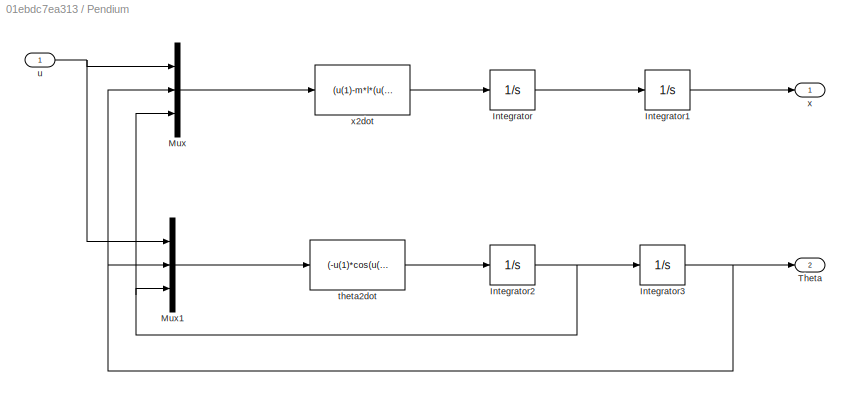
BLOCK [SubSystem] Pendium
  Ports = [1, 2]
  RequestExecContextInheritance = off
  Variant = off
BLOCK [Integrator] Pendium/Integrator
  InitialCondition = xdot0
  Ports = [1, 1]
BLOCK [Integrator] Pendium/Integrator1
  InitialCondition = x0
  Ports = [1, 1]
BLOCK [Integrator] Pendium/Integrator2
  InitialCondition = thetadot0
  Ports = [1, 1]
BLOCK [Integrator] Pendium/Integrator3
  InitialCondition = theta0
  Ports = [1, 1]
BLOCK [Mux] Pendium/Mux
  DisplayOption = bar
  Inputs = 3
  Ports = [3, 1]
BLOCK [Mux] Pendium/Mux1
  DisplayOption = bar
  Inputs = 3
  Ports = [3, 1]
BLOCK [Outport] Pendium/Theta
  IconDisplay = Port number
  Port = 2
BLOCK [Fcn] Pendium/theta2dot
  Expr = (-u(1)*cos(u(2))+m*g*(u(3))^2*sin(u(2))*cos(u(2))+(H+m)*(g*sin(u(2))))/(m*l*(cos(u(2)))^2-(H+m)*l)
BLOCK [Inport] Pendium/u
  IconDisplay = Port number
BLOCK [Outport] Pendium/x
  IconDisplay = Port number
BLOCK [Fcn] Pendium/x2dot
  Expr = (u(1)-m*l*(u(3))^2*sin(u(2))-m*g*sin(u(2))*cos(u(2)))/((H+m)-m*(cos(u(2)))^2)
BLOCK [Scope] Scope
  NumInputPorts = 3
  Ports = [3]
  ScopeSpecificationString = Simulink.scopes.TimeScopeBlockCfg('CurrentConfiguration', extmgr.ConfigurationSet(extmgr.Configuration('Core','General UI',true,'FigureColor',[1 1 1]),extmgr.Configuration('Core','Source UI',true),extmgr.Configuration('Sources','WiredSimulink',true),extmgr.Configuration('Visuals','Time Domain',true,'SerializedDisplays',{struct('MinYLimReal','-0.10626','MaxYLimReal','0.95635','YLabelReal','','MinYL...<+4564ch>
BLOCK [SubSystem] Signal Builder
  ClipboardFcn = sigbuilder_block('clipboard');
  CloseFcn = sigbuilder_block('close');
  ContinueFcn = sigbuilder_block('continue');
  CopyFcn = sigbuilder_block('copy');
  DeleteFcn = sigbuilder_block('delete');
  LoadFcn = sigbuilder_block('load',[0 36 960 449.5 ]);
  MaskHideContents = on
  ModelCloseFcn = sigbuilder_block('modelClose');
  NameChangeFcn = sigbuilder_block('namechange');
  OpenFcn = sigbuilder_block('open',[0 36 960 449.5 ]);
  PauseFcn = sigbuilder_block('pause');
  Ports = [0, 1]
  PreSaveFcn = sigbuilder_block('preSave');
  RequestExecContextInheritance = off
  StartFcn = sigbuilder_block('start');
  StopFcn = sigbuilder_block('stop');
  Tag = STV Subsys
  Variant = off
BLOCK [Demux] Signal Builder/Demux
  Outputs = 1
  Ports = [1, 1]
  Tag = STV Demux
BLOCK [FromWorkspace] Signal Builder/FromWs
  SampleTime = 0
  Tag = STV FromWs
  VariableName = tuvar
  ZeroCross = on
BLOCK [Outport] Signal Builder/Signal 1
  IconDisplay = Port number
  Tag = STV Outport
BLOCK [Sum] Sum2
  IconShape = round
  InputSameDT = off
  Inputs = |+-
  OutDataTypeStr = Inherit: Inherit via internal rule
  Ports = [2, 1]
  SaturateOnIntegerOverflow = off
BLOCK [TransferFcn] Transfer Fcn
  Denominator = [0.1 1]
LINE Custom Neural Network/ a{1} :1 -> Custom Neural Network/Layer 2:1
LINE Custom Neural Network/Input:1 -> Custom Neural Network/Process Input 1:1
LINE Custom Neural Network/Layer 1/Delays 1/mux:1 -> Custom Neural Network/Layer 1/Delays 1/pd{1,1}:1
LINE Custom Neural Network/Layer 1/Delays 1/p{1}:1 -> Custom Neural Network/Layer 1/Delays 1/mux:1
LINE Custom Neural Network/Layer 1/Delays 1:1 -> Custom Neural Network/Layer 1/IW{1,1}:1
LINE Custom Neural Network/Layer 1/IW{1,1}/IW{1,1}(1,:)':1 -> Custom Neural Network/Layer 1/IW{1,1}/dotprod1:1
LINE Custom Neural Network/Layer 1/IW{1,1}/IW{1,1}(10,:)':1 -> Custom Neural Network/Layer 1/IW{1,1}/dotprod10:1
LINE Custom Neural Network/Layer 1/IW{1,1}/IW{1,1}(100,:)':1 -> Custom Neural Network/Layer 1/IW{1,1}/dotprod100:1
LINE Custom Neural Network/Layer 1/IW{1,1}/IW{1,1}(101,:)':1 -> Custom Neural Network/Layer 1/IW{1,1}/dotprod101:1
LINE Custom Neural Network/Layer 1/IW{1,1}/IW{1,1}(102,:)':1 -> Custom Neural Network/Layer 1/IW{1,1}/dotprod102:1
LINE Custom Neural Network/Layer 1/IW{1,1}/IW{1,1}(103,:)':1 -> Custom Neural Network/Layer 1/IW{1,1}/dotprod103:1
LINE Custom Neural Network/Layer 1/IW{1,1}/IW{1,1}(104,:)':1 -> Custom Neural Network/Layer 1/IW{1,1}/dotprod104:1
LINE Custom Neural Network/Layer 1/IW{1,1}/IW{1,1}(105,:)':1 -> Custom Neural Network/Layer 1/IW{1,1}/dotprod105:1
LINE Custom Neural Network/Layer 1/IW{1,1}/IW{1,1}(106,:)':1 -> Custom Neural Network/Layer 1/IW{1,1}/dotprod106:1
LINE Custom Neural Network/Layer 1/IW{1,1}/IW{1,1}(107,:)':1 -> Custom Neural Network/Layer 1/IW{1,1}/dotprod107:1
LINE Custom Neural Network/Layer 1/IW{1,1}/IW{1,1}(108,:)':1 -> Custom Neural Network/Layer 1/IW{1,1}/dotprod108:1
LINE Custom Neural Network/Layer 1/IW{1,1}/IW{1,1}(109,:)':1 -> Custom Neural Network/Layer 1/IW{1,1}/dotprod109:1
LINE Custom Neural Network/Layer 1/IW{1,1}/IW{1,1}(11,:)':1 -> Custom Neural Network/Layer 1/IW{1,1}/dotprod11:1
LINE Custom Neural Network/Layer 1/IW{1,1}/IW{1,1}(110,:)':1 -> Custom Neural Network/Layer 1/IW{1,1}/dotprod110:1
LINE Custom Neural Network/Layer 1/IW{1,1}/IW{1,1}(111,:)':1 -> Custom Neural Network/Layer 1/IW{1,1}/dotprod111:1
LINE Custom Neural Network/Layer 1/IW{1,1}/IW{1,1}(112,:)':1 -> Custom Neural Network/Layer 1/IW{1,1}/dotprod112:1
LINE Custom Neural Network/Layer 1/IW{1,1}/IW{1,1}(113,:)':1 -> Custom Neural Network/Layer 1/IW{1,1}/dotprod113:1
LINE Custom Neural Network/Layer 1/IW{1,1}/IW{1,1}(114,:)':1 -> Custom Neural Network/Layer 1/IW{1,1}/dotprod114:1
LINE Custom Neural Network/Layer 1/IW{1,1}/IW{1,1}(115,:)':1 -> Custom Neural Network/Layer 1/IW{1,1}/dotprod115:1
LINE Custom Neural Network/Layer 1/IW{1,1}/IW{1,1}(116,:)':1 -> Custom Neural Network/Layer 1/IW{1,1}/dotprod116:1
LINE Custom Neural Network/Layer 1/IW{1,1}/IW{1,1}(117,:)':1 -> Custom Neural Network/Layer 1/IW{1,1}/dotprod117:1
LINE Custom Neural Network/Layer 1/IW{1,1}/IW{1,1}(118,:)':1 -> Custom Neural Network/Layer 1/IW{1,1}/dotprod118:1
LINE Custom Neural Network/Layer 1/IW{1,1}/IW{1,1}(119,:)':1 -> Custom Neural Network/Layer 1/IW{1,1}/dotprod119:1
LINE Custom Neural Network/Layer 1/IW{1,1}/IW{1,1}(12,:)':1 -> Custom Neural Network/Layer 1/IW{1,1}/dotprod12:1
LINE Custom Neural Network/Layer 1/IW{1,1}/IW{1,1}(120,:)':1 -> Custom Neural Network/Layer 1/IW{1,1}/dotprod120:1
LINE Custom Neural Network/Layer 1/IW{1,1}/IW{1,1}(121,:)':1 -> Custom Neural Network/Layer 1/IW{1,1}/dotprod121:1
LINE Custom Neural Network/Layer 1/IW{1,1}/IW{1,1}(122,:)':1 -> Custom Neural Network/Layer 1/IW{1,1}/dotprod122:1
LINE Custom Neural Network/Layer 1/IW{1,1}/IW{1,1}(123,:)':1 -> Custom Neural Network/Layer 1/IW{1,1}/dotprod123:1
LINE Custom Neural Network/Layer 1/IW{1,1}/IW{1,1}(124,:)':1 -> Custom Neural Network/Layer 1/IW{1,1}/dotprod124:1
LINE Custom Neural Network/Layer 1/IW{1,1}/IW{1,1}(125,:)':1 -> Custom Neural Network/Layer 1/IW{1,1}/dotprod125:1
LINE Custom Neural Network/Layer 1/IW{1,1}/IW{1,1}(126,:)':1 -> Custom Neural Network/Layer 1/IW{1,1}/dotprod126:1
LINE Custom Neural Network/Layer 1/IW{1,1}/IW{1,1}(127,:)':1 -> Custom Neural Network/Layer 1/IW{1,1}/dotprod127:1
LINE Custom Neural Network/Layer 1/IW{1,1}/IW{1,1}(128,:)':1 -> Custom Neural Network/Layer 1/IW{1,1}/dotprod128:1
LINE Custom Neural Network/Layer 1/IW{1,1}/IW{1,1}(129,:)':1 -> Custom Neural Network/Layer 1/IW{1,1}/dotprod129:1
LINE Custom Neural Network/Layer 1/IW{1,1}/IW{1,1}(13,:)':1 -> Custom Neural Network/Layer 1/IW{1,1}/dotprod13:1
LINE Custom Neural Network/Layer 1/IW{1,1}/IW{1,1}(130,:)':1 -> Custom Neural Network/Layer 1/IW{1,1}/dotprod130:1
LINE Custom Neural Network/Layer 1/IW{1,1}/IW{1,1}(131,:)':1 -> Custom Neural Network/Layer 1/IW{1,1}/dotprod131:1
LINE Custom Neural Network/Layer 1/IW{1,1}/IW{1,1}(132,:)':1 -> Custom Neural Network/Layer 1/IW{1,1}/dotprod132:1
LINE Custom Neural Network/Layer 1/IW{1,1}/IW{1,1}(133,:)':1 -> Custom Neural Network/Layer 1/IW{1,1}/dotprod133:1
LINE Custom Neural Network/Layer 1/IW{1,1}/IW{1,1}(134,:)':1 -> Custom Neural Network/Layer 1/IW{1,1}/dotprod134:1
LINE Custom Neural Network/Layer 1/IW{1,1}/IW{1,1}(135,:)':1 -> Custom Neural Network/Layer 1/IW{1,1}/dotprod135:1
LINE Custom Neural Network/Layer 1/IW{1,1}/IW{1,1}(136,:)':1 -> Custom Neural Network/Layer 1/IW{1,1}/dotprod136:1
LINE Custom Neural Network/Layer 1/IW{1,1}/IW{1,1}(137,:)':1 -> Custom Neural Network/Layer 1/IW{1,1}/dotprod137:1
LINE Custom Neural Network/Layer 1/IW{1,1}/IW{1,1}(138,:)':1 -> Custom Neural Network/Layer 1/IW{1,1}/dotprod138:1
LINE Custom Neural Network/Layer 1/IW{1,1}/IW{1,1}(139,:)':1 -> Custom Neural Network/Layer 1/IW{1,1}/dotprod139:1
LINE Custom Neural Network/Layer 1/IW{1,1}/IW{1,1}(14,:)':1 -> Custom Neural Network/Layer 1/IW{1,1}/dotprod14:1
LINE Custom Neural Network/Layer 1/IW{1,1}/IW{1,1}(140,:)':1 -> Custom Neural Network/Layer 1/IW{1,1}/dotprod140:1
LINE Custom Neural Network/Layer 1/IW{1,1}/IW{1,1}(141,:)':1 -> Custom Neural Network/Layer 1/IW{1,1}/dotprod141:1
LINE Custom Neural Network/Layer 1/IW{1,1}/IW{1,1}(142,:)':1 -> Custom Neural Network/Layer 1/IW{1,1}/dotprod142:1
LINE Custom Neural Network/Layer 1/IW{1,1}/IW{1,1}(143,:)':1 -> Custom Neural Network/Layer 1/IW{1,1}/dotprod143:1
LINE Custom Neural Network/Layer 1/IW{1,1}/IW{1,1}(144,:)':1 -> Custom Neural Network/Layer 1/IW{1,1}/dotprod144:1
LINE Custom Neural Network/Layer 1/IW{1,1}/IW{1,1}(145,:)':1 -> Custom Neural Network/Layer 1/IW{1,1}/dotprod145:1
LINE Custom Neural Network/Layer 1/IW{1,1}/IW{1,1}(146,:)':1 -> Custom Neural Network/Layer 1/IW{1,1}/dotprod146:1
LINE Custom Neural Network/Layer 1/IW{1,1}/IW{1,1}(147,:)':1 -> Custom Neural Network/Layer 1/IW{1,1}/dotprod147:1
LINE Custom Neural Network/Layer 1/IW{1,1}/IW{1,1}(148,:)':1 -> Custom Neural Network/Layer 1/IW{1,1}/dotprod148:1
LINE Custom Neural Network/Layer 1/IW{1,1}/IW{1,1}(149,:)':1 -> Custom Neural Network/Layer 1/IW{1,1}/dotprod149:1
LINE Custom Neural Network/Layer 1/IW{1,1}/IW{1,1}(15,:)':1 -> Custom Neural Network/Layer 1/IW{1,1}/dotprod15:1
LINE Custom Neural Network/Layer 1/IW{1,1}/IW{1,1}(150,:)':1 -> Custom Neural Network/Layer 1/IW{1,1}/dotprod150:1
LINE Custom Neural Network/Layer 1/IW{1,1}/IW{1,1}(151,:)':1 -> Custom Neural Network/Layer 1/IW{1,1}/dotprod151:1
LINE Custom Neural Network/Layer 1/IW{1,1}/IW{1,1}(152,:)':1 -> Custom Neural Network/Layer 1/IW{1,1}/dotprod152:1
LINE Custom Neural Network/Layer 1/IW{1,1}/IW{1,1}(153,:)':1 -> Custom Neural Network/Layer 1/IW{1,1}/dotprod153:1
LINE Custom Neural Network/Layer 1/IW{1,1}/IW{1,1}(154,:)':1 -> Custom Neural Network/Layer 1/IW{1,1}/dotprod154:1
LINE Custom Neural Network/Layer 1/IW{1,1}/IW{1,1}(155,:)':1 -> Custom Neural Network/Layer 1/IW{1,1}/dotprod155:1
LINE Custom Neural Network/Layer 1/IW{1,1}/IW{1,1}(156,:)':1 -> Custom Neural Network/Layer 1/IW{1,1}/dotprod156:1
LINE Custom Neural Network/Layer 1/IW{1,1}/IW{1,1}(157,:)':1 -> Custom Neural Network/Layer 1/IW{1,1}/dotprod157:1
LINE Custom Neural Network/Layer 1/IW{1,1}/IW{1,1}(158,:)':1 -> Custom Neural Network/Layer 1/IW{1,1}/dotprod158:1
LINE Custom Neural Network/Layer 1/IW{1,1}/IW{1,1}(159,:)':1 -> Custom Neural Network/Layer 1/IW{1,1}/dotprod159:1
LINE Custom Neural Network/Layer 1/IW{1,1}/IW{1,1}(16,:)':1 -> Custom Neural Network/Layer 1/IW{1,1}/dotprod16:1
LINE Custom Neural Network/Layer 1/IW{1,1}/IW{1,1}(160,:)':1 -> Custom Neural Network/Layer 1/IW{1,1}/dotprod160:1
LINE Custom Neural Network/Layer 1/IW{1,1}/IW{1,1}(161,:)':1 -> Custom Neural Network/Layer 1/IW{1,1}/dotprod161:1
LINE Custom Neural Network/Layer 1/IW{1,1}/IW{1,1}(162,:)':1 -> Custom Neural Network/Layer 1/IW{1,1}/dotprod162:1
LINE Custom Neural Network/Layer 1/IW{1,1}/IW{1,1}(163,:)':1 -> Custom Neural Network/Layer 1/IW{1,1}/dotprod163:1
LINE Custom Neural Network/Layer 1/IW{1,1}/IW{1,1}(164,:)':1 -> Custom Neural Network/Layer 1/IW{1,1}/dotprod164:1
LINE Custom Neural Network/Layer 1/IW{1,1}/IW{1,1}(165,:)':1 -> Custom Neural Network/Layer 1/IW{1,1}/dotprod165:1
LINE Custom Neural Network/Layer 1/IW{1,1}/IW{1,1}(166,:)':1 -> Custom Neural Network/Layer 1/IW{1,1}/dotprod166:1
LINE Custom Neural Network/Layer 1/IW{1,1}/IW{1,1}(167,:)':1 -> Custom Neural Network/Layer 1/IW{1,1}/dotprod167:1
LINE Custom Neural Network/Layer 1/IW{1,1}/IW{1,1}(168,:)':1 -> Custom Neural Network/Layer 1/IW{1,1}/dotprod168:1
LINE Custom Neural Network/Layer 1/IW{1,1}/IW{1,1}(169,:)':1 -> Custom Neural Network/Layer 1/IW{1,1}/dotprod169:1
LINE Custom Neural Network/Layer 1/IW{1,1}/IW{1,1}(17,:)':1 -> Custom Neural Network/Layer 1/IW{1,1}/dotprod17:1
LINE Custom Neural Network/Layer 1/IW{1,1}/IW{1,1}(170,:)':1 -> Custom Neural Network/Layer 1/IW{1,1}/dotprod170:1
LINE Custom Neural Network/Layer 1/IW{1,1}/IW{1,1}(171,:)':1 -> Custom Neural Network/Layer 1/IW{1,1}/dotprod171:1
LINE Custom Neural Network/Layer 1/IW{1,1}/IW{1,1}(172,:)':1 -> Custom Neural Network/Layer 1/IW{1,1}/dotprod172:1
LINE Custom Neural Network/Layer 1/IW{1,1}/IW{1,1}(173,:)':1 -> Custom Neural Network/Layer 1/IW{1,1}/dotprod173:1
LINE Custom Neural Network/Layer 1/IW{1,1}/IW{1,1}(174,:)':1 -> Custom Neural Network/Layer 1/IW{1,1}/dotprod174:1
LINE Custom Neural Network/Layer 1/IW{1,1}/IW{1,1}(175,:)':1 -> Custom Neural Network/Layer 1/IW{1,1}/dotprod175:1
LINE Custom Neural Network/Layer 1/IW{1,1}/IW{1,1}(176,:)':1 -> Custom Neural Network/Layer 1/IW{1,1}/dotprod176:1
LINE Custom Neural Network/Layer 1/IW{1,1}/IW{1,1}(177,:)':1 -> Custom Neural Network/Layer 1/IW{1,1}/dotprod177:1
LINE Custom Neural Network/Layer 1/IW{1,1}/IW{1,1}(178,:)':1 -> Custom Neural Network/Layer 1/IW{1,1}/dotprod178:1
LINE Custom Neural Network/Layer 1/IW{1,1}/IW{1,1}(179,:)':1 -> Custom Neural Network/Layer 1/IW{1,1}/dotprod179:1
LINE Custom Neural Network/Layer 1/IW{1,1}/IW{1,1}(18,:)':1 -> Custom Neural Network/Layer 1/IW{1,1}/dotprod18:1
LINE Custom Neural Network/Layer 1/IW{1,1}/IW{1,1}(180,:)':1 -> Custom Neural Network/Layer 1/IW{1,1}/dotprod180:1
LINE Custom Neural Network/Layer 1/IW{1,1}/IW{1,1}(181,:)':1 -> Custom Neural Network/Layer 1/IW{1,1}/dotprod181:1
LINE Custom Neural Network/Layer 1/IW{1,1}/IW{1,1}(182,:)':1 -> Custom Neural Network/Layer 1/IW{1,1}/dotprod182:1
LINE Custom Neural Network/Layer 1/IW{1,1}/IW{1,1}(183,:)':1 -> Custom Neural Network/Layer 1/IW{1,1}/dotprod183:1
LINE Custom Neural Network/Layer 1/IW{1,1}/IW{1,1}(184,:)':1 -> Custom Neural Network/Layer 1/IW{1,1}/dotprod184:1
LINE Custom Neural Network/Layer 1/IW{1,1}/IW{1,1}(185,:)':1 -> Custom Neural Network/Layer 1/IW{1,1}/dotprod185:1
LINE Custom Neural Network/Layer 1/IW{1,1}/IW{1,1}(186,:)':1 -> Custom Neural Network/Layer 1/IW{1,1}/dotprod186:1
LINE Custom Neural Network/Layer 1/IW{1,1}/IW{1,1}(187,:)':1 -> Custom Neural Network/Layer 1/IW{1,1}/dotprod187:1
LINE Custom Neural Network/Layer 1/IW{1,1}/IW{1,1}(188,:)':1 -> Custom Neural Network/Layer 1/IW{1,1}/dotprod188:1
LINE Custom Neural Network/Layer 1/IW{1,1}/IW{1,1}(189,:)':1 -> Custom Neural Network/Layer 1/IW{1,1}/dotprod189:1
LINE Custom Neural Network/Layer 1/IW{1,1}/IW{1,1}(19,:)':1 -> Custom Neural Network/Layer 1/IW{1,1}/dotprod19:1
LINE Custom Neural Network/Layer 1/IW{1,1}/IW{1,1}(190,:)':1 -> Custom Neural Network/Layer 1/IW{1,1}/dotprod190:1
LINE Custom Neural Network/Layer 1/IW{1,1}/IW{1,1}(191,:)':1 -> Custom Neural Network/Layer 1/IW{1,1}/dotprod191:1
LINE Custom Neural Network/Layer 1/IW{1,1}/IW{1,1}(192,:)':1 -> Custom Neural Network/Layer 1/IW{1,1}/dotprod192:1
LINE Custom Neural Network/Layer 1/IW{1,1}/IW{1,1}(193,:)':1 -> Custom Neural Network/Layer 1/IW{1,1}/dotprod193:1
LINE Custom Neural Network/Layer 1/IW{1,1}/IW{1,1}(194,:)':1 -> Custom Neural Network/Layer 1/IW{1,1}/dotprod194:1
LINE Custom Neural Network/Layer 1/IW{1,1}/IW{1,1}(195,:)':1 -> Custom Neural Network/Layer 1/IW{1,1}/dotprod195:1
LINE Custom Neural Network/Layer 1/IW{1,1}/IW{1,1}(196,:)':1 -> Custom Neural Network/Layer 1/IW{1,1}/dotprod196:1
LINE Custom Neural Network/Layer 1/IW{1,1}/IW{1,1}(197,:)':1 -> Custom Neural Network/Layer 1/IW{1,1}/dotprod197:1
LINE Custom Neural Network/Layer 1/IW{1,1}/IW{1,1}(198,:)':1 -> Custom Neural Network/Layer 1/IW{1,1}/dotprod198:1
LINE Custom Neural Network/Layer 1/IW{1,1}/IW{1,1}(199,:)':1 -> Custom Neural Network/Layer 1/IW{1,1}/dotprod199:1
LINE Custom Neural Network/Layer 1/IW{1,1}/IW{1,1}(2,:)':1 -> Custom Neural Network/Layer 1/IW{1,1}/dotprod2:1
LINE Custom Neural Network/Layer 1/IW{1,1}/IW{1,1}(20,:)':1 -> Custom Neural Network/Layer 1/IW{1,1}/dotprod20:1
LINE Custom Neural Network/Layer 1/IW{1,1}/IW{1,1}(200,:)':1 -> Custom Neural Network/Layer 1/IW{1,1}/dotprod200:1
LINE Custom Neural Network/Layer 1/IW{1,1}/IW{1,1}(201,:)':1 -> Custom Neural Network/Layer 1/IW{1,1}/dotprod201:1
LINE Custom Neural Network/Layer 1/IW{1,1}/IW{1,1}(202,:)':1 -> Custom Neural Network/Layer 1/IW{1,1}/dotprod202:1
LINE Custom Neural Network/Layer 1/IW{1,1}/IW{1,1}(203,:)':1 -> Custom Neural Network/Layer 1/IW{1,1}/dotprod203:1
LINE Custom Neural Network/Layer 1/IW{1,1}/IW{1,1}(204,:)':1 -> Custom Neural Network/Layer 1/IW{1,1}/dotprod204:1
LINE Custom Neural Network/Layer 1/IW{1,1}/IW{1,1}(205,:)':1 -> Custom Neural Network/Layer 1/IW{1,1}/dotprod205:1
LINE Custom Neural Network/Layer 1/IW{1,1}/IW{1,1}(206,:)':1 -> Custom Neural Network/Layer 1/IW{1,1}/dotprod206:1
LINE Custom Neural Network/Layer 1/IW{1,1}/IW{1,1}(207,:)':1 -> Custom Neural Network/Layer 1/IW{1,1}/dotprod207:1
LINE Custom Neural Network/Layer 1/IW{1,1}/IW{1,1}(208,:)':1 -> Custom Neural Network/Layer 1/IW{1,1}/dotprod208:1
LINE Custom Neural Network/Layer 1/IW{1,1}/IW{1,1}(209,:)':1 -> Custom Neural Network/Layer 1/IW{1,1}/dotprod209:1
LINE Custom Neural Network/Layer 1/IW{1,1}/IW{1,1}(21,:)':1 -> Custom Neural Network/Layer 1/IW{1,1}/dotprod21:1
LINE Custom Neural Network/Layer 1/IW{1,1}/IW{1,1}(210,:)':1 -> Custom Neural Network/Layer 1/IW{1,1}/dotprod210:1
LINE Custom Neural Network/Layer 1/IW{1,1}/IW{1,1}(211,:)':1 -> Custom Neural Network/Layer 1/IW{1,1}/dotprod211:1
LINE Custom Neural Network/Layer 1/IW{1,1}/IW{1,1}(212,:)':1 -> Custom Neural Network/Layer 1/IW{1,1}/dotprod212:1
LINE Custom Neural Network/Layer 1/IW{1,1}/IW{1,1}(213,:)':1 -> Custom Neural Network/Layer 1/IW{1,1}/dotprod213:1
LINE Custom Neural Network/Layer 1/IW{1,1}/IW{1,1}(214,:)':1 -> Custom Neural Network/Layer 1/IW{1,1}/dotprod214:1
LINE Custom Neural Network/Layer 1/IW{1,1}/IW{1,1}(215,:)':1 -> Custom Neural Network/Layer 1/IW{1,1}/dotprod215:1
LINE Custom Neural Network/Layer 1/IW{1,1}/IW{1,1}(216,:)':1 -> Custom Neural Network/Layer 1/IW{1,1}/dotprod216:1
LINE Custom Neural Network/Layer 1/IW{1,1}/IW{1,1}(217,:)':1 -> Custom Neural Network/Layer 1/IW{1,1}/dotprod217:1
LINE Custom Neural Network/Layer 1/IW{1,1}/IW{1,1}(218,:)':1 -> Custom Neural Network/Layer 1/IW{1,1}/dotprod218:1
LINE Custom Neural Network/Layer 1/IW{1,1}/IW{1,1}(219,:)':1 -> Custom Neural Network/Layer 1/IW{1,1}/dotprod219:1
LINE Custom Neural Network/Layer 1/IW{1,1}/IW{1,1}(22,:)':1 -> Custom Neural Network/Layer 1/IW{1,1}/dotprod22:1
LINE Custom Neural Network/Layer 1/IW{1,1}/IW{1,1}(220,:)':1 -> Custom Neural Network/Layer 1/IW{1,1}/dotprod220:1
LINE Custom Neural Network/Layer 1/IW{1,1}/IW{1,1}(221,:)':1 -> Custom Neural Network/Layer 1/IW{1,1}/dotprod221:1
LINE Custom Neural Network/Layer 1/IW{1,1}/IW{1,1}(222,:)':1 -> Custom Neural Network/Layer 1/IW{1,1}/dotprod222:1
LINE Custom Neural Network/Layer 1/IW{1,1}/IW{1,1}(223,:)':1 -> Custom Neural Network/Layer 1/IW{1,1}/dotprod223:1
LINE Custom Neural Network/Layer 1/IW{1,1}/IW{1,1}(224,:)':1 -> Custom Neural Network/Layer 1/IW{1,1}/dotprod224:1
LINE Custom Neural Network/Layer 1/IW{1,1}/IW{1,1}(225,:)':1 -> Custom Neural Network/Layer 1/IW{1,1}/dotprod225:1
LINE Custom Neural Network/Layer 1/IW{1,1}/IW{1,1}(226,:)':1 -> Custom Neural Network/Layer 1/IW{1,1}/dotprod226:1
LINE Custom Neural Network/Layer 1/IW{1,1}/IW{1,1}(227,:)':1 -> Custom Neural Network/Layer 1/IW{1,1}/dotprod227:1
LINE Custom Neural Network/Layer 1/IW{1,1}/IW{1,1}(228,:)':1 -> Custom Neural Network/Layer 1/IW{1,1}/dotprod228:1
LINE Custom Neural Network/Layer 1/IW{1,1}/IW{1,1}(229,:)':1 -> Custom Neural Network/Layer 1/IW{1,1}/dotprod229:1
LINE Custom Neural Network/Layer 1/IW{1,1}/IW{1,1}(23,:)':1 -> Custom Neural Network/Layer 1/IW{1,1}/dotprod23:1
LINE Custom Neural Network/Layer 1/IW{1,1}/IW{1,1}(230,:)':1 -> Custom Neural Network/Layer 1/IW{1,1}/dotprod230:1
LINE Custom Neural Network/Layer 1/IW{1,1}/IW{1,1}(231,:)':1 -> Custom Neural Network/Layer 1/IW{1,1}/dotprod231:1
LINE Custom Neural Network/Layer 1/IW{1,1}/IW{1,1}(232,:)':1 -> Custom Neural Network/Layer 1/IW{1,1}/dotprod232:1
LINE Custom Neural Network/Layer 1/IW{1,1}/IW{1,1}(233,:)':1 -> Custom Neural Network/Layer 1/IW{1,1}/dotprod233:1
LINE Custom Neural Network/Layer 1/IW{1,1}/IW{1,1}(234,:)':1 -> Custom Neural Network/Layer 1/IW{1,1}/dotprod234:1
LINE Custom Neural Network/Layer 1/IW{1,1}/IW{1,1}(235,:)':1 -> Custom Neural Network/Layer 1/IW{1,1}/dotprod235:1
LINE Custom Neural Network/Layer 1/IW{1,1}/IW{1,1}(236,:)':1 -> Custom Neural Network/Layer 1/IW{1,1}/dotprod236:1
LINE Custom Neural Network/Layer 1/IW{1,1}/IW{1,1}(237,:)':1 -> Custom Neural Network/Layer 1/IW{1,1}/dotprod237:1
LINE Custom Neural Network/Layer 1/IW{1,1}/IW{1,1}(238,:)':1 -> Custom Neural Network/Layer 1/IW{1,1}/dotprod238:1
LINE Custom Neural Network/Layer 1/IW{1,1}/IW{1,1}(239,:)':1 -> Custom Neural Network/Layer 1/IW{1,1}/dotprod239:1
LINE Custom Neural Network/Layer 1/IW{1,1}/IW{1,1}(24,:)':1 -> Custom Neural Network/Layer 1/IW{1,1}/dotprod24:1
LINE Custom Neural Network/Layer 1/IW{1,1}/IW{1,1}(240,:)':1 -> Custom Neural Network/Layer 1/IW{1,1}/dotprod240:1
LINE Custom Neural Network/Layer 1/IW{1,1}/IW{1,1}(241,:)':1 -> Custom Neural Network/Layer 1/IW{1,1}/dotprod241:1
LINE Custom Neural Network/Layer 1/IW{1,1}/IW{1,1}(242,:)':1 -> Custom Neural Network/Layer 1/IW{1,1}/dotprod242:1
LINE Custom Neural Network/Layer 1/IW{1,1}/IW{1,1}(243,:)':1 -> Custom Neural Network/Layer 1/IW{1,1}/dotprod243:1
LINE Custom Neural Network/Layer 1/IW{1,1}/IW{1,1}(244,:)':1 -> Custom Neural Network/Layer 1/IW{1,1}/dotprod244:1
LINE Custom Neural Network/Layer 1/IW{1,1}/IW{1,1}(245,:)':1 -> Custom Neural Network/Layer 1/IW{1,1}/dotprod245:1
LINE Custom Neural Network/Layer 1/IW{1,1}/IW{1,1}(246,:)':1 -> Custom Neural Network/Layer 1/IW{1,1}/dotprod246:1
LINE Custom Neural Network/Layer 1/IW{1,1}/IW{1,1}(247,:)':1 -> Custom Neural Network/Layer 1/IW{1,1}/dotprod247:1
LINE Custom Neural Network/Layer 1/IW{1,1}/IW{1,1}(248,:)':1 -> Custom Neural Network/Layer 1/IW{1,1}/dotprod248:1
LINE Custom Neural Network/Layer 1/IW{1,1}/IW{1,1}(249,:)':1 -> Custom Neural Network/Layer 1/IW{1,1}/dotprod249:1
LINE Custom Neural Network/Layer 1/IW{1,1}/IW{1,1}(25,:)':1 -> Custom Neural Network/Layer 1/IW{1,1}/dotprod25:1
LINE Custom Neural Network/Layer 1/IW{1,1}/IW{1,1}(250,:)':1 -> Custom Neural Network/Layer 1/IW{1,1}/dotprod250:1
LINE Custom Neural Network/Layer 1/IW{1,1}/IW{1,1}(251,:)':1 -> Custom Neural Network/Layer 1/IW{1,1}/dotprod251:1
LINE Custom Neural Network/Layer 1/IW{1,1}/IW{1,1}(252,:)':1 -> Custom Neural Network/Layer 1/IW{1,1}/dotprod252:1
LINE Custom Neural Network/Layer 1/IW{1,1}/IW{1,1}(253,:)':1 -> Custom Neural Network/Layer 1/IW{1,1}/dotprod253:1
LINE Custom Neural Network/Layer 1/IW{1,1}/IW{1,1}(254,:)':1 -> Custom Neural Network/Layer 1/IW{1,1}/dotprod254:1
LINE Custom Neural Network/Layer 1/IW{1,1}/IW{1,1}(255,:)':1 -> Custom Neural Network/Layer 1/IW{1,1}/dotprod255:1
LINE Custom Neural Network/Layer 1/IW{1,1}/IW{1,1}(256,:)':1 -> Custom Neural Network/Layer 1/IW{1,1}/dotprod256:1
LINE Custom Neural Network/Layer 1/IW{1,1}/IW{1,1}(257,:)':1 -> Custom Neural Network/Layer 1/IW{1,1}/dotprod257:1
LINE Custom Neural Network/Layer 1/IW{1,1}/IW{1,1}(258,:)':1 -> Custom Neural Network/Layer 1/IW{1,1}/dotprod258:1
LINE Custom Neural Network/Layer 1/IW{1,1}/IW{1,1}(259,:)':1 -> Custom Neural Network/Layer 1/IW{1,1}/dotprod259:1
LINE Custom Neural Network/Layer 1/IW{1,1}/IW{1,1}(26,:)':1 -> Custom Neural Network/Layer 1/IW{1,1}/dotprod26:1
LINE Custom Neural Network/Layer 1/IW{1,1}/IW{1,1}(260,:)':1 -> Custom Neural Network/Layer 1/IW{1,1}/dotprod260:1
LINE Custom Neural Network/Layer 1/IW{1,1}/IW{1,1}(261,:)':1 -> Custom Neural Network/Layer 1/IW{1,1}/dotprod261:1
LINE Custom Neural Network/Layer 1/IW{1,1}/IW{1,1}(262,:)':1 -> Custom Neural Network/Layer 1/IW{1,1}/dotprod262:1
LINE Custom Neural Network/Layer 1/IW{1,1}/IW{1,1}(263,:)':1 -> Custom Neural Network/Layer 1/IW{1,1}/dotprod263:1
LINE Custom Neural Network/Layer 1/IW{1,1}/IW{1,1}(264,:)':1 -> Custom Neural Network/Layer 1/IW{1,1}/dotprod264:1
LINE Custom Neural Network/Layer 1/IW{1,1}/IW{1,1}(265,:)':1 -> Custom Neural Network/Layer 1/IW{1,1}/dotprod265:1
LINE Custom Neural Network/Layer 1/IW{1,1}/IW{1,1}(266,:)':1 -> Custom Neural Network/Layer 1/IW{1,1}/dotprod266:1
LINE Custom Neural Network/Layer 1/IW{1,1}/IW{1,1}(267,:)':1 -> Custom Neural Network/Layer 1/IW{1,1}/dotprod267:1
LINE Custom Neural Network/Layer 1/IW{1,1}/IW{1,1}(268,:)':1 -> Custom Neural Network/Layer 1/IW{1,1}/dotprod268:1
LINE Custom Neural Network/Layer 1/IW{1,1}/IW{1,1}(269,:)':1 -> Custom Neural Network/Layer 1/IW{1,1}/dotprod269:1
LINE Custom Neural Network/Layer 1/IW{1,1}/IW{1,1}(27,:)':1 -> Custom Neural Network/Layer 1/IW{1,1}/dotprod27:1
LINE Custom Neural Network/Layer 1/IW{1,1}/IW{1,1}(270,:)':1 -> Custom Neural Network/Layer 1/IW{1,1}/dotprod270:1
LINE Custom Neural Network/Layer 1/IW{1,1}/IW{1,1}(271,:)':1 -> Custom Neural Network/Layer 1/IW{1,1}/dotprod271:1
LINE Custom Neural Network/Layer 1/IW{1,1}/IW{1,1}(272,:)':1 -> Custom Neural Network/Layer 1/IW{1,1}/dotprod272:1
LINE Custom Neural Network/Layer 1/IW{1,1}/IW{1,1}(273,:)':1 -> Custom Neural Network/Layer 1/IW{1,1}/dotprod273:1
LINE Custom Neural Network/Layer 1/IW{1,1}/IW{1,1}(274,:)':1 -> Custom Neural Network/Layer 1/IW{1,1}/dotprod274:1
LINE Custom Neural Network/Layer 1/IW{1,1}/IW{1,1}(275,:)':1 -> Custom Neural Network/Layer 1/IW{1,1}/dotprod275:1
LINE Custom Neural Network/Layer 1/IW{1,1}/IW{1,1}(276,:)':1 -> Custom Neural Network/Layer 1/IW{1,1}/dotprod276:1
LINE Custom Neural Network/Layer 1/IW{1,1}/IW{1,1}(277,:)':1 -> Custom Neural Network/Layer 1/IW{1,1}/dotprod277:1
LINE Custom Neural Network/Layer 1/IW{1,1}/IW{1,1}(278,:)':1 -> Custom Neural Network/Layer 1/IW{1,1}/dotprod278:1
LINE Custom Neural Network/Layer 1/IW{1,1}/IW{1,1}(279,:)':1 -> Custom Neural Network/Layer 1/IW{1,1}/dotprod279:1
LINE Custom Neural Network/Layer 1/IW{1,1}/IW{1,1}(28,:)':1 -> Custom Neural Network/Layer 1/IW{1,1}/dotprod28:1
LINE Custom Neural Network/Layer 1/IW{1,1}/IW{1,1}(280,:)':1 -> Custom Neural Network/Layer 1/IW{1,1}/dotprod280:1
LINE Custom Neural Network/Layer 1/IW{1,1}/IW{1,1}(281,:)':1 -> Custom Neural Network/Layer 1/IW{1,1}/dotprod281:1
LINE Custom Neural Network/Layer 1/IW{1,1}/IW{1,1}(282,:)':1 -> Custom Neural Network/Layer 1/IW{1,1}/dotprod282:1
LINE Custom Neural Network/Layer 1/IW{1,1}/IW{1,1}(283,:)':1 -> Custom Neural Network/Layer 1/IW{1,1}/dotprod283:1
LINE Custom Neural Network/Layer 1/IW{1,1}/IW{1,1}(284,:)':1 -> Custom Neural Network/Layer 1/IW{1,1}/dotprod284:1
LINE Custom Neural Network/Layer 1/IW{1,1}/IW{1,1}(285,:)':1 -> Custom Neural Network/Layer 1/IW{1,1}/dotprod285:1
LINE Custom Neural Network/Layer 1/IW{1,1}/IW{1,1}(286,:)':1 -> Custom Neural Network/Layer 1/IW{1,1}/dotprod286:1
LINE Custom Neural Network/Layer 1/IW{1,1}/IW{1,1}(287,:)':1 -> Custom Neural Network/Layer 1/IW{1,1}/dotprod287:1
LINE Custom Neural Network/Layer 1/IW{1,1}/IW{1,1}(288,:)':1 -> Custom Neural Network/Layer 1/IW{1,1}/dotprod288:1
LINE Custom Neural Network/Layer 1/IW{1,1}/IW{1,1}(289,:)':1 -> Custom Neural Network/Layer 1/IW{1,1}/dotprod289:1
LINE Custom Neural Network/Layer 1/IW{1,1}/IW{1,1}(29,:)':1 -> Custom Neural Network/Layer 1/IW{1,1}/dotprod29:1
LINE Custom Neural Network/Layer 1/IW{1,1}/IW{1,1}(290,:)':1 -> Custom Neural Network/Layer 1/IW{1,1}/dotprod290:1
LINE Custom Neural Network/Layer 1/IW{1,1}/IW{1,1}(291,:)':1 -> Custom Neural Network/Layer 1/IW{1,1}/dotprod291:1
LINE Custom Neural Network/Layer 1/IW{1,1}/IW{1,1}(292,:)':1 -> Custom Neural Network/Layer 1/IW{1,1}/dotprod292:1
LINE Custom Neural Network/Layer 1/IW{1,1}/IW{1,1}(293,:)':1 -> Custom Neural Network/Layer 1/IW{1,1}/dotprod293:1
LINE Custom Neural Network/Layer 1/IW{1,1}/IW{1,1}(294,:)':1 -> Custom Neural Network/Layer 1/IW{1,1}/dotprod294:1
LINE Custom Neural Network/Layer 1/IW{1,1}/IW{1,1}(295,:)':1 -> Custom Neural Network/Layer 1/IW{1,1}/dotprod295:1
LINE Custom Neural Network/Layer 1/IW{1,1}/IW{1,1}(296,:)':1 -> Custom Neural Network/Layer 1/IW{1,1}/dotprod296:1
LINE Custom Neural Network/Layer 1/IW{1,1}/IW{1,1}(297,:)':1 -> Custom Neural Network/Layer 1/IW{1,1}/dotprod297:1
LINE Custom Neural Network/Layer 1/IW{1,1}/IW{1,1}(298,:)':1 -> Custom Neural Network/Layer 1/IW{1,1}/dotprod298:1
LINE Custom Neural Network/Layer 1/IW{1,1}/IW{1,1}(299,:)':1 -> Custom Neural Network/Layer 1/IW{1,1}/dotprod299:1
LINE Custom Neural Network/Layer 1/IW{1,1}/IW{1,1}(3,:)':1 -> Custom Neural Network/Layer 1/IW{1,1}/dotprod3:1
LINE Custom Neural Network/Layer 1/IW{1,1}/IW{1,1}(30,:)':1 -> Custom Neural Network/Layer 1/IW{1,1}/dotprod30:1
LINE Custom Neural Network/Layer 1/IW{1,1}/IW{1,1}(300,:)':1 -> Custom Neural Network/Layer 1/IW{1,1}/dotprod300:1
LINE Custom Neural Network/Layer 1/IW{1,1}/IW{1,1}(301,:)':1 -> Custom Neural Network/Layer 1/IW{1,1}/dotprod301:1
LINE Custom Neural Network/Layer 1/IW{1,1}/IW{1,1}(302,:)':1 -> Custom Neural Network/Layer 1/IW{1,1}/dotprod302:1
LINE Custom Neural Network/Layer 1/IW{1,1}/IW{1,1}(303,:)':1 -> Custom Neural Network/Layer 1/IW{1,1}/dotprod303:1
LINE Custom Neural Network/Layer 1/IW{1,1}/IW{1,1}(304,:)':1 -> Custom Neural Network/Layer 1/IW{1,1}/dotprod304:1
LINE Custom Neural Network/Layer 1/IW{1,1}/IW{1,1}(305,:)':1 -> Custom Neural Network/Layer 1/IW{1,1}/dotprod305:1
LINE Custom Neural Network/Layer 1/IW{1,1}/IW{1,1}(306,:)':1 -> Custom Neural Network/Layer 1/IW{1,1}/dotprod306:1
LINE Custom Neural Network/Layer 1/IW{1,1}/IW{1,1}(307,:)':1 -> Custom Neural Network/Layer 1/IW{1,1}/dotprod307:1
LINE Custom Neural Network/Layer 1/IW{1,1}/IW{1,1}(308,:)':1 -> Custom Neural Network/Layer 1/IW{1,1}/dotprod308:1
LINE Custom Neural Network/Layer 1/IW{1,1}/IW{1,1}(309,:)':1 -> Custom Neural Network/Layer 1/IW{1,1}/dotprod309:1
LINE Custom Neural Network/Layer 1/IW{1,1}/IW{1,1}(31,:)':1 -> Custom Neural Network/Layer 1/IW{1,1}/dotprod31:1
LINE Custom Neural Network/Layer 1/IW{1,1}/IW{1,1}(310,:)':1 -> Custom Neural Network/Layer 1/IW{1,1}/dotprod310:1
LINE Custom Neural Network/Layer 1/IW{1,1}/IW{1,1}(311,:)':1 -> Custom Neural Network/Layer 1/IW{1,1}/dotprod311:1
LINE Custom Neural Network/Layer 1/IW{1,1}/IW{1,1}(312,:)':1 -> Custom Neural Network/Layer 1/IW{1,1}/dotprod312:1
LINE Custom Neural Network/Layer 1/IW{1,1}/IW{1,1}(313,:)':1 -> Custom Neural Network/Layer 1/IW{1,1}/dotprod313:1
LINE Custom Neural Network/Layer 1/IW{1,1}/IW{1,1}(314,:)':1 -> Custom Neural Network/Layer 1/IW{1,1}/dotprod314:1
LINE Custom Neural Network/Layer 1/IW{1,1}/IW{1,1}(315,:)':1 -> Custom Neural Network/Layer 1/IW{1,1}/dotprod315:1
LINE Custom Neural Network/Layer 1/IW{1,1}/IW{1,1}(316,:)':1 -> Custom Neural Network/Layer 1/IW{1,1}/dotprod316:1
LINE Custom Neural Network/Layer 1/IW{1,1}/IW{1,1}(317,:)':1 -> Custom Neural Network/Layer 1/IW{1,1}/dotprod317:1
LINE Custom Neural Network/Layer 1/IW{1,1}/IW{1,1}(318,:)':1 -> Custom Neural Network/Layer 1/IW{1,1}/dotprod318:1
LINE Custom Neural Network/Layer 1/IW{1,1}/IW{1,1}(319,:)':1 -> Custom Neural Network/Layer 1/IW{1,1}/dotprod319:1
LINE Custom Neural Network/Layer 1/IW{1,1}/IW{1,1}(32,:)':1 -> Custom Neural Network/Layer 1/IW{1,1}/dotprod32:1
LINE Custom Neural Network/Layer 1/IW{1,1}/IW{1,1}(320,:)':1 -> Custom Neural Network/Layer 1/IW{1,1}/dotprod320:1
LINE Custom Neural Network/Layer 1/IW{1,1}/IW{1,1}(321,:)':1 -> Custom Neural Network/Layer 1/IW{1,1}/dotprod321:1
LINE Custom Neural Network/Layer 1/IW{1,1}/IW{1,1}(322,:)':1 -> Custom Neural Network/Layer 1/IW{1,1}/dotprod322:1
LINE Custom Neural Network/Layer 1/IW{1,1}/IW{1,1}(323,:)':1 -> Custom Neural Network/Layer 1/IW{1,1}/dotprod323:1
LINE Custom Neural Network/Layer 1/IW{1,1}/IW{1,1}(324,:)':1 -> Custom Neural Network/Layer 1/IW{1,1}/dotprod324:1
LINE Custom Neural Network/Layer 1/IW{1,1}/IW{1,1}(325,:)':1 -> Custom Neural Network/Layer 1/IW{1,1}/dotprod325:1
LINE Custom Neural Network/Layer 1/IW{1,1}/IW{1,1}(326,:)':1 -> Custom Neural Network/Layer 1/IW{1,1}/dotprod326:1
LINE Custom Neural Network/Layer 1/IW{1,1}/IW{1,1}(327,:)':1 -> Custom Neural Network/Layer 1/IW{1,1}/dotprod327:1
LINE Custom Neural Network/Layer 1/IW{1,1}/IW{1,1}(328,:)':1 -> Custom Neural Network/Layer 1/IW{1,1}/dotprod328:1
LINE Custom Neural Network/Layer 1/IW{1,1}/IW{1,1}(329,:)':1 -> Custom Neural Network/Layer 1/IW{1,1}/dotprod329:1
LINE Custom Neural Network/Layer 1/IW{1,1}/IW{1,1}(33,:)':1 -> Custom Neural Network/Layer 1/IW{1,1}/dotprod33:1
LINE Custom Neural Network/Layer 1/IW{1,1}/IW{1,1}(330,:)':1 -> Custom Neural Network/Layer 1/IW{1,1}/dotprod330:1
LINE Custom Neural Network/Layer 1/IW{1,1}/IW{1,1}(331,:)':1 -> Custom Neural Network/Layer 1/IW{1,1}/dotprod331:1
LINE Custom Neural Network/Layer 1/IW{1,1}/IW{1,1}(332,:)':1 -> Custom Neural Network/Layer 1/IW{1,1}/dotprod332:1
LINE Custom Neural Network/Layer 1/IW{1,1}/IW{1,1}(333,:)':1 -> Custom Neural Network/Layer 1/IW{1,1}/dotprod333:1
LINE Custom Neural Network/Layer 1/IW{1,1}/IW{1,1}(334,:)':1 -> Custom Neural Network/Layer 1/IW{1,1}/dotprod334:1
LINE Custom Neural Network/Layer 1/IW{1,1}/IW{1,1}(335,:)':1 -> Custom Neural Network/Layer 1/IW{1,1}/dotprod335:1
LINE Custom Neural Network/Layer 1/IW{1,1}/IW{1,1}(336,:)':1 -> Custom Neural Network/Layer 1/IW{1,1}/dotprod336:1
LINE Custom Neural Network/Layer 1/IW{1,1}/IW{1,1}(337,:)':1 -> Custom Neural Network/Layer 1/IW{1,1}/dotprod337:1
LINE Custom Neural Network/Layer 1/IW{1,1}/IW{1,1}(338,:)':1 -> Custom Neural Network/Layer 1/IW{1,1}/dotprod338:1
LINE Custom Neural Network/Layer 1/IW{1,1}/IW{1,1}(339,:)':1 -> Custom Neural Network/Layer 1/IW{1,1}/dotprod339:1
LINE Custom Neural Network/Layer 1/IW{1,1}/IW{1,1}(34,:)':1 -> Custom Neural Network/Layer 1/IW{1,1}/dotprod34:1
LINE Custom Neural Network/Layer 1/IW{1,1}/IW{1,1}(340,:)':1 -> Custom Neural Network/Layer 1/IW{1,1}/dotprod340:1
LINE Custom Neural Network/Layer 1/IW{1,1}/IW{1,1}(341,:)':1 -> Custom Neural Network/Layer 1/IW{1,1}/dotprod341:1
LINE Custom Neural Network/Layer 1/IW{1,1}/IW{1,1}(342,:)':1 -> Custom Neural Network/Layer 1/IW{1,1}/dotprod342:1
LINE Custom Neural Network/Layer 1/IW{1,1}/IW{1,1}(343,:)':1 -> Custom Neural Network/Layer 1/IW{1,1}/dotprod343:1
LINE Custom Neural Network/Layer 1/IW{1,1}/IW{1,1}(344,:)':1 -> Custom Neural Network/Layer 1/IW{1,1}/dotprod344:1
LINE Custom Neural Network/Layer 1/IW{1,1}/IW{1,1}(345,:)':1 -> Custom Neural Network/Layer 1/IW{1,1}/dotprod345:1
LINE Custom Neural Network/Layer 1/IW{1,1}/IW{1,1}(346,:)':1 -> Custom Neural Network/Layer 1/IW{1,1}/dotprod346:1
LINE Custom Neural Network/Layer 1/IW{1,1}/IW{1,1}(347,:)':1 -> Custom Neural Network/Layer 1/IW{1,1}/dotprod347:1
LINE Custom Neural Network/Layer 1/IW{1,1}/IW{1,1}(348,:)':1 -> Custom Neural Network/Layer 1/IW{1,1}/dotprod348:1
LINE Custom Neural Network/Layer 1/IW{1,1}/IW{1,1}(349,:)':1 -> Custom Neural Network/Layer 1/IW{1,1}/dotprod349:1
LINE Custom Neural Network/Layer 1/IW{1,1}/IW{1,1}(35,:)':1 -> Custom Neural Network/Layer 1/IW{1,1}/dotprod35:1
LINE Custom Neural Network/Layer 1/IW{1,1}/IW{1,1}(350,:)':1 -> Custom Neural Network/Layer 1/IW{1,1}/dotprod350:1
LINE Custom Neural Network/Layer 1/IW{1,1}/IW{1,1}(351,:)':1 -> Custom Neural Network/Layer 1/IW{1,1}/dotprod351:1
LINE Custom Neural Network/Layer 1/IW{1,1}/IW{1,1}(352,:)':1 -> Custom Neural Network/Layer 1/IW{1,1}/dotprod352:1
LINE Custom Neural Network/Layer 1/IW{1,1}/IW{1,1}(353,:)':1 -> Custom Neural Network/Layer 1/IW{1,1}/dotprod353:1
LINE Custom Neural Network/Layer 1/IW{1,1}/IW{1,1}(354,:)':1 -> Custom Neural Network/Layer 1/IW{1,1}/dotprod354:1
LINE Custom Neural Network/Layer 1/IW{1,1}/IW{1,1}(355,:)':1 -> Custom Neural Network/Layer 1/IW{1,1}/dotprod355:1
LINE Custom Neural Network/Layer 1/IW{1,1}/IW{1,1}(356,:)':1 -> Custom Neural Network/Layer 1/IW{1,1}/dotprod356:1
LINE Custom Neural Network/Layer 1/IW{1,1}/IW{1,1}(357,:)':1 -> Custom Neural Network/Layer 1/IW{1,1}/dotprod357:1
LINE Custom Neural Network/Layer 1/IW{1,1}/IW{1,1}(358,:)':1 -> Custom Neural Network/Layer 1/IW{1,1}/dotprod358:1
LINE Custom Neural Network/Layer 1/IW{1,1}/IW{1,1}(359,:)':1 -> Custom Neural Network/Layer 1/IW{1,1}/dotprod359:1
LINE Custom Neural Network/Layer 1/IW{1,1}/IW{1,1}(36,:)':1 -> Custom Neural Network/Layer 1/IW{1,1}/dotprod36:1
LINE Custom Neural Network/Layer 1/IW{1,1}/IW{1,1}(360,:)':1 -> Custom Neural Network/Layer 1/IW{1,1}/dotprod360:1
LINE Custom Neural Network/Layer 1/IW{1,1}/IW{1,1}(361,:)':1 -> Custom Neural Network/Layer 1/IW{1,1}/dotprod361:1
LINE Custom Neural Network/Layer 1/IW{1,1}/IW{1,1}(362,:)':1 -> Custom Neural Network/Layer 1/IW{1,1}/dotprod362:1
LINE Custom Neural Network/Layer 1/IW{1,1}/IW{1,1}(363,:)':1 -> Custom Neural Network/Layer 1/IW{1,1}/dotprod363:1
LINE Custom Neural Network/Layer 1/IW{1,1}/IW{1,1}(364,:)':1 -> Custom Neural Network/Layer 1/IW{1,1}/dotprod364:1
LINE Custom Neural Network/Layer 1/IW{1,1}/IW{1,1}(365,:)':1 -> Custom Neural Network/Layer 1/IW{1,1}/dotprod365:1
LINE Custom Neural Network/Layer 1/IW{1,1}/IW{1,1}(366,:)':1 -> Custom Neural Network/Layer 1/IW{1,1}/dotprod366:1
LINE Custom Neural Network/Layer 1/IW{1,1}/IW{1,1}(367,:)':1 -> Custom Neural Network/Layer 1/IW{1,1}/dotprod367:1
LINE Custom Neural Network/Layer 1/IW{1,1}/IW{1,1}(368,:)':1 -> Custom Neural Network/Layer 1/IW{1,1}/dotprod368:1
LINE Custom Neural Network/Layer 1/IW{1,1}/IW{1,1}(369,:)':1 -> Custom Neural Network/Layer 1/IW{1,1}/dotprod369:1
LINE Custom Neural Network/Layer 1/IW{1,1}/IW{1,1}(37,:)':1 -> Custom Neural Network/Layer 1/IW{1,1}/dotprod37:1
LINE Custom Neural Network/Layer 1/IW{1,1}/IW{1,1}(370,:)':1 -> Custom Neural Network/Layer 1/IW{1,1}/dotprod370:1
LINE Custom Neural Network/Layer 1/IW{1,1}/IW{1,1}(371,:)':1 -> Custom Neural Network/Layer 1/IW{1,1}/dotprod371:1
LINE Custom Neural Network/Layer 1/IW{1,1}/IW{1,1}(372,:)':1 -> Custom Neural Network/Layer 1/IW{1,1}/dotprod372:1
LINE Custom Neural Network/Layer 1/IW{1,1}/IW{1,1}(373,:)':1 -> Custom Neural Network/Layer 1/IW{1,1}/dotprod373:1
LINE Custom Neural Network/Layer 1/IW{1,1}/IW{1,1}(374,:)':1 -> Custom Neural Network/Layer 1/IW{1,1}/dotprod374:1
LINE Custom Neural Network/Layer 1/IW{1,1}/IW{1,1}(375,:)':1 -> Custom Neural Network/Layer 1/IW{1,1}/dotprod375:1
LINE Custom Neural Network/Layer 1/IW{1,1}/IW{1,1}(376,:)':1 -> Custom Neural Network/Layer 1/IW{1,1}/dotprod376:1
LINE Custom Neural Network/Layer 1/IW{1,1}/IW{1,1}(377,:)':1 -> Custom Neural Network/Layer 1/IW{1,1}/dotprod377:1
LINE Custom Neural Network/Layer 1/IW{1,1}/IW{1,1}(378,:)':1 -> Custom Neural Network/Layer 1/IW{1,1}/dotprod378:1
LINE Custom Neural Network/Layer 1/IW{1,1}/IW{1,1}(379,:)':1 -> Custom Neural Network/Layer 1/IW{1,1}/dotprod379:1
LINE Custom Neural Network/Layer 1/IW{1,1}/IW{1,1}(38,:)':1 -> Custom Neural Network/Layer 1/IW{1,1}/dotprod38:1
LINE Custom Neural Network/Layer 1/IW{1,1}/IW{1,1}(380,:)':1 -> Custom Neural Network/Layer 1/IW{1,1}/dotprod380:1
LINE Custom Neural Network/Layer 1/IW{1,1}/IW{1,1}(381,:)':1 -> Custom Neural Network/Layer 1/IW{1,1}/dotprod381:1
LINE Custom Neural Network/Layer 1/IW{1,1}/IW{1,1}(382,:)':1 -> Custom Neural Network/Layer 1/IW{1,1}/dotprod382:1
LINE Custom Neural Network/Layer 1/IW{1,1}/IW{1,1}(383,:)':1 -> Custom Neural Network/Layer 1/IW{1,1}/dotprod383:1
LINE Custom Neural Network/Layer 1/IW{1,1}/IW{1,1}(384,:)':1 -> Custom Neural Network/Layer 1/IW{1,1}/dotprod384:1
LINE Custom Neural Network/Layer 1/IW{1,1}/IW{1,1}(385,:)':1 -> Custom Neural Network/Layer 1/IW{1,1}/dotprod385:1
LINE Custom Neural Network/Layer 1/IW{1,1}/IW{1,1}(386,:)':1 -> Custom Neural Network/Layer 1/IW{1,1}/dotprod386:1
LINE Custom Neural Network/Layer 1/IW{1,1}/IW{1,1}(387,:)':1 -> Custom Neural Network/Layer 1/IW{1,1}/dotprod387:1
LINE Custom Neural Network/Layer 1/IW{1,1}/IW{1,1}(388,:)':1 -> Custom Neural Network/Layer 1/IW{1,1}/dotprod388:1
LINE Custom Neural Network/Layer 1/IW{1,1}/IW{1,1}(389,:)':1 -> Custom Neural Network/Layer 1/IW{1,1}/dotprod389:1
LINE Custom Neural Network/Layer 1/IW{1,1}/IW{1,1}(39,:)':1 -> Custom Neural Network/Layer 1/IW{1,1}/dotprod39:1
LINE Custom Neural Network/Layer 1/IW{1,1}/IW{1,1}(390,:)':1 -> Custom Neural Network/Layer 1/IW{1,1}/dotprod390:1
LINE Custom Neural Network/Layer 1/IW{1,1}/IW{1,1}(391,:)':1 -> Custom Neural Network/Layer 1/IW{1,1}/dotprod391:1
LINE Custom Neural Network/Layer 1/IW{1,1}/IW{1,1}(392,:)':1 -> Custom Neural Network/Layer 1/IW{1,1}/dotprod392:1
LINE Custom Neural Network/Layer 1/IW{1,1}/IW{1,1}(393,:)':1 -> Custom Neural Network/Layer 1/IW{1,1}/dotprod393:1
LINE Custom Neural Network/Layer 1/IW{1,1}/IW{1,1}(394,:)':1 -> Custom Neural Network/Layer 1/IW{1,1}/dotprod394:1
LINE Custom Neural Network/Layer 1/IW{1,1}/IW{1,1}(395,:)':1 -> Custom Neural Network/Layer 1/IW{1,1}/dotprod395:1
LINE Custom Neural Network/Layer 1/IW{1,1}/IW{1,1}(396,:)':1 -> Custom Neural Network/Layer 1/IW{1,1}/dotprod396:1
LINE Custom Neural Network/Layer 1/IW{1,1}/IW{1,1}(397,:)':1 -> Custom Neural Network/Layer 1/IW{1,1}/dotprod397:1
LINE Custom Neural Network/Layer 1/IW{1,1}/IW{1,1}(398,:)':1 -> Custom Neural Network/Layer 1/IW{1,1}/dotprod398:1
LINE Custom Neural Network/Layer 1/IW{1,1}/IW{1,1}(399,:)':1 -> Custom Neural Network/Layer 1/IW{1,1}/dotprod399:1
LINE Custom Neural Network/Layer 1/IW{1,1}/IW{1,1}(4,:)':1 -> Custom Neural Network/Layer 1/IW{1,1}/dotprod4:1
LINE Custom Neural Network/Layer 1/IW{1,1}/IW{1,1}(40,:)':1 -> Custom Neural Network/Layer 1/IW{1,1}/dotprod40:1
LINE Custom Neural Network/Layer 1/IW{1,1}/IW{1,1}(400,:)':1 -> Custom Neural Network/Layer 1/IW{1,1}/dotprod400:1
LINE Custom Neural Network/Layer 1/IW{1,1}/IW{1,1}(401,:)':1 -> Custom Neural Network/Layer 1/IW{1,1}/dotprod401:1
LINE Custom Neural Network/Layer 1/IW{1,1}/IW{1,1}(402,:)':1 -> Custom Neural Network/Layer 1/IW{1,1}/dotprod402:1
LINE Custom Neural Network/Layer 1/IW{1,1}/IW{1,1}(403,:)':1 -> Custom Neural Network/Layer 1/IW{1,1}/dotprod403:1
LINE Custom Neural Network/Layer 1/IW{1,1}/IW{1,1}(404,:)':1 -> Custom Neural Network/Layer 1/IW{1,1}/dotprod404:1
LINE Custom Neural Network/Layer 1/IW{1,1}/IW{1,1}(405,:)':1 -> Custom Neural Network/Layer 1/IW{1,1}/dotprod405:1
LINE Custom Neural Network/Layer 1/IW{1,1}/IW{1,1}(406,:)':1 -> Custom Neural Network/Layer 1/IW{1,1}/dotprod406:1
LINE Custom Neural Network/Layer 1/IW{1,1}/IW{1,1}(407,:)':1 -> Custom Neural Network/Layer 1/IW{1,1}/dotprod407:1
LINE Custom Neural Network/Layer 1/IW{1,1}/IW{1,1}(408,:)':1 -> Custom Neural Network/Layer 1/IW{1,1}/dotprod408:1
LINE Custom Neural Network/Layer 1/IW{1,1}/IW{1,1}(409,:)':1 -> Custom Neural Network/Layer 1/IW{1,1}/dotprod409:1
LINE Custom Neural Network/Layer 1/IW{1,1}/IW{1,1}(41,:)':1 -> Custom Neural Network/Layer 1/IW{1,1}/dotprod41:1
LINE Custom Neural Network/Layer 1/IW{1,1}/IW{1,1}(410,:)':1 -> Custom Neural Network/Layer 1/IW{1,1}/dotprod410:1
LINE Custom Neural Network/Layer 1/IW{1,1}/IW{1,1}(411,:)':1 -> Custom Neural Network/Layer 1/IW{1,1}/dotprod411:1
LINE Custom Neural Network/Layer 1/IW{1,1}/IW{1,1}(412,:)':1 -> Custom Neural Network/Layer 1/IW{1,1}/dotprod412:1
LINE Custom Neural Network/Layer 1/IW{1,1}/IW{1,1}(413,:)':1 -> Custom Neural Network/Layer 1/IW{1,1}/dotprod413:1
LINE Custom Neural Network/Layer 1/IW{1,1}/IW{1,1}(414,:)':1 -> Custom Neural Network/Layer 1/IW{1,1}/dotprod414:1
LINE Custom Neural Network/Layer 1/IW{1,1}/IW{1,1}(415,:)':1 -> Custom Neural Network/Layer 1/IW{1,1}/dotprod415:1
LINE Custom Neural Network/Layer 1/IW{1,1}/IW{1,1}(416,:)':1 -> Custom Neural Network/Layer 1/IW{1,1}/dotprod416:1
LINE Custom Neural Network/Layer 1/IW{1,1}/IW{1,1}(417,:)':1 -> Custom Neural Network/Layer 1/IW{1,1}/dotprod417:1
LINE Custom Neural Network/Layer 1/IW{1,1}/IW{1,1}(418,:)':1 -> Custom Neural Network/Layer 1/IW{1,1}/dotprod418:1
LINE Custom Neural Network/Layer 1/IW{1,1}/IW{1,1}(419,:)':1 -> Custom Neural Network/Layer 1/IW{1,1}/dotprod419:1
LINE Custom Neural Network/Layer 1/IW{1,1}/IW{1,1}(42,:)':1 -> Custom Neural Network/Layer 1/IW{1,1}/dotprod42:1
LINE Custom Neural Network/Layer 1/IW{1,1}/IW{1,1}(420,:)':1 -> Custom Neural Network/Layer 1/IW{1,1}/dotprod420:1
LINE Custom Neural Network/Layer 1/IW{1,1}/IW{1,1}(421,:)':1 -> Custom Neural Network/Layer 1/IW{1,1}/dotprod421:1
LINE Custom Neural Network/Layer 1/IW{1,1}/IW{1,1}(422,:)':1 -> Custom Neural Network/Layer 1/IW{1,1}/dotprod422:1
LINE Custom Neural Network/Layer 1/IW{1,1}/IW{1,1}(423,:)':1 -> Custom Neural Network/Layer 1/IW{1,1}/dotprod423:1
LINE Custom Neural Network/Layer 1/IW{1,1}/IW{1,1}(424,:)':1 -> Custom Neural Network/Layer 1/IW{1,1}/dotprod424:1
LINE Custom Neural Network/Layer 1/IW{1,1}/IW{1,1}(425,:)':1 -> Custom Neural Network/Layer 1/IW{1,1}/dotprod425:1
LINE Custom Neural Network/Layer 1/IW{1,1}/IW{1,1}(426,:)':1 -> Custom Neural Network/Layer 1/IW{1,1}/dotprod426:1
LINE Custom Neural Network/Layer 1/IW{1,1}/IW{1,1}(427,:)':1 -> Custom Neural Network/Layer 1/IW{1,1}/dotprod427:1
LINE Custom Neural Network/Layer 1/IW{1,1}/IW{1,1}(428,:)':1 -> Custom Neural Network/Layer 1/IW{1,1}/dotprod428:1
LINE Custom Neural Network/Layer 1/IW{1,1}/IW{1,1}(429,:)':1 -> Custom Neural Network/Layer 1/IW{1,1}/dotprod429:1
LINE Custom Neural Network/Layer 1/IW{1,1}/IW{1,1}(43,:)':1 -> Custom Neural Network/Layer 1/IW{1,1}/dotprod43:1
LINE Custom Neural Network/Layer 1/IW{1,1}/IW{1,1}(430,:)':1 -> Custom Neural Network/Layer 1/IW{1,1}/dotprod430:1
LINE Custom Neural Network/Layer 1/IW{1,1}/IW{1,1}(431,:)':1 -> Custom Neural Network/Layer 1/IW{1,1}/dotprod431:1
LINE Custom Neural Network/Layer 1/IW{1,1}/IW{1,1}(432,:)':1 -> Custom Neural Network/Layer 1/IW{1,1}/dotprod432:1
LINE Custom Neural Network/Layer 1/IW{1,1}/IW{1,1}(433,:)':1 -> Custom Neural Network/Layer 1/IW{1,1}/dotprod433:1
LINE Custom Neural Network/Layer 1/IW{1,1}/IW{1,1}(434,:)':1 -> Custom Neural Network/Layer 1/IW{1,1}/dotprod434:1
LINE Custom Neural Network/Layer 1/IW{1,1}/IW{1,1}(435,:)':1 -> Custom Neural Network/Layer 1/IW{1,1}/dotprod435:1
LINE Custom Neural Network/Layer 1/IW{1,1}/IW{1,1}(436,:)':1 -> Custom Neural Network/Layer 1/IW{1,1}/dotprod436:1
LINE Custom Neural Network/Layer 1/IW{1,1}/IW{1,1}(437,:)':1 -> Custom Neural Network/Layer 1/IW{1,1}/dotprod437:1
LINE Custom Neural Network/Layer 1/IW{1,1}/IW{1,1}(438,:)':1 -> Custom Neural Network/Layer 1/IW{1,1}/dotprod438:1
LINE Custom Neural Network/Layer 1/IW{1,1}/IW{1,1}(439,:)':1 -> Custom Neural Network/Layer 1/IW{1,1}/dotprod439:1
LINE Custom Neural Network/Layer 1/IW{1,1}/IW{1,1}(44,:)':1 -> Custom Neural Network/Layer 1/IW{1,1}/dotprod44:1
LINE Custom Neural Network/Layer 1/IW{1,1}/IW{1,1}(440,:)':1 -> Custom Neural Network/Layer 1/IW{1,1}/dotprod440:1
LINE Custom Neural Network/Layer 1/IW{1,1}/IW{1,1}(441,:)':1 -> Custom Neural Network/Layer 1/IW{1,1}/dotprod441:1
LINE Custom Neural Network/Layer 1/IW{1,1}/IW{1,1}(442,:)':1 -> Custom Neural Network/Layer 1/IW{1,1}/dotprod442:1
LINE Custom Neural Network/Layer 1/IW{1,1}/IW{1,1}(443,:)':1 -> Custom Neural Network/Layer 1/IW{1,1}/dotprod443:1
LINE Custom Neural Network/Layer 1/IW{1,1}/IW{1,1}(444,:)':1 -> Custom Neural Network/Layer 1/IW{1,1}/dotprod444:1
LINE Custom Neural Network/Layer 1/IW{1,1}/IW{1,1}(445,:)':1 -> Custom Neural Network/Layer 1/IW{1,1}/dotprod445:1
LINE Custom Neural Network/Layer 1/IW{1,1}/IW{1,1}(446,:)':1 -> Custom Neural Network/Layer 1/IW{1,1}/dotprod446:1
LINE Custom Neural Network/Layer 1/IW{1,1}/IW{1,1}(447,:)':1 -> Custom Neural Network/Layer 1/IW{1,1}/dotprod447:1
LINE Custom Neural Network/Layer 1/IW{1,1}/IW{1,1}(448,:)':1 -> Custom Neural Network/Layer 1/IW{1,1}/dotprod448:1
LINE Custom Neural Network/Layer 1/IW{1,1}/IW{1,1}(449,:)':1 -> Custom Neural Network/Layer 1/IW{1,1}/dotprod449:1
LINE Custom Neural Network/Layer 1/IW{1,1}/IW{1,1}(45,:)':1 -> Custom Neural Network/Layer 1/IW{1,1}/dotprod45:1
LINE Custom Neural Network/Layer 1/IW{1,1}/IW{1,1}(450,:)':1 -> Custom Neural Network/Layer 1/IW{1,1}/dotprod450:1
LINE Custom Neural Network/Layer 1/IW{1,1}/IW{1,1}(451,:)':1 -> Custom Neural Network/Layer 1/IW{1,1}/dotprod451:1
LINE Custom Neural Network/Layer 1/IW{1,1}/IW{1,1}(452,:)':1 -> Custom Neural Network/Layer 1/IW{1,1}/dotprod452:1
LINE Custom Neural Network/Layer 1/IW{1,1}/IW{1,1}(453,:)':1 -> Custom Neural Network/Layer 1/IW{1,1}/dotprod453:1
LINE Custom Neural Network/Layer 1/IW{1,1}/IW{1,1}(454,:)':1 -> Custom Neural Network/Layer 1/IW{1,1}/dotprod454:1
LINE Custom Neural Network/Layer 1/IW{1,1}/IW{1,1}(455,:)':1 -> Custom Neural Network/Layer 1/IW{1,1}/dotprod455:1
LINE Custom Neural Network/Layer 1/IW{1,1}/IW{1,1}(456,:)':1 -> Custom Neural Network/Layer 1/IW{1,1}/dotprod456:1
LINE Custom Neural Network/Layer 1/IW{1,1}/IW{1,1}(457,:)':1 -> Custom Neural Network/Layer 1/IW{1,1}/dotprod457:1
LINE Custom Neural Network/Layer 1/IW{1,1}/IW{1,1}(458,:)':1 -> Custom Neural Network/Layer 1/IW{1,1}/dotprod458:1
LINE Custom Neural Network/Layer 1/IW{1,1}/IW{1,1}(459,:)':1 -> Custom Neural Network/Layer 1/IW{1,1}/dotprod459:1
LINE Custom Neural Network/Layer 1/IW{1,1}/IW{1,1}(46,:)':1 -> Custom Neural Network/Layer 1/IW{1,1}/dotprod46:1
LINE Custom Neural Network/Layer 1/IW{1,1}/IW{1,1}(460,:)':1 -> Custom Neural Network/Layer 1/IW{1,1}/dotprod460:1
LINE Custom Neural Network/Layer 1/IW{1,1}/IW{1,1}(461,:)':1 -> Custom Neural Network/Layer 1/IW{1,1}/dotprod461:1
LINE Custom Neural Network/Layer 1/IW{1,1}/IW{1,1}(462,:)':1 -> Custom Neural Network/Layer 1/IW{1,1}/dotprod462:1
LINE Custom Neural Network/Layer 1/IW{1,1}/IW{1,1}(463,:)':1 -> Custom Neural Network/Layer 1/IW{1,1}/dotprod463:1
LINE Custom Neural Network/Layer 1/IW{1,1}/IW{1,1}(464,:)':1 -> Custom Neural Network/Layer 1/IW{1,1}/dotprod464:1
LINE Custom Neural Network/Layer 1/IW{1,1}/IW{1,1}(465,:)':1 -> Custom Neural Network/Layer 1/IW{1,1}/dotprod465:1
LINE Custom Neural Network/Layer 1/IW{1,1}/IW{1,1}(466,:)':1 -> Custom Neural Network/Layer 1/IW{1,1}/dotprod466:1
LINE Custom Neural Network/Layer 1/IW{1,1}/IW{1,1}(467,:)':1 -> Custom Neural Network/Layer 1/IW{1,1}/dotprod467:1
LINE Custom Neural Network/Layer 1/IW{1,1}/IW{1,1}(468,:)':1 -> Custom Neural Network/Layer 1/IW{1,1}/dotprod468:1
LINE Custom Neural Network/Layer 1/IW{1,1}/IW{1,1}(469,:)':1 -> Custom Neural Network/Layer 1/IW{1,1}/dotprod469:1
LINE Custom Neural Network/Layer 1/IW{1,1}/IW{1,1}(47,:)':1 -> Custom Neural Network/Layer 1/IW{1,1}/dotprod47:1
LINE Custom Neural Network/Layer 1/IW{1,1}/IW{1,1}(470,:)':1 -> Custom Neural Network/Layer 1/IW{1,1}/dotprod470:1
LINE Custom Neural Network/Layer 1/IW{1,1}/IW{1,1}(471,:)':1 -> Custom Neural Network/Layer 1/IW{1,1}/dotprod471:1
LINE Custom Neural Network/Layer 1/IW{1,1}/IW{1,1}(472,:)':1 -> Custom Neural Network/Layer 1/IW{1,1}/dotprod472:1
LINE Custom Neural Network/Layer 1/IW{1,1}/IW{1,1}(473,:)':1 -> Custom Neural Network/Layer 1/IW{1,1}/dotprod473:1
LINE Custom Neural Network/Layer 1/IW{1,1}/IW{1,1}(474,:)':1 -> Custom Neural Network/Layer 1/IW{1,1}/dotprod474:1
LINE Custom Neural Network/Layer 1/IW{1,1}/IW{1,1}(475,:)':1 -> Custom Neural Network/Layer 1/IW{1,1}/dotprod475:1
LINE Custom Neural Network/Layer 1/IW{1,1}/IW{1,1}(476,:)':1 -> Custom Neural Network/Layer 1/IW{1,1}/dotprod476:1
LINE Custom Neural Network/Layer 1/IW{1,1}/IW{1,1}(477,:)':1 -> Custom Neural Network/Layer 1/IW{1,1}/dotprod477:1
LINE Custom Neural Network/Layer 1/IW{1,1}/IW{1,1}(478,:)':1 -> Custom Neural Network/Layer 1/IW{1,1}/dotprod478:1
LINE Custom Neural Network/Layer 1/IW{1,1}/IW{1,1}(479,:)':1 -> Custom Neural Network/Layer 1/IW{1,1}/dotprod479:1
LINE Custom Neural Network/Layer 1/IW{1,1}/IW{1,1}(48,:)':1 -> Custom Neural Network/Layer 1/IW{1,1}/dotprod48:1
LINE Custom Neural Network/Layer 1/IW{1,1}/IW{1,1}(480,:)':1 -> Custom Neural Network/Layer 1/IW{1,1}/dotprod480:1
LINE Custom Neural Network/Layer 1/IW{1,1}/IW{1,1}(481,:)':1 -> Custom Neural Network/Layer 1/IW{1,1}/dotprod481:1
LINE Custom Neural Network/Layer 1/IW{1,1}/IW{1,1}(482,:)':1 -> Custom Neural Network/Layer 1/IW{1,1}/dotprod482:1
LINE Custom Neural Network/Layer 1/IW{1,1}/IW{1,1}(483,:)':1 -> Custom Neural Network/Layer 1/IW{1,1}/dotprod483:1
LINE Custom Neural Network/Layer 1/IW{1,1}/IW{1,1}(484,:)':1 -> Custom Neural Network/Layer 1/IW{1,1}/dotprod484:1
LINE Custom Neural Network/Layer 1/IW{1,1}/IW{1,1}(485,:)':1 -> Custom Neural Network/Layer 1/IW{1,1}/dotprod485:1
LINE Custom Neural Network/Layer 1/IW{1,1}/IW{1,1}(486,:)':1 -> Custom Neural Network/Layer 1/IW{1,1}/dotprod486:1
LINE Custom Neural Network/Layer 1/IW{1,1}/IW{1,1}(487,:)':1 -> Custom Neural Network/Layer 1/IW{1,1}/dotprod487:1
LINE Custom Neural Network/Layer 1/IW{1,1}/IW{1,1}(488,:)':1 -> Custom Neural Network/Layer 1/IW{1,1}/dotprod488:1
LINE Custom Neural Network/Layer 1/IW{1,1}/IW{1,1}(489,:)':1 -> Custom Neural Network/Layer 1/IW{1,1}/dotprod489:1
LINE Custom Neural Network/Layer 1/IW{1,1}/IW{1,1}(49,:)':1 -> Custom Neural Network/Layer 1/IW{1,1}/dotprod49:1
LINE Custom Neural Network/Layer 1/IW{1,1}/IW{1,1}(490,:)':1 -> Custom Neural Network/Layer 1/IW{1,1}/dotprod490:1
LINE Custom Neural Network/Layer 1/IW{1,1}/IW{1,1}(491,:)':1 -> Custom Neural Network/Layer 1/IW{1,1}/dotprod491:1
LINE Custom Neural Network/Layer 1/IW{1,1}/IW{1,1}(492,:)':1 -> Custom Neural Network/Layer 1/IW{1,1}/dotprod492:1
LINE Custom Neural Network/Layer 1/IW{1,1}/IW{1,1}(493,:)':1 -> Custom Neural Network/Layer 1/IW{1,1}/dotprod493:1
LINE Custom Neural Network/Layer 1/IW{1,1}/IW{1,1}(494,:)':1 -> Custom Neural Network/Layer 1/IW{1,1}/dotprod494:1
LINE Custom Neural Network/Layer 1/IW{1,1}/IW{1,1}(495,:)':1 -> Custom Neural Network/Layer 1/IW{1,1}/dotprod495:1
LINE Custom Neural Network/Layer 1/IW{1,1}/IW{1,1}(496,:)':1 -> Custom Neural Network/Layer 1/IW{1,1}/dotprod496:1
LINE Custom Neural Network/Layer 1/IW{1,1}/IW{1,1}(497,:)':1 -> Custom Neural Network/Layer 1/IW{1,1}/dotprod497:1
LINE Custom Neural Network/Layer 1/IW{1,1}/IW{1,1}(498,:)':1 -> Custom Neural Network/Layer 1/IW{1,1}/dotprod498:1
LINE Custom Neural Network/Layer 1/IW{1,1}/IW{1,1}(499,:)':1 -> Custom Neural Network/Layer 1/IW{1,1}/dotprod499:1
LINE Custom Neural Network/Layer 1/IW{1,1}/IW{1,1}(5,:)':1 -> Custom Neural Network/Layer 1/IW{1,1}/dotprod5:1
LINE Custom Neural Network/Layer 1/IW{1,1}/IW{1,1}(50,:)':1 -> Custom Neural Network/Layer 1/IW{1,1}/dotprod50:1
LINE Custom Neural Network/Layer 1/IW{1,1}/IW{1,1}(500,:)':1 -> Custom Neural Network/Layer 1/IW{1,1}/dotprod500:1
LINE Custom Neural Network/Layer 1/IW{1,1}/IW{1,1}(51,:)':1 -> Custom Neural Network/Layer 1/IW{1,1}/dotprod51:1
LINE Custom Neural Network/Layer 1/IW{1,1}/IW{1,1}(52,:)':1 -> Custom Neural Network/Layer 1/IW{1,1}/dotprod52:1
LINE Custom Neural Network/Layer 1/IW{1,1}/IW{1,1}(53,:)':1 -> Custom Neural Network/Layer 1/IW{1,1}/dotprod53:1
LINE Custom Neural Network/Layer 1/IW{1,1}/IW{1,1}(54,:)':1 -> Custom Neural Network/Layer 1/IW{1,1}/dotprod54:1
LINE Custom Neural Network/Layer 1/IW{1,1}/IW{1,1}(55,:)':1 -> Custom Neural Network/Layer 1/IW{1,1}/dotprod55:1
LINE Custom Neural Network/Layer 1/IW{1,1}/IW{1,1}(56,:)':1 -> Custom Neural Network/Layer 1/IW{1,1}/dotprod56:1
LINE Custom Neural Network/Layer 1/IW{1,1}/IW{1,1}(57,:)':1 -> Custom Neural Network/Layer 1/IW{1,1}/dotprod57:1
LINE Custom Neural Network/Layer 1/IW{1,1}/IW{1,1}(58,:)':1 -> Custom Neural Network/Layer 1/IW{1,1}/dotprod58:1
LINE Custom Neural Network/Layer 1/IW{1,1}/IW{1,1}(59,:)':1 -> Custom Neural Network/Layer 1/IW{1,1}/dotprod59:1
LINE Custom Neural Network/Layer 1/IW{1,1}/IW{1,1}(6,:)':1 -> Custom Neural Network/Layer 1/IW{1,1}/dotprod6:1
LINE Custom Neural Network/Layer 1/IW{1,1}/IW{1,1}(60,:)':1 -> Custom Neural Network/Layer 1/IW{1,1}/dotprod60:1
LINE Custom Neural Network/Layer 1/IW{1,1}/IW{1,1}(61,:)':1 -> Custom Neural Network/Layer 1/IW{1,1}/dotprod61:1
LINE Custom Neural Network/Layer 1/IW{1,1}/IW{1,1}(62,:)':1 -> Custom Neural Network/Layer 1/IW{1,1}/dotprod62:1
LINE Custom Neural Network/Layer 1/IW{1,1}/IW{1,1}(63,:)':1 -> Custom Neural Network/Layer 1/IW{1,1}/dotprod63:1
LINE Custom Neural Network/Layer 1/IW{1,1}/IW{1,1}(64,:)':1 -> Custom Neural Network/Layer 1/IW{1,1}/dotprod64:1
LINE Custom Neural Network/Layer 1/IW{1,1}/IW{1,1}(65,:)':1 -> Custom Neural Network/Layer 1/IW{1,1}/dotprod65:1
LINE Custom Neural Network/Layer 1/IW{1,1}/IW{1,1}(66,:)':1 -> Custom Neural Network/Layer 1/IW{1,1}/dotprod66:1
LINE Custom Neural Network/Layer 1/IW{1,1}/IW{1,1}(67,:)':1 -> Custom Neural Network/Layer 1/IW{1,1}/dotprod67:1
LINE Custom Neural Network/Layer 1/IW{1,1}/IW{1,1}(68,:)':1 -> Custom Neural Network/Layer 1/IW{1,1}/dotprod68:1
LINE Custom Neural Network/Layer 1/IW{1,1}/IW{1,1}(69,:)':1 -> Custom Neural Network/Layer 1/IW{1,1}/dotprod69:1
LINE Custom Neural Network/Layer 1/IW{1,1}/IW{1,1}(7,:)':1 -> Custom Neural Network/Layer 1/IW{1,1}/dotprod7:1
LINE Custom Neural Network/Layer 1/IW{1,1}/IW{1,1}(70,:)':1 -> Custom Neural Network/Layer 1/IW{1,1}/dotprod70:1
LINE Custom Neural Network/Layer 1/IW{1,1}/IW{1,1}(71,:)':1 -> Custom Neural Network/Layer 1/IW{1,1}/dotprod71:1
LINE Custom Neural Network/Layer 1/IW{1,1}/IW{1,1}(72,:)':1 -> Custom Neural Network/Layer 1/IW{1,1}/dotprod72:1
LINE Custom Neural Network/Layer 1/IW{1,1}/IW{1,1}(73,:)':1 -> Custom Neural Network/Layer 1/IW{1,1}/dotprod73:1
LINE Custom Neural Network/Layer 1/IW{1,1}/IW{1,1}(74,:)':1 -> Custom Neural Network/Layer 1/IW{1,1}/dotprod74:1
LINE Custom Neural Network/Layer 1/IW{1,1}/IW{1,1}(75,:)':1 -> Custom Neural Network/Layer 1/IW{1,1}/dotprod75:1
LINE Custom Neural Network/Layer 1/IW{1,1}/IW{1,1}(76,:)':1 -> Custom Neural Network/Layer 1/IW{1,1}/dotprod76:1
LINE Custom Neural Network/Layer 1/IW{1,1}/IW{1,1}(77,:)':1 -> Custom Neural Network/Layer 1/IW{1,1}/dotprod77:1
LINE Custom Neural Network/Layer 1/IW{1,1}/IW{1,1}(78,:)':1 -> Custom Neural Network/Layer 1/IW{1,1}/dotprod78:1
LINE Custom Neural Network/Layer 1/IW{1,1}/IW{1,1}(79,:)':1 -> Custom Neural Network/Layer 1/IW{1,1}/dotprod79:1
LINE Custom Neural Network/Layer 1/IW{1,1}/IW{1,1}(8,:)':1 -> Custom Neural Network/Layer 1/IW{1,1}/dotprod8:1
LINE Custom Neural Network/Layer 1/IW{1,1}/IW{1,1}(80,:)':1 -> Custom Neural Network/Layer 1/IW{1,1}/dotprod80:1
LINE Custom Neural Network/Layer 1/IW{1,1}/IW{1,1}(81,:)':1 -> Custom Neural Network/Layer 1/IW{1,1}/dotprod81:1
LINE Custom Neural Network/Layer 1/IW{1,1}/IW{1,1}(82,:)':1 -> Custom Neural Network/Layer 1/IW{1,1}/dotprod82:1
LINE Custom Neural Network/Layer 1/IW{1,1}/IW{1,1}(83,:)':1 -> Custom Neural Network/Layer 1/IW{1,1}/dotprod83:1
LINE Custom Neural Network/Layer 1/IW{1,1}/IW{1,1}(84,:)':1 -> Custom Neural Network/Layer 1/IW{1,1}/dotprod84:1
LINE Custom Neural Network/Layer 1/IW{1,1}/IW{1,1}(85,:)':1 -> Custom Neural Network/Layer 1/IW{1,1}/dotprod85:1
LINE Custom Neural Network/Layer 1/IW{1,1}/IW{1,1}(86,:)':1 -> Custom Neural Network/Layer 1/IW{1,1}/dotprod86:1
LINE Custom Neural Network/Layer 1/IW{1,1}/IW{1,1}(87,:)':1 -> Custom Neural Network/Layer 1/IW{1,1}/dotprod87:1
LINE Custom Neural Network/Layer 1/IW{1,1}/IW{1,1}(88,:)':1 -> Custom Neural Network/Layer 1/IW{1,1}/dotprod88:1
LINE Custom Neural Network/Layer 1/IW{1,1}/IW{1,1}(89,:)':1 -> Custom Neural Network/Layer 1/IW{1,1}/dotprod89:1
LINE Custom Neural Network/Layer 1/IW{1,1}/IW{1,1}(9,:)':1 -> Custom Neural Network/Layer 1/IW{1,1}/dotprod9:1
LINE Custom Neural Network/Layer 1/IW{1,1}/IW{1,1}(90,:)':1 -> Custom Neural Network/Layer 1/IW{1,1}/dotprod90:1
LINE Custom Neural Network/Layer 1/IW{1,1}/IW{1,1}(91,:)':1 -> Custom Neural Network/Layer 1/IW{1,1}/dotprod91:1
LINE Custom Neural Network/Layer 1/IW{1,1}/IW{1,1}(92,:)':1 -> Custom Neural Network/Layer 1/IW{1,1}/dotprod92:1
LINE Custom Neural Network/Layer 1/IW{1,1}/IW{1,1}(93,:)':1 -> Custom Neural Network/Layer 1/IW{1,1}/dotprod93:1
LINE Custom Neural Network/Layer 1/IW{1,1}/IW{1,1}(94,:)':1 -> Custom Neural Network/Layer 1/IW{1,1}/dotprod94:1
LINE Custom Neural Network/Layer 1/IW{1,1}/IW{1,1}(95,:)':1 -> Custom Neural Network/Layer 1/IW{1,1}/dotprod95:1
LINE Custom Neural Network/Layer 1/IW{1,1}/IW{1,1}(96,:)':1 -> Custom Neural Network/Layer 1/IW{1,1}/dotprod96:1
LINE Custom Neural Network/Layer 1/IW{1,1}/IW{1,1}(97,:)':1 -> Custom Neural Network/Layer 1/IW{1,1}/dotprod97:1
LINE Custom Neural Network/Layer 1/IW{1,1}/IW{1,1}(98,:)':1 -> Custom Neural Network/Layer 1/IW{1,1}/dotprod98:1
LINE Custom Neural Network/Layer 1/IW{1,1}/IW{1,1}(99,:)':1 -> Custom Neural Network/Layer 1/IW{1,1}/dotprod99:1
LINE Custom Neural Network/Layer 1/IW{1,1}/Mux:1 -> Custom Neural Network/Layer 1/IW{1,1}/iz{1,1}:1
LINE Custom Neural Network/Layer 1/IW{1,1}/dotprod100:1 -> Custom Neural Network/Layer 1/IW{1,1}/Mux:100
LINE Custom Neural Network/Layer 1/IW{1,1}/dotprod101:1 -> Custom Neural Network/Layer 1/IW{1,1}/Mux:101
LINE Custom Neural Network/Layer 1/IW{1,1}/dotprod102:1 -> Custom Neural Network/Layer 1/IW{1,1}/Mux:102
LINE Custom Neural Network/Layer 1/IW{1,1}/dotprod103:1 -> Custom Neural Network/Layer 1/IW{1,1}/Mux:103
LINE Custom Neural Network/Layer 1/IW{1,1}/dotprod104:1 -> Custom Neural Network/Layer 1/IW{1,1}/Mux:104
LINE Custom Neural Network/Layer 1/IW{1,1}/dotprod105:1 -> Custom Neural Network/Layer 1/IW{1,1}/Mux:105
LINE Custom Neural Network/Layer 1/IW{1,1}/dotprod106:1 -> Custom Neural Network/Layer 1/IW{1,1}/Mux:106
LINE Custom Neural Network/Layer 1/IW{1,1}/dotprod107:1 -> Custom Neural Network/Layer 1/IW{1,1}/Mux:107
LINE Custom Neural Network/Layer 1/IW{1,1}/dotprod108:1 -> Custom Neural Network/Layer 1/IW{1,1}/Mux:108
LINE Custom Neural Network/Layer 1/IW{1,1}/dotprod109:1 -> Custom Neural Network/Layer 1/IW{1,1}/Mux:109
LINE Custom Neural Network/Layer 1/IW{1,1}/dotprod10:1 -> Custom Neural Network/Layer 1/IW{1,1}/Mux:10
LINE Custom Neural Network/Layer 1/IW{1,1}/dotprod110:1 -> Custom Neural Network/Layer 1/IW{1,1}/Mux:110
LINE Custom Neural Network/Layer 1/IW{1,1}/dotprod111:1 -> Custom Neural Network/Layer 1/IW{1,1}/Mux:111
LINE Custom Neural Network/Layer 1/IW{1,1}/dotprod112:1 -> Custom Neural Network/Layer 1/IW{1,1}/Mux:112
LINE Custom Neural Network/Layer 1/IW{1,1}/dotprod113:1 -> Custom Neural Network/Layer 1/IW{1,1}/Mux:113
LINE Custom Neural Network/Layer 1/IW{1,1}/dotprod114:1 -> Custom Neural Network/Layer 1/IW{1,1}/Mux:114
LINE Custom Neural Network/Layer 1/IW{1,1}/dotprod115:1 -> Custom Neural Network/Layer 1/IW{1,1}/Mux:115
LINE Custom Neural Network/Layer 1/IW{1,1}/dotprod116:1 -> Custom Neural Network/Layer 1/IW{1,1}/Mux:116
LINE Custom Neural Network/Layer 1/IW{1,1}/dotprod117:1 -> Custom Neural Network/Layer 1/IW{1,1}/Mux:117
LINE Custom Neural Network/Layer 1/IW{1,1}/dotprod118:1 -> Custom Neural Network/Layer 1/IW{1,1}/Mux:118
LINE Custom Neural Network/Layer 1/IW{1,1}/dotprod119:1 -> Custom Neural Network/Layer 1/IW{1,1}/Mux:119
LINE Custom Neural Network/Layer 1/IW{1,1}/dotprod11:1 -> Custom Neural Network/Layer 1/IW{1,1}/Mux:11
LINE Custom Neural Network/Layer 1/IW{1,1}/dotprod120:1 -> Custom Neural Network/Layer 1/IW{1,1}/Mux:120
LINE Custom Neural Network/Layer 1/IW{1,1}/dotprod121:1 -> Custom Neural Network/Layer 1/IW{1,1}/Mux:121
LINE Custom Neural Network/Layer 1/IW{1,1}/dotprod122:1 -> Custom Neural Network/Layer 1/IW{1,1}/Mux:122
LINE Custom Neural Network/Layer 1/IW{1,1}/dotprod123:1 -> Custom Neural Network/Layer 1/IW{1,1}/Mux:123
LINE Custom Neural Network/Layer 1/IW{1,1}/dotprod124:1 -> Custom Neural Network/Layer 1/IW{1,1}/Mux:124
LINE Custom Neural Network/Layer 1/IW{1,1}/dotprod125:1 -> Custom Neural Network/Layer 1/IW{1,1}/Mux:125
LINE Custom Neural Network/Layer 1/IW{1,1}/dotprod126:1 -> Custom Neural Network/Layer 1/IW{1,1}/Mux:126
LINE Custom Neural Network/Layer 1/IW{1,1}/dotprod127:1 -> Custom Neural Network/Layer 1/IW{1,1}/Mux:127
LINE Custom Neural Network/Layer 1/IW{1,1}/dotprod128:1 -> Custom Neural Network/Layer 1/IW{1,1}/Mux:128
LINE Custom Neural Network/Layer 1/IW{1,1}/dotprod129:1 -> Custom Neural Network/Layer 1/IW{1,1}/Mux:129
LINE Custom Neural Network/Layer 1/IW{1,1}/dotprod12:1 -> Custom Neural Network/Layer 1/IW{1,1}/Mux:12
LINE Custom Neural Network/Layer 1/IW{1,1}/dotprod130:1 -> Custom Neural Network/Layer 1/IW{1,1}/Mux:130
LINE Custom Neural Network/Layer 1/IW{1,1}/dotprod131:1 -> Custom Neural Network/Layer 1/IW{1,1}/Mux:131
LINE Custom Neural Network/Layer 1/IW{1,1}/dotprod132:1 -> Custom Neural Network/Layer 1/IW{1,1}/Mux:132
LINE Custom Neural Network/Layer 1/IW{1,1}/dotprod133:1 -> Custom Neural Network/Layer 1/IW{1,1}/Mux:133
LINE Custom Neural Network/Layer 1/IW{1,1}/dotprod134:1 -> Custom Neural Network/Layer 1/IW{1,1}/Mux:134
LINE Custom Neural Network/Layer 1/IW{1,1}/dotprod135:1 -> Custom Neural Network/Layer 1/IW{1,1}/Mux:135
LINE Custom Neural Network/Layer 1/IW{1,1}/dotprod136:1 -> Custom Neural Network/Layer 1/IW{1,1}/Mux:136
LINE Custom Neural Network/Layer 1/IW{1,1}/dotprod137:1 -> Custom Neural Network/Layer 1/IW{1,1}/Mux:137
LINE Custom Neural Network/Layer 1/IW{1,1}/dotprod138:1 -> Custom Neural Network/Layer 1/IW{1,1}/Mux:138
LINE Custom Neural Network/Layer 1/IW{1,1}/dotprod139:1 -> Custom Neural Network/Layer 1/IW{1,1}/Mux:139
LINE Custom Neural Network/Layer 1/IW{1,1}/dotprod13:1 -> Custom Neural Network/Layer 1/IW{1,1}/Mux:13
LINE Custom Neural Network/Layer 1/IW{1,1}/dotprod140:1 -> Custom Neural Network/Layer 1/IW{1,1}/Mux:140
LINE Custom Neural Network/Layer 1/IW{1,1}/dotprod141:1 -> Custom Neural Network/Layer 1/IW{1,1}/Mux:141
LINE Custom Neural Network/Layer 1/IW{1,1}/dotprod142:1 -> Custom Neural Network/Layer 1/IW{1,1}/Mux:142
LINE Custom Neural Network/Layer 1/IW{1,1}/dotprod143:1 -> Custom Neural Network/Layer 1/IW{1,1}/Mux:143
LINE Custom Neural Network/Layer 1/IW{1,1}/dotprod144:1 -> Custom Neural Network/Layer 1/IW{1,1}/Mux:144
LINE Custom Neural Network/Layer 1/IW{1,1}/dotprod145:1 -> Custom Neural Network/Layer 1/IW{1,1}/Mux:145
LINE Custom Neural Network/Layer 1/IW{1,1}/dotprod146:1 -> Custom Neural Network/Layer 1/IW{1,1}/Mux:146
LINE Custom Neural Network/Layer 1/IW{1,1}/dotprod147:1 -> Custom Neural Network/Layer 1/IW{1,1}/Mux:147
LINE Custom Neural Network/Layer 1/IW{1,1}/dotprod148:1 -> Custom Neural Network/Layer 1/IW{1,1}/Mux:148
LINE Custom Neural Network/Layer 1/IW{1,1}/dotprod149:1 -> Custom Neural Network/Layer 1/IW{1,1}/Mux:149
LINE Custom Neural Network/Layer 1/IW{1,1}/dotprod14:1 -> Custom Neural Network/Layer 1/IW{1,1}/Mux:14
LINE Custom Neural Network/Layer 1/IW{1,1}/dotprod150:1 -> Custom Neural Network/Layer 1/IW{1,1}/Mux:150
LINE Custom Neural Network/Layer 1/IW{1,1}/dotprod151:1 -> Custom Neural Network/Layer 1/IW{1,1}/Mux:151
LINE Custom Neural Network/Layer 1/IW{1,1}/dotprod152:1 -> Custom Neural Network/Layer 1/IW{1,1}/Mux:152
LINE Custom Neural Network/Layer 1/IW{1,1}/dotprod153:1 -> Custom Neural Network/Layer 1/IW{1,1}/Mux:153
LINE Custom Neural Network/Layer 1/IW{1,1}/dotprod154:1 -> Custom Neural Network/Layer 1/IW{1,1}/Mux:154
LINE Custom Neural Network/Layer 1/IW{1,1}/dotprod155:1 -> Custom Neural Network/Layer 1/IW{1,1}/Mux:155
LINE Custom Neural Network/Layer 1/IW{1,1}/dotprod156:1 -> Custom Neural Network/Layer 1/IW{1,1}/Mux:156
LINE Custom Neural Network/Layer 1/IW{1,1}/dotprod157:1 -> Custom Neural Network/Layer 1/IW{1,1}/Mux:157
LINE Custom Neural Network/Layer 1/IW{1,1}/dotprod158:1 -> Custom Neural Network/Layer 1/IW{1,1}/Mux:158
LINE Custom Neural Network/Layer 1/IW{1,1}/dotprod159:1 -> Custom Neural Network/Layer 1/IW{1,1}/Mux:159
LINE Custom Neural Network/Layer 1/IW{1,1}/dotprod15:1 -> Custom Neural Network/Layer 1/IW{1,1}/Mux:15
LINE Custom Neural Network/Layer 1/IW{1,1}/dotprod160:1 -> Custom Neural Network/Layer 1/IW{1,1}/Mux:160
LINE Custom Neural Network/Layer 1/IW{1,1}/dotprod161:1 -> Custom Neural Network/Layer 1/IW{1,1}/Mux:161
LINE Custom Neural Network/Layer 1/IW{1,1}/dotprod162:1 -> Custom Neural Network/Layer 1/IW{1,1}/Mux:162
LINE Custom Neural Network/Layer 1/IW{1,1}/dotprod163:1 -> Custom Neural Network/Layer 1/IW{1,1}/Mux:163
LINE Custom Neural Network/Layer 1/IW{1,1}/dotprod164:1 -> Custom Neural Network/Layer 1/IW{1,1}/Mux:164
LINE Custom Neural Network/Layer 1/IW{1,1}/dotprod165:1 -> Custom Neural Network/Layer 1/IW{1,1}/Mux:165
LINE Custom Neural Network/Layer 1/IW{1,1}/dotprod166:1 -> Custom Neural Network/Layer 1/IW{1,1}/Mux:166
LINE Custom Neural Network/Layer 1/IW{1,1}/dotprod167:1 -> Custom Neural Network/Layer 1/IW{1,1}/Mux:167
LINE Custom Neural Network/Layer 1/IW{1,1}/dotprod168:1 -> Custom Neural Network/Layer 1/IW{1,1}/Mux:168
LINE Custom Neural Network/Layer 1/IW{1,1}/dotprod169:1 -> Custom Neural Network/Layer 1/IW{1,1}/Mux:169
LINE Custom Neural Network/Layer 1/IW{1,1}/dotprod16:1 -> Custom Neural Network/Layer 1/IW{1,1}/Mux:16
LINE Custom Neural Network/Layer 1/IW{1,1}/dotprod170:1 -> Custom Neural Network/Layer 1/IW{1,1}/Mux:170
LINE Custom Neural Network/Layer 1/IW{1,1}/dotprod171:1 -> Custom Neural Network/Layer 1/IW{1,1}/Mux:171
LINE Custom Neural Network/Layer 1/IW{1,1}/dotprod172:1 -> Custom Neural Network/Layer 1/IW{1,1}/Mux:172
LINE Custom Neural Network/Layer 1/IW{1,1}/dotprod173:1 -> Custom Neural Network/Layer 1/IW{1,1}/Mux:173
LINE Custom Neural Network/Layer 1/IW{1,1}/dotprod174:1 -> Custom Neural Network/Layer 1/IW{1,1}/Mux:174
LINE Custom Neural Network/Layer 1/IW{1,1}/dotprod175:1 -> Custom Neural Network/Layer 1/IW{1,1}/Mux:175
LINE Custom Neural Network/Layer 1/IW{1,1}/dotprod176:1 -> Custom Neural Network/Layer 1/IW{1,1}/Mux:176
LINE Custom Neural Network/Layer 1/IW{1,1}/dotprod177:1 -> Custom Neural Network/Layer 1/IW{1,1}/Mux:177
LINE Custom Neural Network/Layer 1/IW{1,1}/dotprod178:1 -> Custom Neural Network/Layer 1/IW{1,1}/Mux:178
LINE Custom Neural Network/Layer 1/IW{1,1}/dotprod179:1 -> Custom Neural Network/Layer 1/IW{1,1}/Mux:179
LINE Custom Neural Network/Layer 1/IW{1,1}/dotprod17:1 -> Custom Neural Network/Layer 1/IW{1,1}/Mux:17
LINE Custom Neural Network/Layer 1/IW{1,1}/dotprod180:1 -> Custom Neural Network/Layer 1/IW{1,1}/Mux:180
LINE Custom Neural Network/Layer 1/IW{1,1}/dotprod181:1 -> Custom Neural Network/Layer 1/IW{1,1}/Mux:181
LINE Custom Neural Network/Layer 1/IW{1,1}/dotprod182:1 -> Custom Neural Network/Layer 1/IW{1,1}/Mux:182
LINE Custom Neural Network/Layer 1/IW{1,1}/dotprod183:1 -> Custom Neural Network/Layer 1/IW{1,1}/Mux:183
LINE Custom Neural Network/Layer 1/IW{1,1}/dotprod184:1 -> Custom Neural Network/Layer 1/IW{1,1}/Mux:184
LINE Custom Neural Network/Layer 1/IW{1,1}/dotprod185:1 -> Custom Neural Network/Layer 1/IW{1,1}/Mux:185
LINE Custom Neural Network/Layer 1/IW{1,1}/dotprod186:1 -> Custom Neural Network/Layer 1/IW{1,1}/Mux:186
LINE Custom Neural Network/Layer 1/IW{1,1}/dotprod187:1 -> Custom Neural Network/Layer 1/IW{1,1}/Mux:187
LINE Custom Neural Network/Layer 1/IW{1,1}/dotprod188:1 -> Custom Neural Network/Layer 1/IW{1,1}/Mux:188
LINE Custom Neural Network/Layer 1/IW{1,1}/dotprod189:1 -> Custom Neural Network/Layer 1/IW{1,1}/Mux:189
LINE Custom Neural Network/Layer 1/IW{1,1}/dotprod18:1 -> Custom Neural Network/Layer 1/IW{1,1}/Mux:18
LINE Custom Neural Network/Layer 1/IW{1,1}/dotprod190:1 -> Custom Neural Network/Layer 1/IW{1,1}/Mux:190
LINE Custom Neural Network/Layer 1/IW{1,1}/dotprod191:1 -> Custom Neural Network/Layer 1/IW{1,1}/Mux:191
LINE Custom Neural Network/Layer 1/IW{1,1}/dotprod192:1 -> Custom Neural Network/Layer 1/IW{1,1}/Mux:192
LINE Custom Neural Network/Layer 1/IW{1,1}/dotprod193:1 -> Custom Neural Network/Layer 1/IW{1,1}/Mux:193
LINE Custom Neural Network/Layer 1/IW{1,1}/dotprod194:1 -> Custom Neural Network/Layer 1/IW{1,1}/Mux:194
LINE Custom Neural Network/Layer 1/IW{1,1}/dotprod195:1 -> Custom Neural Network/Layer 1/IW{1,1}/Mux:195
LINE Custom Neural Network/Layer 1/IW{1,1}/dotprod196:1 -> Custom Neural Network/Layer 1/IW{1,1}/Mux:196
LINE Custom Neural Network/Layer 1/IW{1,1}/dotprod197:1 -> Custom Neural Network/Layer 1/IW{1,1}/Mux:197
LINE Custom Neural Network/Layer 1/IW{1,1}/dotprod198:1 -> Custom Neural Network/Layer 1/IW{1,1}/Mux:198
LINE Custom Neural Network/Layer 1/IW{1,1}/dotprod199:1 -> Custom Neural Network/Layer 1/IW{1,1}/Mux:199
LINE Custom Neural Network/Layer 1/IW{1,1}/dotprod19:1 -> Custom Neural Network/Layer 1/IW{1,1}/Mux:19
LINE Custom Neural Network/Layer 1/IW{1,1}/dotprod1:1 -> Custom Neural Network/Layer 1/IW{1,1}/Mux:1
LINE Custom Neural Network/Layer 1/IW{1,1}/dotprod200:1 -> Custom Neural Network/Layer 1/IW{1,1}/Mux:200
LINE Custom Neural Network/Layer 1/IW{1,1}/dotprod201:1 -> Custom Neural Network/Layer 1/IW{1,1}/Mux:201
LINE Custom Neural Network/Layer 1/IW{1,1}/dotprod202:1 -> Custom Neural Network/Layer 1/IW{1,1}/Mux:202
LINE Custom Neural Network/Layer 1/IW{1,1}/dotprod203:1 -> Custom Neural Network/Layer 1/IW{1,1}/Mux:203
LINE Custom Neural Network/Layer 1/IW{1,1}/dotprod204:1 -> Custom Neural Network/Layer 1/IW{1,1}/Mux:204
LINE Custom Neural Network/Layer 1/IW{1,1}/dotprod205:1 -> Custom Neural Network/Layer 1/IW{1,1}/Mux:205
LINE Custom Neural Network/Layer 1/IW{1,1}/dotprod206:1 -> Custom Neural Network/Layer 1/IW{1,1}/Mux:206
LINE Custom Neural Network/Layer 1/IW{1,1}/dotprod207:1 -> Custom Neural Network/Layer 1/IW{1,1}/Mux:207
LINE Custom Neural Network/Layer 1/IW{1,1}/dotprod208:1 -> Custom Neural Network/Layer 1/IW{1,1}/Mux:208
LINE Custom Neural Network/Layer 1/IW{1,1}/dotprod209:1 -> Custom Neural Network/Layer 1/IW{1,1}/Mux:209
LINE Custom Neural Network/Layer 1/IW{1,1}/dotprod20:1 -> Custom Neural Network/Layer 1/IW{1,1}/Mux:20
LINE Custom Neural Network/Layer 1/IW{1,1}/dotprod210:1 -> Custom Neural Network/Layer 1/IW{1,1}/Mux:210
LINE Custom Neural Network/Layer 1/IW{1,1}/dotprod211:1 -> Custom Neural Network/Layer 1/IW{1,1}/Mux:211
LINE Custom Neural Network/Layer 1/IW{1,1}/dotprod212:1 -> Custom Neural Network/Layer 1/IW{1,1}/Mux:212
LINE Custom Neural Network/Layer 1/IW{1,1}/dotprod213:1 -> Custom Neural Network/Layer 1/IW{1,1}/Mux:213
LINE Custom Neural Network/Layer 1/IW{1,1}/dotprod214:1 -> Custom Neural Network/Layer 1/IW{1,1}/Mux:214
LINE Custom Neural Network/Layer 1/IW{1,1}/dotprod215:1 -> Custom Neural Network/Layer 1/IW{1,1}/Mux:215
LINE Custom Neural Network/Layer 1/IW{1,1}/dotprod216:1 -> Custom Neural Network/Layer 1/IW{1,1}/Mux:216
LINE Custom Neural Network/Layer 1/IW{1,1}/dotprod217:1 -> Custom Neural Network/Layer 1/IW{1,1}/Mux:217
LINE Custom Neural Network/Layer 1/IW{1,1}/dotprod218:1 -> Custom Neural Network/Layer 1/IW{1,1}/Mux:218
LINE Custom Neural Network/Layer 1/IW{1,1}/dotprod219:1 -> Custom Neural Network/Layer 1/IW{1,1}/Mux:219
LINE Custom Neural Network/Layer 1/IW{1,1}/dotprod21:1 -> Custom Neural Network/Layer 1/IW{1,1}/Mux:21
LINE Custom Neural Network/Layer 1/IW{1,1}/dotprod220:1 -> Custom Neural Network/Layer 1/IW{1,1}/Mux:220
LINE Custom Neural Network/Layer 1/IW{1,1}/dotprod221:1 -> Custom Neural Network/Layer 1/IW{1,1}/Mux:221
LINE Custom Neural Network/Layer 1/IW{1,1}/dotprod222:1 -> Custom Neural Network/Layer 1/IW{1,1}/Mux:222
LINE Custom Neural Network/Layer 1/IW{1,1}/dotprod223:1 -> Custom Neural Network/Layer 1/IW{1,1}/Mux:223
LINE Custom Neural Network/Layer 1/IW{1,1}/dotprod224:1 -> Custom Neural Network/Layer 1/IW{1,1}/Mux:224
LINE Custom Neural Network/Layer 1/IW{1,1}/dotprod225:1 -> Custom Neural Network/Layer 1/IW{1,1}/Mux:225
LINE Custom Neural Network/Layer 1/IW{1,1}/dotprod226:1 -> Custom Neural Network/Layer 1/IW{1,1}/Mux:226
LINE Custom Neural Network/Layer 1/IW{1,1}/dotprod227:1 -> Custom Neural Network/Layer 1/IW{1,1}/Mux:227
LINE Custom Neural Network/Layer 1/IW{1,1}/dotprod228:1 -> Custom Neural Network/Layer 1/IW{1,1}/Mux:228
LINE Custom Neural Network/Layer 1/IW{1,1}/dotprod229:1 -> Custom Neural Network/Layer 1/IW{1,1}/Mux:229
LINE Custom Neural Network/Layer 1/IW{1,1}/dotprod22:1 -> Custom Neural Network/Layer 1/IW{1,1}/Mux:22
LINE Custom Neural Network/Layer 1/IW{1,1}/dotprod230:1 -> Custom Neural Network/Layer 1/IW{1,1}/Mux:230
LINE Custom Neural Network/Layer 1/IW{1,1}/dotprod231:1 -> Custom Neural Network/Layer 1/IW{1,1}/Mux:231
LINE Custom Neural Network/Layer 1/IW{1,1}/dotprod232:1 -> Custom Neural Network/Layer 1/IW{1,1}/Mux:232
LINE Custom Neural Network/Layer 1/IW{1,1}/dotprod233:1 -> Custom Neural Network/Layer 1/IW{1,1}/Mux:233
LINE Custom Neural Network/Layer 1/IW{1,1}/dotprod234:1 -> Custom Neural Network/Layer 1/IW{1,1}/Mux:234
LINE Custom Neural Network/Layer 1/IW{1,1}/dotprod235:1 -> Custom Neural Network/Layer 1/IW{1,1}/Mux:235
LINE Custom Neural Network/Layer 1/IW{1,1}/dotprod236:1 -> Custom Neural Network/Layer 1/IW{1,1}/Mux:236
LINE Custom Neural Network/Layer 1/IW{1,1}/dotprod237:1 -> Custom Neural Network/Layer 1/IW{1,1}/Mux:237
LINE Custom Neural Network/Layer 1/IW{1,1}/dotprod238:1 -> Custom Neural Network/Layer 1/IW{1,1}/Mux:238
LINE Custom Neural Network/Layer 1/IW{1,1}/dotprod239:1 -> Custom Neural Network/Layer 1/IW{1,1}/Mux:239
LINE Custom Neural Network/Layer 1/IW{1,1}/dotprod23:1 -> Custom Neural Network/Layer 1/IW{1,1}/Mux:23
LINE Custom Neural Network/Layer 1/IW{1,1}/dotprod240:1 -> Custom Neural Network/Layer 1/IW{1,1}/Mux:240
LINE Custom Neural Network/Layer 1/IW{1,1}/dotprod241:1 -> Custom Neural Network/Layer 1/IW{1,1}/Mux:241
LINE Custom Neural Network/Layer 1/IW{1,1}/dotprod242:1 -> Custom Neural Network/Layer 1/IW{1,1}/Mux:242
LINE Custom Neural Network/Layer 1/IW{1,1}/dotprod243:1 -> Custom Neural Network/Layer 1/IW{1,1}/Mux:243
LINE Custom Neural Network/Layer 1/IW{1,1}/dotprod244:1 -> Custom Neural Network/Layer 1/IW{1,1}/Mux:244
LINE Custom Neural Network/Layer 1/IW{1,1}/dotprod245:1 -> Custom Neural Network/Layer 1/IW{1,1}/Mux:245
LINE Custom Neural Network/Layer 1/IW{1,1}/dotprod246:1 -> Custom Neural Network/Layer 1/IW{1,1}/Mux:246
LINE Custom Neural Network/Layer 1/IW{1,1}/dotprod247:1 -> Custom Neural Network/Layer 1/IW{1,1}/Mux:247
LINE Custom Neural Network/Layer 1/IW{1,1}/dotprod248:1 -> Custom Neural Network/Layer 1/IW{1,1}/Mux:248
LINE Custom Neural Network/Layer 1/IW{1,1}/dotprod249:1 -> Custom Neural Network/Layer 1/IW{1,1}/Mux:249
LINE Custom Neural Network/Layer 1/IW{1,1}/dotprod24:1 -> Custom Neural Network/Layer 1/IW{1,1}/Mux:24
LINE Custom Neural Network/Layer 1/IW{1,1}/dotprod250:1 -> Custom Neural Network/Layer 1/IW{1,1}/Mux:250
LINE Custom Neural Network/Layer 1/IW{1,1}/dotprod251:1 -> Custom Neural Network/Layer 1/IW{1,1}/Mux:251
LINE Custom Neural Network/Layer 1/IW{1,1}/dotprod252:1 -> Custom Neural Network/Layer 1/IW{1,1}/Mux:252
LINE Custom Neural Network/Layer 1/IW{1,1}/dotprod253:1 -> Custom Neural Network/Layer 1/IW{1,1}/Mux:253
LINE Custom Neural Network/Layer 1/IW{1,1}/dotprod254:1 -> Custom Neural Network/Layer 1/IW{1,1}/Mux:254
LINE Custom Neural Network/Layer 1/IW{1,1}/dotprod255:1 -> Custom Neural Network/Layer 1/IW{1,1}/Mux:255
LINE Custom Neural Network/Layer 1/IW{1,1}/dotprod256:1 -> Custom Neural Network/Layer 1/IW{1,1}/Mux:256
LINE Custom Neural Network/Layer 1/IW{1,1}/dotprod257:1 -> Custom Neural Network/Layer 1/IW{1,1}/Mux:257
LINE Custom Neural Network/Layer 1/IW{1,1}/dotprod258:1 -> Custom Neural Network/Layer 1/IW{1,1}/Mux:258
LINE Custom Neural Network/Layer 1/IW{1,1}/dotprod259:1 -> Custom Neural Network/Layer 1/IW{1,1}/Mux:259
LINE Custom Neural Network/Layer 1/IW{1,1}/dotprod25:1 -> Custom Neural Network/Layer 1/IW{1,1}/Mux:25
LINE Custom Neural Network/Layer 1/IW{1,1}/dotprod260:1 -> Custom Neural Network/Layer 1/IW{1,1}/Mux:260
LINE Custom Neural Network/Layer 1/IW{1,1}/dotprod261:1 -> Custom Neural Network/Layer 1/IW{1,1}/Mux:261
LINE Custom Neural Network/Layer 1/IW{1,1}/dotprod262:1 -> Custom Neural Network/Layer 1/IW{1,1}/Mux:262
LINE Custom Neural Network/Layer 1/IW{1,1}/dotprod263:1 -> Custom Neural Network/Layer 1/IW{1,1}/Mux:263
LINE Custom Neural Network/Layer 1/IW{1,1}/dotprod264:1 -> Custom Neural Network/Layer 1/IW{1,1}/Mux:264
LINE Custom Neural Network/Layer 1/IW{1,1}/dotprod265:1 -> Custom Neural Network/Layer 1/IW{1,1}/Mux:265
LINE Custom Neural Network/Layer 1/IW{1,1}/dotprod266:1 -> Custom Neural Network/Layer 1/IW{1,1}/Mux:266
LINE Custom Neural Network/Layer 1/IW{1,1}/dotprod267:1 -> Custom Neural Network/Layer 1/IW{1,1}/Mux:267
LINE Custom Neural Network/Layer 1/IW{1,1}/dotprod268:1 -> Custom Neural Network/Layer 1/IW{1,1}/Mux:268
LINE Custom Neural Network/Layer 1/IW{1,1}/dotprod269:1 -> Custom Neural Network/Layer 1/IW{1,1}/Mux:269
LINE Custom Neural Network/Layer 1/IW{1,1}/dotprod26:1 -> Custom Neural Network/Layer 1/IW{1,1}/Mux:26
LINE Custom Neural Network/Layer 1/IW{1,1}/dotprod270:1 -> Custom Neural Network/Layer 1/IW{1,1}/Mux:270
LINE Custom Neural Network/Layer 1/IW{1,1}/dotprod271:1 -> Custom Neural Network/Layer 1/IW{1,1}/Mux:271
LINE Custom Neural Network/Layer 1/IW{1,1}/dotprod272:1 -> Custom Neural Network/Layer 1/IW{1,1}/Mux:272
LINE Custom Neural Network/Layer 1/IW{1,1}/dotprod273:1 -> Custom Neural Network/Layer 1/IW{1,1}/Mux:273
LINE Custom Neural Network/Layer 1/IW{1,1}/dotprod274:1 -> Custom Neural Network/Layer 1/IW{1,1}/Mux:274
LINE Custom Neural Network/Layer 1/IW{1,1}/dotprod275:1 -> Custom Neural Network/Layer 1/IW{1,1}/Mux:275
LINE Custom Neural Network/Layer 1/IW{1,1}/dotprod276:1 -> Custom Neural Network/Layer 1/IW{1,1}/Mux:276
LINE Custom Neural Network/Layer 1/IW{1,1}/dotprod277:1 -> Custom Neural Network/Layer 1/IW{1,1}/Mux:277
LINE Custom Neural Network/Layer 1/IW{1,1}/dotprod278:1 -> Custom Neural Network/Layer 1/IW{1,1}/Mux:278
LINE Custom Neural Network/Layer 1/IW{1,1}/dotprod279:1 -> Custom Neural Network/Layer 1/IW{1,1}/Mux:279
LINE Custom Neural Network/Layer 1/IW{1,1}/dotprod27:1 -> Custom Neural Network/Layer 1/IW{1,1}/Mux:27
LINE Custom Neural Network/Layer 1/IW{1,1}/dotprod280:1 -> Custom Neural Network/Layer 1/IW{1,1}/Mux:280
LINE Custom Neural Network/Layer 1/IW{1,1}/dotprod281:1 -> Custom Neural Network/Layer 1/IW{1,1}/Mux:281
LINE Custom Neural Network/Layer 1/IW{1,1}/dotprod282:1 -> Custom Neural Network/Layer 1/IW{1,1}/Mux:282
LINE Custom Neural Network/Layer 1/IW{1,1}/dotprod283:1 -> Custom Neural Network/Layer 1/IW{1,1}/Mux:283
LINE Custom Neural Network/Layer 1/IW{1,1}/dotprod284:1 -> Custom Neural Network/Layer 1/IW{1,1}/Mux:284
LINE Custom Neural Network/Layer 1/IW{1,1}/dotprod285:1 -> Custom Neural Network/Layer 1/IW{1,1}/Mux:285
LINE Custom Neural Network/Layer 1/IW{1,1}/dotprod286:1 -> Custom Neural Network/Layer 1/IW{1,1}/Mux:286
LINE Custom Neural Network/Layer 1/IW{1,1}/dotprod287:1 -> Custom Neural Network/Layer 1/IW{1,1}/Mux:287
LINE Custom Neural Network/Layer 1/IW{1,1}/dotprod288:1 -> Custom Neural Network/Layer 1/IW{1,1}/Mux:288
LINE Custom Neural Network/Layer 1/IW{1,1}/dotprod289:1 -> Custom Neural Network/Layer 1/IW{1,1}/Mux:289
LINE Custom Neural Network/Layer 1/IW{1,1}/dotprod28:1 -> Custom Neural Network/Layer 1/IW{1,1}/Mux:28
LINE Custom Neural Network/Layer 1/IW{1,1}/dotprod290:1 -> Custom Neural Network/Layer 1/IW{1,1}/Mux:290
LINE Custom Neural Network/Layer 1/IW{1,1}/dotprod291:1 -> Custom Neural Network/Layer 1/IW{1,1}/Mux:291
LINE Custom Neural Network/Layer 1/IW{1,1}/dotprod292:1 -> Custom Neural Network/Layer 1/IW{1,1}/Mux:292
LINE Custom Neural Network/Layer 1/IW{1,1}/dotprod293:1 -> Custom Neural Network/Layer 1/IW{1,1}/Mux:293
LINE Custom Neural Network/Layer 1/IW{1,1}/dotprod294:1 -> Custom Neural Network/Layer 1/IW{1,1}/Mux:294
LINE Custom Neural Network/Layer 1/IW{1,1}/dotprod295:1 -> Custom Neural Network/Layer 1/IW{1,1}/Mux:295
LINE Custom Neural Network/Layer 1/IW{1,1}/dotprod296:1 -> Custom Neural Network/Layer 1/IW{1,1}/Mux:296
LINE Custom Neural Network/Layer 1/IW{1,1}/dotprod297:1 -> Custom Neural Network/Layer 1/IW{1,1}/Mux:297
LINE Custom Neural Network/Layer 1/IW{1,1}/dotprod298:1 -> Custom Neural Network/Layer 1/IW{1,1}/Mux:298
LINE Custom Neural Network/Layer 1/IW{1,1}/dotprod299:1 -> Custom Neural Network/Layer 1/IW{1,1}/Mux:299
LINE Custom Neural Network/Layer 1/IW{1,1}/dotprod29:1 -> Custom Neural Network/Layer 1/IW{1,1}/Mux:29
LINE Custom Neural Network/Layer 1/IW{1,1}/dotprod2:1 -> Custom Neural Network/Layer 1/IW{1,1}/Mux:2
LINE Custom Neural Network/Layer 1/IW{1,1}/dotprod300:1 -> Custom Neural Network/Layer 1/IW{1,1}/Mux:300
LINE Custom Neural Network/Layer 1/IW{1,1}/dotprod301:1 -> Custom Neural Network/Layer 1/IW{1,1}/Mux:301
LINE Custom Neural Network/Layer 1/IW{1,1}/dotprod302:1 -> Custom Neural Network/Layer 1/IW{1,1}/Mux:302
LINE Custom Neural Network/Layer 1/IW{1,1}/dotprod303:1 -> Custom Neural Network/Layer 1/IW{1,1}/Mux:303
LINE Custom Neural Network/Layer 1/IW{1,1}/dotprod304:1 -> Custom Neural Network/Layer 1/IW{1,1}/Mux:304
LINE Custom Neural Network/Layer 1/IW{1,1}/dotprod305:1 -> Custom Neural Network/Layer 1/IW{1,1}/Mux:305
LINE Custom Neural Network/Layer 1/IW{1,1}/dotprod306:1 -> Custom Neural Network/Layer 1/IW{1,1}/Mux:306
LINE Custom Neural Network/Layer 1/IW{1,1}/dotprod307:1 -> Custom Neural Network/Layer 1/IW{1,1}/Mux:307
LINE Custom Neural Network/Layer 1/IW{1,1}/dotprod308:1 -> Custom Neural Network/Layer 1/IW{1,1}/Mux:308
LINE Custom Neural Network/Layer 1/IW{1,1}/dotprod309:1 -> Custom Neural Network/Layer 1/IW{1,1}/Mux:309
LINE Custom Neural Network/Layer 1/IW{1,1}/dotprod30:1 -> Custom Neural Network/Layer 1/IW{1,1}/Mux:30
LINE Custom Neural Network/Layer 1/IW{1,1}/dotprod310:1 -> Custom Neural Network/Layer 1/IW{1,1}/Mux:310
LINE Custom Neural Network/Layer 1/IW{1,1}/dotprod311:1 -> Custom Neural Network/Layer 1/IW{1,1}/Mux:311
LINE Custom Neural Network/Layer 1/IW{1,1}/dotprod312:1 -> Custom Neural Network/Layer 1/IW{1,1}/Mux:312
LINE Custom Neural Network/Layer 1/IW{1,1}/dotprod313:1 -> Custom Neural Network/Layer 1/IW{1,1}/Mux:313
LINE Custom Neural Network/Layer 1/IW{1,1}/dotprod314:1 -> Custom Neural Network/Layer 1/IW{1,1}/Mux:314
LINE Custom Neural Network/Layer 1/IW{1,1}/dotprod315:1 -> Custom Neural Network/Layer 1/IW{1,1}/Mux:315
LINE Custom Neural Network/Layer 1/IW{1,1}/dotprod316:1 -> Custom Neural Network/Layer 1/IW{1,1}/Mux:316
LINE Custom Neural Network/Layer 1/IW{1,1}/dotprod317:1 -> Custom Neural Network/Layer 1/IW{1,1}/Mux:317
LINE Custom Neural Network/Layer 1/IW{1,1}/dotprod318:1 -> Custom Neural Network/Layer 1/IW{1,1}/Mux:318
LINE Custom Neural Network/Layer 1/IW{1,1}/dotprod319:1 -> Custom Neural Network/Layer 1/IW{1,1}/Mux:319
LINE Custom Neural Network/Layer 1/IW{1,1}/dotprod31:1 -> Custom Neural Network/Layer 1/IW{1,1}/Mux:31
LINE Custom Neural Network/Layer 1/IW{1,1}/dotprod320:1 -> Custom Neural Network/Layer 1/IW{1,1}/Mux:320
LINE Custom Neural Network/Layer 1/IW{1,1}/dotprod321:1 -> Custom Neural Network/Layer 1/IW{1,1}/Mux:321
LINE Custom Neural Network/Layer 1/IW{1,1}/dotprod322:1 -> Custom Neural Network/Layer 1/IW{1,1}/Mux:322
LINE Custom Neural Network/Layer 1/IW{1,1}/dotprod323:1 -> Custom Neural Network/Layer 1/IW{1,1}/Mux:323
LINE Custom Neural Network/Layer 1/IW{1,1}/dotprod324:1 -> Custom Neural Network/Layer 1/IW{1,1}/Mux:324
LINE Custom Neural Network/Layer 1/IW{1,1}/dotprod325:1 -> Custom Neural Network/Layer 1/IW{1,1}/Mux:325
LINE Custom Neural Network/Layer 1/IW{1,1}/dotprod326:1 -> Custom Neural Network/Layer 1/IW{1,1}/Mux:326
LINE Custom Neural Network/Layer 1/IW{1,1}/dotprod327:1 -> Custom Neural Network/Layer 1/IW{1,1}/Mux:327
LINE Custom Neural Network/Layer 1/IW{1,1}/dotprod328:1 -> Custom Neural Network/Layer 1/IW{1,1}/Mux:328
LINE Custom Neural Network/Layer 1/IW{1,1}/dotprod329:1 -> Custom Neural Network/Layer 1/IW{1,1}/Mux:329
LINE Custom Neural Network/Layer 1/IW{1,1}/dotprod32:1 -> Custom Neural Network/Layer 1/IW{1,1}/Mux:32
LINE Custom Neural Network/Layer 1/IW{1,1}/dotprod330:1 -> Custom Neural Network/Layer 1/IW{1,1}/Mux:330
LINE Custom Neural Network/Layer 1/IW{1,1}/dotprod331:1 -> Custom Neural Network/Layer 1/IW{1,1}/Mux:331
LINE Custom Neural Network/Layer 1/IW{1,1}/dotprod332:1 -> Custom Neural Network/Layer 1/IW{1,1}/Mux:332
LINE Custom Neural Network/Layer 1/IW{1,1}/dotprod333:1 -> Custom Neural Network/Layer 1/IW{1,1}/Mux:333
LINE Custom Neural Network/Layer 1/IW{1,1}/dotprod334:1 -> Custom Neural Network/Layer 1/IW{1,1}/Mux:334
LINE Custom Neural Network/Layer 1/IW{1,1}/dotprod335:1 -> Custom Neural Network/Layer 1/IW{1,1}/Mux:335
LINE Custom Neural Network/Layer 1/IW{1,1}/dotprod336:1 -> Custom Neural Network/Layer 1/IW{1,1}/Mux:336
LINE Custom Neural Network/Layer 1/IW{1,1}/dotprod337:1 -> Custom Neural Network/Layer 1/IW{1,1}/Mux:337
LINE Custom Neural Network/Layer 1/IW{1,1}/dotprod338:1 -> Custom Neural Network/Layer 1/IW{1,1}/Mux:338
LINE Custom Neural Network/Layer 1/IW{1,1}/dotprod339:1 -> Custom Neural Network/Layer 1/IW{1,1}/Mux:339
LINE Custom Neural Network/Layer 1/IW{1,1}/dotprod33:1 -> Custom Neural Network/Layer 1/IW{1,1}/Mux:33
LINE Custom Neural Network/Layer 1/IW{1,1}/dotprod340:1 -> Custom Neural Network/Layer 1/IW{1,1}/Mux:340
LINE Custom Neural Network/Layer 1/IW{1,1}/dotprod341:1 -> Custom Neural Network/Layer 1/IW{1,1}/Mux:341
LINE Custom Neural Network/Layer 1/IW{1,1}/dotprod342:1 -> Custom Neural Network/Layer 1/IW{1,1}/Mux:342
LINE Custom Neural Network/Layer 1/IW{1,1}/dotprod343:1 -> Custom Neural Network/Layer 1/IW{1,1}/Mux:343
LINE Custom Neural Network/Layer 1/IW{1,1}/dotprod344:1 -> Custom Neural Network/Layer 1/IW{1,1}/Mux:344
LINE Custom Neural Network/Layer 1/IW{1,1}/dotprod345:1 -> Custom Neural Network/Layer 1/IW{1,1}/Mux:345
LINE Custom Neural Network/Layer 1/IW{1,1}/dotprod346:1 -> Custom Neural Network/Layer 1/IW{1,1}/Mux:346
LINE Custom Neural Network/Layer 1/IW{1,1}/dotprod347:1 -> Custom Neural Network/Layer 1/IW{1,1}/Mux:347
LINE Custom Neural Network/Layer 1/IW{1,1}/dotprod348:1 -> Custom Neural Network/Layer 1/IW{1,1}/Mux:348
LINE Custom Neural Network/Layer 1/IW{1,1}/dotprod349:1 -> Custom Neural Network/Layer 1/IW{1,1}/Mux:349
LINE Custom Neural Network/Layer 1/IW{1,1}/dotprod34:1 -> Custom Neural Network/Layer 1/IW{1,1}/Mux:34
LINE Custom Neural Network/Layer 1/IW{1,1}/dotprod350:1 -> Custom Neural Network/Layer 1/IW{1,1}/Mux:350
LINE Custom Neural Network/Layer 1/IW{1,1}/dotprod351:1 -> Custom Neural Network/Layer 1/IW{1,1}/Mux:351
LINE Custom Neural Network/Layer 1/IW{1,1}/dotprod352:1 -> Custom Neural Network/Layer 1/IW{1,1}/Mux:352
LINE Custom Neural Network/Layer 1/IW{1,1}/dotprod353:1 -> Custom Neural Network/Layer 1/IW{1,1}/Mux:353
LINE Custom Neural Network/Layer 1/IW{1,1}/dotprod354:1 -> Custom Neural Network/Layer 1/IW{1,1}/Mux:354
LINE Custom Neural Network/Layer 1/IW{1,1}/dotprod355:1 -> Custom Neural Network/Layer 1/IW{1,1}/Mux:355
LINE Custom Neural Network/Layer 1/IW{1,1}/dotprod356:1 -> Custom Neural Network/Layer 1/IW{1,1}/Mux:356
LINE Custom Neural Network/Layer 1/IW{1,1}/dotprod357:1 -> Custom Neural Network/Layer 1/IW{1,1}/Mux:357
LINE Custom Neural Network/Layer 1/IW{1,1}/dotprod358:1 -> Custom Neural Network/Layer 1/IW{1,1}/Mux:358
LINE Custom Neural Network/Layer 1/IW{1,1}/dotprod359:1 -> Custom Neural Network/Layer 1/IW{1,1}/Mux:359
LINE Custom Neural Network/Layer 1/IW{1,1}/dotprod35:1 -> Custom Neural Network/Layer 1/IW{1,1}/Mux:35
LINE Custom Neural Network/Layer 1/IW{1,1}/dotprod360:1 -> Custom Neural Network/Layer 1/IW{1,1}/Mux:360
LINE Custom Neural Network/Layer 1/IW{1,1}/dotprod361:1 -> Custom Neural Network/Layer 1/IW{1,1}/Mux:361
LINE Custom Neural Network/Layer 1/IW{1,1}/dotprod362:1 -> Custom Neural Network/Layer 1/IW{1,1}/Mux:362
LINE Custom Neural Network/Layer 1/IW{1,1}/dotprod363:1 -> Custom Neural Network/Layer 1/IW{1,1}/Mux:363
LINE Custom Neural Network/Layer 1/IW{1,1}/dotprod364:1 -> Custom Neural Network/Layer 1/IW{1,1}/Mux:364
LINE Custom Neural Network/Layer 1/IW{1,1}/dotprod365:1 -> Custom Neural Network/Layer 1/IW{1,1}/Mux:365
LINE Custom Neural Network/Layer 1/IW{1,1}/dotprod366:1 -> Custom Neural Network/Layer 1/IW{1,1}/Mux:366
LINE Custom Neural Network/Layer 1/IW{1,1}/dotprod367:1 -> Custom Neural Network/Layer 1/IW{1,1}/Mux:367
LINE Custom Neural Network/Layer 1/IW{1,1}/dotprod368:1 -> Custom Neural Network/Layer 1/IW{1,1}/Mux:368
LINE Custom Neural Network/Layer 1/IW{1,1}/dotprod369:1 -> Custom Neural Network/Layer 1/IW{1,1}/Mux:369
LINE Custom Neural Network/Layer 1/IW{1,1}/dotprod36:1 -> Custom Neural Network/Layer 1/IW{1,1}/Mux:36
LINE Custom Neural Network/Layer 1/IW{1,1}/dotprod370:1 -> Custom Neural Network/Layer 1/IW{1,1}/Mux:370
LINE Custom Neural Network/Layer 1/IW{1,1}/dotprod371:1 -> Custom Neural Network/Layer 1/IW{1,1}/Mux:371
LINE Custom Neural Network/Layer 1/IW{1,1}/dotprod372:1 -> Custom Neural Network/Layer 1/IW{1,1}/Mux:372
LINE Custom Neural Network/Layer 1/IW{1,1}/dotprod373:1 -> Custom Neural Network/Layer 1/IW{1,1}/Mux:373
LINE Custom Neural Network/Layer 1/IW{1,1}/dotprod374:1 -> Custom Neural Network/Layer 1/IW{1,1}/Mux:374
LINE Custom Neural Network/Layer 1/IW{1,1}/dotprod375:1 -> Custom Neural Network/Layer 1/IW{1,1}/Mux:375
LINE Custom Neural Network/Layer 1/IW{1,1}/dotprod376:1 -> Custom Neural Network/Layer 1/IW{1,1}/Mux:376
LINE Custom Neural Network/Layer 1/IW{1,1}/dotprod377:1 -> Custom Neural Network/Layer 1/IW{1,1}/Mux:377
LINE Custom Neural Network/Layer 1/IW{1,1}/dotprod378:1 -> Custom Neural Network/Layer 1/IW{1,1}/Mux:378
LINE Custom Neural Network/Layer 1/IW{1,1}/dotprod379:1 -> Custom Neural Network/Layer 1/IW{1,1}/Mux:379
LINE Custom Neural Network/Layer 1/IW{1,1}/dotprod37:1 -> Custom Neural Network/Layer 1/IW{1,1}/Mux:37
LINE Custom Neural Network/Layer 1/IW{1,1}/dotprod380:1 -> Custom Neural Network/Layer 1/IW{1,1}/Mux:380
LINE Custom Neural Network/Layer 1/IW{1,1}/dotprod381:1 -> Custom Neural Network/Layer 1/IW{1,1}/Mux:381
LINE Custom Neural Network/Layer 1/IW{1,1}/dotprod382:1 -> Custom Neural Network/Layer 1/IW{1,1}/Mux:382
LINE Custom Neural Network/Layer 1/IW{1,1}/dotprod383:1 -> Custom Neural Network/Layer 1/IW{1,1}/Mux:383
LINE Custom Neural Network/Layer 1/IW{1,1}/dotprod384:1 -> Custom Neural Network/Layer 1/IW{1,1}/Mux:384
LINE Custom Neural Network/Layer 1/IW{1,1}/dotprod385:1 -> Custom Neural Network/Layer 1/IW{1,1}/Mux:385
LINE Custom Neural Network/Layer 1/IW{1,1}/dotprod386:1 -> Custom Neural Network/Layer 1/IW{1,1}/Mux:386
LINE Custom Neural Network/Layer 1/IW{1,1}/dotprod387:1 -> Custom Neural Network/Layer 1/IW{1,1}/Mux:387
LINE Custom Neural Network/Layer 1/IW{1,1}/dotprod388:1 -> Custom Neural Network/Layer 1/IW{1,1}/Mux:388
LINE Custom Neural Network/Layer 1/IW{1,1}/dotprod389:1 -> Custom Neural Network/Layer 1/IW{1,1}/Mux:389
LINE Custom Neural Network/Layer 1/IW{1,1}/dotprod38:1 -> Custom Neural Network/Layer 1/IW{1,1}/Mux:38
LINE Custom Neural Network/Layer 1/IW{1,1}/dotprod390:1 -> Custom Neural Network/Layer 1/IW{1,1}/Mux:390
LINE Custom Neural Network/Layer 1/IW{1,1}/dotprod391:1 -> Custom Neural Network/Layer 1/IW{1,1}/Mux:391
LINE Custom Neural Network/Layer 1/IW{1,1}/dotprod392:1 -> Custom Neural Network/Layer 1/IW{1,1}/Mux:392
LINE Custom Neural Network/Layer 1/IW{1,1}/dotprod393:1 -> Custom Neural Network/Layer 1/IW{1,1}/Mux:393
LINE Custom Neural Network/Layer 1/IW{1,1}/dotprod394:1 -> Custom Neural Network/Layer 1/IW{1,1}/Mux:394
LINE Custom Neural Network/Layer 1/IW{1,1}/dotprod395:1 -> Custom Neural Network/Layer 1/IW{1,1}/Mux:395
LINE Custom Neural Network/Layer 1/IW{1,1}/dotprod396:1 -> Custom Neural Network/Layer 1/IW{1,1}/Mux:396
LINE Custom Neural Network/Layer 1/IW{1,1}/dotprod397:1 -> Custom Neural Network/Layer 1/IW{1,1}/Mux:397
LINE Custom Neural Network/Layer 1/IW{1,1}/dotprod398:1 -> Custom Neural Network/Layer 1/IW{1,1}/Mux:398
LINE Custom Neural Network/Layer 1/IW{1,1}/dotprod399:1 -> Custom Neural Network/Layer 1/IW{1,1}/Mux:399
LINE Custom Neural Network/Layer 1/IW{1,1}/dotprod39:1 -> Custom Neural Network/Layer 1/IW{1,1}/Mux:39
LINE Custom Neural Network/Layer 1/IW{1,1}/dotprod3:1 -> Custom Neural Network/Layer 1/IW{1,1}/Mux:3
LINE Custom Neural Network/Layer 1/IW{1,1}/dotprod400:1 -> Custom Neural Network/Layer 1/IW{1,1}/Mux:400
LINE Custom Neural Network/Layer 1/IW{1,1}/dotprod401:1 -> Custom Neural Network/Layer 1/IW{1,1}/Mux:401
LINE Custom Neural Network/Layer 1/IW{1,1}/dotprod402:1 -> Custom Neural Network/Layer 1/IW{1,1}/Mux:402
LINE Custom Neural Network/Layer 1/IW{1,1}/dotprod403:1 -> Custom Neural Network/Layer 1/IW{1,1}/Mux:403
LINE Custom Neural Network/Layer 1/IW{1,1}/dotprod404:1 -> Custom Neural Network/Layer 1/IW{1,1}/Mux:404
LINE Custom Neural Network/Layer 1/IW{1,1}/dotprod405:1 -> Custom Neural Network/Layer 1/IW{1,1}/Mux:405
LINE Custom Neural Network/Layer 1/IW{1,1}/dotprod406:1 -> Custom Neural Network/Layer 1/IW{1,1}/Mux:406
LINE Custom Neural Network/Layer 1/IW{1,1}/dotprod407:1 -> Custom Neural Network/Layer 1/IW{1,1}/Mux:407
LINE Custom Neural Network/Layer 1/IW{1,1}/dotprod408:1 -> Custom Neural Network/Layer 1/IW{1,1}/Mux:408
LINE Custom Neural Network/Layer 1/IW{1,1}/dotprod409:1 -> Custom Neural Network/Layer 1/IW{1,1}/Mux:409
LINE Custom Neural Network/Layer 1/IW{1,1}/dotprod40:1 -> Custom Neural Network/Layer 1/IW{1,1}/Mux:40
LINE Custom Neural Network/Layer 1/IW{1,1}/dotprod410:1 -> Custom Neural Network/Layer 1/IW{1,1}/Mux:410
LINE Custom Neural Network/Layer 1/IW{1,1}/dotprod411:1 -> Custom Neural Network/Layer 1/IW{1,1}/Mux:411
LINE Custom Neural Network/Layer 1/IW{1,1}/dotprod412:1 -> Custom Neural Network/Layer 1/IW{1,1}/Mux:412
LINE Custom Neural Network/Layer 1/IW{1,1}/dotprod413:1 -> Custom Neural Network/Layer 1/IW{1,1}/Mux:413
LINE Custom Neural Network/Layer 1/IW{1,1}/dotprod414:1 -> Custom Neural Network/Layer 1/IW{1,1}/Mux:414
LINE Custom Neural Network/Layer 1/IW{1,1}/dotprod415:1 -> Custom Neural Network/Layer 1/IW{1,1}/Mux:415
LINE Custom Neural Network/Layer 1/IW{1,1}/dotprod416:1 -> Custom Neural Network/Layer 1/IW{1,1}/Mux:416
LINE Custom Neural Network/Layer 1/IW{1,1}/dotprod417:1 -> Custom Neural Network/Layer 1/IW{1,1}/Mux:417
LINE Custom Neural Network/Layer 1/IW{1,1}/dotprod418:1 -> Custom Neural Network/Layer 1/IW{1,1}/Mux:418
LINE Custom Neural Network/Layer 1/IW{1,1}/dotprod419:1 -> Custom Neural Network/Layer 1/IW{1,1}/Mux:419
LINE Custom Neural Network/Layer 1/IW{1,1}/dotprod41:1 -> Custom Neural Network/Layer 1/IW{1,1}/Mux:41
LINE Custom Neural Network/Layer 1/IW{1,1}/dotprod420:1 -> Custom Neural Network/Layer 1/IW{1,1}/Mux:420
LINE Custom Neural Network/Layer 1/IW{1,1}/dotprod421:1 -> Custom Neural Network/Layer 1/IW{1,1}/Mux:421
LINE Custom Neural Network/Layer 1/IW{1,1}/dotprod422:1 -> Custom Neural Network/Layer 1/IW{1,1}/Mux:422
LINE Custom Neural Network/Layer 1/IW{1,1}/dotprod423:1 -> Custom Neural Network/Layer 1/IW{1,1}/Mux:423
LINE Custom Neural Network/Layer 1/IW{1,1}/dotprod424:1 -> Custom Neural Network/Layer 1/IW{1,1}/Mux:424
LINE Custom Neural Network/Layer 1/IW{1,1}/dotprod425:1 -> Custom Neural Network/Layer 1/IW{1,1}/Mux:425
LINE Custom Neural Network/Layer 1/IW{1,1}/dotprod426:1 -> Custom Neural Network/Layer 1/IW{1,1}/Mux:426
LINE Custom Neural Network/Layer 1/IW{1,1}/dotprod427:1 -> Custom Neural Network/Layer 1/IW{1,1}/Mux:427
LINE Custom Neural Network/Layer 1/IW{1,1}/dotprod428:1 -> Custom Neural Network/Layer 1/IW{1,1}/Mux:428
LINE Custom Neural Network/Layer 1/IW{1,1}/dotprod429:1 -> Custom Neural Network/Layer 1/IW{1,1}/Mux:429
LINE Custom Neural Network/Layer 1/IW{1,1}/dotprod42:1 -> Custom Neural Network/Layer 1/IW{1,1}/Mux:42
LINE Custom Neural Network/Layer 1/IW{1,1}/dotprod430:1 -> Custom Neural Network/Layer 1/IW{1,1}/Mux:430
LINE Custom Neural Network/Layer 1/IW{1,1}/dotprod431:1 -> Custom Neural Network/Layer 1/IW{1,1}/Mux:431
LINE Custom Neural Network/Layer 1/IW{1,1}/dotprod432:1 -> Custom Neural Network/Layer 1/IW{1,1}/Mux:432
LINE Custom Neural Network/Layer 1/IW{1,1}/dotprod433:1 -> Custom Neural Network/Layer 1/IW{1,1}/Mux:433
LINE Custom Neural Network/Layer 1/IW{1,1}/dotprod434:1 -> Custom Neural Network/Layer 1/IW{1,1}/Mux:434
LINE Custom Neural Network/Layer 1/IW{1,1}/dotprod435:1 -> Custom Neural Network/Layer 1/IW{1,1}/Mux:435
LINE Custom Neural Network/Layer 1/IW{1,1}/dotprod436:1 -> Custom Neural Network/Layer 1/IW{1,1}/Mux:436
LINE Custom Neural Network/Layer 1/IW{1,1}/dotprod437:1 -> Custom Neural Network/Layer 1/IW{1,1}/Mux:437
LINE Custom Neural Network/Layer 1/IW{1,1}/dotprod438:1 -> Custom Neural Network/Layer 1/IW{1,1}/Mux:438
LINE Custom Neural Network/Layer 1/IW{1,1}/dotprod439:1 -> Custom Neural Network/Layer 1/IW{1,1}/Mux:439
LINE Custom Neural Network/Layer 1/IW{1,1}/dotprod43:1 -> Custom Neural Network/Layer 1/IW{1,1}/Mux:43
LINE Custom Neural Network/Layer 1/IW{1,1}/dotprod440:1 -> Custom Neural Network/Layer 1/IW{1,1}/Mux:440
LINE Custom Neural Network/Layer 1/IW{1,1}/dotprod441:1 -> Custom Neural Network/Layer 1/IW{1,1}/Mux:441
LINE Custom Neural Network/Layer 1/IW{1,1}/dotprod442:1 -> Custom Neural Network/Layer 1/IW{1,1}/Mux:442
LINE Custom Neural Network/Layer 1/IW{1,1}/dotprod443:1 -> Custom Neural Network/Layer 1/IW{1,1}/Mux:443
LINE Custom Neural Network/Layer 1/IW{1,1}/dotprod444:1 -> Custom Neural Network/Layer 1/IW{1,1}/Mux:444
LINE Custom Neural Network/Layer 1/IW{1,1}/dotprod445:1 -> Custom Neural Network/Layer 1/IW{1,1}/Mux:445
LINE Custom Neural Network/Layer 1/IW{1,1}/dotprod446:1 -> Custom Neural Network/Layer 1/IW{1,1}/Mux:446
LINE Custom Neural Network/Layer 1/IW{1,1}/dotprod447:1 -> Custom Neural Network/Layer 1/IW{1,1}/Mux:447
LINE Custom Neural Network/Layer 1/IW{1,1}/dotprod448:1 -> Custom Neural Network/Layer 1/IW{1,1}/Mux:448
LINE Custom Neural Network/Layer 1/IW{1,1}/dotprod449:1 -> Custom Neural Network/Layer 1/IW{1,1}/Mux:449
LINE Custom Neural Network/Layer 1/IW{1,1}/dotprod44:1 -> Custom Neural Network/Layer 1/IW{1,1}/Mux:44
LINE Custom Neural Network/Layer 1/IW{1,1}/dotprod450:1 -> Custom Neural Network/Layer 1/IW{1,1}/Mux:450
LINE Custom Neural Network/Layer 1/IW{1,1}/dotprod451:1 -> Custom Neural Network/Layer 1/IW{1,1}/Mux:451
LINE Custom Neural Network/Layer 1/IW{1,1}/dotprod452:1 -> Custom Neural Network/Layer 1/IW{1,1}/Mux:452
LINE Custom Neural Network/Layer 1/IW{1,1}/dotprod453:1 -> Custom Neural Network/Layer 1/IW{1,1}/Mux:453
LINE Custom Neural Network/Layer 1/IW{1,1}/dotprod454:1 -> Custom Neural Network/Layer 1/IW{1,1}/Mux:454
LINE Custom Neural Network/Layer 1/IW{1,1}/dotprod455:1 -> Custom Neural Network/Layer 1/IW{1,1}/Mux:455
LINE Custom Neural Network/Layer 1/IW{1,1}/dotprod456:1 -> Custom Neural Network/Layer 1/IW{1,1}/Mux:456
LINE Custom Neural Network/Layer 1/IW{1,1}/dotprod457:1 -> Custom Neural Network/Layer 1/IW{1,1}/Mux:457
LINE Custom Neural Network/Layer 1/IW{1,1}/dotprod458:1 -> Custom Neural Network/Layer 1/IW{1,1}/Mux:458
LINE Custom Neural Network/Layer 1/IW{1,1}/dotprod459:1 -> Custom Neural Network/Layer 1/IW{1,1}/Mux:459
LINE Custom Neural Network/Layer 1/IW{1,1}/dotprod45:1 -> Custom Neural Network/Layer 1/IW{1,1}/Mux:45
LINE Custom Neural Network/Layer 1/IW{1,1}/dotprod460:1 -> Custom Neural Network/Layer 1/IW{1,1}/Mux:460
LINE Custom Neural Network/Layer 1/IW{1,1}/dotprod461:1 -> Custom Neural Network/Layer 1/IW{1,1}/Mux:461
LINE Custom Neural Network/Layer 1/IW{1,1}/dotprod462:1 -> Custom Neural Network/Layer 1/IW{1,1}/Mux:462
LINE Custom Neural Network/Layer 1/IW{1,1}/dotprod463:1 -> Custom Neural Network/Layer 1/IW{1,1}/Mux:463
LINE Custom Neural Network/Layer 1/IW{1,1}/dotprod464:1 -> Custom Neural Network/Layer 1/IW{1,1}/Mux:464
LINE Custom Neural Network/Layer 1/IW{1,1}/dotprod465:1 -> Custom Neural Network/Layer 1/IW{1,1}/Mux:465
LINE Custom Neural Network/Layer 1/IW{1,1}/dotprod466:1 -> Custom Neural Network/Layer 1/IW{1,1}/Mux:466
LINE Custom Neural Network/Layer 1/IW{1,1}/dotprod467:1 -> Custom Neural Network/Layer 1/IW{1,1}/Mux:467
LINE Custom Neural Network/Layer 1/IW{1,1}/dotprod468:1 -> Custom Neural Network/Layer 1/IW{1,1}/Mux:468
LINE Custom Neural Network/Layer 1/IW{1,1}/dotprod469:1 -> Custom Neural Network/Layer 1/IW{1,1}/Mux:469
LINE Custom Neural Network/Layer 1/IW{1,1}/dotprod46:1 -> Custom Neural Network/Layer 1/IW{1,1}/Mux:46
LINE Custom Neural Network/Layer 1/IW{1,1}/dotprod470:1 -> Custom Neural Network/Layer 1/IW{1,1}/Mux:470
LINE Custom Neural Network/Layer 1/IW{1,1}/dotprod471:1 -> Custom Neural Network/Layer 1/IW{1,1}/Mux:471
LINE Custom Neural Network/Layer 1/IW{1,1}/dotprod472:1 -> Custom Neural Network/Layer 1/IW{1,1}/Mux:472
LINE Custom Neural Network/Layer 1/IW{1,1}/dotprod473:1 -> Custom Neural Network/Layer 1/IW{1,1}/Mux:473
LINE Custom Neural Network/Layer 1/IW{1,1}/dotprod474:1 -> Custom Neural Network/Layer 1/IW{1,1}/Mux:474
LINE Custom Neural Network/Layer 1/IW{1,1}/dotprod475:1 -> Custom Neural Network/Layer 1/IW{1,1}/Mux:475
LINE Custom Neural Network/Layer 1/IW{1,1}/dotprod476:1 -> Custom Neural Network/Layer 1/IW{1,1}/Mux:476
LINE Custom Neural Network/Layer 1/IW{1,1}/dotprod477:1 -> Custom Neural Network/Layer 1/IW{1,1}/Mux:477
LINE Custom Neural Network/Layer 1/IW{1,1}/dotprod478:1 -> Custom Neural Network/Layer 1/IW{1,1}/Mux:478
LINE Custom Neural Network/Layer 1/IW{1,1}/dotprod479:1 -> Custom Neural Network/Layer 1/IW{1,1}/Mux:479
LINE Custom Neural Network/Layer 1/IW{1,1}/dotprod47:1 -> Custom Neural Network/Layer 1/IW{1,1}/Mux:47
LINE Custom Neural Network/Layer 1/IW{1,1}/dotprod480:1 -> Custom Neural Network/Layer 1/IW{1,1}/Mux:480
LINE Custom Neural Network/Layer 1/IW{1,1}/dotprod481:1 -> Custom Neural Network/Layer 1/IW{1,1}/Mux:481
LINE Custom Neural Network/Layer 1/IW{1,1}/dotprod482:1 -> Custom Neural Network/Layer 1/IW{1,1}/Mux:482
LINE Custom Neural Network/Layer 1/IW{1,1}/dotprod483:1 -> Custom Neural Network/Layer 1/IW{1,1}/Mux:483
LINE Custom Neural Network/Layer 1/IW{1,1}/dotprod484:1 -> Custom Neural Network/Layer 1/IW{1,1}/Mux:484
LINE Custom Neural Network/Layer 1/IW{1,1}/dotprod485:1 -> Custom Neural Network/Layer 1/IW{1,1}/Mux:485
LINE Custom Neural Network/Layer 1/IW{1,1}/dotprod486:1 -> Custom Neural Network/Layer 1/IW{1,1}/Mux:486
LINE Custom Neural Network/Layer 1/IW{1,1}/dotprod487:1 -> Custom Neural Network/Layer 1/IW{1,1}/Mux:487
LINE Custom Neural Network/Layer 1/IW{1,1}/dotprod488:1 -> Custom Neural Network/Layer 1/IW{1,1}/Mux:488
LINE Custom Neural Network/Layer 1/IW{1,1}/dotprod489:1 -> Custom Neural Network/Layer 1/IW{1,1}/Mux:489
LINE Custom Neural Network/Layer 1/IW{1,1}/dotprod48:1 -> Custom Neural Network/Layer 1/IW{1,1}/Mux:48
LINE Custom Neural Network/Layer 1/IW{1,1}/dotprod490:1 -> Custom Neural Network/Layer 1/IW{1,1}/Mux:490
LINE Custom Neural Network/Layer 1/IW{1,1}/dotprod491:1 -> Custom Neural Network/Layer 1/IW{1,1}/Mux:491
LINE Custom Neural Network/Layer 1/IW{1,1}/dotprod492:1 -> Custom Neural Network/Layer 1/IW{1,1}/Mux:492
LINE Custom Neural Network/Layer 1/IW{1,1}/dotprod493:1 -> Custom Neural Network/Layer 1/IW{1,1}/Mux:493
LINE Custom Neural Network/Layer 1/IW{1,1}/dotprod494:1 -> Custom Neural Network/Layer 1/IW{1,1}/Mux:494
LINE Custom Neural Network/Layer 1/IW{1,1}/dotprod495:1 -> Custom Neural Network/Layer 1/IW{1,1}/Mux:495
LINE Custom Neural Network/Layer 1/IW{1,1}/dotprod496:1 -> Custom Neural Network/Layer 1/IW{1,1}/Mux:496
LINE Custom Neural Network/Layer 1/IW{1,1}/dotprod497:1 -> Custom Neural Network/Layer 1/IW{1,1}/Mux:497
LINE Custom Neural Network/Layer 1/IW{1,1}/dotprod498:1 -> Custom Neural Network/Layer 1/IW{1,1}/Mux:498
LINE Custom Neural Network/Layer 1/IW{1,1}/dotprod499:1 -> Custom Neural Network/Layer 1/IW{1,1}/Mux:499
LINE Custom Neural Network/Layer 1/IW{1,1}/dotprod49:1 -> Custom Neural Network/Layer 1/IW{1,1}/Mux:49
LINE Custom Neural Network/Layer 1/IW{1,1}/dotprod4:1 -> Custom Neural Network/Layer 1/IW{1,1}/Mux:4
LINE Custom Neural Network/Layer 1/IW{1,1}/dotprod500:1 -> Custom Neural Network/Layer 1/IW{1,1}/Mux:500
LINE Custom Neural Network/Layer 1/IW{1,1}/dotprod50:1 -> Custom Neural Network/Layer 1/IW{1,1}/Mux:50
LINE Custom Neural Network/Layer 1/IW{1,1}/dotprod51:1 -> Custom Neural Network/Layer 1/IW{1,1}/Mux:51
LINE Custom Neural Network/Layer 1/IW{1,1}/dotprod52:1 -> Custom Neural Network/Layer 1/IW{1,1}/Mux:52
LINE Custom Neural Network/Layer 1/IW{1,1}/dotprod53:1 -> Custom Neural Network/Layer 1/IW{1,1}/Mux:53
LINE Custom Neural Network/Layer 1/IW{1,1}/dotprod54:1 -> Custom Neural Network/Layer 1/IW{1,1}/Mux:54
LINE Custom Neural Network/Layer 1/IW{1,1}/dotprod55:1 -> Custom Neural Network/Layer 1/IW{1,1}/Mux:55
LINE Custom Neural Network/Layer 1/IW{1,1}/dotprod56:1 -> Custom Neural Network/Layer 1/IW{1,1}/Mux:56
LINE Custom Neural Network/Layer 1/IW{1,1}/dotprod57:1 -> Custom Neural Network/Layer 1/IW{1,1}/Mux:57
LINE Custom Neural Network/Layer 1/IW{1,1}/dotprod58:1 -> Custom Neural Network/Layer 1/IW{1,1}/Mux:58
LINE Custom Neural Network/Layer 1/IW{1,1}/dotprod59:1 -> Custom Neural Network/Layer 1/IW{1,1}/Mux:59
LINE Custom Neural Network/Layer 1/IW{1,1}/dotprod5:1 -> Custom Neural Network/Layer 1/IW{1,1}/Mux:5
LINE Custom Neural Network/Layer 1/IW{1,1}/dotprod60:1 -> Custom Neural Network/Layer 1/IW{1,1}/Mux:60
LINE Custom Neural Network/Layer 1/IW{1,1}/dotprod61:1 -> Custom Neural Network/Layer 1/IW{1,1}/Mux:61
LINE Custom Neural Network/Layer 1/IW{1,1}/dotprod62:1 -> Custom Neural Network/Layer 1/IW{1,1}/Mux:62
LINE Custom Neural Network/Layer 1/IW{1,1}/dotprod63:1 -> Custom Neural Network/Layer 1/IW{1,1}/Mux:63
LINE Custom Neural Network/Layer 1/IW{1,1}/dotprod64:1 -> Custom Neural Network/Layer 1/IW{1,1}/Mux:64
LINE Custom Neural Network/Layer 1/IW{1,1}/dotprod65:1 -> Custom Neural Network/Layer 1/IW{1,1}/Mux:65
LINE Custom Neural Network/Layer 1/IW{1,1}/dotprod66:1 -> Custom Neural Network/Layer 1/IW{1,1}/Mux:66
LINE Custom Neural Network/Layer 1/IW{1,1}/dotprod67:1 -> Custom Neural Network/Layer 1/IW{1,1}/Mux:67
LINE Custom Neural Network/Layer 1/IW{1,1}/dotprod68:1 -> Custom Neural Network/Layer 1/IW{1,1}/Mux:68
LINE Custom Neural Network/Layer 1/IW{1,1}/dotprod69:1 -> Custom Neural Network/Layer 1/IW{1,1}/Mux:69
LINE Custom Neural Network/Layer 1/IW{1,1}/dotprod6:1 -> Custom Neural Network/Layer 1/IW{1,1}/Mux:6
LINE Custom Neural Network/Layer 1/IW{1,1}/dotprod70:1 -> Custom Neural Network/Layer 1/IW{1,1}/Mux:70
LINE Custom Neural Network/Layer 1/IW{1,1}/dotprod71:1 -> Custom Neural Network/Layer 1/IW{1,1}/Mux:71
LINE Custom Neural Network/Layer 1/IW{1,1}/dotprod72:1 -> Custom Neural Network/Layer 1/IW{1,1}/Mux:72
LINE Custom Neural Network/Layer 1/IW{1,1}/dotprod73:1 -> Custom Neural Network/Layer 1/IW{1,1}/Mux:73
LINE Custom Neural Network/Layer 1/IW{1,1}/dotprod74:1 -> Custom Neural Network/Layer 1/IW{1,1}/Mux:74
LINE Custom Neural Network/Layer 1/IW{1,1}/dotprod75:1 -> Custom Neural Network/Layer 1/IW{1,1}/Mux:75
LINE Custom Neural Network/Layer 1/IW{1,1}/dotprod76:1 -> Custom Neural Network/Layer 1/IW{1,1}/Mux:76
LINE Custom Neural Network/Layer 1/IW{1,1}/dotprod77:1 -> Custom Neural Network/Layer 1/IW{1,1}/Mux:77
LINE Custom Neural Network/Layer 1/IW{1,1}/dotprod78:1 -> Custom Neural Network/Layer 1/IW{1,1}/Mux:78
LINE Custom Neural Network/Layer 1/IW{1,1}/dotprod79:1 -> Custom Neural Network/Layer 1/IW{1,1}/Mux:79
LINE Custom Neural Network/Layer 1/IW{1,1}/dotprod7:1 -> Custom Neural Network/Layer 1/IW{1,1}/Mux:7
LINE Custom Neural Network/Layer 1/IW{1,1}/dotprod80:1 -> Custom Neural Network/Layer 1/IW{1,1}/Mux:80
LINE Custom Neural Network/Layer 1/IW{1,1}/dotprod81:1 -> Custom Neural Network/Layer 1/IW{1,1}/Mux:81
LINE Custom Neural Network/Layer 1/IW{1,1}/dotprod82:1 -> Custom Neural Network/Layer 1/IW{1,1}/Mux:82
LINE Custom Neural Network/Layer 1/IW{1,1}/dotprod83:1 -> Custom Neural Network/Layer 1/IW{1,1}/Mux:83
LINE Custom Neural Network/Layer 1/IW{1,1}/dotprod84:1 -> Custom Neural Network/Layer 1/IW{1,1}/Mux:84
LINE Custom Neural Network/Layer 1/IW{1,1}/dotprod85:1 -> Custom Neural Network/Layer 1/IW{1,1}/Mux:85
LINE Custom Neural Network/Layer 1/IW{1,1}/dotprod86:1 -> Custom Neural Network/Layer 1/IW{1,1}/Mux:86
LINE Custom Neural Network/Layer 1/IW{1,1}/dotprod87:1 -> Custom Neural Network/Layer 1/IW{1,1}/Mux:87
LINE Custom Neural Network/Layer 1/IW{1,1}/dotprod88:1 -> Custom Neural Network/Layer 1/IW{1,1}/Mux:88
LINE Custom Neural Network/Layer 1/IW{1,1}/dotprod89:1 -> Custom Neural Network/Layer 1/IW{1,1}/Mux:89
LINE Custom Neural Network/Layer 1/IW{1,1}/dotprod8:1 -> Custom Neural Network/Layer 1/IW{1,1}/Mux:8
LINE Custom Neural Network/Layer 1/IW{1,1}/dotprod90:1 -> Custom Neural Network/Layer 1/IW{1,1}/Mux:90
LINE Custom Neural Network/Layer 1/IW{1,1}/dotprod91:1 -> Custom Neural Network/Layer 1/IW{1,1}/Mux:91
LINE Custom Neural Network/Layer 1/IW{1,1}/dotprod92:1 -> Custom Neural Network/Layer 1/IW{1,1}/Mux:92
LINE Custom Neural Network/Layer 1/IW{1,1}/dotprod93:1 -> Custom Neural Network/Layer 1/IW{1,1}/Mux:93
LINE Custom Neural Network/Layer 1/IW{1,1}/dotprod94:1 -> Custom Neural Network/Layer 1/IW{1,1}/Mux:94
LINE Custom Neural Network/Layer 1/IW{1,1}/dotprod95:1 -> Custom Neural Network/Layer 1/IW{1,1}/Mux:95
LINE Custom Neural Network/Layer 1/IW{1,1}/dotprod96:1 -> Custom Neural Network/Layer 1/IW{1,1}/Mux:96
LINE Custom Neural Network/Layer 1/IW{1,1}/dotprod97:1 -> Custom Neural Network/Layer 1/IW{1,1}/Mux:97
LINE Custom Neural Network/Layer 1/IW{1,1}/dotprod98:1 -> Custom Neural Network/Layer 1/IW{1,1}/Mux:98
LINE Custom Neural Network/Layer 1/IW{1,1}/dotprod99:1 -> Custom Neural Network/Layer 1/IW{1,1}/Mux:99
LINE Custom Neural Network/Layer 1/IW{1,1}/dotprod9:1 -> Custom Neural Network/Layer 1/IW{1,1}/Mux:9
NET Custom Neural Network/Layer 1/IW{1,1}/pd{1,1}:1 -> Custom Neural Network/Layer 1/IW{1,1}/dotprod100:2, Custom Neural Network/Layer 1/IW{1,1}/dotprod101:2, Custom Neural Network/Layer 1/IW{1,1}/dotprod102:2, Custom Neural Network/Layer 1/IW{1,1}/dotprod103:2, Custom Neural Network/Layer 1/IW{1,1}/dotprod104:2, Custom Neural Network/Layer 1/IW{1,1}/dotprod105:2, Custom Neural Network/Layer 1/IW{1,1}/dotprod106:2, Custom Neural Network/Layer 1/IW{1,1}/dotprod107:2, Custom Neural Network/Layer 1/IW{1,1}/dotprod108:2, Custom Neural Network/Layer 1/IW{1,1}/dotprod109:2, Custom Neural Network/Layer 1/IW{1,1}/dotprod10:2, Custom Neural Network/Layer 1/IW{1,1}/dotprod110:2, Custom Neural Network/Layer 1/IW{1,1}/dotprod111:2, Custom Neural Network/Layer 1/IW{1,1}/dotprod112:2, Custom Neural Network/Layer 1/IW{1,1}/dotprod113:2, Custom Neural Network/Layer 1/IW{1,1}/dotprod114:2, Custom Neural Network/Layer 1/IW{1,1}/dotprod115:2, Custom Neural Network/Layer 1/IW{1,1}/dotprod116:2, Custom Neural Network/Layer 1/IW{1,1}/dotprod117:2, Custom Neural Network/Layer 1/IW{1,1}/dotprod118:2, Custom Neural Network/Layer 1/IW{1,1}/dotprod119:2, Custom Neural Network/Layer 1/IW{1,1}/dotprod11:2, Custom Neural Network/Layer 1/IW{1,1}/dotprod120:2, Custom Neural Network/Layer 1/IW{1,1}/dotprod121:2, Custom Neural Network/Layer 1/IW{1,1}/dotprod122:2, Custom Neural Network/Layer 1/IW{1,1}/dotprod123:2, Custom Neural Network/Layer 1/IW{1,1}/dotprod124:2, Custom Neural Network/Layer 1/IW{1,1}/dotprod125:2, Custom Neural Network/Layer 1/IW{1,1}/dotprod126:2, Custom Neural Network/Layer 1/IW{1,1}/dotprod127:2, Custom Neural Network/Layer 1/IW{1,1}/dotprod128:2, Custom Neural Network/Layer 1/IW{1,1}/dotprod129:2, Custom Neural Network/Layer 1/IW{1,1}/dotprod12:2, Custom Neural Network/Layer 1/IW{1,1}/dotprod130:2, Custom Neural Network/Layer 1/IW{1,1}/dotprod131:2, Custom Neural Network/Layer 1/IW{1,1}/dotprod132:2, Custom Neural Network/Layer 1/IW{1,1}/dotprod133:2, Custom Neural Network/Layer 1/IW{1,1}/dotprod134:2, Custom Neural Network/Layer 1/IW{1,1}/dotprod135:2, Custom Neural Network/Layer 1/IW{1,1}/dotprod136:2, Custom Neural Network/Layer 1/IW{1,1}/dotprod137:2, Custom Neural Network/Layer 1/IW{1,1}/dotprod138:2, Custom Neural Network/Layer 1/IW{1,1}/dotprod139:2, Custom Neural Network/Layer 1/IW{1,1}/dotprod13:2, Custom Neural Network/Layer 1/IW{1,1}/dotprod140:2, Custom Neural Network/Layer 1/IW{1,1}/dotprod141:2, Custom Neural Network/Layer 1/IW{1,1}/dotprod142:2, Custom Neural Network/Layer 1/IW{1,1}/dotprod143:2, Custom Neural Network/Layer 1/IW{1,1}/dotprod144:2, Custom Neural Network/Layer 1/IW{1,1}/dotprod145:2, Custom Neural Network/Layer 1/IW{1,1}/dotprod146:2, Custom Neural Network/Layer 1/IW{1,1}/dotprod147:2, Custom Neural Network/Layer 1/IW{1,1}/dotprod148:2, Custom Neural Network/Layer 1/IW{1,1}/dotprod149:2, Custom Neural Network/Layer 1/IW{1,1}/dotprod14:2, Custom Neural Network/Layer 1/IW{1,1}/dotprod150:2, Custom Neural Network/Layer 1/IW{1,1}/dotprod151:2, Custom Neural Network/Layer 1/IW{1,1}/dotprod152:2, Custom Neural Network/Layer 1/IW{1,1}/dotprod153:2, Custom Neural Network/Layer 1/IW{1,1}/dotprod154:2, Custom Neural Network/Layer 1/IW{1,1}/dotprod155:2, Custom Neural Network/Layer 1/IW{1,1}/dotprod156:2, Custom Neural Network/Layer 1/IW{1,1}/dotprod157:2, Custom Neural Network/Layer 1/IW{1,1}/dotprod158:2, Custom Neural Network/Layer 1/IW{1,1}/dotprod159:2, Custom Neural Network/Layer 1/IW{1,1}/dotprod15:2, Custom Neural Network/Layer 1/IW{1,1}/dotprod160:2, Custom Neural Network/Layer 1/IW{1,1}/dotprod161:2, Custom Neural Network/Layer 1/IW{1,1}/dotprod162:2, Custom Neural Network/Layer 1/IW{1,1}/dotprod163:2, Custom Neural Network/Layer 1/IW{1,1}/dotprod164:2, Custom Neural Network/Layer 1/IW{1,1}/dotprod165:2, Custom Neural Network/Layer 1/IW{1,1}/dotprod166:2, Custom Neural Network/Layer 1/IW{1,1}/dotprod167:2, Custom Neural Network/Layer 1/IW{1,1}/dotprod168:2, Custom Neural Network/Layer 1/IW{1,1}/dotprod169:2, Custom Neural Network/Layer 1/IW{1,1}/dotprod16:2, Custom Neural Network/Layer 1/IW{1,1}/dotprod170:2, Custom Neural Network/Layer 1/IW{1,1}/dotprod171:2, Custom Neural Network/Layer 1/IW{1,1}/dotprod172:2, Custom Neural Network/Layer 1/IW{1,1}/dotprod173:2, Custom Neural Network/Layer 1/IW{1,1}/dotprod174:2, Custom Neural Network/Layer 1/IW{1,1}/dotprod175:2, Custom Neural Network/Layer 1/IW{1,1}/dotprod176:2, Custom Neural Network/Layer 1/IW{1,1}/dotprod177:2, Custom Neural Network/Layer 1/IW{1,1}/dotprod178:2, Custom Neural Network/Layer 1/IW{1,1}/dotprod179:2, Custom Neural Network/Layer 1/IW{1,1}/dotprod17:2, Custom Neural Network/Layer 1/IW{1,1}/dotprod180:2, Custom Neural Network/Layer 1/IW{1,1}/dotprod181:2, Custom Neural Network/Layer 1/IW{1,1}/dotprod182:2, Custom Neural Network/Layer 1/IW{1,1}/dotprod183:2, Custom Neural Network/Layer 1/IW{1,1}/dotprod184:2, Custom Neural Network/Layer 1/IW{1,1}/dotprod185:2, Custom Neural Network/Layer 1/IW{1,1}/dotprod186:2, Custom Neural Network/Layer 1/IW{1,1}/dotprod187:2, Custom Neural Network/Layer 1/IW{1,1}/dotprod188:2, Custom Neural Network/Layer 1/IW{1,1}/dotprod189:2, Custom Neural Network/Layer 1/IW{1,1}/dotprod18:2, Custom Neural Network/Layer 1/IW{1,1}/dotprod190:2, Custom Neural Network/Layer 1/IW{1,1}/dotprod191:2, Custom Neural Network/Layer 1/IW{1,1}/dotprod192:2, Custom Neural Network/Layer 1/IW{1,1}/dotprod193:2, Custom Neural Network/Layer 1/IW{1,1}/dotprod194:2, Custom Neural Network/Layer 1/IW{1,1}/dotprod195:2, Custom Neural Network/Layer 1/IW{1,1}/dotprod196:2, Custom Neural Network/Layer 1/IW{1,1}/dotprod197:2, Custom Neural Network/Layer 1/IW{1,1}/dotprod198:2, Custom Neural Network/Layer 1/IW{1,1}/dotprod199:2, Custom Neural Network/Layer 1/IW{1,1}/dotprod19:2, Custom Neural Network/Layer 1/IW{1,1}/dotprod1:2, Custom Neural Network/Layer 1/IW{1,1}/dotprod200:2, Custom Neural Network/Layer 1/IW{1,1}/dotprod201:2, Custom Neural Network/Layer 1/IW{1,1}/dotprod202:2, Custom Neural Network/Layer 1/IW{1,1}/dotprod203:2, Custom Neural Network/Layer 1/IW{1,1}/dotprod204:2, Custom Neural Network/Layer 1/IW{1,1}/dotprod205:2, Custom Neural Network/Layer 1/IW{1,1}/dotprod206:2, Custom Neural Network/Layer 1/IW{1,1}/dotprod207:2, Custom Neural Network/Layer 1/IW{1,1}/dotprod208:2, Custom Neural Network/Layer 1/IW{1,1}/dotprod209:2, Custom Neural Network/Layer 1/IW{1,1}/dotprod20:2, Custom Neural Network/Layer 1/IW{1,1}/dotprod210:2, Custom Neural Network/Layer 1/IW{1,1}/dotprod211:2, Custom Neural Network/Layer 1/IW{1,1}/dotprod212:2, Custom Neural Network/Layer 1/IW{1,1}/dotprod213:2, Custom Neural Network/Layer 1/IW{1,1}/dotprod214:2, Custom Neural Network/Layer 1/IW{1,1}/dotprod215:2, Custom Neural Network/Layer 1/IW{1,1}/dotprod216:2, Custom Neural Network/Layer 1/IW{1,1}/dotprod217:2, Custom Neural Network/Layer 1/IW{1,1}/dotprod218:2, Custom Neural Network/Layer 1/IW{1,1}/dotprod219:2, Custom Neural Network/Layer 1/IW{1,1}/dotprod21:2, Custom Neural Network/Layer 1/IW{1,1}/dotprod220:2, Custom Neural Network/Layer 1/IW{1,1}/dotprod221:2, Custom Neural Network/Layer 1/IW{1,1}/dotprod222:2, Custom Neural Network/Layer 1/IW{1,1}/dotprod223:2, Custom Neural Network/Layer 1/IW{1,1}/dotprod224:2, Custom Neural Network/Layer 1/IW{1,1}/dotprod225:2, Custom Neural Network/Layer 1/IW{1,1}/dotprod226:2, Custom Neural Network/Layer 1/IW{1,1}/dotprod227:2, Custom Neural Network/Layer 1/IW{1,1}/dotprod228:2, Custom Neural Network/Layer 1/IW{1,1}/dotprod229:2, Custom Neural Network/Layer 1/IW{1,1}/dotprod22:2, Custom Neural Network/Layer 1/IW{1,1}/dotprod230:2, Custom Neural Network/Layer 1/IW{1,1}/dotprod231:2, Custom Neural Network/Layer 1/IW{1,1}/dotprod232:2, Custom Neural Network/Layer 1/IW{1,1}/dotprod233:2, Custom Neural Network/Layer 1/IW{1,1}/dotprod234:2, Custom Neural Network/Layer 1/IW{1,1}/dotprod235:2, Custom Neural Network/Layer 1/IW{1,1}/dotprod236:2, Custom Neural Network/Layer 1/IW{1,1}/dotprod237:2, Custom Neural Network/Layer 1/IW{1,1}/dotprod238:2, Custom Neural Network/Layer 1/IW{1,1}/dotprod239:2, Custom Neural Network/Layer 1/IW{1,1}/dotprod23:2, Custom Neural Network/Layer 1/IW{1,1}/dotprod240:2, Custom Neural Network/Layer 1/IW{1,1}/dotprod241:2, Custom Neural Network/Layer 1/IW{1,1}/dotprod242:2, Custom Neural Network/Layer 1/IW{1,1}/dotprod243:2, Custom Neural Network/Layer 1/IW{1,1}/dotprod244:2, Custom Neural Network/Layer 1/IW{1,1}/dotprod245:2, Custom Neural Network/Layer 1/IW{1,1}/dotprod246:2, Custom Neural Network/Layer 1/IW{1,1}/dotprod247:2, Custom Neural Network/Layer 1/IW{1,1}/dotprod248:2, Custom Neural Network/Layer 1/IW{1,1}/dotprod249:2, Custom Neural Network/Layer 1/IW{1,1}/dotprod24:2, Custom Neural Network/Layer 1/IW{1,1}/dotprod250:2, Custom Neural Network/Layer 1/IW{1,1}/dotprod251:2, Custom Neural Network/Layer 1/IW{1,1}/dotprod252:2, Custom Neural Network/Layer 1/IW{1,1}/dotprod253:2, Custom Neural Network/Layer 1/IW{1,1}/dotprod254:2, Custom Neural Network/Layer 1/IW{1,1}/dotprod255:2, Custom Neural Network/Layer 1/IW{1,1}/dotprod256:2, Custom Neural Network/Layer 1/IW{1,1}/dotprod257:2, Custom Neural Network/Layer 1/IW{1,1}/dotprod258:2, Custom Neural Network/Layer 1/IW{1,1}/dotprod259:2, Custom Neural Network/Layer 1/IW{1,1}/dotprod25:2, Custom Neural Network/Layer 1/IW{1,1}/dotprod260:2, Custom Neural Network/Layer 1/IW{1,1}/dotprod261:2, Custom Neural Network/Layer 1/IW{1,1}/dotprod262:2, Custom Neural Network/Layer 1/IW{1,1}/dotprod263:2, Custom Neural Network/Layer 1/IW{1,1}/dotprod264:2, Custom Neural Network/Layer 1/IW{1,1}/dotprod265:2, Custom Neural Network/Layer 1/IW{1,1}/dotprod266:2, Custom Neural Network/Layer 1/IW{1,1}/dotprod267:2, Custom Neural Network/Layer 1/IW{1,1}/dotprod268:2, Custom Neural Network/Layer 1/IW{1,1}/dotprod269:2, Custom Neural Network/Layer 1/IW{1,1}/dotprod26:2, Custom Neural Network/Layer 1/IW{1,1}/dotprod270:2, Custom Neural Network/Layer 1/IW{1,1}/dotprod271:2, Custom Neural Network/Layer 1/IW{1,1}/dotprod272:2, Custom Neural Network/Layer 1/IW{1,1}/dotprod273:2, Custom Neural Network/Layer 1/IW{1,1}/dotprod274:2, Custom Neural Network/Layer 1/IW{1,1}/dotprod275:2, Custom Neural Network/Layer 1/IW{1,1}/dotprod276:2, Custom Neural Network/Layer 1/IW{1,1}/dotprod277:2, Custom Neural Network/Layer 1/IW{1,1}/dotprod278:2, Custom Neural Network/Layer 1/IW{1,1}/dotprod279:2, Custom Neural Network/Layer 1/IW{1,1}/dotprod27:2, Custom Neural Network/Layer 1/IW{1,1}/dotprod280:2, Custom Neural Network/Layer 1/IW{1,1}/dotprod281:2, Custom Neural Network/Layer 1/IW{1,1}/dotprod282:2, Custom Neural Network/Layer 1/IW{1,1}/dotprod283:2, Custom Neural Network/Layer 1/IW{1,1}/dotprod284:2, Custom Neural Network/Layer 1/IW{1,1}/dotprod285:2, Custom Neural Network/Layer 1/IW{1,1}/dotprod286:2, Custom Neural Network/Layer 1/IW{1,1}/dotprod287:2, Custom Neural Network/Layer 1/IW{1,1}/dotprod288:2, Custom Neural Network/Layer 1/IW{1,1}/dotprod289:2, Custom Neural Network/Layer 1/IW{1,1}/dotprod28:2, Custom Neural Network/Layer 1/IW{1,1}/dotprod290:2, Custom Neural Network/Layer 1/IW{1,1}/dotprod291:2, Custom Neural Network/Layer 1/IW{1,1}/dotprod292:2, Custom Neural Network/Layer 1/IW{1,1}/dotprod293:2, Custom Neural Network/Layer 1/IW{1,1}/dotprod294:2, Custom Neural Network/Layer 1/IW{1,1}/dotprod295:2, Custom Neural Network/Layer 1/IW{1,1}/dotprod296:2, Custom Neural Network/Layer 1/IW{1,1}/dotprod297:2, Custom Neural Network/Layer 1/IW{1,1}/dotprod298:2, Custom Neural Network/Layer 1/IW{1,1}/dotprod299:2, Custom Neural Network/Layer 1/IW{1,1}/dotprod29:2, Custom Neural Network/Layer 1/IW{1,1}/dotprod2:2, Custom Neural Network/Layer 1/IW{1,1}/dotprod300:2, Custom Neural Network/Layer 1/IW{1,1}/dotprod301:2, Custom Neural Network/Layer 1/IW{1,1}/dotprod302:2, Custom Neural Network/Layer 1/IW{1,1}/dotprod303:2, Custom Neural Network/Layer 1/IW{1,1}/dotprod304:2, Custom Neural Network/Layer 1/IW{1,1}/dotprod305:2, Custom Neural Network/Layer 1/IW{1,1}/dotprod306:2, Custom Neural Network/Layer 1/IW{1,1}/dotprod307:2, Custom Neural Network/Layer 1/IW{1,1}/dotprod308:2, Custom Neural Network/Layer 1/IW{1,1}/dotprod309:2, Custom Neural Network/Layer 1/IW{1,1}/dotprod30:2, Custom Neural Network/Layer 1/IW{1,1}/dotprod310:2, Custom Neural Network/Layer 1/IW{1,1}/dotprod311:2, Custom Neural Network/Layer 1/IW{1,1}/dotprod312:2, Custom Neural Network/Layer 1/IW{1,1}/dotprod313:2, Custom Neural Network/Layer 1/IW{1,1}/dotprod314:2, Custom Neural Network/Layer 1/IW{1,1}/dotprod315:2, Custom Neural Network/Layer 1/IW{1,1}/dotprod316:2, Custom Neural Network/Layer 1/IW{1,1}/dotprod317:2, Custom Neural Network/Layer 1/IW{1,1}/dotprod318:2, Custom Neural Network/Layer 1/IW{1,1}/dotprod319:2, Custom Neural Network/Layer 1/IW{1,1}/dotprod31:2, Custom Neural Network/Layer 1/IW{1,1}/dotprod320:2, Custom Neural Network/Layer 1/IW{1,1}/dotprod321:2, Custom Neural Network/Layer 1/IW{1,1}/dotprod322:2, Custom Neural Network/Layer 1/IW{1,1}/dotprod323:2, Custom Neural Network/Layer 1/IW{1,1}/dotprod324:2, Custom Neural Network/Layer 1/IW{1,1}/dotprod325:2, Custom Neural Network/Layer 1/IW{1,1}/dotprod326:2, Custom Neural Network/Layer 1/IW{1,1}/dotprod327:2, Custom Neural Network/Layer 1/IW{1,1}/dotprod328:2, Custom Neural Network/Layer 1/IW{1,1}/dotprod329:2, Custom Neural Network/Layer 1/IW{1,1}/dotprod32:2, Custom Neural Network/Layer 1/IW{1,1}/dotprod330:2, Custom Neural Network/Layer 1/IW{1,1}/dotprod331:2, Custom Neural Network/Layer 1/IW{1,1}/dotprod332:2, Custom Neural Network/Layer 1/IW{1,1}/dotprod333:2, Custom Neural Network/Layer 1/IW{1,1}/dotprod334:2, Custom Neural Network/Layer 1/IW{1,1}/dotprod335:2, Custom Neural Network/Layer 1/IW{1,1}/dotprod336:2, Custom Neural Network/Layer 1/IW{1,1}/dotprod337:2, Custom Neural Network/Layer 1/IW{1,1}/dotprod338:2, Custom Neural Network/Layer 1/IW{1,1}/dotprod339:2, Custom Neural Network/Layer 1/IW{1,1}/dotprod33:2, Custom Neural Network/Layer 1/IW{1,1}/dotprod340:2, Custom Neural Network/Layer 1/IW{1,1}/dotprod341:2, Custom Neural Network/Layer 1/IW{1,1}/dotprod342:2, Custom Neural Network/Layer 1/IW{1,1}/dotprod343:2, Custom Neural Network/Layer 1/IW{1,1}/dotprod344:2, Custom Neural Network/Layer 1/IW{1,1}/dotprod345:2, Custom Neural Network/Layer 1/IW{1,1}/dotprod346:2, Custom Neural Network/Layer 1/IW{1,1}/dotprod347:2, Custom Neural Network/Layer 1/IW{1,1}/dotprod348:2, Custom Neural Network/Layer 1/IW{1,1}/dotprod349:2, Custom Neural Network/Layer 1/IW{1,1}/dotprod34:2, Custom Neural Network/Layer 1/IW{1,1}/dotprod350:2, Custom Neural Network/Layer 1/IW{1,1}/dotprod351:2, Custom Neural Network/Layer 1/IW{1,1}/dotprod352:2, Custom Neural Network/Layer 1/IW{1,1}/dotprod353:2, Custom Neural Network/Layer 1/IW{1,1}/dotprod354:2, Custom Neural Network/Layer 1/IW{1,1}/dotprod355:2, Custom Neural Network/Layer 1/IW{1,1}/dotprod356:2, Custom Neural Network/Layer 1/IW{1,1}/dotprod357:2, Custom Neural Network/Layer 1/IW{1,1}/dotprod358:2, Custom Neural Network/Layer 1/IW{1,1}/dotprod359:2, Custom Neural Network/Layer 1/IW{1,1}/dotprod35:2, Custom Neural Network/Layer 1/IW{1,1}/dotprod360:2, Custom Neural Network/Layer 1/IW{1,1}/dotprod361:2, Custom Neural Network/Layer 1/IW{1,1}/dotprod362:2, Custom Neural Network/Layer 1/IW{1,1}/dotprod363:2, Custom Neural Network/Layer 1/IW{1,1}/dotprod364:2, Custom Neural Network/Layer 1/IW{1,1}/dotprod365:2, Custom Neural Network/Layer 1/IW{1,1}/dotprod366:2, Custom Neural Network/Layer 1/IW{1,1}/dotprod367:2, Custom Neural Network/Layer 1/IW{1,1}/dotprod368:2, Custom Neural Network/Layer 1/IW{1,1}/dotprod369:2, Custom Neural Network/Layer 1/IW{1,1}/dotprod36:2, Custom Neural Network/Layer 1/IW{1,1}/dotprod370:2, Custom Neural Network/Layer 1/IW{1,1}/dotprod371:2, Custom Neural Network/Layer 1/IW{1,1}/dotprod372:2, Custom Neural Network/Layer 1/IW{1,1}/dotprod373:2, Custom Neural Network/Layer 1/IW{1,1}/dotprod374:2, Custom Neural Network/Layer 1/IW{1,1}/dotprod375:2, Custom Neural Network/Layer 1/IW{1,1}/dotprod376:2, Custom Neural Network/Layer 1/IW{1,1}/dotprod377:2, Custom Neural Network/Layer 1/IW{1,1}/dotprod378:2, Custom Neural Network/Layer 1/IW{1,1}/dotprod379:2, Custom Neural Network/Layer 1/IW{1,1}/dotprod37:2, Custom Neural Network/Layer 1/IW{1,1}/dotprod380:2, Custom Neural Network/Layer 1/IW{1,1}/dotprod381:2, Custom Neural Network/Layer 1/IW{1,1}/dotprod382:2, Custom Neural Network/Layer 1/IW{1,1}/dotprod383:2, Custom Neural Network/Layer 1/IW{1,1}/dotprod384:2, Custom Neural Network/Layer 1/IW{1,1}/dotprod385:2, Custom Neural Network/Layer 1/IW{1,1}/dotprod386:2, Custom Neural Network/Layer 1/IW{1,1}/dotprod387:2, Custom Neural Network/Layer 1/IW{1,1}/dotprod388:2, Custom Neural Network/Layer 1/IW{1,1}/dotprod389:2, Custom Neural Network/Layer 1/IW{1,1}/dotprod38:2, Custom Neural Network/Layer 1/IW{1,1}/dotprod390:2, Custom Neural Network/Layer 1/IW{1,1}/dotprod391:2, Custom Neural Network/Layer 1/IW{1,1}/dotprod392:2, Custom Neural Network/Layer 1/IW{1,1}/dotprod393:2, Custom Neural Network/Layer 1/IW{1,1}/dotprod394:2, Custom Neural Network/Layer 1/IW{1,1}/dotprod395:2, Custom Neural Network/Layer 1/IW{1,1}/dotprod396:2, Custom Neural Network/Layer 1/IW{1,1}/dotprod397:2, Custom Neural Network/Layer 1/IW{1,1}/dotprod398:2, Custom Neural Network/Layer 1/IW{1,1}/dotprod399:2, Custom Neural Network/Layer 1/IW{1,1}/dotprod39:2, Custom Neural Network/Layer 1/IW{1,1}/dotprod3:2, Custom Neural Network/Layer 1/IW{1,1}/dotprod400:2, Custom Neural Network/Layer 1/IW{1,1}/dotprod401:2, Custom Neural Network/Layer 1/IW{1,1}/dotprod402:2, Custom Neural Network/Layer 1/IW{1,1}/dotprod403:2, Custom Neural Network/Layer 1/IW{1,1}/dotprod404:2, Custom Neural Network/Layer 1/IW{1,1}/dotprod405:2, Custom Neural Network/Layer 1/IW{1,1}/dotprod406:2, Custom Neural Network/Layer 1/IW{1,1}/dotprod407:2, Custom Neural Network/Layer 1/IW{1,1}/dotprod408:2, Custom Neural Network/Layer 1/IW{1,1}/dotprod409:2, Custom Neural Network/Layer 1/IW{1,1}/dotprod40:2, Custom Neural Network/Layer 1/IW{1,1}/dotprod410:2, Custom Neural Network/Layer 1/IW{1,1}/dotprod411:2, Custom Neural Network/Layer 1/IW{1,1}/dotprod412:2, Custom Neural Network/Layer 1/IW{1,1}/dotprod413:2, Custom Neural Network/Layer 1/IW{1,1}/dotprod414:2, Custom Neural Network/Layer 1/IW{1,1}/dotprod415:2, Custom Neural Network/Layer 1/IW{1,1}/dotprod416:2, Custom Neural Network/Layer 1/IW{1,1}/dotprod417:2, Custom Neural Network/Layer 1/IW{1,1}/dotprod418:2, Custom Neural Network/Layer 1/IW{1,1}/dotprod419:2, Custom Neural Network/Layer 1/IW{1,1}/dotprod41:2, Custom Neural Network/Layer 1/IW{1,1}/dotprod420:2, Custom Neural Network/Layer 1/IW{1,1}/dotprod421:2, Custom Neural Network/Layer 1/IW{1,1}/dotprod422:2, Custom Neural Network/Layer 1/IW{1,1}/dotprod423:2, Custom Neural Network/Layer 1/IW{1,1}/dotprod424:2, Custom Neural Network/Layer 1/IW{1,1}/dotprod425:2, Custom Neural Network/Layer 1/IW{1,1}/dotprod426:2, Custom Neural Network/Layer 1/IW{1,1}/dotprod427:2, Custom Neural Network/Layer 1/IW{1,1}/dotprod428:2, Custom Neural Network/Layer 1/IW{1,1}/dotprod429:2, Custom Neural Network/Layer 1/IW{1,1}/dotprod42:2, Custom Neural Network/Layer 1/IW{1,1}/dotprod430:2, Custom Neural Network/Layer 1/IW{1,1}/dotprod431:2, Custom Neural Network/Layer 1/IW{1,1}/dotprod432:2, Custom Neural Network/Layer 1/IW{1,1}/dotprod433:2, Custom Neural Network/Layer 1/IW{1,1}/dotprod434:2, Custom Neural Network/Layer 1/IW{1,1}/dotprod435:2, Custom Neural Network/Layer 1/IW{1,1}/dotprod436:2, Custom Neural Network/Layer 1/IW{1,1}/dotprod437:2, Custom Neural Network/Layer 1/IW{1,1}/dotprod438:2, Custom Neural Network/Layer 1/IW{1,1}/dotprod439:2, Custom Neural Network/Layer 1/IW{1,1}/dotprod43:2, Custom Neural Network/Layer 1/IW{1,1}/dotprod440:2, Custom Neural Network/Layer 1/IW{1,1}/dotprod441:2, Custom Neural Network/Layer 1/IW{1,1}/dotprod442:2, Custom Neural Network/Layer 1/IW{1,1}/dotprod443:2, Custom Neural Network/Layer 1/IW{1,1}/dotprod444:2, Custom Neural Network/Layer 1/IW{1,1}/dotprod445:2, Custom Neural Network/Layer 1/IW{1,1}/dotprod446:2, Custom Neural Network/Layer 1/IW{1,1}/dotprod447:2, Custom Neural Network/Layer 1/IW{1,1}/dotprod448:2, Custom Neural Network/Layer 1/IW{1,1}/dotprod449:2, Custom Neural Network/Layer 1/IW{1,1}/dotprod44:2, Custom Neural Network/Layer 1/IW{1,1}/dotprod450:2, Custom Neural Network/Layer 1/IW{1,1}/dotprod451:2, Custom Neural Network/Layer 1/IW{1,1}/dotprod452:2, Custom Neural Network/Layer 1/IW{1,1}/dotprod453:2, Custom Neural Network/Layer 1/IW{1,1}/dotprod454:2, Custom Neural Network/Layer 1/IW{1,1}/dotprod455:2, Custom Neural Network/Layer 1/IW{1,1}/dotprod456:2, Custom Neural Network/Layer 1/IW{1,1}/dotprod457:2, Custom Neural Network/Layer 1/IW{1,1}/dotprod458:2, Custom Neural Network/Layer 1/IW{1,1}/dotprod459:2, Custom Neural Network/Layer 1/IW{1,1}/dotprod45:2, Custom Neural Network/Layer 1/IW{1,1}/dotprod460:2, Custom Neural Network/Layer 1/IW{1,1}/dotprod461:2, Custom Neural Network/Layer 1/IW{1,1}/dotprod462:2, Custom Neural Network/Layer 1/IW{1,1}/dotprod463:2, Custom Neural Network/Layer 1/IW{1,1}/dotprod464:2, Custom Neural Network/Layer 1/IW{1,1}/dotprod465:2, Custom Neural Network/Layer 1/IW{1,1}/dotprod466:2, Custom Neural Network/Layer 1/IW{1,1}/dotprod467:2, Custom Neural Network/Layer 1/IW{1,1}/dotprod468:2, Custom Neural Network/Layer 1/IW{1,1}/dotprod469:2, Custom Neural Network/Layer 1/IW{1,1}/dotprod46:2, Custom Neural Network/Layer 1/IW{1,1}/dotprod470:2, Custom Neural Network/Layer 1/IW{1,1}/dotprod471:2, Custom Neural Network/Layer 1/IW{1,1}/dotprod472:2, Custom Neural Network/Layer 1/IW{1,1}/dotprod473:2, Custom Neural Network/Layer 1/IW{1,1}/dotprod474:2, Custom Neural Network/Layer 1/IW{1,1}/dotprod475:2, Custom Neural Network/Layer 1/IW{1,1}/dotprod476:2, Custom Neural Network/Layer 1/IW{1,1}/dotprod477:2, Custom Neural Network/Layer 1/IW{1,1}/dotprod478:2, Custom Neural Network/Layer 1/IW{1,1}/dotprod479:2, Custom Neural Network/Layer 1/IW{1,1}/dotprod47:2, Custom Neural Network/Layer 1/IW{1,1}/dotprod480:2, Custom Neural Network/Layer 1/IW{1,1}/dotprod481:2, Custom Neural Network/Layer 1/IW{1,1}/dotprod482:2, Custom Neural Network/Layer 1/IW{1,1}/dotprod483:2, Custom Neural Network/Layer 1/IW{1,1}/dotprod484:2, Custom Neural Network/Layer 1/IW{1,1}/dotprod485:2, Custom Neural Network/Layer 1/IW{1,1}/dotprod486:2, Custom Neural Network/Layer 1/IW{1,1}/dotprod487:2, Custom Neural Network/Layer 1/IW{1,1}/dotprod488:2, Custom Neural Network/Layer 1/IW{1,1}/dotprod489:2, Custom Neural Network/Layer 1/IW{1,1}/dotprod48:2, Custom Neural Network/Layer 1/IW{1,1}/dotprod490:2, Custom Neural Network/Layer 1/IW{1,1}/dotprod491:2, Custom Neural Network/Layer 1/IW{1,1}/dotprod492:2, Custom Neural Network/Layer 1/IW{1,1}/dotprod493:2, Custom Neural Network/Layer 1/IW{1,1}/dotprod494:2, Custom Neural Network/Layer 1/IW{1,1}/dotprod495:2, Custom Neural Network/Layer 1/IW{1,1}/dotprod496:2, Custom Neural Network/Layer 1/IW{1,1}/dotprod497:2, Custom Neural Network/Layer 1/IW{1,1}/dotprod498:2, Custom Neural Network/Layer 1/IW{1,1}/dotprod499:2, Custom Neural Network/Layer 1/IW{1,1}/dotprod49:2, Custom Neural Network/Layer 1/IW{1,1}/dotprod4:2, Custom Neural Network/Layer 1/IW{1,1}/dotprod500:2, Custom Neural Network/Layer 1/IW{1,1}/dotprod50:2, Custom Neural Network/Layer 1/IW{1,1}/dotprod51:2, Custom Neural Network/Layer 1/IW{1,1}/dotprod52:2, Custom Neural Network/Layer 1/IW{1,1}/dotprod53:2, Custom Neural Network/Layer 1/IW{1,1}/dotprod54:2, Custom Neural Network/Layer 1/IW{1,1}/dotprod55:2, Custom Neural Network/Layer 1/IW{1,1}/dotprod56:2, Custom Neural Network/Layer 1/IW{1,1}/dotprod57:2, Custom Neural Network/Layer 1/IW{1,1}/dotprod58:2, Custom Neural Network/Layer 1/IW{1,1}/dotprod59:2, Custom Neural Network/Layer 1/IW{1,1}/dotprod5:2, Custom Neural Network/Layer 1/IW{1,1}/dotprod60:2, Custom Neural Network/Layer 1/IW{1,1}/dotprod61:2, Custom Neural Network/Layer 1/IW{1,1}/dotprod62:2, Custom Neural Network/Layer 1/IW{1,1}/dotprod63:2, Custom Neural Network/Layer 1/IW{1,1}/dotprod64:2, Custom Neural Network/Layer 1/IW{1,1}/dotprod65:2, Custom Neural Network/Layer 1/IW{1,1}/dotprod66:2, Custom Neural Network/Layer 1/IW{1,1}/dotprod67:2, Custom Neural Network/Layer 1/IW{1,1}/dotprod68:2, Custom Neural Network/Layer 1/IW{1,1}/dotprod69:2, Custom Neural Network/Layer 1/IW{1,1}/dotprod6:2, Custom Neural Network/Layer 1/IW{1,1}/dotprod70:2, Custom Neural Network/Layer 1/IW{1,1}/dotprod71:2, Custom Neural Network/Layer 1/IW{1,1}/dotprod72:2, Custom Neural Network/Layer 1/IW{1,1}/dotprod73:2, Custom Neural Network/Layer 1/IW{1,1}/dotprod74:2, Custom Neural Network/Layer 1/IW{1,1}/dotprod75:2, Custom Neural Network/Layer 1/IW{1,1}/dotprod76:2, Custom Neural Network/Layer 1/IW{1,1}/dotprod77:2, Custom Neural Network/Layer 1/IW{1,1}/dotprod78:2, Custom Neural Network/Layer 1/IW{1,1}/dotprod79:2, Custom Neural Network/Layer 1/IW{1,1}/dotprod7:2, Custom Neural Network/Layer 1/IW{1,1}/dotprod80:2, Custom Neural Network/Layer 1/IW{1,1}/dotprod81:2, Custom Neural Network/Layer 1/IW{1,1}/dotprod82:2, Custom Neural Network/Layer 1/IW{1,1}/dotprod83:2, Custom Neural Network/Layer 1/IW{1,1}/dotprod84:2, Custom Neural Network/Layer 1/IW{1,1}/dotprod85:2, Custom Neural Network/Layer 1/IW{1,1}/dotprod86:2, Custom Neural Network/Layer 1/IW{1,1}/dotprod87:2, Custom Neural Network/Layer 1/IW{1,1}/dotprod88:2, Custom Neural Network/Layer 1/IW{1,1}/dotprod89:2, Custom Neural Network/Layer 1/IW{1,1}/dotprod8:2, Custom Neural Network/Layer 1/IW{1,1}/dotprod90:2, Custom Neural Network/Layer 1/IW{1,1}/dotprod91:2, Custom Neural Network/Layer 1/IW{1,1}/dotprod92:2, Custom Neural Network/Layer 1/IW{1,1}/dotprod93:2, Custom Neural Network/Layer 1/IW{1,1}/dotprod94:2, Custom Neural Network/Layer 1/IW{1,1}/dotprod95:2, Custom Neural Network/Layer 1/IW{1,1}/dotprod96:2, Custom Neural Network/Layer 1/IW{1,1}/dotprod97:2, Custom Neural Network/Layer 1/IW{1,1}/dotprod98:2, Custom Neural Network/Layer 1/IW{1,1}/dotprod99:2, Custom Neural Network/Layer 1/IW{1,1}/dotprod9:2
LINE Custom Neural Network/Layer 1/IW{1,1}:1 -> Custom Neural Network/Layer 1/netsum:1
LINE Custom Neural Network/Layer 1/b{1}:1 -> Custom Neural Network/Layer 1/netsum:2
LINE Custom Neural Network/Layer 1/netsum:1 -> Custom Neural Network/Layer 1/tansig:1
LINE Custom Neural Network/Layer 1/p{1}:1 -> Custom Neural Network/Layer 1/Delays 1:1
LINE Custom Neural Network/Layer 1/tansig:1 -> Custom Neural Network/Layer 1/a{1}:1
LINE Custom Neural Network/Layer 1:1 -> Custom Neural Network/a{1}:1
LINE Custom Neural Network/Layer 2/Delays 1/mux:1 -> Custom Neural Network/Layer 2/Delays 1/pd{2,1}:1
LINE Custom Neural Network/Layer 2/Delays 1/p{2}:1 -> Custom Neural Network/Layer 2/Delays 1/mux:1
LINE Custom Neural Network/Layer 2/Delays 1:1 -> Custom Neural Network/Layer 2/LW{2,1}:1
LINE Custom Neural Network/Layer 2/LW{2,1}/IW{2,1}(1,:)':1 -> Custom Neural Network/Layer 2/LW{2,1}/dotprod1:1
LINE Custom Neural Network/Layer 2/LW{2,1}/Mux:1 -> Custom Neural Network/Layer 2/LW{2,1}/lz{2,1}:1
LINE Custom Neural Network/Layer 2/LW{2,1}/ad{2,1}:1 -> Custom Neural Network/Layer 2/LW{2,1}/dotprod1:2
LINE Custom Neural Network/Layer 2/LW{2,1}/dotprod1:1 -> Custom Neural Network/Layer 2/LW{2,1}/Mux:1
LINE Custom Neural Network/Layer 2/LW{2,1}:1 -> Custom Neural Network/Layer 2/netsum:1
LINE Custom Neural Network/Layer 2/a{1} :1 -> Custom Neural Network/Layer 2/Delays 1:1
LINE Custom Neural Network/Layer 2/b{2}:1 -> Custom Neural Network/Layer 2/netsum:2
LINE Custom Neural Network/Layer 2/netsum:1 -> Custom Neural Network/Layer 2/purelin:1
LINE Custom Neural Network/Layer 2/purelin:1 -> Custom Neural Network/Layer 2/a{2}:1
LINE Custom Neural Network/Layer 2:1 -> Custom Neural Network/Process Output 1:1
LINE Custom Neural Network/Process Input 1/mapminmax:1 -> Custom Neural Network/Process Input 1/p:1
LINE Custom Neural Network/Process Input 1/x:1 -> Custom Neural Network/Process Input 1/mapminmax:1
LINE Custom Neural Network/Process Input 1:1 -> Custom Neural Network/Layer 1:1
LINE Custom Neural Network/Process Output 1/a:1 -> Custom Neural Network/Process Output 1/mapminmax_reverse:1
LINE Custom Neural Network/Process Output 1/mapminmax_reverse:1 -> Custom Neural Network/Process Output 1/y:1
LINE Custom Neural Network/Process Output 1:1 -> Custom Neural Network/Output:1
NET Custom Neural Network:1 -> Pendium:1, Scope:3
LINE Delay:1 -> Mux:2
LINE Mux1:1 -> Scope:1
LINE Mux:1 -> Custom Neural Network:1
LINE Pendium/Integrator1:1 -> Pendium/x:1
NET Pendium/Integrator2:1 -> Pendium/Integrator3:1, Pendium/Mux1:3, Pendium/Mux:3
NET Pendium/Integrator3:1 -> Pendium/Mux1:2, Pendium/Mux:2, Pendium/Theta:1
LINE Pendium/Integrator:1 -> Pendium/Integrator1:1
LINE Pendium/Mux1:1 -> Pendium/theta2dot:1
LINE Pendium/Mux:1 -> Pendium/x2dot:1
LINE Pendium/theta2dot:1 -> Pendium/Integrator2:1
NET Pendium/u:1 -> Pendium/Mux1:1, Pendium/Mux:1
LINE Pendium/x2dot:1 -> Pendium/Integrator:1
NET Pendium:1 -> Mux1:2, Sum2:2
LINE Pendium:2 -> Scope:2
NET Signal Builder:1 -> Mux1:1, Transfer Fcn:1
NET Sum2:1 -> Delay:1, Mux:1
LINE Transfer Fcn:1 -> Sum2:1
note: NET lines group one-source signal fan-out (src -> all destinations, sorted); 1:1 wires keep LINE
